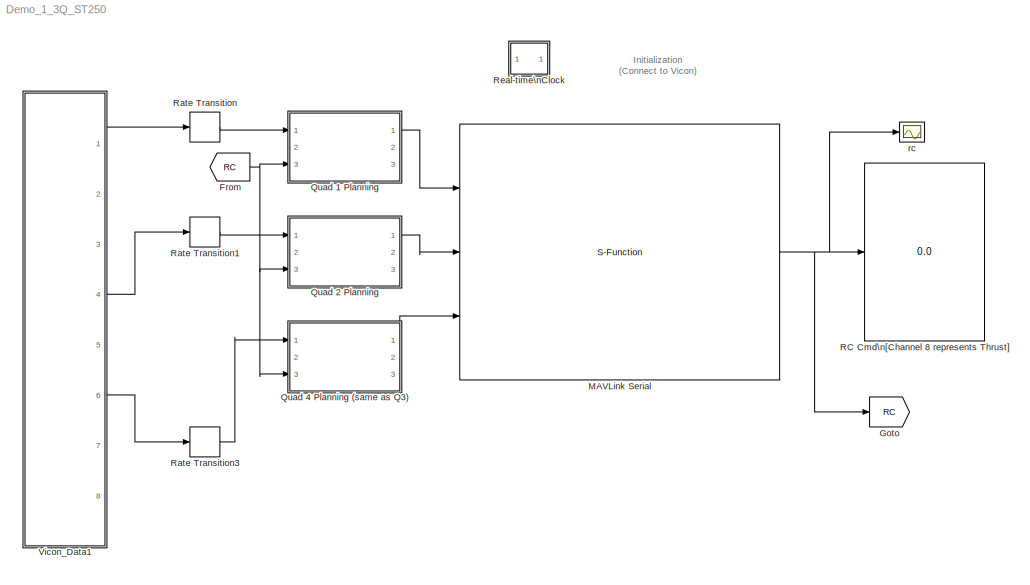
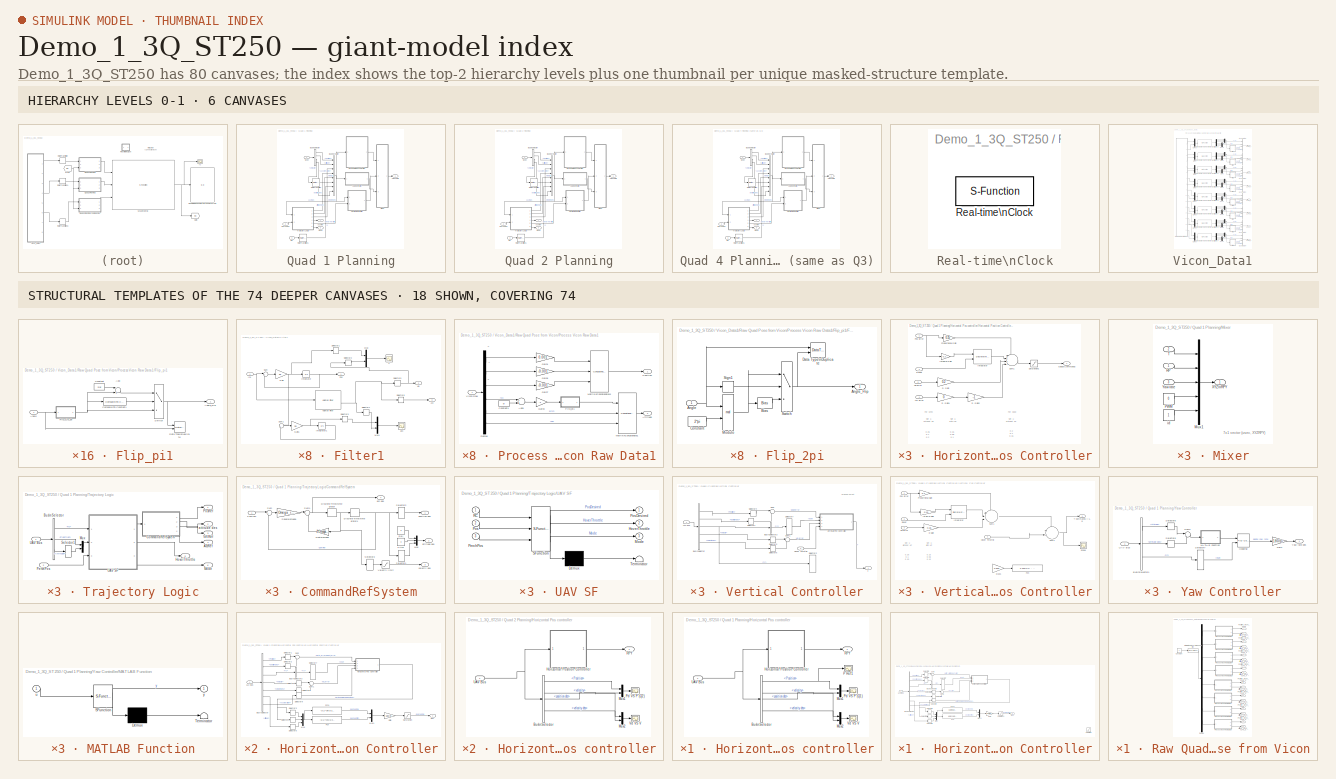
[diagram: thumbnail index - top-2 hierarchy levels (6 canvases) + 18 structural-template representatives of the remaining 74 canvases]
MODEL Demo_1_3Q_ST250
KIND model
CONFIG InitFcn = sample_time_Vicon = 0.004;\nsample_time=0.02;\nDeltaT = sample_time;\nH0 = -0.36;\nKl = 1;\nOmega_r =1.1; %1.3\n\n
BLOCK [From] From
  GotoTag = RC
  SID = 4
  TagVisibility = global
BLOCK [Goto] Goto
  GotoTag = RC
  SID = 5
  TagVisibility = global
BLOCK [S-Function] MAVLink Serial
  EnableBusSupport = off
  FunctionName = MAVLink_Interface_MultUAV
  MaskCallbackString = |||||
  MaskDisplay = % Block image\nimage(imread('10-inch Quad Heat Map.png'));\n\n%Label block\nfprintf('MAVLink Serial\\n%s\\n%dbps', COM_Port,  Baud_Rate)\n\n\n%Label input ports\n\nin = 1;\nif (Quad_1 == 1)\n    port_label('input', in, 'Quad 1');\n    in = in + 1;\nend\nif (Quad_2 == 1)\n    port_label('input', in, 'Quad 2');\n    in = in + 1;\nend\n\nif (Quad_3 == 1)\n    port_label('input', in, 'Quad 3');\n    i...<+141ch>
  MaskEnableString = on,on,on,on,on,on
  MaskIconFrame = on
  MaskIconOpaque = off
  MaskIconRotate = none
  MaskIconUnits = autoscale
  MaskInitialization = MSG_ID_NUM_INPUT = [uint8(196) uint8(197) uint8(198)];\nMSG_ID_NAME_INPUT = [Quad_1 Quad_2 Quad_3];\n\nMSG_ID_NUM_OUTPUT = [uint8(34)];\nMSG_ID_NAME_OUTPUT = [RC_SCALED];\n\nidx_input = find(MSG_ID_NAME_INPUT);\nMSG_INPUT = MSG_ID_NUM_INPUT(idx_input);\n\nidx_output = find(MSG_ID_NAME_OUTPUT);\nMSG_OUTPUT = MSG_ID_NUM_OUTPUT(idx_output);
  MaskPortRotate = default
  MaskPromptString = COM Port|Baud Rate|RC CHANNELS SCALED|Quad No 1|Quad No 2|Quad No 3
  MaskStyleString = edit,edit,checkbox,checkbox,checkbox,checkbox
  MaskTabNameString = Setting,Setting,Output Message,Input Message,Input Message,Input Message
  MaskToolTipString = on,on,on,on,on,on
  MaskTunableValueString = on,on,on,on,on,on
  MaskValueString = 'COM4'|57600|on|on|on|on
  MaskVariables = COM_Port=@1;Baud_Rate=@2;RC_SCALED=@3;Quad_1=@4;Quad_2=@5;Quad_3=@6;
  MaskVisibilityString = on,on,on,on,on,on
  Parameters = COM_Port,Baud_Rate,MSG_INPUT,MSG_OUTPUT
  Ports = [3, 1]
  SID = 54
BLOCK [SubSystem] Quad 1 Planning
  FunctionWithSeparateData = off
  MaskHideContents = off
  MinAlgLoopOccurrences = off
  Opaque = off
  Ports = [3, 3]
  PropExecContextOutsideSubsystem = off
  RTWSystemCode = Auto
  RequestExecContextInheritance = off
  SID = 1084
BLOCK [Outport] Quad 1 Planning/AccRef
  IconDisplay = Port number
  Port = 2
  SID = 1087
BLOCK [BusCreator] Quad 1 Planning/Bus\nCreator
  DisplayOption = bar
  Inputs = 8
  Ports = [8, 1]
  SID = 2
BLOCK [BusSelector] Quad 1 Planning/Bus\nSelector
  OutputSignals = Position,Attitude,Velocity,Acceleration
  Ports = [1, 4]
  SID = 1083
BLOCK [SubSystem] Quad 1 Planning/Horizontal Pos controller
  FunctionWithSeparateData = off
  MaskHideContents = off
  MinAlgLoopOccurrences = off
  Opaque = off
  Ports = [1, 1]
  PropExecContextOutsideSubsystem = off
  RTWSystemCode = Auto
  RequestExecContextInheritance = off
  SID = 6
BLOCK [BusSelector] Quad 1 Planning/Horizontal Pos controller/Bus\nSelector
  OutputSignals = Position,Attitude,velocity,position des,attitude des,velocity des,rc
  Ports = [1, 7]
  SID = 8
BLOCK [SubSystem] Quad 1 Planning/Horizontal Pos controller/Horizontal Position Controller
  FunctionWithSeparateData = off
  MaskHideContents = off
  MinAlgLoopOccurrences = off
  Opaque = off
  Ports = [1, 1]
  PropExecContextOutsideSubsystem = off
  RTWSystemCode = Auto
  RequestExecContextInheritance = off
  SID = 9
BLOCK [BusSelector] Quad 1 Planning/Horizontal Pos controller/Horizontal Position Controller/Bus\nSelector
  OutputSignals = Position,position des,rc,velocity,velocity des,Attitude,Acceleration
  Ports = [1, 7]
  SID = 11
BLOCK [BusSelector] Quad 1 Planning/Horizontal Pos controller/Horizontal Position Controller/Bus\nSelector3
  OutputSignals = rc
  Ports = [1, 1]
  SID = 14
BLOCK [Fcn] Quad 1 Planning/Horizontal Pos controller/Horizontal Position Controller/Fcn
  Expr = -u(1)*cos(u(3)) - u(2)*sin(u(3))
  SID = 15
BLOCK [Fcn] Quad 1 Planning/Horizontal Pos controller/Horizontal Position Controller/Fcn1
  Expr = -u(1)*sin(u(3)) + u(2)*cos(u(3))
  SID = 16
BLOCK [Gain] Quad 1 Planning/Horizontal Pos controller/Horizontal Position Controller/Gain
  Gain = 180/pi
  OutDataTypeStr = Inherit: Inherit via internal rule
  ParamDataTypeStr = Inherit: Inherit via internal rule
  SID = 17
  SaturateOnIntegerOverflow = off
BLOCK [SubSystem] Quad 1 Planning/Horizontal Pos controller/Horizontal Position Controller/Horizontal Pos Controller
  FunctionWithSeparateData = off
  MaskHideContents = off
  MinAlgLoopOccurrences = off
  Opaque = off
  Ports = [4, 1]
  PropExecContextOutsideSubsystem = off
  RTWSystemCode = Auto
  RequestExecContextInheritance = off
  SID = 18
BLOCK [Inport] Quad 1 Planning/Horizontal Pos controller/Horizontal Position Controller/Horizontal Pos Controller/Acc Error
  IconDisplay = Port number
  Port = 4
  SID = 454
BLOCK [Gain] Quad 1 Planning/Horizontal Pos controller/Horizontal Position Controller/Horizontal Pos Controller/D Gain
  Gain = 0.2
  OutDataTypeStr = double
  ParamDataTypeStr = Inherit: Inherit via internal rule
  SID = 22
  SaturateOnIntegerOverflow = off
BLOCK [Gain] Quad 1 Planning/Horizontal Pos controller/Horizontal Position Controller/Horizontal Pos Controller/D Gain1
  Gain = 0
  OutDataTypeStr = double
  ParamDataTypeStr = Inherit: Inherit via internal rule
  SID = 455
  SaturateOnIntegerOverflow = off
BLOCK [Gain] Quad 1 Planning/Horizontal Pos controller/Horizontal Position Controller/Horizontal Pos Controller/D Gain2
  Gain = -1
  OutDataTypeStr = double
  ParamDataTypeStr = Inherit: Inherit via internal rule
  SID = 458
  SaturateOnIntegerOverflow = off
BLOCK [Outport] Quad 1 Planning/Horizontal Pos controller/Horizontal Position Controller/Horizontal Pos Controller/Global Commands
  IconDisplay = Port number
  SID = 28
BLOCK [Gain] Quad 1 Planning/Horizontal Pos controller/Horizontal Position Controller/Horizontal Pos Controller/Integral Gain
  DisableCoverage = on
  Gain = 0.2
  OutDataTypeStr = double
  ParamDataTypeStr = double
  SID = 23
  SaturateOnIntegerOverflow = off
BLOCK [DiscreteIntegrator] Quad 1 Planning/Horizontal Pos controller/Horizontal Position Controller/Horizontal Pos Controller/Integrator
  DisableCoverage = on
  ExternalReset = rising
  ICPrevOutput = DiscIntNeverNeededParam
  ICPrevScaledInput = DiscIntNeverNeededParam
  InitialConditionMode = State only (most efficient)
  InitialConditionSource = internal
  IntegratorMethod = Integration: Trapezoidal
  LimitOutput = on
  LowerSaturationLimit = -10*pi/180
  OutDataTypeStr = double
  Ports = [2, 1]
  SID = 24
  SampleTime = sample_time
  UpperSaturationLimit = 10*pi/180
BLOCK [Inport] Quad 1 Planning/Horizontal Pos controller/Horizontal Position Controller/Horizontal Pos Controller/Pos Error
  IconDisplay = Port number
  SID = 19
BLOCK [Gain] Quad 1 Planning/Horizontal Pos controller/Horizontal Position Controller/Horizontal Pos Controller/Proportional Gain
  DisableCoverage = on
  Gain = 0.25
  OutDataTypeStr = double
  ParamDataTypeStr = double
  SID = 25
  SaturateOnIntegerOverflow = off
BLOCK [Inport] Quad 1 Planning/Horizontal Pos controller/Horizontal Position Controller/Horizontal Pos Controller/Reset
  IconDisplay = Port number
  Port = 2
  SID = 20
BLOCK [Saturate] Quad 1 Planning/Horizontal Pos controller/Horizontal Position Controller/Horizontal Pos Controller/Saturation2
  InputPortMap = u0
  LinearizeAsGain = off
  LowerLimit = -30*pi/180
  OutDataTypeStr = double
  Ports = [1, 1]
  SID = 26
  UpperLimit = 30*pi/180
BLOCK [Sum] Quad 1 Planning/Horizontal Pos controller/Horizontal Position Controller/Horizontal Pos Controller/Sum1
  AccumDataTypeStr = double
  DisableCoverage = on
  IconShape = round
  InputSameDT = off
  Inputs = ++++|
  OutDataTypeStr = double
  Ports = [4, 1]
  SID = 27
  SampleTime = sample_time
  SaturateOnIntegerOverflow = off
BLOCK [Inport] Quad 1 Planning/Horizontal Pos controller/Horizontal Position Controller/Horizontal Pos Controller/Vel Error
  IconDisplay = Port number
  Port = 3
  SID = 21
BLOCK [Mux] Quad 1 Planning/Horizontal Pos controller/Horizontal Position Controller/Mux
  DisplayOption = bar
  Inputs = 3
  Ports = [3, 1]
  SID = 29
BLOCK [Mux] Quad 1 Planning/Horizontal Pos controller/Horizontal Position Controller/Mux1
  DisplayOption = bar
  Inputs = 2
  Ports = [2, 1]
  SID = 30
BLOCK [Outport] Quad 1 Planning/Horizontal Pos controller/Horizontal Position Controller/RPY
  IconDisplay = Port number
  SID = 43
BLOCK [Saturate] Quad 1 Planning/Horizontal Pos controller/Horizontal Position Controller/Saturation
  InputPortMap = u0
  LowerLimit = -30
  Ports = [1, 1]
  SID = 31
  UpperLimit = 30
BLOCK [Selector] Quad 1 Planning/Horizontal Pos controller/Horizontal Position Controller/Selector1
  IndexOptions = Index vector (dialog)
  Indices = [1 2]
  InputPortWidth = 3
  OutputSizes = 1
  Ports = [1, 1]
  SID = 33
BLOCK [Selector] Quad 1 Planning/Horizontal Pos controller/Horizontal Position Controller/Selector2
  IndexOptions = Index vector (dialog)
  Indices = [1 2]
  InputPortWidth = 3
  OutputSizes = 1
  Ports = [1, 1]
  SID = 34
BLOCK [Selector] Quad 1 Planning/Horizontal Pos controller/Horizontal Position Controller/Selector3
  IndexOptions = Index vector (dialog)
  Indices = [1]
  InputPortWidth = 2
  OutputSizes = 1
  Ports = [1, 1]
  SID = 35
BLOCK [Selector] Quad 1 Planning/Horizontal Pos controller/Horizontal Position Controller/Selector4
  IndexOptions = Index vector (dialog)
  Indices = [2]
  InputPortWidth = 2
  OutputSizes = 1
  Ports = [1, 1]
  SID = 36
BLOCK [Selector] Quad 1 Planning/Horizontal Pos controller/Horizontal Position Controller/Selector5
  IndexOptions = Index vector (dialog)
  Indices = [3]
  InputPortWidth = 3
  OutputSizes = 1
  Ports = [1, 1]
  SID = 37
BLOCK [Selector] Quad 1 Planning/Horizontal Pos controller/Horizontal Position Controller/Selector6
  IndexOptions = Index vector (dialog)
  Indices = [1 2]
  InputPortWidth = 3
  OutputSizes = 1
  Ports = [1, 1]
  SID = 38
BLOCK [Selector] Quad 1 Planning/Horizontal Pos controller/Horizontal Position Controller/Selector7
  IndexOptions = Index vector (dialog)
  Indices = [7]
  InputPortWidth = 8
  OutputSizes = 1
  Ports = [1, 1]
  SID = 39
BLOCK [Selector] Quad 1 Planning/Horizontal Pos controller/Horizontal Position Controller/Selector8
  IndexOptions = Index vector (dialog)
  Indices = [1 2]
  InputPortWidth = 3
  OutputSizes = 1
  Ports = [1, 1]
  SID = 40
BLOCK [Selector] Quad 1 Planning/Horizontal Pos controller/Horizontal Position Controller/Selector9
  IndexOptions = Index vector (dialog)
  Indices = [1 2]
  InputPortWidth = 3
  OutputSizes = 1
  Ports = [1, 1]
  SID = 457
BLOCK [Sum] Quad 1 Planning/Horizontal Pos controller/Horizontal Position Controller/Sum
  IconShape = round
  InputSameDT = off
  Inputs = |-+
  OutDataTypeStr = Inherit: Inherit via internal rule
  Ports = [2, 1]
  SID = 41
  SaturateOnIntegerOverflow = off
BLOCK [Sum] Quad 1 Planning/Horizontal Pos controller/Horizontal Position Controller/Sum1
  IconShape = round
  InputSameDT = off
  Inputs = |-+
  OutDataTypeStr = Inherit: Inherit via internal rule
  Ports = [2, 1]
  SID = 42
  SaturateOnIntegerOverflow = off
BLOCK [Inport] Quad 1 Planning/Horizontal Pos controller/Horizontal Position Controller/UAV Bus
  IconDisplay = Port number
  SID = 10
BLOCK [Mux] Quad 1 Planning/Horizontal Pos controller/Mux1
  DisplayOption = bar
  Inputs = 2
  Ports = [2, 1]
  SID = 531
BLOCK [Mux] Quad 1 Planning/Horizontal Pos controller/Mux2
  DisplayOption = bar
  Inputs = 2
  Ports = [2, 1]
  SID = 605
BLOCK [Scope] Quad 1 Planning/Horizontal Pos controller/P Ref1 
  DataFormat = StructureWithTime
  Floating = off
  LimitDataPoints = off
  NumInputPorts = 1
  Ports = [1]
  SID = 1639
  SampleTime = 0
  SaveName = ScopeData2
  TimeRange = 10
  YMax = 1.5
  YMin = -1.5
BLOCK [Scope] Quad 1 Planning/Horizontal Pos controller/Pd VS P (Q1)
  DataFormat = StructureWithTime
  Floating = off
  LimitDataPoints = off
  NumInputPorts = 1
  Ports = [1]
  SID = 532
  SampleTime = 0
  SaveName = ScopeData16
  TimeRange = 10
  YMax = 1.5
  YMin = -0.5
BLOCK [Outport] Quad 1 Planning/Horizontal Pos controller/RPY
  IconDisplay = Port number
  SID = 53
BLOCK [Inport] Quad 1 Planning/Horizontal Pos controller/UAV Bus
  IconDisplay = Port number
  SID = 7
BLOCK [Scope] Quad 1 Planning/Horizontal Pos controller/Vd VS V
  DataFormat = StructureWithTime
  Floating = off
  LimitDataPoints = off
  NumInputPorts = 1
  Ports = [1]
  SID = 606
  SampleTime = 0
  TimeRange = 10
  YMax = 4
  YMin = -4
BLOCK [SubSystem] Quad 1 Planning/Mixer
  FunctionWithSeparateData = off
  MaskHideContents = off
  MinAlgLoopOccurrences = off
  Opaque = off
  Ports = [3, 1]
  PropExecContextOutsideSubsystem = off
  RTWSystemCode = Auto
  RequestExecContextInheritance = off
  SID = 60
BLOCK [Mux] Quad 1 Planning/Mixer/Mux1
  DisplayOption = bar
  Inputs = 5
  Ports = [5, 1]
  SID = 64
BLOCK [Constant] Quad 1 Planning/Mixer/PWM
  SID = 621
  Value = 0
BLOCK [Inport] Quad 1 Planning/Mixer/RP
  IconDisplay = Port number
  SID = 61
BLOCK [Inport] Quad 1 Planning/Mixer/T
  IconDisplay = Port number
  Port = 2
  SID = 62
BLOCK [Outport] Quad 1 Planning/Mixer/XYZ\nRPY
  IconDisplay = Port number
  SID = 68
BLOCK [Inport] Quad 1 Planning/Mixer/Yaw rate
  IconDisplay = Port number
  Port = 3
  SID = 63
BLOCK [Constant] Quad 1 Planning/Mixer/id
  SID = 67
BLOCK [Outport] Quad 1 Planning/Mode
  IconDisplay = Port number
  Port = 3
  SID = 1089
BLOCK [Inport] Quad 1 Planning/Perch Pos
  IconDisplay = Port number
  Port = 2
  SID = 1088
BLOCK [Inport] Quad 1 Planning/RC
  IconDisplay = Port number
  Port = 3
  SID = 1090
BLOCK [RateTransition] Quad 1 Planning/Rate Transition
  OutPortSampleTime = sample_time
  SID = 56
BLOCK [RateTransition] Quad 1 Planning/Rate Transition1
  OutPortSampleTime = sample_time
  SID = 57
BLOCK [Outport] Quad 1 Planning/TRPY Cmd
  IconDisplay = Port number
  SID = 1086
BLOCK [SubSystem] Quad 1 Planning/Trajectory Logic
  FunctionWithSeparateData = off
  MaskHideContents = off
  MinAlgLoopOccurrences = off
  Opaque = off
  Ports = [2, 6]
  PropExecContextOutsideSubsystem = off
  RTWSystemCode = Auto
  RequestExecContextInheritance = off
  SID = 573
BLOCK [Outport] Quad 1 Planning/Trajectory Logic/AccRef
  IconDisplay = Port number
  Port = 4
  SID = 577
BLOCK [BusSelector] Quad 1 Planning/Trajectory Logic/Bus\nSelector
  OutputSignals = rc,Position,Attitude
  Ports = [1, 3]
  SID = 583
BLOCK [SubSystem] Quad 1 Planning/Trajectory Logic/CommandRefSystem
  FunctionWithSeparateData = off
  MaskHideContents = off
  MinAlgLoopOccurrences = off
  Opaque = off
  Ports = [1, 4]
  PropExecContextOutsideSubsystem = off
  RTWSystemCode = Auto
  RequestExecContextInheritance = off
  SID = 561
BLOCK [Gain] Quad 1 Planning/Trajectory Logic/CommandRefSystem/2*zeta*omega
  Gain = 2*Omega_r
  OutDataTypeStr = Inherit: Inherit via internal rule
  ParamDataTypeStr = Inherit: Inherit via internal rule
  SID = 563
  SaturateOnIntegerOverflow = off
BLOCK [DiscreteIntegrator] Quad 1 Planning/Trajectory Logic/CommandRefSystem/Discrete-Time\nIntegrator
  ExternalReset = none
  ICPrevOutput = DiscIntNeverNeededParam
  ICPrevScaledInput = DiscIntNeverNeededParam
  InitialConditionSource = internal
  IntegratorMethod = Integration: Forward Euler
  Ports = [1, 1]
  SID = 601
  SampleTime = sample_time
BLOCK [DiscreteIntegrator] Quad 1 Planning/Trajectory Logic/CommandRefSystem/Discrete-Time\nIntegrator1
  ExternalReset = none
  ICPrevOutput = DiscIntNeverNeededParam
  ICPrevScaledInput = DiscIntNeverNeededParam
  InitialConditionSource = internal
  IntegratorMethod = Integration: Forward Euler
  Ports = [1, 1]
  SID = 602
  SampleTime = sample_time
BLOCK [Mux] Quad 1 Planning/Trajectory Logic/CommandRefSystem/Mux
  DisplayOption = bar
  Inputs = 3
  Ports = [3, 1]
  SID = 588
BLOCK [Constant] Quad 1 Planning/Trajectory Logic/CommandRefSystem/Pitch
  SID = 586
  SampleTime = sample_time
  Value = 0
BLOCK [Inport] Quad 1 Planning/Trajectory Logic/CommandRefSystem/PosCom
  IconDisplay = Port number
  SID = 562
BLOCK [Constant] Quad 1 Planning/Trajectory Logic/CommandRefSystem/Roll
  SID = 587
  SampleTime = sample_time
  Value = 0
BLOCK [Selector] Quad 1 Planning/Trajectory Logic/CommandRefSystem/Selector1
  IndexOptions = Index vector (dialog)
  Indices = [4]
  InputPortWidth = 4
  OutputSizes = 1
  Ports = [1, 1]
  SID = 585
BLOCK [Selector] Quad 1 Planning/Trajectory Logic/CommandRefSystem/Selector2
  IndexOptions = Index vector (dialog)
  Indices = [1 2 3]
  InputPortWidth = 4
  OutputSizes = 1
  Ports = [1, 1]
  SID = 584
BLOCK [Selector] Quad 1 Planning/Trajectory Logic/CommandRefSystem/Selector3
  IndexOptions = Index vector (dialog)
  Indices = [1 2 3]
  InputPortWidth = 4
  OutputSizes = 1
  Ports = [1, 1]
  SID = 590
BLOCK [Gain] Quad 1 Planning/Trajectory Logic/CommandRefSystem/Square(omega)
  Gain = Omega_r^2
  OutDataTypeStr = Inherit: Inherit via internal rule
  ParamDataTypeStr = Inherit: Inherit via internal rule
  SID = 566
  SaturateOnIntegerOverflow = off
BLOCK [Sum] Quad 1 Planning/Trajectory Logic/CommandRefSystem/Sum
  IconShape = round
  InputSameDT = off
  Inputs = |+-
  OutDataTypeStr = Inherit: Inherit via internal rule
  Ports = [2, 1]
  SID = 567
  SaturateOnIntegerOverflow = off
BLOCK [Sum] Quad 1 Planning/Trajectory Logic/CommandRefSystem/Sum1
  IconShape = round
  InputSameDT = off
  Inputs = |+-
  OutDataTypeStr = Inherit: Inherit via internal rule
  Ports = [2, 1]
  SID = 568
  SaturateOnIntegerOverflow = off
BLOCK [Saturate] Quad 1 Planning/Trajectory Logic/CommandRefSystem/Velocity limit
  InputPortMap = u0
  LowerLimit = -3
  Ports = [1, 1]
  SID = 603
  UpperLimit = 3
BLOCK [Outport] Quad 1 Planning/Trajectory Logic/CommandRefSystem/acc des
  IconDisplay = Port number
  Port = 4
  SID = 571
BLOCK [Outport] Quad 1 Planning/Trajectory Logic/CommandRefSystem/attitude des
  IconDisplay = Port number
  Port = 2
  SID = 589
BLOCK [Outport] Quad 1 Planning/Trajectory Logic/CommandRefSystem/position des
  IconDisplay = Port number
  SID = 569
BLOCK [Outport] Quad 1 Planning/Trajectory Logic/CommandRefSystem/velocity des
  IconDisplay = Port number
  Port = 3
  SID = 570
BLOCK [Outport] Quad 1 Planning/Trajectory Logic/HoverThrottle
  IconDisplay = Port number
  Port = 5
  SID = 579
BLOCK [Outport] Quad 1 Planning/Trajectory Logic/Mode
  IconDisplay = Port number
  Port = 6
  SID = 581
BLOCK [Mux] Quad 1 Planning/Trajectory Logic/Mux
  DisplayOption = bar
  Inputs = 2
  Ports = [2, 1]
  SID = 593
BLOCK [Inport] Quad 1 Planning/Trajectory Logic/PerchPos
  IconDisplay = Port number
  Port = 2
  SID = 580
BLOCK [Outport] Quad 1 Planning/Trajectory Logic/PosRef
  IconDisplay = Port number
  SID = 574
BLOCK [Selector] Quad 1 Planning/Trajectory Logic/Selector1
  IndexOptions = Index vector (dialog)
  Indices = [3]
  InputPortWidth = 3
  OutputSizes = 1
  Ports = [1, 1]
  SID = 592
BLOCK [Inport] Quad 1 Planning/Trajectory Logic/UAV Bus
  IconDisplay = Port number
  SID = 582
BLOCK [SubSystem] Quad 1 Planning/Trajectory Logic/UAV SF
  ErrorFcn = Stateflow.Translate.translate
  FunctionWithSeparateData = off
  MaskDescription = Stateflow diagram
  MaskDisplay = plot(sf('Private','sfblk','xIcon'),sf('Private','sfblk','yIcon'));text(0.5,0,sf('Private', 'sfblk', 'tIcon'),'HorizontalAl','Center','VerticalAl','Bottom');
  MaskHideContents = off
  MaskIconFrame = off
  MaskIconOpaque = off
  MaskIconRotate = none
  MaskIconUnits = autoscale
  MaskPortRotate = default
  MaskSelfModifiable = on
  MaskType = Stateflow
  MinAlgLoopOccurrences = off
  Opaque = off
  PermitHierarchicalResolution = ExplicitOnly
  Ports = [3, 3]
  PropExecContextOutsideSubsystem = off
  RTWSystemCode = Auto
  RequestExecContextInheritance = off
  SID = 572
  TreatAsAtomicUnit = on
BLOCK [Demux] Quad 1 Planning/Trajectory Logic/UAV SF/ Demux 
  Outputs = 1
  Ports = [1, 1]
  SID = 572::8
BLOCK [S-Function] Quad 1 Planning/Trajectory Logic/UAV SF/ SFunction 
  EnableBusSupport = on
  FunctionName = sf_sfun
  Parameters = DeltaT,H0,Kl
  PortCounts = [3 4]
  Ports = [3, 4]
  SID = 572::7
  Tag = Stateflow S-Function Demo_1_3Q_ST250 3
BLOCK [Terminator] Quad 1 Planning/Trajectory Logic/UAV SF/ Terminator 
  SID = 572::35
BLOCK [Outport] Quad 1 Planning/Trajectory Logic/UAV SF/HoverThrottle
  IconDisplay = Port number
  Port = 2
  SID = 572::17
BLOCK [Outport] Quad 1 Planning/Trajectory Logic/UAV SF/Mode
  IconDisplay = Port number
  Port = 3
  SID = 572::18
BLOCK [Inport] Quad 1 Planning/Trajectory Logic/UAV SF/PerchPos
  IconDisplay = Port number
  Port = 3
  SID = 572::23
BLOCK [Inport] Quad 1 Planning/Trajectory Logic/UAV SF/Pos
  IconDisplay = Port number
  Port = 2
  SID = 572::20
BLOCK [Outport] Quad 1 Planning/Trajectory Logic/UAV SF/PosDesired
  IconDisplay = Port number
  SID = 572::16
BLOCK [Inport] Quad 1 Planning/Trajectory Logic/UAV SF/RC
  IconDisplay = Port number
  SID = 572::19
BLOCK [Outport] Quad 1 Planning/Trajectory Logic/VelRef
  IconDisplay = Port number
  Port = 3
  SID = 575
BLOCK [Outport] Quad 1 Planning/Trajectory Logic/attitude des
  IconDisplay = Port number
  Port = 2
  SID = 591
BLOCK [SubSystem] Quad 1 Planning/Vertical Controller
  FunctionWithSeparateData = off
  MaskHideContents = off
  MinAlgLoopOccurrences = off
  Opaque = off
  Ports = [2, 1]
  PropExecContextOutsideSubsystem = off
  RTWSystemCode = Auto
  RequestExecContextInheritance = off
  SID = 124
BLOCK [BusSelector] Quad 1 Planning/Vertical Controller/Bus\nSelector
  OutputSignals = Position,position des,rc,velocity,velocity des
  Ports = [1, 5]
  SID = 126
BLOCK [BusSelector] Quad 1 Planning/Vertical Controller/Bus\nSelector3
  OutputSignals = rc
  Ports = [1, 1]
  SID = 411
BLOCK [Inport] Quad 1 Planning/Vertical Controller/Hover Throttle
  IconDisplay = Port number
  Port = 2
  SID = 598
BLOCK [Selector] Quad 1 Planning/Vertical Controller/Selector1
  IndexOptions = Index vector (dialog)
  Indices = [3]
  InputPortWidth = 3
  OutputSizes = 1
  Ports = [1, 1]
  SID = 430
BLOCK [Selector] Quad 1 Planning/Vertical Controller/Selector2
  IndexOptions = Index vector (dialog)
  Indices = [1]
  InputPortWidth = 8
  OutputSizes = 1
  Ports = [1, 1]
  SID = 127
BLOCK [Selector] Quad 1 Planning/Vertical Controller/Selector3
  IndexOptions = Index vector (dialog)
  Indices = [3]
  InputPortWidth = 3
  OutputSizes = 1
  Ports = [1, 1]
  SID = 431
BLOCK [Selector] Quad 1 Planning/Vertical Controller/Selector4
  IndexOptions = Index vector (dialog)
  Indices = [3]
  InputPortWidth = 3
  OutputSizes = 1
  Ports = [1, 1]
  SID = 423
BLOCK [Selector] Quad 1 Planning/Vertical Controller/Selector5
  IndexOptions = Index vector (dialog)
  Indices = [3]
  InputPortWidth = 3
  OutputSizes = 1
  Ports = [1, 1]
  SID = 432
BLOCK [Selector] Quad 1 Planning/Vertical Controller/Selector7
  IndexOptions = Index vector (dialog)
  Indices = [7]
  InputPortWidth = 8
  OutputSizes = 1
  Ports = [1, 1]
  SID = 426
BLOCK [Sum] Quad 1 Planning/Vertical Controller/Sum
  IconShape = round
  InputSameDT = off
  Inputs = |-+
  OutDataTypeStr = Inherit: Inherit via internal rule
  Ports = [2, 1]
  SID = 428
  SaturateOnIntegerOverflow = off
BLOCK [Sum] Quad 1 Planning/Vertical Controller/Sum1
  IconShape = round
  InputSameDT = off
  Inputs = |-+
  OutDataTypeStr = Inherit: Inherit via internal rule
  Ports = [2, 1]
  SID = 429
  SaturateOnIntegerOverflow = off
BLOCK [Outport] Quad 1 Planning/Vertical Controller/T
  IconDisplay = Port number
  SID = 128
BLOCK [Inport] Quad 1 Planning/Vertical Controller/UAV bus
  IconDisplay = Port number
  SID = 125
BLOCK [SubSystem] Quad 1 Planning/Vertical Controller/Verticall Pos Controller
  FunctionWithSeparateData = off
  MaskHideContents = off
  MinAlgLoopOccurrences = off
  Opaque = off
  Ports = [4, 1]
  PropExecContextOutsideSubsystem = off
  RTWSystemCode = Auto
  RequestExecContextInheritance = off
  SID = 412
BLOCK [Gain] Quad 1 Planning/Vertical Controller/Verticall Pos Controller/D Gain
  Gain = 0.25
  OutDataTypeStr = double
  ParamDataTypeStr = Inherit: Inherit via internal rule
  SID = 416
  SaturateOnIntegerOverflow = off
BLOCK [Fcn] Quad 1 Planning/Vertical Controller/Verticall Pos Controller/Fcn
  Expr = 0.059*u(1) - 0.703
  SID = 433
BLOCK [Inport] Quad 1 Planning/Vertical Controller/Verticall Pos Controller/Hover Throttle
  IconDisplay = Port number
  Port = 4
  SID = 597
BLOCK [Gain] Quad 1 Planning/Vertical Controller/Verticall Pos Controller/Integral Gain
  DisableCoverage = on
  Gain = 0.15
  OutDataTypeStr = double
  ParamDataTypeStr = double
  SID = 417
  SaturateOnIntegerOverflow = off
BLOCK [DiscreteIntegrator] Quad 1 Planning/Vertical Controller/Verticall Pos Controller/Integrator
  DisableCoverage = on
  ExternalReset = rising
  ICPrevOutput = DiscIntNeverNeededParam
  ICPrevScaledInput = DiscIntNeverNeededParam
  InitialConditionMode = State only (most efficient)
  InitialConditionSource = internal
  IntegratorMethod = Integration: Trapezoidal
  LimitOutput = on
  LowerSaturationLimit = -0.3
  OutDataTypeStr = double
  Ports = [2, 1]
  SID = 418
  SampleTime = -1
  UpperSaturationLimit = 0.3
BLOCK [Gain] Quad 1 Planning/Vertical Controller/Verticall Pos Controller/Mass
  Gain = 0.819
  OutDataTypeStr = Inherit: Inherit via internal rule
  ParamDataTypeStr = Inherit: Inherit via internal rule
  SID = 443
  SaturateOnIntegerOverflow = off
BLOCK [Inport] Quad 1 Planning/Vertical Controller/Verticall Pos Controller/Pos Error
  IconDisplay = Port number
  SID = 413
BLOCK [Gain] Quad 1 Planning/Vertical Controller/Verticall Pos Controller/Proportional Gain
  DisableCoverage = on
  Gain = 0.4
  OutDataTypeStr = double
  ParamDataTypeStr = double
  SID = 419
  SaturateOnIntegerOverflow = off
BLOCK [Inport] Quad 1 Planning/Vertical Controller/Verticall Pos Controller/Reset
  IconDisplay = Port number
  Port = 2
  SID = 414
BLOCK [Scope] Quad 1 Planning/Vertical Controller/Verticall Pos Controller/Scope
  DataFormat = StructureWithTime
  Floating = off
  NumInputPorts = 1
  Ports = [1]
  SID = 518
  SampleTime = 0
  SaveName = ScopeData14
  YMax = 1
  YMin = -1
BLOCK [Sum] Quad 1 Planning/Vertical Controller/Verticall Pos Controller/Sum1
  AccumDataTypeStr = double
  DisableCoverage = on
  IconShape = round
  InputSameDT = off
  Inputs = ---|
  OutDataTypeStr = double
  Ports = [3, 1]
  SID = 421
  SampleTime = sample_time
  SaturateOnIntegerOverflow = off
BLOCK [Sum] Quad 1 Planning/Vertical Controller/Verticall Pos Controller/Sum2
  AccumDataTypeStr = double
  DisableCoverage = on
  IconShape = round
  InputSameDT = off
  Inputs = ++|
  OutDataTypeStr = double
  Ports = [2, 1]
  SID = 524
  SampleTime = sample_time
  SaturateOnIntegerOverflow = off
BLOCK [Outport] Quad 1 Planning/Vertical Controller/Verticall Pos Controller/T  Commands [-1, 1]
  IconDisplay = Port number
  SID = 422
BLOCK [Inport] Quad 1 Planning/Vertical Controller/Verticall Pos Controller/Vel Error
  IconDisplay = Port number
  Port = 3
  SID = 415
BLOCK [Inport] Quad 1 Planning/Vicon
  IconDisplay = Port number
  SID = 1085
BLOCK [SubSystem] Quad 1 Planning/Yaw Controller
  FunctionWithSeparateData = off
  MaskHideContents = off
  MinAlgLoopOccurrences = off
  Opaque = off
  Ports = [1, 1]
  PropExecContextOutsideSubsystem = off
  RTWSystemCode = Auto
  RequestExecContextInheritance = off
  SID = 328
BLOCK [BusSelector] Quad 1 Planning/Yaw Controller/Bus\nSelector1
  OutputSignals = Attitude,attitude des,rc
  Ports = [1, 3]
  SID = 330
BLOCK [Gain] Quad 1 Planning/Yaw Controller/Gain
  Gain = 180/pi
  OutDataTypeStr = Inherit: Inherit via internal rule
  ParamDataTypeStr = Inherit: Inherit via internal rule
  SID = 333
  SaturateOnIntegerOverflow = off
BLOCK [Reference] Quad 1 Planning/Yaw Controller/Heading  REF=simulink/Continuous/PID Controller
  AntiWindupMode = none
  Controller = PI
  D = 0
  DOutDataTypeStr = Inherit: Inherit via internal rule
  DOutMax = []
  DOutMin = []
  DParamDataTypeStr = Inherit: Inherit via internal rule
  DParamMax = []
  DParamMin = []
  ExternalReset = rising
  FilterContinuousStateAttributes = ''
  FilterMethod = Trapezoidal
  FilterOutDataTypeStr = Inherit: Inherit via internal rule
  FilterOutMax = []
  FilterOutMin = []
  FilterRTWStateStorageClass = Auto
  FilterStateMustResolveToSignalObject = off
  Form = Parallel
  FunctionWithSeparateData = off
  GeneratePreprocessorConditionals = off
  I = 1
  IOutDataTypeStr = Inherit: Inherit via internal rule
  IOutMax = []
  IOutMin = []
  IParamDataTypeStr = Inherit: Inherit via internal rule
  IParamMax = []
  IParamMin = []
  IgnoreLimit = off
  InitialConditionForFilter = 0
  InitialConditionForIntegrator = 0
  InitialConditionSource = internal
  IntegratorContinuousStateAttributes = ''
  IntegratorMethod = Trapezoidal
  IntegratorOutDataTypeStr = Inherit: Inherit via internal rule
  IntegratorOutMax = []
  IntegratorOutMin = []
  IntegratorRTWStateStorageClass = Auto
  IntegratorStateMustResolveToSignalObject = off
  Kb = 1
  KbOutDataTypeStr = Inherit: Inherit via internal rule
  KbOutMax = []
  KbOutMin = []
  KbParamDataTypeStr = Inherit: Inherit via internal rule
  KbParamMax = []
  KbParamMin = []
  Kt = 1
  KtOutDataTypeStr = Inherit: Inherit via internal rule
  KtOutMax = []
  KtOutMin = []
  KtParamDataTypeStr = Inherit: Inherit via internal rule
  KtParamMax = []
  KtParamMin = []
  LimitOutput = on
  LinearizeAsGain = off
  LockScale = off
  LowerSaturationLimit = -300*pi/180
  N = 100
  NOutDataTypeStr = Inherit: Inherit via internal rule
  NOutMax = []
  NOutMin = []
  NParamDataTypeStr = Inherit: Inherit via internal rule
  NParamMax = []
  NParamMin = []
  P = 2
  POutDataTypeStr = Inherit: Inherit via internal rule
  POutMax = []
  POutMin = []
  PParamDataTypeStr = Inherit: Inherit via internal rule
  PParamMax = []
  PParamMin = []
  Ports = [2, 1]
  RTWMemSecDataConstants = Inherit from model
  RTWMemSecDataInternal = Inherit from model
  RTWMemSecDataParameters = Inherit from model
  RTWMemSecFuncExecute = Inherit from model
  RTWMemSecFuncInitTerm = Inherit from model
  RndMeth = Floor
  SID = 334
  SampleTime = sample_time
  SaturateOnIntegerOverflow = off
  SaturationOutDataTypeStr = Inherit: Same as input
  SaturationOutMax = []
  SaturationOutMin = []
  ShowPortLabels = FromPortIcon
  SourceBlock = simulink/Continuous/PID Controller
  SourceType = PID 1dof
  SumAccumDataTypeStr = Inherit: Inherit via internal rule
  SumDAccumDataTypeStr = Inherit: Inherit via internal rule
  SumDOutDataTypeStr = Inherit: Inherit via internal rule
  SumDOutMax = []
  SumDOutMin = []
  SumI1AccumDataTypeStr = Inherit: Inherit via internal rule
  SumI1OutDataTypeStr = Inherit: Inherit via internal rule
  SumI1OutMax = []
  SumI1OutMin = []
  SumI2AccumDataTypeStr = Inherit: Inherit via internal rule
  SumI2OutDataTypeStr = Inherit: Inherit via internal rule
  SumI2OutMax = []
  SumI2OutMin = []
  SumI3AccumDataTypeStr = Inherit: Inherit via internal rule
  SumI3OutDataTypeStr = Inherit: Inherit via internal rule
  SumI3OutMax = []
  SumI3OutMin = []
  SumOutDataTypeStr = Inherit: Inherit via internal rule
  SumOutMax = []
  SumOutMin = []
  SystemSampleTime = -1
  TimeDomain = Discrete-time
  TrackingMode = off
  UpperSaturationLimit = 300*pi/180
  ZeroCross = on
BLOCK [SubSystem] Quad 1 Planning/Yaw Controller/MATLAB Function
  ErrorFcn = Stateflow.Translate.translate
  FunctionWithSeparateData = off
  MaskDescription = Embedded MATLAB block
  MaskDisplay = bgColor = Simulink.Root.ColorString2Rgb(get_param(gcbh, 'BackgroundColor')); image(imread('private/eml_membrane_16.png','png','BackgroundColor',bgColor(1:3)),'center'); disp([10 10 'fcn']);  <repeated x3 — deduplicated; at blocks: MATLAB Function>
  MaskHideContents = off
  MaskIconFrame = on
  MaskIconOpaque = off
  MaskIconRotate = none
  MaskIconUnits = normalized
  MaskPortRotate = default
  MaskSelfModifiable = on
  MaskType = Stateflow
  MinAlgLoopOccurrences = off
  Opaque = off
  PermitHierarchicalResolution = ExplicitOnly
  Ports = [1, 1]
  PropExecContextOutsideSubsystem = off
  RTWSystemCode = Auto
  RequestExecContextInheritance = off
  SID = 335
  TreatAsAtomicUnit = on
BLOCK [Demux] Quad 1 Planning/Yaw Controller/MATLAB Function/ Demux 
  Outputs = 1
  Ports = [1, 1]
  SID = 335::15
BLOCK [S-Function] Quad 1 Planning/Yaw Controller/MATLAB Function/ SFunction 
  EnableBusSupport = on
  FunctionName = sf_sfun
  PortCounts = [1 2]
  Ports = [1, 2]
  SID = 335::14
  Tag = Stateflow S-Function Demo_1_3Q_ST250 1
BLOCK [Terminator] Quad 1 Planning/Yaw Controller/MATLAB Function/ Terminator 
  SID = 335::17
BLOCK [Inport] Quad 1 Planning/Yaw Controller/MATLAB Function/u
  IconDisplay = Port number
  SID = 335::1
BLOCK [Outport] Quad 1 Planning/Yaw Controller/MATLAB Function/y
  IconDisplay = Port number
  SID = 335::5
BLOCK [Selector] Quad 1 Planning/Yaw Controller/Selector5
  IndexOptions = Index vector (dialog)
  Indices = [3]
  InputPortWidth = 3
  OutputSizes = 1
  Ports = [1, 1]
  SID = 336
BLOCK [Selector] Quad 1 Planning/Yaw Controller/Selector6
  IndexOptions = Index vector (dialog)
  Indices = [3]
  InputPortWidth = 3
  OutputSizes = 1
  Ports = [1, 1]
  SID = 337
BLOCK [Selector] Quad 1 Planning/Yaw Controller/Selector7
  IndexOptions = Index vector (dialog)
  Indices = [5]
  InputPortWidth = 8
  OutputSizes = 1
  Ports = [1, 1]
  SID = 338
BLOCK [Sum] Quad 1 Planning/Yaw Controller/Sum1
  IconShape = round
  InputSameDT = off
  Inputs = |-+
  OutDataTypeStr = Inherit: Inherit via internal rule
  Ports = [2, 1]
  SID = 339
  SaturateOnIntegerOverflow = off
BLOCK [Inport] Quad 1 Planning/Yaw Controller/UAV Bus
  IconDisplay = Port number
  SID = 329
BLOCK [Outport] Quad 1 Planning/Yaw Controller/Yaw rate des
  IconDisplay = Port number
  SID = 340
BLOCK [SubSystem] Quad 2 Planning
  FunctionWithSeparateData = off
  MaskHideContents = off
  MinAlgLoopOccurrences = off
  Opaque = off
  Ports = [3, 3]
  PropExecContextOutsideSubsystem = off
  RTWSystemCode = Auto
  RequestExecContextInheritance = off
  SID = 1091
BLOCK [Outport] Quad 2 Planning/AccRef
  IconDisplay = Port number
  Port = 2
  SID = 1225
BLOCK [BusCreator] Quad 2 Planning/Bus\nCreator
  DisplayOption = bar
  Inputs = 8
  Ports = [8, 1]
  SID = 1095
BLOCK [BusSelector] Quad 2 Planning/Bus\nSelector
  OutputSignals = Position,Attitude,Velocity,Acceleration
  Ports = [1, 4]
  SID = 1096
BLOCK [SubSystem] Quad 2 Planning/Horizontal Pos controller
  FunctionWithSeparateData = off
  MaskHideContents = off
  MinAlgLoopOccurrences = off
  Opaque = off
  Ports = [1, 1]
  PropExecContextOutsideSubsystem = off
  RTWSystemCode = Auto
  RequestExecContextInheritance = off
  SID = 1097
BLOCK [BusSelector] Quad 2 Planning/Horizontal Pos controller/Bus\nSelector
  OutputSignals = Position,Attitude,velocity,position des,attitude des,velocity des,rc
  Ports = [1, 7]
  SID = 1099
BLOCK [SubSystem] Quad 2 Planning/Horizontal Pos controller/Horizontal Position Controller
  FunctionWithSeparateData = off
  MaskHideContents = off
  MinAlgLoopOccurrences = off
  Opaque = off
  Ports = [1, 1]
  PropExecContextOutsideSubsystem = off
  RTWSystemCode = Auto
  RequestExecContextInheritance = off
  SID = 1100
BLOCK [BusSelector] Quad 2 Planning/Horizontal Pos controller/Horizontal Position Controller/Bus\nSelector
  OutputSignals = Position,position des,rc,velocity,velocity des,Attitude,Acceleration
  Ports = [1, 7]
  SID = 1102
BLOCK [BusSelector] Quad 2 Planning/Horizontal Pos controller/Horizontal Position Controller/Bus\nSelector3
  OutputSignals = rc
  Ports = [1, 1]
  SID = 1103
BLOCK [Fcn] Quad 2 Planning/Horizontal Pos controller/Horizontal Position Controller/Fcn
  Expr = -u(1)*cos(u(3)) - u(2)*sin(u(3))
  SID = 1104
BLOCK [Fcn] Quad 2 Planning/Horizontal Pos controller/Horizontal Position Controller/Fcn1
  Expr = -u(1)*sin(u(3)) + u(2)*cos(u(3))
  SID = 1105
BLOCK [Gain] Quad 2 Planning/Horizontal Pos controller/Horizontal Position Controller/Gain
  Gain = 180/pi
  OutDataTypeStr = Inherit: Inherit via internal rule
  ParamDataTypeStr = Inherit: Inherit via internal rule
  SID = 1106
  SaturateOnIntegerOverflow = off
BLOCK [SubSystem] Quad 2 Planning/Horizontal Pos controller/Horizontal Position Controller/Horizontal Pos Controller
  FunctionWithSeparateData = off
  MaskHideContents = off
  MinAlgLoopOccurrences = off
  Opaque = off
  Ports = [4, 1]
  PropExecContextOutsideSubsystem = off
  RTWSystemCode = Auto
  RequestExecContextInheritance = off
  SID = 1107
BLOCK [Inport] Quad 2 Planning/Horizontal Pos controller/Horizontal Position Controller/Horizontal Pos Controller/Acc Error
  IconDisplay = Port number
  Port = 4
  SID = 1111
BLOCK [Gain] Quad 2 Planning/Horizontal Pos controller/Horizontal Position Controller/Horizontal Pos Controller/D Gain
  Gain = 0.2
  OutDataTypeStr = double
  ParamDataTypeStr = Inherit: Inherit via internal rule
  SID = 1112
  SaturateOnIntegerOverflow = off
BLOCK [Gain] Quad 2 Planning/Horizontal Pos controller/Horizontal Position Controller/Horizontal Pos Controller/D Gain1
  Gain = 0
  OutDataTypeStr = double
  ParamDataTypeStr = Inherit: Inherit via internal rule
  SID = 1113
  SaturateOnIntegerOverflow = off
BLOCK [Gain] Quad 2 Planning/Horizontal Pos controller/Horizontal Position Controller/Horizontal Pos Controller/D Gain2
  Gain = -1
  OutDataTypeStr = double
  ParamDataTypeStr = Inherit: Inherit via internal rule
  SID = 1114
  SaturateOnIntegerOverflow = off
BLOCK [Outport] Quad 2 Planning/Horizontal Pos controller/Horizontal Position Controller/Horizontal Pos Controller/Global Commands
  IconDisplay = Port number
  SID = 1120
BLOCK [Gain] Quad 2 Planning/Horizontal Pos controller/Horizontal Position Controller/Horizontal Pos Controller/Integral Gain
  DisableCoverage = on
  Gain = 0.2
  OutDataTypeStr = double
  ParamDataTypeStr = double
  SID = 1115
  SaturateOnIntegerOverflow = off
BLOCK [DiscreteIntegrator] Quad 2 Planning/Horizontal Pos controller/Horizontal Position Controller/Horizontal Pos Controller/Integrator
  DisableCoverage = on
  ExternalReset = rising
  ICPrevOutput = DiscIntNeverNeededParam
  ICPrevScaledInput = DiscIntNeverNeededParam
  InitialConditionMode = State only (most efficient)
  InitialConditionSource = internal
  IntegratorMethod = Integration: Trapezoidal
  LimitOutput = on
  LowerSaturationLimit = -10*pi/180
  OutDataTypeStr = double
  Ports = [2, 1]
  SID = 1116
  SampleTime = sample_time
  UpperSaturationLimit = 10*pi/180
BLOCK [Inport] Quad 2 Planning/Horizontal Pos controller/Horizontal Position Controller/Horizontal Pos Controller/Pos Error
  IconDisplay = Port number
  SID = 1108
BLOCK [Gain] Quad 2 Planning/Horizontal Pos controller/Horizontal Position Controller/Horizontal Pos Controller/Proportional Gain
  DisableCoverage = on
  Gain = 0.25
  OutDataTypeStr = double
  ParamDataTypeStr = double
  SID = 1117
  SaturateOnIntegerOverflow = off
BLOCK [Inport] Quad 2 Planning/Horizontal Pos controller/Horizontal Position Controller/Horizontal Pos Controller/Reset
  IconDisplay = Port number
  Port = 2
  SID = 1109
BLOCK [Saturate] Quad 2 Planning/Horizontal Pos controller/Horizontal Position Controller/Horizontal Pos Controller/Saturation2
  InputPortMap = u0
  LinearizeAsGain = off
  LowerLimit = -30*pi/180
  OutDataTypeStr = double
  Ports = [1, 1]
  SID = 1118
  UpperLimit = 30*pi/180
BLOCK [Sum] Quad 2 Planning/Horizontal Pos controller/Horizontal Position Controller/Horizontal Pos Controller/Sum1
  AccumDataTypeStr = double
  DisableCoverage = on
  IconShape = round
  InputSameDT = off
  Inputs = ++++|
  OutDataTypeStr = double
  Ports = [4, 1]
  SID = 1119
  SampleTime = sample_time
  SaturateOnIntegerOverflow = off
BLOCK [Inport] Quad 2 Planning/Horizontal Pos controller/Horizontal Position Controller/Horizontal Pos Controller/Vel Error
  IconDisplay = Port number
  Port = 3
  SID = 1110
BLOCK [Mux] Quad 2 Planning/Horizontal Pos controller/Horizontal Position Controller/Mux
  DisplayOption = bar
  Inputs = 3
  Ports = [3, 1]
  SID = 1121
BLOCK [Mux] Quad 2 Planning/Horizontal Pos controller/Horizontal Position Controller/Mux1
  DisplayOption = bar
  Inputs = 2
  Ports = [2, 1]
  SID = 1122
BLOCK [Outport] Quad 2 Planning/Horizontal Pos controller/Horizontal Position Controller/RPY
  IconDisplay = Port number
  SID = 1136
BLOCK [Saturate] Quad 2 Planning/Horizontal Pos controller/Horizontal Position Controller/Saturation
  InputPortMap = u0
  LowerLimit = -30
  Ports = [1, 1]
  SID = 1123
  UpperLimit = 30
BLOCK [Selector] Quad 2 Planning/Horizontal Pos controller/Horizontal Position Controller/Selector1
  IndexOptions = Index vector (dialog)
  Indices = [1 2]
  InputPortWidth = 3
  OutputSizes = 1
  Ports = [1, 1]
  SID = 1125
BLOCK [Selector] Quad 2 Planning/Horizontal Pos controller/Horizontal Position Controller/Selector2
  IndexOptions = Index vector (dialog)
  Indices = [1 2]
  InputPortWidth = 3
  OutputSizes = 1
  Ports = [1, 1]
  SID = 1126
BLOCK [Selector] Quad 2 Planning/Horizontal Pos controller/Horizontal Position Controller/Selector3
  IndexOptions = Index vector (dialog)
  Indices = [1]
  InputPortWidth = 2
  OutputSizes = 1
  Ports = [1, 1]
  SID = 1127
BLOCK [Selector] Quad 2 Planning/Horizontal Pos controller/Horizontal Position Controller/Selector4
  IndexOptions = Index vector (dialog)
  Indices = [2]
  InputPortWidth = 2
  OutputSizes = 1
  Ports = [1, 1]
  SID = 1128
BLOCK [Selector] Quad 2 Planning/Horizontal Pos controller/Horizontal Position Controller/Selector5
  IndexOptions = Index vector (dialog)
  Indices = [3]
  InputPortWidth = 3
  OutputSizes = 1
  Ports = [1, 1]
  SID = 1129
BLOCK [Selector] Quad 2 Planning/Horizontal Pos controller/Horizontal Position Controller/Selector6
  IndexOptions = Index vector (dialog)
  Indices = [1 2]
  InputPortWidth = 3
  OutputSizes = 1
  Ports = [1, 1]
  SID = 1130
BLOCK [Selector] Quad 2 Planning/Horizontal Pos controller/Horizontal Position Controller/Selector7
  IndexOptions = Index vector (dialog)
  Indices = [7]
  InputPortWidth = 8
  OutputSizes = 1
  Ports = [1, 1]
  SID = 1131
BLOCK [Selector] Quad 2 Planning/Horizontal Pos controller/Horizontal Position Controller/Selector8
  IndexOptions = Index vector (dialog)
  Indices = [1 2]
  InputPortWidth = 3
  OutputSizes = 1
  Ports = [1, 1]
  SID = 1132
BLOCK [Selector] Quad 2 Planning/Horizontal Pos controller/Horizontal Position Controller/Selector9
  IndexOptions = Index vector (dialog)
  Indices = [1 2]
  InputPortWidth = 3
  OutputSizes = 1
  Ports = [1, 1]
  SID = 1133
BLOCK [Sum] Quad 2 Planning/Horizontal Pos controller/Horizontal Position Controller/Sum
  IconShape = round
  InputSameDT = off
  Inputs = |-+
  OutDataTypeStr = Inherit: Inherit via internal rule
  Ports = [2, 1]
  SID = 1134
  SaturateOnIntegerOverflow = off
BLOCK [Sum] Quad 2 Planning/Horizontal Pos controller/Horizontal Position Controller/Sum1
  IconShape = round
  InputSameDT = off
  Inputs = |-+
  OutDataTypeStr = Inherit: Inherit via internal rule
  Ports = [2, 1]
  SID = 1135
  SaturateOnIntegerOverflow = off
BLOCK [Inport] Quad 2 Planning/Horizontal Pos controller/Horizontal Position Controller/UAV Bus
  IconDisplay = Port number
  SID = 1101
BLOCK [Mux] Quad 2 Planning/Horizontal Pos controller/Mux1
  DisplayOption = bar
  Inputs = 2
  Ports = [2, 1]
  SID = 1137
BLOCK [Mux] Quad 2 Planning/Horizontal Pos controller/Mux2
  DisplayOption = bar
  Inputs = 2
  Ports = [2, 1]
  SID = 1138
BLOCK [Scope] Quad 2 Planning/Horizontal Pos controller/Pd VS P (Q2)
  DataFormat = StructureWithTime
  Floating = off
  LimitDataPoints = off
  NumInputPorts = 1
  Ports = [1]
  SID = 1139
  SampleTime = 0
  SaveName = ScopeData16
  TimeRange = 10
  YMax = 0
  YMin = -1.9
BLOCK [Outport] Quad 2 Planning/Horizontal Pos controller/RPY
  IconDisplay = Port number
  SID = 1141
BLOCK [Inport] Quad 2 Planning/Horizontal Pos controller/UAV Bus
  IconDisplay = Port number
  SID = 1098
BLOCK [Scope] Quad 2 Planning/Horizontal Pos controller/Vd VS V
  DataFormat = StructureWithTime
  Floating = off
  LimitDataPoints = off
  NumInputPorts = 1
  Ports = [1]
  SID = 1140
  SampleTime = 0
  TimeRange = 10
  YMax = 4
  YMin = -4
BLOCK [SubSystem] Quad 2 Planning/Mixer
  FunctionWithSeparateData = off
  MaskHideContents = off
  MinAlgLoopOccurrences = off
  Opaque = off
  Ports = [3, 1]
  PropExecContextOutsideSubsystem = off
  RTWSystemCode = Auto
  RequestExecContextInheritance = off
  SID = 1142
BLOCK [Mux] Quad 2 Planning/Mixer/Mux1
  DisplayOption = bar
  Inputs = 5
  Ports = [5, 1]
  SID = 1146
BLOCK [Constant] Quad 2 Planning/Mixer/PWM
  SID = 1147
  Value = 0
BLOCK [Inport] Quad 2 Planning/Mixer/RP
  IconDisplay = Port number
  SID = 1143
BLOCK [Inport] Quad 2 Planning/Mixer/T
  IconDisplay = Port number
  Port = 2
  SID = 1144
BLOCK [Outport] Quad 2 Planning/Mixer/XYZ\nRPY
  IconDisplay = Port number
  SID = 1149
BLOCK [Inport] Quad 2 Planning/Mixer/Yaw rate
  IconDisplay = Port number
  Port = 3
  SID = 1145
BLOCK [Constant] Quad 2 Planning/Mixer/id
  SID = 1148
  Value = 4
BLOCK [Outport] Quad 2 Planning/Mode
  IconDisplay = Port number
  Port = 3
  SID = 1226
BLOCK [Inport] Quad 2 Planning/Perch Pos
  IconDisplay = Port number
  Port = 2
  SID = 1093
BLOCK [Inport] Quad 2 Planning/RC
  IconDisplay = Port number
  Port = 3
  SID = 1094
BLOCK [RateTransition] Quad 2 Planning/Rate Transition
  OutPortSampleTime = sample_time
  SID = 1150
BLOCK [RateTransition] Quad 2 Planning/Rate Transition1
  OutPortSampleTime = sample_time
  SID = 1151
BLOCK [Outport] Quad 2 Planning/TRPY Cmd
  IconDisplay = Port number
  SID = 1224
BLOCK [SubSystem] Quad 2 Planning/Trajectory Logic
  FunctionWithSeparateData = off
  MaskHideContents = off
  MinAlgLoopOccurrences = off
  Opaque = off
  Ports = [2, 6]
  PropExecContextOutsideSubsystem = off
  RTWSystemCode = Auto
  RequestExecContextInheritance = off
  SID = 1152
BLOCK [Outport] Quad 2 Planning/Trajectory Logic/AccRef
  IconDisplay = Port number
  Port = 4
  SID = 1181
BLOCK [BusSelector] Quad 2 Planning/Trajectory Logic/Bus\nSelector
  OutputSignals = rc,Position,Attitude
  Ports = [1, 3]
  SID = 1155
BLOCK [SubSystem] Quad 2 Planning/Trajectory Logic/CommandRefSystem
  FunctionWithSeparateData = off
  MaskHideContents = off
  MinAlgLoopOccurrences = off
  Opaque = off
  Ports = [1, 4]
  PropExecContextOutsideSubsystem = off
  RTWSystemCode = Auto
  RequestExecContextInheritance = off
  SID = 1156
BLOCK [Gain] Quad 2 Planning/Trajectory Logic/CommandRefSystem/2*zeta*omega
  Gain = 2*Omega_r
  OutDataTypeStr = Inherit: Inherit via internal rule
  ParamDataTypeStr = Inherit: Inherit via internal rule
  SID = 1158
  SaturateOnIntegerOverflow = off
BLOCK [DiscreteIntegrator] Quad 2 Planning/Trajectory Logic/CommandRefSystem/Discrete-Time\nIntegrator
  ExternalReset = none
  ICPrevOutput = DiscIntNeverNeededParam
  ICPrevScaledInput = DiscIntNeverNeededParam
  InitialConditionSource = internal
  IntegratorMethod = Integration: Forward Euler
  Ports = [1, 1]
  SID = 1159
  SampleTime = sample_time
BLOCK [DiscreteIntegrator] Quad 2 Planning/Trajectory Logic/CommandRefSystem/Discrete-Time\nIntegrator1
  ExternalReset = none
  ICPrevOutput = DiscIntNeverNeededParam
  ICPrevScaledInput = DiscIntNeverNeededParam
  InitialConditionSource = internal
  IntegratorMethod = Integration: Forward Euler
  Ports = [1, 1]
  SID = 1160
  SampleTime = sample_time
BLOCK [Mux] Quad 2 Planning/Trajectory Logic/CommandRefSystem/Mux
  DisplayOption = bar
  Inputs = 3
  Ports = [3, 1]
  SID = 1161
BLOCK [Constant] Quad 2 Planning/Trajectory Logic/CommandRefSystem/Pitch
  SID = 1162
  SampleTime = sample_time
  Value = 0
BLOCK [Inport] Quad 2 Planning/Trajectory Logic/CommandRefSystem/PosCom
  IconDisplay = Port number
  SID = 1157
BLOCK [Constant] Quad 2 Planning/Trajectory Logic/CommandRefSystem/Roll
  SID = 1163
  SampleTime = sample_time
  Value = 0
BLOCK [Selector] Quad 2 Planning/Trajectory Logic/CommandRefSystem/Selector1
  IndexOptions = Index vector (dialog)
  Indices = [4]
  InputPortWidth = 4
  OutputSizes = 1
  Ports = [1, 1]
  SID = 1164
BLOCK [Selector] Quad 2 Planning/Trajectory Logic/CommandRefSystem/Selector2
  IndexOptions = Index vector (dialog)
  Indices = [1 2 3]
  InputPortWidth = 4
  OutputSizes = 1
  Ports = [1, 1]
  SID = 1165
BLOCK [Selector] Quad 2 Planning/Trajectory Logic/CommandRefSystem/Selector3
  IndexOptions = Index vector (dialog)
  Indices = [1 2 3]
  InputPortWidth = 4
  OutputSizes = 1
  Ports = [1, 1]
  SID = 1166
BLOCK [Gain] Quad 2 Planning/Trajectory Logic/CommandRefSystem/Square(omega)
  Gain = Omega_r^2
  OutDataTypeStr = Inherit: Inherit via internal rule
  ParamDataTypeStr = Inherit: Inherit via internal rule
  SID = 1167
  SaturateOnIntegerOverflow = off
BLOCK [Sum] Quad 2 Planning/Trajectory Logic/CommandRefSystem/Sum
  IconShape = round
  InputSameDT = off
  Inputs = |+-
  OutDataTypeStr = Inherit: Inherit via internal rule
  Ports = [2, 1]
  SID = 1168
  SaturateOnIntegerOverflow = off
BLOCK [Sum] Quad 2 Planning/Trajectory Logic/CommandRefSystem/Sum1
  IconShape = round
  InputSameDT = off
  Inputs = |+-
  OutDataTypeStr = Inherit: Inherit via internal rule
  Ports = [2, 1]
  SID = 1169
  SaturateOnIntegerOverflow = off
BLOCK [Saturate] Quad 2 Planning/Trajectory Logic/CommandRefSystem/Velocity limit
  InputPortMap = u0
  LowerLimit = -3
  Ports = [1, 1]
  SID = 1170
  UpperLimit = 3
BLOCK [Outport] Quad 2 Planning/Trajectory Logic/CommandRefSystem/acc des
  IconDisplay = Port number
  Port = 4
  SID = 1174
BLOCK [Outport] Quad 2 Planning/Trajectory Logic/CommandRefSystem/attitude des
  IconDisplay = Port number
  Port = 2
  SID = 1172
BLOCK [Outport] Quad 2 Planning/Trajectory Logic/CommandRefSystem/position des
  IconDisplay = Port number
  SID = 1171
BLOCK [Outport] Quad 2 Planning/Trajectory Logic/CommandRefSystem/velocity des
  IconDisplay = Port number
  Port = 3
  SID = 1173
BLOCK [Outport] Quad 2 Planning/Trajectory Logic/HoverThrottle
  IconDisplay = Port number
  Port = 5
  SID = 1182
BLOCK [Outport] Quad 2 Planning/Trajectory Logic/Mode
  IconDisplay = Port number
  Port = 6
  SID = 1183
BLOCK [Mux] Quad 2 Planning/Trajectory Logic/Mux
  DisplayOption = bar
  Inputs = 2
  Ports = [2, 1]
  SID = 1175
BLOCK [Inport] Quad 2 Planning/Trajectory Logic/PerchPos
  IconDisplay = Port number
  Port = 2
  SID = 1154
BLOCK [Outport] Quad 2 Planning/Trajectory Logic/PosRef
  IconDisplay = Port number
  SID = 1178
BLOCK [Selector] Quad 2 Planning/Trajectory Logic/Selector1
  IndexOptions = Index vector (dialog)
  Indices = [3]
  InputPortWidth = 3
  OutputSizes = 1
  Ports = [1, 1]
  SID = 1176
BLOCK [Inport] Quad 2 Planning/Trajectory Logic/UAV Bus
  IconDisplay = Port number
  SID = 1153
BLOCK [SubSystem] Quad 2 Planning/Trajectory Logic/UAV SF
  ErrorFcn = Stateflow.Translate.translate
  FunctionWithSeparateData = off
  MaskDescription = Stateflow diagram
  MaskDisplay = plot(sf('Private','sfblk','xIcon'),sf('Private','sfblk','yIcon'));text(0.5,0,sf('Private', 'sfblk', 'tIcon'),'HorizontalAl','Center','VerticalAl','Bottom');
  MaskHideContents = off
  MaskIconFrame = off
  MaskIconOpaque = off
  MaskIconRotate = none
  MaskIconUnits = autoscale
  MaskPortRotate = default
  MaskSelfModifiable = on
  MaskType = Stateflow
  MinAlgLoopOccurrences = off
  Opaque = off
  PermitHierarchicalResolution = ExplicitOnly
  Ports = [3, 3]
  PropExecContextOutsideSubsystem = off
  RTWSystemCode = Auto
  RequestExecContextInheritance = off
  SID = 1713
  TreatAsAtomicUnit = on
BLOCK [Demux] Quad 2 Planning/Trajectory Logic/UAV SF/ Demux 
  Outputs = 1
  Ports = [1, 1]
  SID = 1713::8
BLOCK [S-Function] Quad 2 Planning/Trajectory Logic/UAV SF/ SFunction 
  EnableBusSupport = on
  FunctionName = sf_sfun
  Parameters = DeltaT,H0,Kl
  PortCounts = [3 4]
  Ports = [3, 4]
  SID = 1713::7
  Tag = Stateflow S-Function Demo_1_3Q_ST250 2
BLOCK [Terminator] Quad 2 Planning/Trajectory Logic/UAV SF/ Terminator 
  SID = 1713::35
BLOCK [Outport] Quad 2 Planning/Trajectory Logic/UAV SF/HoverThrottle
  IconDisplay = Port number
  Port = 2
  SID = 1713::17
BLOCK [Outport] Quad 2 Planning/Trajectory Logic/UAV SF/Mode
  IconDisplay = Port number
  Port = 3
  SID = 1713::18
BLOCK [Inport] Quad 2 Planning/Trajectory Logic/UAV SF/PerchPos
  IconDisplay = Port number
  Port = 3
  SID = 1713::23
BLOCK [Inport] Quad 2 Planning/Trajectory Logic/UAV SF/Pos
  IconDisplay = Port number
  Port = 2
  SID = 1713::20
BLOCK [Outport] Quad 2 Planning/Trajectory Logic/UAV SF/PosDesired
  IconDisplay = Port number
  SID = 1713::16
BLOCK [Inport] Quad 2 Planning/Trajectory Logic/UAV SF/RC
  IconDisplay = Port number
  SID = 1713::19
BLOCK [Outport] Quad 2 Planning/Trajectory Logic/VelRef
  IconDisplay = Port number
  Port = 3
  SID = 1180
BLOCK [Outport] Quad 2 Planning/Trajectory Logic/attitude des
  IconDisplay = Port number
  Port = 2
  SID = 1179
BLOCK [SubSystem] Quad 2 Planning/Vertical Controller
  FunctionWithSeparateData = off
  MaskHideContents = off
  MinAlgLoopOccurrences = off
  Opaque = off
  Ports = [2, 1]
  PropExecContextOutsideSubsystem = off
  RTWSystemCode = Auto
  RequestExecContextInheritance = off
  SID = 1184
BLOCK [BusSelector] Quad 2 Planning/Vertical Controller/Bus\nSelector
  OutputSignals = Position,position des,rc,velocity,velocity des
  Ports = [1, 5]
  SID = 1187
BLOCK [BusSelector] Quad 2 Planning/Vertical Controller/Bus\nSelector3
  OutputSignals = rc
  Ports = [1, 1]
  SID = 1188
BLOCK [Inport] Quad 2 Planning/Vertical Controller/Hover Throttle
  IconDisplay = Port number
  Port = 2
  SID = 1186
BLOCK [Selector] Quad 2 Planning/Vertical Controller/Selector1
  IndexOptions = Index vector (dialog)
  Indices = [3]
  InputPortWidth = 3
  OutputSizes = 1
  Ports = [1, 1]
  SID = 1189
BLOCK [Selector] Quad 2 Planning/Vertical Controller/Selector2
  IndexOptions = Index vector (dialog)
  Indices = [1]
  InputPortWidth = 8
  OutputSizes = 1
  Ports = [1, 1]
  SID = 1190
BLOCK [Selector] Quad 2 Planning/Vertical Controller/Selector3
  IndexOptions = Index vector (dialog)
  Indices = [3]
  InputPortWidth = 3
  OutputSizes = 1
  Ports = [1, 1]
  SID = 1191
BLOCK [Selector] Quad 2 Planning/Vertical Controller/Selector4
  IndexOptions = Index vector (dialog)
  Indices = [3]
  InputPortWidth = 3
  OutputSizes = 1
  Ports = [1, 1]
  SID = 1192
BLOCK [Selector] Quad 2 Planning/Vertical Controller/Selector5
  IndexOptions = Index vector (dialog)
  Indices = [3]
  InputPortWidth = 3
  OutputSizes = 1
  Ports = [1, 1]
  SID = 1193
BLOCK [Selector] Quad 2 Planning/Vertical Controller/Selector7
  IndexOptions = Index vector (dialog)
  Indices = [7]
  InputPortWidth = 8
  OutputSizes = 1
  Ports = [1, 1]
  SID = 1194
BLOCK [Sum] Quad 2 Planning/Vertical Controller/Sum
  IconShape = round
  InputSameDT = off
  Inputs = |-+
  OutDataTypeStr = Inherit: Inherit via internal rule
  Ports = [2, 1]
  SID = 1195
  SaturateOnIntegerOverflow = off
BLOCK [Sum] Quad 2 Planning/Vertical Controller/Sum1
  IconShape = round
  InputSameDT = off
  Inputs = |-+
  OutDataTypeStr = Inherit: Inherit via internal rule
  Ports = [2, 1]
  SID = 1196
  SaturateOnIntegerOverflow = off
BLOCK [Outport] Quad 2 Planning/Vertical Controller/T
  IconDisplay = Port number
  SID = 1212
BLOCK [Inport] Quad 2 Planning/Vertical Controller/UAV bus
  IconDisplay = Port number
  SID = 1185
BLOCK [SubSystem] Quad 2 Planning/Vertical Controller/Verticall Pos Controller
  FunctionWithSeparateData = off
  MaskHideContents = off
  MinAlgLoopOccurrences = off
  Opaque = off
  Ports = [4, 1]
  PropExecContextOutsideSubsystem = off
  RTWSystemCode = Auto
  RequestExecContextInheritance = off
  SID = 1197
BLOCK [Gain] Quad 2 Planning/Vertical Controller/Verticall Pos Controller/D Gain
  Gain = 0.25
  OutDataTypeStr = double
  ParamDataTypeStr = Inherit: Inherit via internal rule
  SID = 1202
  SaturateOnIntegerOverflow = off
BLOCK [Fcn] Quad 2 Planning/Vertical Controller/Verticall Pos Controller/Fcn
  Expr = 0.059*u(1) - 0.703
  SID = 1203
BLOCK [Inport] Quad 2 Planning/Vertical Controller/Verticall Pos Controller/Hover Throttle
  IconDisplay = Port number
  Port = 4
  SID = 1201
BLOCK [Gain] Quad 2 Planning/Vertical Controller/Verticall Pos Controller/Integral Gain
  DisableCoverage = on
  Gain = 0.15
  OutDataTypeStr = double
  ParamDataTypeStr = double
  SID = 1204
  SaturateOnIntegerOverflow = off
BLOCK [DiscreteIntegrator] Quad 2 Planning/Vertical Controller/Verticall Pos Controller/Integrator
  DisableCoverage = on
  ExternalReset = rising
  ICPrevOutput = DiscIntNeverNeededParam
  ICPrevScaledInput = DiscIntNeverNeededParam
  InitialConditionMode = State only (most efficient)
  InitialConditionSource = internal
  IntegratorMethod = Integration: Trapezoidal
  LimitOutput = on
  LowerSaturationLimit = -0.3
  OutDataTypeStr = double
  Ports = [2, 1]
  SID = 1205
  SampleTime = -1
  UpperSaturationLimit = 0.3
BLOCK [Gain] Quad 2 Planning/Vertical Controller/Verticall Pos Controller/Mass
  Gain = 0.819
  OutDataTypeStr = Inherit: Inherit via internal rule
  ParamDataTypeStr = Inherit: Inherit via internal rule
  SID = 1206
  SaturateOnIntegerOverflow = off
BLOCK [Inport] Quad 2 Planning/Vertical Controller/Verticall Pos Controller/Pos Error
  IconDisplay = Port number
  SID = 1198
BLOCK [Gain] Quad 2 Planning/Vertical Controller/Verticall Pos Controller/Proportional Gain
  DisableCoverage = on
  Gain = 0.4
  OutDataTypeStr = double
  ParamDataTypeStr = double
  SID = 1207
  SaturateOnIntegerOverflow = off
BLOCK [Inport] Quad 2 Planning/Vertical Controller/Verticall Pos Controller/Reset
  IconDisplay = Port number
  Port = 2
  SID = 1199
BLOCK [Scope] Quad 2 Planning/Vertical Controller/Verticall Pos Controller/Scope
  DataFormat = StructureWithTime
  Floating = off
  NumInputPorts = 1
  Ports = [1]
  SID = 1208
  SampleTime = 0
  SaveName = ScopeData14
  YMax = 1
  YMin = -1
BLOCK [Sum] Quad 2 Planning/Vertical Controller/Verticall Pos Controller/Sum1
  AccumDataTypeStr = double
  DisableCoverage = on
  IconShape = round
  InputSameDT = off
  Inputs = ---|
  OutDataTypeStr = double
  Ports = [3, 1]
  SID = 1209
  SampleTime = sample_time
  SaturateOnIntegerOverflow = off
BLOCK [Sum] Quad 2 Planning/Vertical Controller/Verticall Pos Controller/Sum2
  AccumDataTypeStr = double
  DisableCoverage = on
  IconShape = round
  InputSameDT = off
  Inputs = ++|
  OutDataTypeStr = double
  Ports = [2, 1]
  SID = 1210
  SampleTime = sample_time
  SaturateOnIntegerOverflow = off
BLOCK [Outport] Quad 2 Planning/Vertical Controller/Verticall Pos Controller/T  Commands [-1, 1]
  IconDisplay = Port number
  SID = 1211
BLOCK [Inport] Quad 2 Planning/Vertical Controller/Verticall Pos Controller/Vel Error
  IconDisplay = Port number
  Port = 3
  SID = 1200
BLOCK [Inport] Quad 2 Planning/Vicon
  IconDisplay = Port number
  SID = 1092
BLOCK [SubSystem] Quad 2 Planning/Yaw Controller
  FunctionWithSeparateData = off
  MaskHideContents = off
  MinAlgLoopOccurrences = off
  Opaque = off
  Ports = [1, 1]
  PropExecContextOutsideSubsystem = off
  RTWSystemCode = Auto
  RequestExecContextInheritance = off
  SID = 1213
BLOCK [BusSelector] Quad 2 Planning/Yaw Controller/Bus\nSelector1
  OutputSignals = Attitude,attitude des,rc
  Ports = [1, 3]
  SID = 1215
BLOCK [Gain] Quad 2 Planning/Yaw Controller/Gain
  Gain = 180/pi
  OutDataTypeStr = Inherit: Inherit via internal rule
  ParamDataTypeStr = Inherit: Inherit via internal rule
  SID = 1216
  SaturateOnIntegerOverflow = off
BLOCK [Reference] Quad 2 Planning/Yaw Controller/Heading  REF=simulink/Continuous/PID Controller
  AntiWindupMode = none
  Controller = PI
  D = 0
  DOutDataTypeStr = Inherit: Inherit via internal rule
  DOutMax = []
  DOutMin = []
  DParamDataTypeStr = Inherit: Inherit via internal rule
  DParamMax = []
  DParamMin = []
  ExternalReset = rising
  FilterContinuousStateAttributes = ''
  FilterMethod = Trapezoidal
  FilterOutDataTypeStr = Inherit: Inherit via internal rule
  FilterOutMax = []
  FilterOutMin = []
  FilterRTWStateStorageClass = Auto
  FilterStateMustResolveToSignalObject = off
  Form = Parallel
  FunctionWithSeparateData = off
  GeneratePreprocessorConditionals = off
  I = 1
  IOutDataTypeStr = Inherit: Inherit via internal rule
  IOutMax = []
  IOutMin = []
  IParamDataTypeStr = Inherit: Inherit via internal rule
  IParamMax = []
  IParamMin = []
  IgnoreLimit = off
  InitialConditionForFilter = 0
  InitialConditionForIntegrator = 0
  InitialConditionSource = internal
  IntegratorContinuousStateAttributes = ''
  IntegratorMethod = Trapezoidal
  IntegratorOutDataTypeStr = Inherit: Inherit via internal rule
  IntegratorOutMax = []
  IntegratorOutMin = []
  IntegratorRTWStateStorageClass = Auto
  IntegratorStateMustResolveToSignalObject = off
  Kb = 1
  KbOutDataTypeStr = Inherit: Inherit via internal rule
  KbOutMax = []
  KbOutMin = []
  KbParamDataTypeStr = Inherit: Inherit via internal rule
  KbParamMax = []
  KbParamMin = []
  Kt = 1
  KtOutDataTypeStr = Inherit: Inherit via internal rule
  KtOutMax = []
  KtOutMin = []
  KtParamDataTypeStr = Inherit: Inherit via internal rule
  KtParamMax = []
  KtParamMin = []
  LimitOutput = on
  LinearizeAsGain = off
  LockScale = off
  LowerSaturationLimit = -300*pi/180
  N = 100
  NOutDataTypeStr = Inherit: Inherit via internal rule
  NOutMax = []
  NOutMin = []
  NParamDataTypeStr = Inherit: Inherit via internal rule
  NParamMax = []
  NParamMin = []
  P = 2
  POutDataTypeStr = Inherit: Inherit via internal rule
  POutMax = []
  POutMin = []
  PParamDataTypeStr = Inherit: Inherit via internal rule
  PParamMax = []
  PParamMin = []
  Ports = [2, 1]
  RTWMemSecDataConstants = Inherit from model
  RTWMemSecDataInternal = Inherit from model
  RTWMemSecDataParameters = Inherit from model
  RTWMemSecFuncExecute = Inherit from model
  RTWMemSecFuncInitTerm = Inherit from model
  RndMeth = Floor
  SID = 1217
  SampleTime = sample_time
  SaturateOnIntegerOverflow = off
  SaturationOutDataTypeStr = Inherit: Same as input
  SaturationOutMax = []
  SaturationOutMin = []
  ShowPortLabels = FromPortIcon
  SourceBlock = simulink/Continuous/PID Controller
  SourceType = PID 1dof
  SumAccumDataTypeStr = Inherit: Inherit via internal rule
  SumDAccumDataTypeStr = Inherit: Inherit via internal rule
  SumDOutDataTypeStr = Inherit: Inherit via internal rule
  SumDOutMax = []
  SumDOutMin = []
  SumI1AccumDataTypeStr = Inherit: Inherit via internal rule
  SumI1OutDataTypeStr = Inherit: Inherit via internal rule
  SumI1OutMax = []
  SumI1OutMin = []
  SumI2AccumDataTypeStr = Inherit: Inherit via internal rule
  SumI2OutDataTypeStr = Inherit: Inherit via internal rule
  SumI2OutMax = []
  SumI2OutMin = []
  SumI3AccumDataTypeStr = Inherit: Inherit via internal rule
  SumI3OutDataTypeStr = Inherit: Inherit via internal rule
  SumI3OutMax = []
  SumI3OutMin = []
  SumOutDataTypeStr = Inherit: Inherit via internal rule
  SumOutMax = []
  SumOutMin = []
  SystemSampleTime = -1
  TimeDomain = Discrete-time
  TrackingMode = off
  UpperSaturationLimit = 300*pi/180
  ZeroCross = on
BLOCK [SubSystem] Quad 2 Planning/Yaw Controller/MATLAB Function
  ErrorFcn = Stateflow.Translate.translate
  FunctionWithSeparateData = off
  MaskDescription = Embedded MATLAB block
  MaskHideContents = off
  MaskIconFrame = on
  MaskIconOpaque = off
  MaskIconRotate = none
  MaskIconUnits = normalized
  MaskPortRotate = default
  MaskSelfModifiable = on
  MaskType = Stateflow
  MinAlgLoopOccurrences = off
  Opaque = off
  PermitHierarchicalResolution = ExplicitOnly
  Ports = [1, 1]
  PropExecContextOutsideSubsystem = off
  RTWSystemCode = Auto
  RequestExecContextInheritance = off
  SID = 1218
  TreatAsAtomicUnit = on
BLOCK [Demux] Quad 2 Planning/Yaw Controller/MATLAB Function/ Demux 
  Outputs = 1
  Ports = [1, 1]
  SID = 1218::15
BLOCK [S-Function] Quad 2 Planning/Yaw Controller/MATLAB Function/ SFunction 
  EnableBusSupport = on
  FunctionName = sf_sfun
  PortCounts = [1 2]
  Ports = [1, 2]
  SID = 1218::14
  Tag = Stateflow S-Function Demo_1_3Q_ST250 4
BLOCK [Terminator] Quad 2 Planning/Yaw Controller/MATLAB Function/ Terminator 
  SID = 1218::17
BLOCK [Inport] Quad 2 Planning/Yaw Controller/MATLAB Function/u
  IconDisplay = Port number
  SID = 1218::1
BLOCK [Outport] Quad 2 Planning/Yaw Controller/MATLAB Function/y
  IconDisplay = Port number
  SID = 1218::5
BLOCK [Selector] Quad 2 Planning/Yaw Controller/Selector5
  IndexOptions = Index vector (dialog)
  Indices = [3]
  InputPortWidth = 3
  OutputSizes = 1
  Ports = [1, 1]
  SID = 1219
BLOCK [Selector] Quad 2 Planning/Yaw Controller/Selector6
  IndexOptions = Index vector (dialog)
  Indices = [3]
  InputPortWidth = 3
  OutputSizes = 1
  Ports = [1, 1]
  SID = 1220
BLOCK [Selector] Quad 2 Planning/Yaw Controller/Selector7
  IndexOptions = Index vector (dialog)
  Indices = [5]
  InputPortWidth = 8
  OutputSizes = 1
  Ports = [1, 1]
  SID = 1221
BLOCK [Sum] Quad 2 Planning/Yaw Controller/Sum1
  IconShape = round
  InputSameDT = off
  Inputs = |-+
  OutDataTypeStr = Inherit: Inherit via internal rule
  Ports = [2, 1]
  SID = 1222
  SaturateOnIntegerOverflow = off
BLOCK [Inport] Quad 2 Planning/Yaw Controller/UAV Bus
  IconDisplay = Port number
  SID = 1214
BLOCK [Outport] Quad 2 Planning/Yaw Controller/Yaw rate des
  IconDisplay = Port number
  SID = 1223
BLOCK [SubSystem] Quad 4 Planning (same as Q3)
  FunctionWithSeparateData = off
  MaskHideContents = off
  MinAlgLoopOccurrences = off
  Opaque = off
  Ports = [3, 3]
  PropExecContextOutsideSubsystem = off
  RTWSystemCode = Auto
  RequestExecContextInheritance = off
  SID = 1785
BLOCK [Outport] Quad 4 Planning (same as Q3)/AccRef
  IconDisplay = Port number
  Port = 2
  SID = 1919
BLOCK [BusCreator] Quad 4 Planning (same as Q3)/Bus\nCreator
  DisplayOption = bar
  Inputs = 8
  Ports = [8, 1]
  SID = 1789
BLOCK [BusSelector] Quad 4 Planning (same as Q3)/Bus\nSelector
  OutputSignals = Position,Attitude,Velocity,Acceleration
  Ports = [1, 4]
  SID = 1790
BLOCK [SubSystem] Quad 4 Planning (same as Q3)/Horizontal Pos controller
  FunctionWithSeparateData = off
  MaskHideContents = off
  MinAlgLoopOccurrences = off
  Opaque = off
  Ports = [1, 1]
  PropExecContextOutsideSubsystem = off
  RTWSystemCode = Auto
  RequestExecContextInheritance = off
  SID = 1791
BLOCK [BusSelector] Quad 4 Planning (same as Q3)/Horizontal Pos controller/Bus\nSelector
  OutputSignals = Position,Attitude,velocity,position des,attitude des,velocity des,rc
  Ports = [1, 7]
  SID = 1793
BLOCK [SubSystem] Quad 4 Planning (same as Q3)/Horizontal Pos controller/Horizontal Position Controller
  FunctionWithSeparateData = off
  MaskHideContents = off
  MinAlgLoopOccurrences = off
  Opaque = off
  Ports = [1, 1]
  PropExecContextOutsideSubsystem = off
  RTWSystemCode = Auto
  RequestExecContextInheritance = off
  SID = 1794
BLOCK [BusSelector] Quad 4 Planning (same as Q3)/Horizontal Pos controller/Horizontal Position Controller/Bus\nSelector
  OutputSignals = Position,position des,rc,velocity,velocity des,Attitude,Acceleration
  Ports = [1, 7]
  SID = 1796
BLOCK [BusSelector] Quad 4 Planning (same as Q3)/Horizontal Pos controller/Horizontal Position Controller/Bus\nSelector3
  OutputSignals = rc
  Ports = [1, 1]
  SID = 1797
BLOCK [Fcn] Quad 4 Planning (same as Q3)/Horizontal Pos controller/Horizontal Position Controller/Fcn
  Expr = -u(1)*cos(u(3)) - u(2)*sin(u(3))
  SID = 1798
BLOCK [Fcn] Quad 4 Planning (same as Q3)/Horizontal Pos controller/Horizontal Position Controller/Fcn1
  Expr = -u(1)*sin(u(3)) + u(2)*cos(u(3))
  SID = 1799
BLOCK [Gain] Quad 4 Planning (same as Q3)/Horizontal Pos controller/Horizontal Position Controller/Gain
  Gain = 180/pi
  OutDataTypeStr = Inherit: Inherit via internal rule
  ParamDataTypeStr = Inherit: Inherit via internal rule
  SID = 1800
  SaturateOnIntegerOverflow = off
BLOCK [SubSystem] Quad 4 Planning (same as Q3)/Horizontal Pos controller/Horizontal Position Controller/Horizontal Pos Controller
  FunctionWithSeparateData = off
  MaskHideContents = off
  MinAlgLoopOccurrences = off
  Opaque = off
  Ports = [4, 1]
  PropExecContextOutsideSubsystem = off
  RTWSystemCode = Auto
  RequestExecContextInheritance = off
  SID = 1801
BLOCK [Inport] Quad 4 Planning (same as Q3)/Horizontal Pos controller/Horizontal Position Controller/Horizontal Pos Controller/Acc Error
  IconDisplay = Port number
  Port = 4
  SID = 1805
BLOCK [Gain] Quad 4 Planning (same as Q3)/Horizontal Pos controller/Horizontal Position Controller/Horizontal Pos Controller/D Gain
  Gain = 0.2
  OutDataTypeStr = double
  ParamDataTypeStr = Inherit: Inherit via internal rule
  SID = 1806
  SaturateOnIntegerOverflow = off
BLOCK [Gain] Quad 4 Planning (same as Q3)/Horizontal Pos controller/Horizontal Position Controller/Horizontal Pos Controller/D Gain1
  Gain = 0
  OutDataTypeStr = double
  ParamDataTypeStr = Inherit: Inherit via internal rule
  SID = 1807
  SaturateOnIntegerOverflow = off
BLOCK [Gain] Quad 4 Planning (same as Q3)/Horizontal Pos controller/Horizontal Position Controller/Horizontal Pos Controller/D Gain2
  Gain = -1
  OutDataTypeStr = double
  ParamDataTypeStr = Inherit: Inherit via internal rule
  SID = 1808
  SaturateOnIntegerOverflow = off
BLOCK [Outport] Quad 4 Planning (same as Q3)/Horizontal Pos controller/Horizontal Position Controller/Horizontal Pos Controller/Global Commands
  IconDisplay = Port number
  SID = 1814
BLOCK [Gain] Quad 4 Planning (same as Q3)/Horizontal Pos controller/Horizontal Position Controller/Horizontal Pos Controller/Integral Gain
  DisableCoverage = on
  Gain = 0.2
  OutDataTypeStr = double
  ParamDataTypeStr = double
  SID = 1809
  SaturateOnIntegerOverflow = off
BLOCK [DiscreteIntegrator] Quad 4 Planning (same as Q3)/Horizontal Pos controller/Horizontal Position Controller/Horizontal Pos Controller/Integrator
  DisableCoverage = on
  ExternalReset = rising
  ICPrevOutput = DiscIntNeverNeededParam
  ICPrevScaledInput = DiscIntNeverNeededParam
  InitialConditionMode = State only (most efficient)
  InitialConditionSource = internal
  IntegratorMethod = Integration: Trapezoidal
  LimitOutput = on
  LowerSaturationLimit = -30*pi/180
  OutDataTypeStr = double
  Ports = [2, 1]
  SID = 1810
  SampleTime = sample_time
  UpperSaturationLimit = 30*pi/180
BLOCK [Inport] Quad 4 Planning (same as Q3)/Horizontal Pos controller/Horizontal Position Controller/Horizontal Pos Controller/Pos Error
  IconDisplay = Port number
  SID = 1802
BLOCK [Gain] Quad 4 Planning (same as Q3)/Horizontal Pos controller/Horizontal Position Controller/Horizontal Pos Controller/Proportional Gain
  DisableCoverage = on
  Gain = 0.4
  OutDataTypeStr = double
  ParamDataTypeStr = double
  SID = 1811
  SaturateOnIntegerOverflow = off
BLOCK [Inport] Quad 4 Planning (same as Q3)/Horizontal Pos controller/Horizontal Position Controller/Horizontal Pos Controller/Reset
  IconDisplay = Port number
  Port = 2
  SID = 1803
BLOCK [Saturate] Quad 4 Planning (same as Q3)/Horizontal Pos controller/Horizontal Position Controller/Horizontal Pos Controller/Saturation2
  InputPortMap = u0
  LinearizeAsGain = off
  LowerLimit = -30*pi/180
  OutDataTypeStr = double
  Ports = [1, 1]
  SID = 1812
  UpperLimit = 30*pi/180
BLOCK [Sum] Quad 4 Planning (same as Q3)/Horizontal Pos controller/Horizontal Position Controller/Horizontal Pos Controller/Sum1
  AccumDataTypeStr = double
  DisableCoverage = on
  IconShape = round
  InputSameDT = off
  Inputs = ++++|
  OutDataTypeStr = double
  Ports = [4, 1]
  SID = 1813
  SampleTime = sample_time
  SaturateOnIntegerOverflow = off
BLOCK [Inport] Quad 4 Planning (same as Q3)/Horizontal Pos controller/Horizontal Position Controller/Horizontal Pos Controller/Vel Error
  IconDisplay = Port number
  Port = 3
  SID = 1804
BLOCK [Mux] Quad 4 Planning (same as Q3)/Horizontal Pos controller/Horizontal Position Controller/Mux
  DisplayOption = bar
  Inputs = 3
  Ports = [3, 1]
  SID = 1815
BLOCK [Mux] Quad 4 Planning (same as Q3)/Horizontal Pos controller/Horizontal Position Controller/Mux1
  DisplayOption = bar
  Inputs = 2
  Ports = [2, 1]
  SID = 1816
BLOCK [Outport] Quad 4 Planning (same as Q3)/Horizontal Pos controller/Horizontal Position Controller/RPY
  IconDisplay = Port number
  SID = 1830
BLOCK [Saturate] Quad 4 Planning (same as Q3)/Horizontal Pos controller/Horizontal Position Controller/Saturation
  InputPortMap = u0
  LowerLimit = -30*pi/180
  Ports = [1, 1]
  SID = 1817
  UpperLimit = 30*pi/180
BLOCK [Saturate] Quad 4 Planning (same as Q3)/Horizontal Pos controller/Horizontal Position Controller/Saturation1
  InputPortMap = u0
  LowerLimit = -30
  Ports = [1, 1]
  SID = 1818
  UpperLimit = 30
BLOCK [Selector] Quad 4 Planning (same as Q3)/Horizontal Pos controller/Horizontal Position Controller/Selector1
  IndexOptions = Index vector (dialog)
  Indices = [1 2]
  InputPortWidth = 3
  OutputSizes = 1
  Ports = [1, 1]
  SID = 1819
BLOCK [Selector] Quad 4 Planning (same as Q3)/Horizontal Pos controller/Horizontal Position Controller/Selector2
  IndexOptions = Index vector (dialog)
  Indices = [1 2]
  InputPortWidth = 3
  OutputSizes = 1
  Ports = [1, 1]
  SID = 1820
BLOCK [Selector] Quad 4 Planning (same as Q3)/Horizontal Pos controller/Horizontal Position Controller/Selector3
  IndexOptions = Index vector (dialog)
  Indices = [1]
  InputPortWidth = 2
  OutputSizes = 1
  Ports = [1, 1]
  SID = 1821
BLOCK [Selector] Quad 4 Planning (same as Q3)/Horizontal Pos controller/Horizontal Position Controller/Selector4
  IndexOptions = Index vector (dialog)
  Indices = [2]
  InputPortWidth = 2
  OutputSizes = 1
  Ports = [1, 1]
  SID = 1822
BLOCK [Selector] Quad 4 Planning (same as Q3)/Horizontal Pos controller/Horizontal Position Controller/Selector5
  IndexOptions = Index vector (dialog)
  Indices = [3]
  InputPortWidth = 3
  OutputSizes = 1
  Ports = [1, 1]
  SID = 1823
BLOCK [Selector] Quad 4 Planning (same as Q3)/Horizontal Pos controller/Horizontal Position Controller/Selector6
  IndexOptions = Index vector (dialog)
  Indices = [1 2]
  InputPortWidth = 3
  OutputSizes = 1
  Ports = [1, 1]
  SID = 1824
BLOCK [Selector] Quad 4 Planning (same as Q3)/Horizontal Pos controller/Horizontal Position Controller/Selector7
  IndexOptions = Index vector (dialog)
  Indices = [7]
  InputPortWidth = 8
  OutputSizes = 1
  Ports = [1, 1]
  SID = 1825
BLOCK [Selector] Quad 4 Planning (same as Q3)/Horizontal Pos controller/Horizontal Position Controller/Selector8
  IndexOptions = Index vector (dialog)
  Indices = [1 2]
  InputPortWidth = 3
  OutputSizes = 1
  Ports = [1, 1]
  SID = 1826
BLOCK [Selector] Quad 4 Planning (same as Q3)/Horizontal Pos controller/Horizontal Position Controller/Selector9
  IndexOptions = Index vector (dialog)
  Indices = [1 2]
  InputPortWidth = 3
  OutputSizes = 1
  Ports = [1, 1]
  SID = 1827
BLOCK [Sum] Quad 4 Planning (same as Q3)/Horizontal Pos controller/Horizontal Position Controller/Sum
  IconShape = round
  InputSameDT = off
  Inputs = |-+
  OutDataTypeStr = Inherit: Inherit via internal rule
  Ports = [2, 1]
  SID = 1828
  SaturateOnIntegerOverflow = off
BLOCK [Sum] Quad 4 Planning (same as Q3)/Horizontal Pos controller/Horizontal Position Controller/Sum1
  IconShape = round
  InputSameDT = off
  Inputs = |-+
  OutDataTypeStr = Inherit: Inherit via internal rule
  Ports = [2, 1]
  SID = 1829
  SaturateOnIntegerOverflow = off
BLOCK [Inport] Quad 4 Planning (same as Q3)/Horizontal Pos controller/Horizontal Position Controller/UAV Bus
  IconDisplay = Port number
  SID = 1795
BLOCK [Mux] Quad 4 Planning (same as Q3)/Horizontal Pos controller/Mux1
  DisplayOption = bar
  Inputs = 2
  Ports = [2, 1]
  SID = 1831
BLOCK [Mux] Quad 4 Planning (same as Q3)/Horizontal Pos controller/Mux2
  DisplayOption = bar
  Inputs = 2
  Ports = [2, 1]
  SID = 1832
BLOCK [Scope] Quad 4 Planning (same as Q3)/Horizontal Pos controller/Pd VS P (Q3)
  DataFormat = StructureWithTime
  Floating = off
  LimitDataPoints = off
  NumInputPorts = 1
  Ports = [1]
  SID = 1833
  SampleTime = 0
  SaveName = ScopeData16
  TimeRange = 10
  YMax = 1.25
  YMin = -2.25
BLOCK [Outport] Quad 4 Planning (same as Q3)/Horizontal Pos controller/RPY
  IconDisplay = Port number
  SID = 1835
BLOCK [Inport] Quad 4 Planning (same as Q3)/Horizontal Pos controller/UAV Bus
  IconDisplay = Port number
  SID = 1792
BLOCK [Scope] Quad 4 Planning (same as Q3)/Horizontal Pos controller/Vd VS V
  DataFormat = StructureWithTime
  Floating = off
  LimitDataPoints = off
  NumInputPorts = 1
  Ports = [1]
  SID = 1834
  SampleTime = 0
  TimeRange = 10
  YMax = 4
  YMin = -4
BLOCK [SubSystem] Quad 4 Planning (same as Q3)/Mixer
  FunctionWithSeparateData = off
  MaskHideContents = off
  MinAlgLoopOccurrences = off
  Opaque = off
  Ports = [3, 1]
  PropExecContextOutsideSubsystem = off
  RTWSystemCode = Auto
  RequestExecContextInheritance = off
  SID = 1836
BLOCK [Mux] Quad 4 Planning (same as Q3)/Mixer/Mux1
  DisplayOption = bar
  Inputs = 5
  Ports = [5, 1]
  SID = 1840
BLOCK [Constant] Quad 4 Planning (same as Q3)/Mixer/PWM
  SID = 1841
  Value = 0
BLOCK [Inport] Quad 4 Planning (same as Q3)/Mixer/RP
  IconDisplay = Port number
  SID = 1837
BLOCK [Inport] Quad 4 Planning (same as Q3)/Mixer/T
  IconDisplay = Port number
  Port = 2
  SID = 1838
BLOCK [Outport] Quad 4 Planning (same as Q3)/Mixer/XYZ\nRPY
  IconDisplay = Port number
  SID = 1843
BLOCK [Inport] Quad 4 Planning (same as Q3)/Mixer/Yaw rate
  IconDisplay = Port number
  Port = 3
  SID = 1839
BLOCK [Constant] Quad 4 Planning (same as Q3)/Mixer/id
  SID = 1842
  Value = 6
BLOCK [Outport] Quad 4 Planning (same as Q3)/Mode
  IconDisplay = Port number
  Port = 3
  SID = 1920
BLOCK [Inport] Quad 4 Planning (same as Q3)/Perch Pos
  IconDisplay = Port number
  Port = 2
  SID = 1787
BLOCK [Inport] Quad 4 Planning (same as Q3)/RC
  IconDisplay = Port number
  Port = 3
  SID = 1788
BLOCK [RateTransition] Quad 4 Planning (same as Q3)/Rate Transition
  OutPortSampleTime = sample_time
  SID = 1844
BLOCK [RateTransition] Quad 4 Planning (same as Q3)/Rate Transition1
  OutPortSampleTime = sample_time
  SID = 1845
BLOCK [Outport] Quad 4 Planning (same as Q3)/TRPY Cmd
  IconDisplay = Port number
  SID = 1918
BLOCK [SubSystem] Quad 4 Planning (same as Q3)/Trajectory Logic
  FunctionWithSeparateData = off
  MaskHideContents = off
  MinAlgLoopOccurrences = off
  Opaque = off
  Ports = [2, 6]
  PropExecContextOutsideSubsystem = off
  RTWSystemCode = Auto
  RequestExecContextInheritance = off
  SID = 1846
BLOCK [Outport] Quad 4 Planning (same as Q3)/Trajectory Logic/AccRef
  IconDisplay = Port number
  Port = 4
  SID = 1875
BLOCK [BusSelector] Quad 4 Planning (same as Q3)/Trajectory Logic/Bus\nSelector
  OutputSignals = rc,Position,Attitude
  Ports = [1, 3]
  SID = 1849
BLOCK [SubSystem] Quad 4 Planning (same as Q3)/Trajectory Logic/CommandRefSystem
  FunctionWithSeparateData = off
  MaskHideContents = off
  MinAlgLoopOccurrences = off
  Opaque = off
  Ports = [1, 4]
  PropExecContextOutsideSubsystem = off
  RTWSystemCode = Auto
  RequestExecContextInheritance = off
  SID = 1850
BLOCK [Gain] Quad 4 Planning (same as Q3)/Trajectory Logic/CommandRefSystem/2*zeta*omega
  Gain = 2*Omega_r
  OutDataTypeStr = Inherit: Inherit via internal rule
  ParamDataTypeStr = Inherit: Inherit via internal rule
  SID = 1852
  SaturateOnIntegerOverflow = off
BLOCK [DiscreteIntegrator] Quad 4 Planning (same as Q3)/Trajectory Logic/CommandRefSystem/Discrete-Time\nIntegrator
  ExternalReset = none
  ICPrevOutput = DiscIntNeverNeededParam
  ICPrevScaledInput = DiscIntNeverNeededParam
  InitialConditionSource = internal
  IntegratorMethod = Integration: Forward Euler
  Ports = [1, 1]
  SID = 1853
  SampleTime = sample_time
BLOCK [DiscreteIntegrator] Quad 4 Planning (same as Q3)/Trajectory Logic/CommandRefSystem/Discrete-Time\nIntegrator1
  ExternalReset = none
  ICPrevOutput = DiscIntNeverNeededParam
  ICPrevScaledInput = DiscIntNeverNeededParam
  InitialConditionSource = internal
  IntegratorMethod = Integration: Forward Euler
  Ports = [1, 1]
  SID = 1854
  SampleTime = sample_time
BLOCK [Mux] Quad 4 Planning (same as Q3)/Trajectory Logic/CommandRefSystem/Mux
  DisplayOption = bar
  Inputs = 3
  Ports = [3, 1]
  SID = 1855
BLOCK [Constant] Quad 4 Planning (same as Q3)/Trajectory Logic/CommandRefSystem/Pitch
  SID = 1856
  SampleTime = sample_time
  Value = 0
BLOCK [Inport] Quad 4 Planning (same as Q3)/Trajectory Logic/CommandRefSystem/PosCom
  IconDisplay = Port number
  SID = 1851
BLOCK [Constant] Quad 4 Planning (same as Q3)/Trajectory Logic/CommandRefSystem/Roll
  SID = 1857
  SampleTime = sample_time
  Value = 0
BLOCK [Selector] Quad 4 Planning (same as Q3)/Trajectory Logic/CommandRefSystem/Selector1
  IndexOptions = Index vector (dialog)
  Indices = [4]
  InputPortWidth = 4
  OutputSizes = 1
  Ports = [1, 1]
  SID = 1858
BLOCK [Selector] Quad 4 Planning (same as Q3)/Trajectory Logic/CommandRefSystem/Selector2
  IndexOptions = Index vector (dialog)
  Indices = [1 2 3]
  InputPortWidth = 4
  OutputSizes = 1
  Ports = [1, 1]
  SID = 1859
BLOCK [Selector] Quad 4 Planning (same as Q3)/Trajectory Logic/CommandRefSystem/Selector3
  IndexOptions = Index vector (dialog)
  Indices = [1 2 3]
  InputPortWidth = 4
  OutputSizes = 1
  Ports = [1, 1]
  SID = 1860
BLOCK [Gain] Quad 4 Planning (same as Q3)/Trajectory Logic/CommandRefSystem/Square(omega)
  Gain = Omega_r^2
  OutDataTypeStr = Inherit: Inherit via internal rule
  ParamDataTypeStr = Inherit: Inherit via internal rule
  SID = 1861
  SaturateOnIntegerOverflow = off
BLOCK [Sum] Quad 4 Planning (same as Q3)/Trajectory Logic/CommandRefSystem/Sum
  IconShape = round
  InputSameDT = off
  Inputs = |+-
  OutDataTypeStr = Inherit: Inherit via internal rule
  Ports = [2, 1]
  SID = 1862
  SaturateOnIntegerOverflow = off
BLOCK [Sum] Quad 4 Planning (same as Q3)/Trajectory Logic/CommandRefSystem/Sum1
  IconShape = round
  InputSameDT = off
  Inputs = |+-
  OutDataTypeStr = Inherit: Inherit via internal rule
  Ports = [2, 1]
  SID = 1863
  SaturateOnIntegerOverflow = off
BLOCK [Saturate] Quad 4 Planning (same as Q3)/Trajectory Logic/CommandRefSystem/Velocity limit
  InputPortMap = u0
  LowerLimit = -3
  Ports = [1, 1]
  SID = 1864
  UpperLimit = 3
BLOCK [Outport] Quad 4 Planning (same as Q3)/Trajectory Logic/CommandRefSystem/acc des
  IconDisplay = Port number
  Port = 4
  SID = 1868
BLOCK [Outport] Quad 4 Planning (same as Q3)/Trajectory Logic/CommandRefSystem/attitude des
  IconDisplay = Port number
  Port = 2
  SID = 1866
BLOCK [Outport] Quad 4 Planning (same as Q3)/Trajectory Logic/CommandRefSystem/position des
  IconDisplay = Port number
  SID = 1865
BLOCK [Outport] Quad 4 Planning (same as Q3)/Trajectory Logic/CommandRefSystem/velocity des
  IconDisplay = Port number
  Port = 3
  SID = 1867
BLOCK [Outport] Quad 4 Planning (same as Q3)/Trajectory Logic/HoverThrottle
  IconDisplay = Port number
  Port = 5
  SID = 1876
BLOCK [Outport] Quad 4 Planning (same as Q3)/Trajectory Logic/Mode
  IconDisplay = Port number
  Port = 6
  SID = 1877
BLOCK [Mux] Quad 4 Planning (same as Q3)/Trajectory Logic/Mux
  DisplayOption = bar
  Inputs = 2
  Ports = [2, 1]
  SID = 1869
BLOCK [Inport] Quad 4 Planning (same as Q3)/Trajectory Logic/PerchPos
  IconDisplay = Port number
  Port = 2
  SID = 1848
BLOCK [Outport] Quad 4 Planning (same as Q3)/Trajectory Logic/PosRef
  IconDisplay = Port number
  SID = 1872
BLOCK [Selector] Quad 4 Planning (same as Q3)/Trajectory Logic/Selector1
  IndexOptions = Index vector (dialog)
  Indices = [3]
  InputPortWidth = 3
  OutputSizes = 1
  Ports = [1, 1]
  SID = 1870
BLOCK [Inport] Quad 4 Planning (same as Q3)/Trajectory Logic/UAV Bus
  IconDisplay = Port number
  SID = 1847
BLOCK [SubSystem] Quad 4 Planning (same as Q3)/Trajectory Logic/UAV SF
  ErrorFcn = Stateflow.Translate.translate
  FunctionWithSeparateData = off
  MaskDescription = Stateflow diagram
  MaskDisplay = plot(sf('Private','sfblk','xIcon'),sf('Private','sfblk','yIcon'));text(0.5,0,sf('Private', 'sfblk', 'tIcon'),'HorizontalAl','Center','VerticalAl','Bottom');
  MaskHideContents = off
  MaskIconFrame = off
  MaskIconOpaque = off
  MaskIconRotate = none
  MaskIconUnits = autoscale
  MaskPortRotate = default
  MaskSelfModifiable = on
  MaskType = Stateflow
  MinAlgLoopOccurrences = off
  Opaque = off
  PermitHierarchicalResolution = ExplicitOnly
  Ports = [3, 3]
  PropExecContextOutsideSubsystem = off
  RTWSystemCode = Auto
  RequestExecContextInheritance = off
  SID = 1871
  TreatAsAtomicUnit = on
BLOCK [Demux] Quad 4 Planning (same as Q3)/Trajectory Logic/UAV SF/ Demux 
  Outputs = 1
  Ports = [1, 1]
  SID = 1871::8
BLOCK [S-Function] Quad 4 Planning (same as Q3)/Trajectory Logic/UAV SF/ SFunction 
  EnableBusSupport = on
  FunctionName = sf_sfun
  Parameters = DeltaT,H0,Kl
  PortCounts = [3 4]
  Ports = [3, 4]
  SID = 1871::7
  Tag = Stateflow S-Function Demo_1_3Q_ST250 7
BLOCK [Terminator] Quad 4 Planning (same as Q3)/Trajectory Logic/UAV SF/ Terminator 
  SID = 1871::35
BLOCK [Outport] Quad 4 Planning (same as Q3)/Trajectory Logic/UAV SF/HoverThrottle
  IconDisplay = Port number
  Port = 2
  SID = 1871::17
BLOCK [Outport] Quad 4 Planning (same as Q3)/Trajectory Logic/UAV SF/Mode
  IconDisplay = Port number
  Port = 3
  SID = 1871::18
BLOCK [Inport] Quad 4 Planning (same as Q3)/Trajectory Logic/UAV SF/PerchPos
  IconDisplay = Port number
  Port = 3
  SID = 1871::23
BLOCK [Inport] Quad 4 Planning (same as Q3)/Trajectory Logic/UAV SF/Pos
  IconDisplay = Port number
  Port = 2
  SID = 1871::20
BLOCK [Outport] Quad 4 Planning (same as Q3)/Trajectory Logic/UAV SF/PosDesired
  IconDisplay = Port number
  SID = 1871::16
BLOCK [Inport] Quad 4 Planning (same as Q3)/Trajectory Logic/UAV SF/RC
  IconDisplay = Port number
  SID = 1871::19
BLOCK [Outport] Quad 4 Planning (same as Q3)/Trajectory Logic/VelRef
  IconDisplay = Port number
  Port = 3
  SID = 1874
BLOCK [Outport] Quad 4 Planning (same as Q3)/Trajectory Logic/attitude des
  IconDisplay = Port number
  Port = 2
  SID = 1873
BLOCK [SubSystem] Quad 4 Planning (same as Q3)/Vertical Controller
  FunctionWithSeparateData = off
  MaskHideContents = off
  MinAlgLoopOccurrences = off
  Opaque = off
  Ports = [2, 1]
  PropExecContextOutsideSubsystem = off
  RTWSystemCode = Auto
  RequestExecContextInheritance = off
  SID = 1878
BLOCK [BusSelector] Quad 4 Planning (same as Q3)/Vertical Controller/Bus\nSelector
  OutputSignals = Position,position des,rc,velocity,velocity des
  Ports = [1, 5]
  SID = 1881
BLOCK [BusSelector] Quad 4 Planning (same as Q3)/Vertical Controller/Bus\nSelector3
  OutputSignals = rc
  Ports = [1, 1]
  SID = 1882
BLOCK [Inport] Quad 4 Planning (same as Q3)/Vertical Controller/Hover Throttle
  IconDisplay = Port number
  Port = 2
  SID = 1880
BLOCK [Selector] Quad 4 Planning (same as Q3)/Vertical Controller/Selector1
  IndexOptions = Index vector (dialog)
  Indices = [3]
  InputPortWidth = 3
  OutputSizes = 1
  Ports = [1, 1]
  SID = 1883
BLOCK [Selector] Quad 4 Planning (same as Q3)/Vertical Controller/Selector2
  IndexOptions = Index vector (dialog)
  Indices = [1]
  InputPortWidth = 8
  OutputSizes = 1
  Ports = [1, 1]
  SID = 1884
BLOCK [Selector] Quad 4 Planning (same as Q3)/Vertical Controller/Selector3
  IndexOptions = Index vector (dialog)
  Indices = [3]
  InputPortWidth = 3
  OutputSizes = 1
  Ports = [1, 1]
  SID = 1885
BLOCK [Selector] Quad 4 Planning (same as Q3)/Vertical Controller/Selector4
  IndexOptions = Index vector (dialog)
  Indices = [3]
  InputPortWidth = 3
  OutputSizes = 1
  Ports = [1, 1]
  SID = 1886
BLOCK [Selector] Quad 4 Planning (same as Q3)/Vertical Controller/Selector5
  IndexOptions = Index vector (dialog)
  Indices = [3]
  InputPortWidth = 3
  OutputSizes = 1
  Ports = [1, 1]
  SID = 1887
BLOCK [Selector] Quad 4 Planning (same as Q3)/Vertical Controller/Selector7
  IndexOptions = Index vector (dialog)
  Indices = [7]
  InputPortWidth = 8
  OutputSizes = 1
  Ports = [1, 1]
  SID = 1888
BLOCK [Sum] Quad 4 Planning (same as Q3)/Vertical Controller/Sum
  IconShape = round
  InputSameDT = off
  Inputs = |-+
  OutDataTypeStr = Inherit: Inherit via internal rule
  Ports = [2, 1]
  SID = 1889
  SaturateOnIntegerOverflow = off
BLOCK [Sum] Quad 4 Planning (same as Q3)/Vertical Controller/Sum1
  IconShape = round
  InputSameDT = off
  Inputs = |-+
  OutDataTypeStr = Inherit: Inherit via internal rule
  Ports = [2, 1]
  SID = 1890
  SaturateOnIntegerOverflow = off
BLOCK [Outport] Quad 4 Planning (same as Q3)/Vertical Controller/T
  IconDisplay = Port number
  SID = 1906
BLOCK [Inport] Quad 4 Planning (same as Q3)/Vertical Controller/UAV bus
  IconDisplay = Port number
  SID = 1879
BLOCK [SubSystem] Quad 4 Planning (same as Q3)/Vertical Controller/Verticall Pos Controller
  FunctionWithSeparateData = off
  MaskHideContents = off
  MinAlgLoopOccurrences = off
  Opaque = off
  Ports = [4, 1]
  PropExecContextOutsideSubsystem = off
  RTWSystemCode = Auto
  RequestExecContextInheritance = off
  SID = 1891
BLOCK [Gain] Quad 4 Planning (same as Q3)/Vertical Controller/Verticall Pos Controller/D Gain
  Gain = 0.25
  OutDataTypeStr = double
  ParamDataTypeStr = Inherit: Inherit via internal rule
  SID = 1896
  SaturateOnIntegerOverflow = off
BLOCK [Fcn] Quad 4 Planning (same as Q3)/Vertical Controller/Verticall Pos Controller/Fcn
  Expr = 0.059*u(1) - 0.703
  SID = 1897
BLOCK [Inport] Quad 4 Planning (same as Q3)/Vertical Controller/Verticall Pos Controller/Hover Throttle
  IconDisplay = Port number
  Port = 4
  SID = 1895
BLOCK [Gain] Quad 4 Planning (same as Q3)/Vertical Controller/Verticall Pos Controller/Integral Gain
  DisableCoverage = on
  Gain = 0.15
  OutDataTypeStr = double
  ParamDataTypeStr = double
  SID = 1898
  SaturateOnIntegerOverflow = off
BLOCK [DiscreteIntegrator] Quad 4 Planning (same as Q3)/Vertical Controller/Verticall Pos Controller/Integrator
  DisableCoverage = on
  ExternalReset = rising
  ICPrevOutput = DiscIntNeverNeededParam
  ICPrevScaledInput = DiscIntNeverNeededParam
  InitialConditionMode = State only (most efficient)
  InitialConditionSource = internal
  IntegratorMethod = Integration: Trapezoidal
  LimitOutput = on
  LowerSaturationLimit = -0.3
  OutDataTypeStr = double
  Ports = [2, 1]
  SID = 1899
  SampleTime = -1
  UpperSaturationLimit = 0.3
BLOCK [Gain] Quad 4 Planning (same as Q3)/Vertical Controller/Verticall Pos Controller/Mass
  Gain = 0.819
  OutDataTypeStr = Inherit: Inherit via internal rule
  ParamDataTypeStr = Inherit: Inherit via internal rule
  SID = 1900
  SaturateOnIntegerOverflow = off
BLOCK [Inport] Quad 4 Planning (same as Q3)/Vertical Controller/Verticall Pos Controller/Pos Error
  IconDisplay = Port number
  SID = 1892
BLOCK [Gain] Quad 4 Planning (same as Q3)/Vertical Controller/Verticall Pos Controller/Proportional Gain
  DisableCoverage = on
  Gain = 0.4
  OutDataTypeStr = double
  ParamDataTypeStr = double
  SID = 1901
  SaturateOnIntegerOverflow = off
BLOCK [Inport] Quad 4 Planning (same as Q3)/Vertical Controller/Verticall Pos Controller/Reset
  IconDisplay = Port number
  Port = 2
  SID = 1893
BLOCK [Scope] Quad 4 Planning (same as Q3)/Vertical Controller/Verticall Pos Controller/Scope
  DataFormat = StructureWithTime
  Floating = off
  NumInputPorts = 1
  Ports = [1]
  SID = 1902
  SampleTime = 0
  SaveName = ScopeData14
  YMax = 1
  YMin = -1
BLOCK [Sum] Quad 4 Planning (same as Q3)/Vertical Controller/Verticall Pos Controller/Sum1
  AccumDataTypeStr = double
  DisableCoverage = on
  IconShape = round
  InputSameDT = off
  Inputs = ---|
  OutDataTypeStr = double
  Ports = [3, 1]
  SID = 1903
  SampleTime = sample_time
  SaturateOnIntegerOverflow = off
BLOCK [Sum] Quad 4 Planning (same as Q3)/Vertical Controller/Verticall Pos Controller/Sum2
  AccumDataTypeStr = double
  DisableCoverage = on
  IconShape = round
  InputSameDT = off
  Inputs = ++|
  OutDataTypeStr = double
  Ports = [2, 1]
  SID = 1904
  SampleTime = sample_time
  SaturateOnIntegerOverflow = off
BLOCK [Outport] Quad 4 Planning (same as Q3)/Vertical Controller/Verticall Pos Controller/T  Commands [-1, 1]
  IconDisplay = Port number
  SID = 1905
BLOCK [Inport] Quad 4 Planning (same as Q3)/Vertical Controller/Verticall Pos Controller/Vel Error
  IconDisplay = Port number
  Port = 3
  SID = 1894
BLOCK [Inport] Quad 4 Planning (same as Q3)/Vicon
  IconDisplay = Port number
  SID = 1786
BLOCK [SubSystem] Quad 4 Planning (same as Q3)/Yaw Controller
  FunctionWithSeparateData = off
  MaskHideContents = off
  MinAlgLoopOccurrences = off
  Opaque = off
  Ports = [1, 1]
  PropExecContextOutsideSubsystem = off
  RTWSystemCode = Auto
  RequestExecContextInheritance = off
  SID = 1907
BLOCK [BusSelector] Quad 4 Planning (same as Q3)/Yaw Controller/Bus\nSelector1
  OutputSignals = Attitude,attitude des,rc
  Ports = [1, 3]
  SID = 1909
BLOCK [Gain] Quad 4 Planning (same as Q3)/Yaw Controller/Gain
  Gain = 180/pi
  OutDataTypeStr = Inherit: Inherit via internal rule
  ParamDataTypeStr = Inherit: Inherit via internal rule
  SID = 1910
  SaturateOnIntegerOverflow = off
BLOCK [Reference] Quad 4 Planning (same as Q3)/Yaw Controller/Heading  REF=simulink/Continuous/PID Controller
  AntiWindupMode = none
  Controller = PI
  D = 0
  DOutDataTypeStr = Inherit: Inherit via internal rule
  DOutMax = []
  DOutMin = []
  DParamDataTypeStr = Inherit: Inherit via internal rule
  DParamMax = []
  DParamMin = []
  ExternalReset = rising
  FilterContinuousStateAttributes = ''
  FilterMethod = Trapezoidal
  FilterOutDataTypeStr = Inherit: Inherit via internal rule
  FilterOutMax = []
  FilterOutMin = []
  FilterRTWStateStorageClass = Auto
  FilterStateMustResolveToSignalObject = off
  Form = Parallel
  FunctionWithSeparateData = off
  GeneratePreprocessorConditionals = off
  I = 1
  IOutDataTypeStr = Inherit: Inherit via internal rule
  IOutMax = []
  IOutMin = []
  IParamDataTypeStr = Inherit: Inherit via internal rule
  IParamMax = []
  IParamMin = []
  IgnoreLimit = off
  InitialConditionForFilter = 0
  InitialConditionForIntegrator = 0
  InitialConditionSource = internal
  IntegratorContinuousStateAttributes = ''
  IntegratorMethod = Trapezoidal
  IntegratorOutDataTypeStr = Inherit: Inherit via internal rule
  IntegratorOutMax = []
  IntegratorOutMin = []
  IntegratorRTWStateStorageClass = Auto
  IntegratorStateMustResolveToSignalObject = off
  Kb = 1
  KbOutDataTypeStr = Inherit: Inherit via internal rule
  KbOutMax = []
  KbOutMin = []
  KbParamDataTypeStr = Inherit: Inherit via internal rule
  KbParamMax = []
  KbParamMin = []
  Kt = 1
  KtOutDataTypeStr = Inherit: Inherit via internal rule
  KtOutMax = []
  KtOutMin = []
  KtParamDataTypeStr = Inherit: Inherit via internal rule
  KtParamMax = []
  KtParamMin = []
  LimitOutput = on
  LinearizeAsGain = off
  LockScale = off
  LowerSaturationLimit = -300*pi/180
  N = 100
  NOutDataTypeStr = Inherit: Inherit via internal rule
  NOutMax = []
  NOutMin = []
  NParamDataTypeStr = Inherit: Inherit via internal rule
  NParamMax = []
  NParamMin = []
  P = 2
  POutDataTypeStr = Inherit: Inherit via internal rule
  POutMax = []
  POutMin = []
  PParamDataTypeStr = Inherit: Inherit via internal rule
  PParamMax = []
  PParamMin = []
  Ports = [2, 1]
  RTWMemSecDataConstants = Inherit from model
  RTWMemSecDataInternal = Inherit from model
  RTWMemSecDataParameters = Inherit from model
  RTWMemSecFuncExecute = Inherit from model
  RTWMemSecFuncInitTerm = Inherit from model
  RndMeth = Floor
  SID = 1911
  SampleTime = sample_time
  SaturateOnIntegerOverflow = off
  SaturationOutDataTypeStr = Inherit: Same as input
  SaturationOutMax = []
  SaturationOutMin = []
  ShowPortLabels = FromPortIcon
  SourceBlock = simulink/Continuous/PID Controller
  SourceType = PID 1dof
  SumAccumDataTypeStr = Inherit: Inherit via internal rule
  SumDAccumDataTypeStr = Inherit: Inherit via internal rule
  SumDOutDataTypeStr = Inherit: Inherit via internal rule
  SumDOutMax = []
  SumDOutMin = []
  SumI1AccumDataTypeStr = Inherit: Inherit via internal rule
  SumI1OutDataTypeStr = Inherit: Inherit via internal rule
  SumI1OutMax = []
  SumI1OutMin = []
  SumI2AccumDataTypeStr = Inherit: Inherit via internal rule
  SumI2OutDataTypeStr = Inherit: Inherit via internal rule
  SumI2OutMax = []
  SumI2OutMin = []
  SumI3AccumDataTypeStr = Inherit: Inherit via internal rule
  SumI3OutDataTypeStr = Inherit: Inherit via internal rule
  SumI3OutMax = []
  SumI3OutMin = []
  SumOutDataTypeStr = Inherit: Inherit via internal rule
  SumOutMax = []
  SumOutMin = []
  SystemSampleTime = -1
  TimeDomain = Discrete-time
  TrackingMode = off
  UpperSaturationLimit = 300*pi/180
  ZeroCross = on
BLOCK [SubSystem] Quad 4 Planning (same as Q3)/Yaw Controller/MATLAB Function
  ErrorFcn = Stateflow.Translate.translate
  FunctionWithSeparateData = off
  MaskDescription = Embedded MATLAB block
  MaskHideContents = off
  MaskIconFrame = on
  MaskIconOpaque = off
  MaskIconRotate = none
  MaskIconUnits = normalized
  MaskPortRotate = default
  MaskSelfModifiable = on
  MaskType = Stateflow
  MinAlgLoopOccurrences = off
  Opaque = off
  PermitHierarchicalResolution = ExplicitOnly
  Ports = [1, 1]
  PropExecContextOutsideSubsystem = off
  RTWSystemCode = Auto
  RequestExecContextInheritance = off
  SID = 1912
  TreatAsAtomicUnit = on
BLOCK [Demux] Quad 4 Planning (same as Q3)/Yaw Controller/MATLAB Function/ Demux 
  Outputs = 1
  Ports = [1, 1]
  SID = 1912::15
BLOCK [S-Function] Quad 4 Planning (same as Q3)/Yaw Controller/MATLAB Function/ SFunction 
  EnableBusSupport = on
  FunctionName = sf_sfun
  PortCounts = [1 2]
  Ports = [1, 2]
  SID = 1912::14
  Tag = Stateflow S-Function Demo_1_3Q_ST250 8
BLOCK [Terminator] Quad 4 Planning (same as Q3)/Yaw Controller/MATLAB Function/ Terminator 
  SID = 1912::17
BLOCK [Inport] Quad 4 Planning (same as Q3)/Yaw Controller/MATLAB Function/u
  IconDisplay = Port number
  SID = 1912::1
BLOCK [Outport] Quad 4 Planning (same as Q3)/Yaw Controller/MATLAB Function/y
  IconDisplay = Port number
  SID = 1912::5
BLOCK [Selector] Quad 4 Planning (same as Q3)/Yaw Controller/Selector5
  IndexOptions = Index vector (dialog)
  Indices = [3]
  InputPortWidth = 3
  OutputSizes = 1
  Ports = [1, 1]
  SID = 1913
BLOCK [Selector] Quad 4 Planning (same as Q3)/Yaw Controller/Selector6
  IndexOptions = Index vector (dialog)
  Indices = [3]
  InputPortWidth = 3
  OutputSizes = 1
  Ports = [1, 1]
  SID = 1914
BLOCK [Selector] Quad 4 Planning (same as Q3)/Yaw Controller/Selector7
  IndexOptions = Index vector (dialog)
  Indices = [5]
  InputPortWidth = 8
  OutputSizes = 1
  Ports = [1, 1]
  SID = 1915
BLOCK [Sum] Quad 4 Planning (same as Q3)/Yaw Controller/Sum1
  IconShape = round
  InputSameDT = off
  Inputs = |-+
  OutDataTypeStr = Inherit: Inherit via internal rule
  Ports = [2, 1]
  SID = 1916
  SaturateOnIntegerOverflow = off
BLOCK [Inport] Quad 4 Planning (same as Q3)/Yaw Controller/UAV Bus
  IconDisplay = Port number
  SID = 1908
BLOCK [Outport] Quad 4 Planning (same as Q3)/Yaw Controller/Yaw rate des
  IconDisplay = Port number
  SID = 1917
BLOCK [Display] RC Cmd\n[Channel 8 represents Thrust]
  Decimation = 1
  Lockdown = off
  Ports = [1]
  SID = 55
BLOCK [RateTransition] Rate Transition
  OutPortSampleTime = 0.02
  SID = 1710
BLOCK [RateTransition] Rate Transition1
  OutPortSampleTime = 0.02
  SID = 1711
BLOCK [RateTransition] Rate Transition3
  OutPortSampleTime = 0.02
  SID = 1921
BLOCK [SubSystem] Real-time\nClock
  FunctionWithSeparateData = off
  MaskCallbackString = |
  MaskDescription = Real-time Synchronization Block
  MaskDisplay = plot(0,0,100,100,[40,60,60,54,54,64,69,76,82,77,81,83,83,81,78,74,70,64,57,49,41,35,32,30,30,31,34,40,47,47,40,40],[90,90,85,85,80,79,76,87,80,70,64,57,49,41,33,28,24,22,21,23,25,31,37,46,56,65,73,78,80,85,85,90],[69,53,53],[64,50,73])
  MaskEnableString = on,on
  MaskHelp = This block synchronizes simulation time with the PC real-time clock or UNIX system clock. The first dialog entry is the period at which the clock is checked to insure real-time synchronization. The second dialog entry is the number of seconds that the simulation time must be within real-time before a warning is printed.
  MaskHideContents = off
  MaskIconFrame = on
  MaskIconOpaque = on
  MaskIconRotate = none
  MaskIconUnits = autoscale
  MaskPortRotate = default
  MaskPromptString = Synchronize with real-time every n seconds:|Real-time warning tolerance (seconds):
  MaskStyleString = edit,edit
  MaskToolTipString = on,on
  MaskTunableValueString = on,on
  MaskType = Real-time Clock
  MaskValueString = sample_time|1
  MaskVariables = sample_time=@1;tolerance=@2;
  MaskVisibilityString = on,on
  MinAlgLoopOccurrences = off
  Opaque = off
  Ports = []
  PropExecContextOutsideSubsystem = off
  RTWSystemCode = Auto
  RequestExecContextInheritance = off
  SID = 607
  ShowPortLabels = none
BLOCK [S-Function] Real-time\nClock/Real-time\nClock
  EnableBusSupport = off
  FunctionName = rtclock
  Parameters = sample_time, tolerance
  Ports = []
  SID = 608
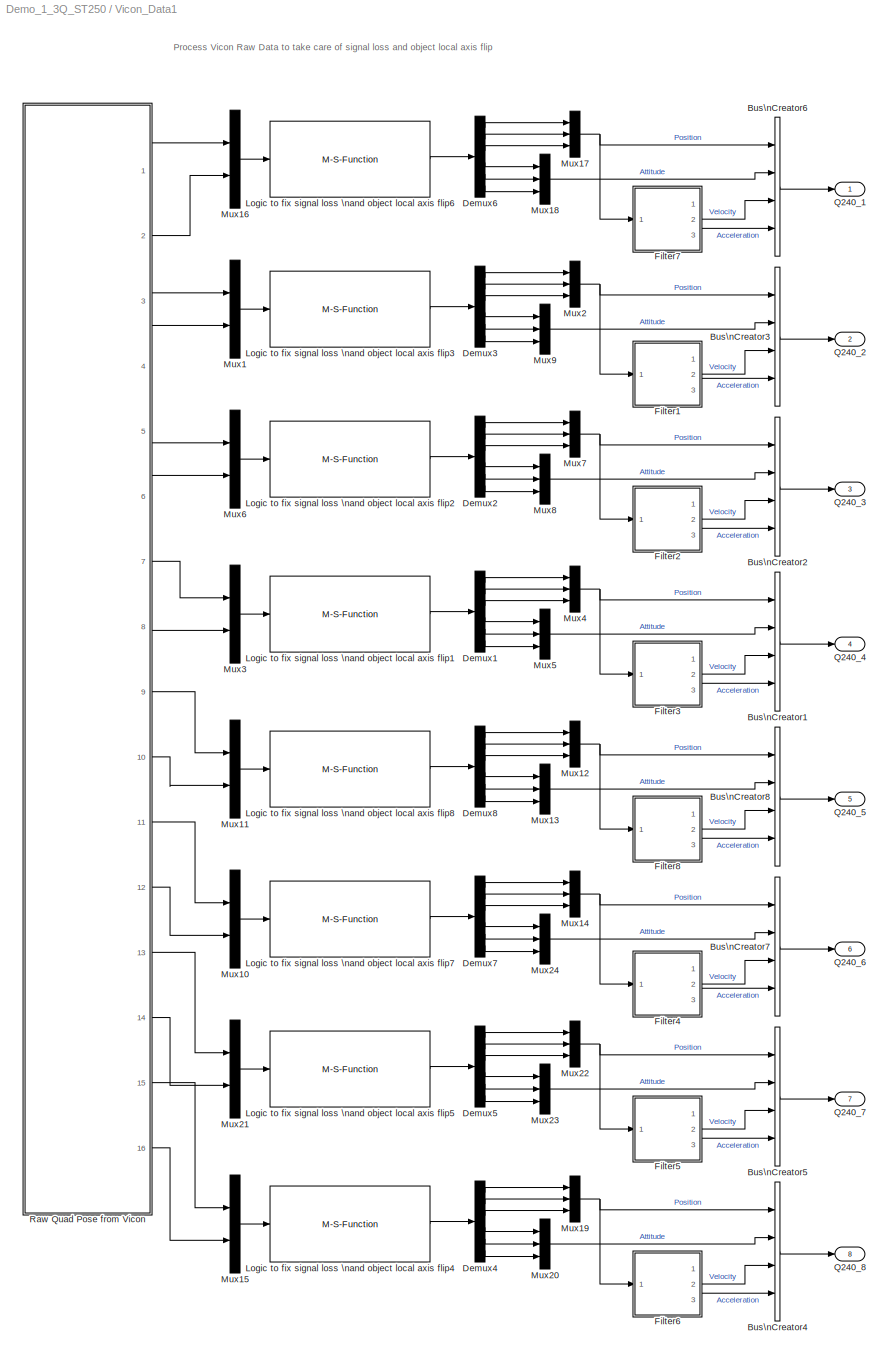
BLOCK [SubSystem] Vicon_Data1
  FunctionWithSeparateData = off
  MaskHideContents = off
  MinAlgLoopOccurrences = off
  Opaque = off
  Ports = [0, 8]
  PropExecContextOutsideSubsystem = off
  RTWSystemCode = Auto
  RequestExecContextInheritance = off
  SID = 1922
BLOCK [BusCreator] Vicon_Data1/Bus\nCreator1
  DisplayOption = bar
  Ports = [4, 1]
  SID = 1923
BLOCK [BusCreator] Vicon_Data1/Bus\nCreator2
  DisplayOption = bar
  Ports = [4, 1]
  SID = 1924
BLOCK [BusCreator] Vicon_Data1/Bus\nCreator3
  DisplayOption = bar
  Ports = [4, 1]
  SID = 1925
BLOCK [BusCreator] Vicon_Data1/Bus\nCreator4
  DisplayOption = bar
  Ports = [4, 1]
  SID = 1926
BLOCK [BusCreator] Vicon_Data1/Bus\nCreator5
  DisplayOption = bar
  Ports = [4, 1]
  SID = 1927
BLOCK [BusCreator] Vicon_Data1/Bus\nCreator6
  DisplayOption = bar
  Ports = [4, 1]
  SID = 1928
BLOCK [BusCreator] Vicon_Data1/Bus\nCreator7
  DisplayOption = bar
  Ports = [4, 1]
  SID = 1929
BLOCK [BusCreator] Vicon_Data1/Bus\nCreator8
  DisplayOption = bar
  Ports = [4, 1]
  SID = 1930
BLOCK [Demux] Vicon_Data1/Demux1
  DisplayOption = bar
  Outputs = 6
  Ports = [1, 6]
  SID = 1931
BLOCK [Demux] Vicon_Data1/Demux2
  DisplayOption = bar
  Outputs = 6
  Ports = [1, 6]
  SID = 1932
BLOCK [Demux] Vicon_Data1/Demux3
  DisplayOption = bar
  Outputs = 6
  Ports = [1, 6]
  SID = 1933
BLOCK [Demux] Vicon_Data1/Demux4
  DisplayOption = bar
  Outputs = 6
  Ports = [1, 6]
  SID = 1934
BLOCK [Demux] Vicon_Data1/Demux5
  DisplayOption = bar
  Outputs = 6
  Ports = [1, 6]
  SID = 1935
BLOCK [Demux] Vicon_Data1/Demux6
  DisplayOption = bar
  Outputs = 6
  Ports = [1, 6]
  SID = 1936
BLOCK [Demux] Vicon_Data1/Demux7
  DisplayOption = bar
  Outputs = 6
  Ports = [1, 6]
  SID = 1937
BLOCK [Demux] Vicon_Data1/Demux8
  DisplayOption = bar
  Outputs = 6
  Ports = [1, 6]
  SID = 1938
BLOCK [SubSystem] Vicon_Data1/Filter1
  FunctionWithSeparateData = off
  MaskHideContents = off
  MinAlgLoopOccurrences = off
  Opaque = off
  Ports = [1, 3]
  PropExecContextOutsideSubsystem = off
  RTWSystemCode = Auto
  RequestExecContextInheritance = off
  SID = 1939
BLOCK [Outport] Vicon_Data1/Filter1/Acc
  IconDisplay = Port number
  Port = 3
  SID = 1960
BLOCK [Gain] Vicon_Data1/Filter1/Gain
  Gain = 15
  OutDataTypeStr = Inherit: Inherit via internal rule
  ParamDataTypeStr = Inherit: Inherit via internal rule
  SID = 1941
  SaturateOnIntegerOverflow = off
BLOCK [Gain] Vicon_Data1/Filter1/Gain1
  Gain = 20
  OutDataTypeStr = Inherit: Inherit via internal rule
  ParamDataTypeStr = Inherit: Inherit via internal rule
  SID = 1942
  SaturateOnIntegerOverflow = off
BLOCK [Inport] Vicon_Data1/Filter1/In1
  IconDisplay = Port number
  SID = 1940
BLOCK [Integrator] Vicon_Data1/Filter1/Integrator
  Ports = [1, 1]
  SID = 1943
BLOCK [Integrator] Vicon_Data1/Filter1/Integrator1
  Ports = [1, 1]
  SID = 1944
BLOCK [Reference] Vicon_Data1/Filter1/Kalman Filter  REF=dspadpt3/Kalman Filter
  A = [1 sample_time_Vicon sample_time_Vicon*sample_time_Vicon/2 zeros(1,6);0 1 sample_time_Vicon zeros(1,6);0 0 1 zeros(1,6);0 0 0 1 sample_time_Vicon sample_time_Vicon*sample_time_Vicon/2 0 0 0;zeros(1,4) 1 sample_time_Vicon zeros(1,3);zeros(1,5) 1 zeros(1,3);zeros(1,6) 1 sample_time_Vicon sample_time_Vicon*sample_time_Vicon/2;zeros(1,7) 1 sample_time_Vicon;zeros(1,8) 1]  <repeated x8 — deduplicated; at blocks: Kalman Filter>
  FunctionWithSeparateData = off
  GeneratePreprocessorConditionals = off
  H = [1 zeros(1,8); zeros(1,3) 1 zeros(1,5);zeros(1,6) 1 0 0]
  P = zeros(9)
  Ports = [1, 2]
  Q = diag([0 0.001 0.001 0 0.001 0.001 0 0.001 0.001])
  R = 0.001*eye(3)
  RTWMemSecDataConstants = Inherit from model
  RTWMemSecDataInternal = Inherit from model
  RTWMemSecDataParameters = Inherit from model
  RTWMemSecFuncExecute = Inherit from model
  RTWMemSecFuncInitTerm = Inherit from model
  SID = 1945
  ShowPortLabels = FromPortIcon
  SourceBlock = dspadpt3/Kalman Filter
  SourceType = Kalman Filter
  SystemSampleTime = -1
  X = zeros([9, 1])
  isOutputEstError = off
  isOutputEstMeasure = on
  isOutputEstState = on
  isOutputPrdError = off
  isOutputPrdMeasure = off
  isOutputPrdState = off
  isReset = on
  num_targets = 1
  sourceEnable = Always
  sourceMeasure = Specify via Dialog
BLOCK [Mux] Vicon_Data1/Filter1/Mux
  DisplayOption = bar
  Inputs = 2
  Ports = [2, 1]
  SID = 1946
BLOCK [Mux] Vicon_Data1/Filter1/Mux1
  DisplayOption = bar
  Inputs = 2
  Ports = [2, 1]
  SID = 1947
BLOCK [Outport] Vicon_Data1/Filter1/Pos
  IconDisplay = Port number
  SID = 1958
BLOCK [Selector] Vicon_Data1/Filter1/Selector1
  IndexOptions = Index vector (dialog)
  Indices = [2]
  InputPortWidth = 3
  OutputSizes = 1
  Ports = [1, 1]
  SID = 1948
BLOCK [Selector] Vicon_Data1/Filter1/Selector2
  IndexOptions = Index vector (dialog)
  Indices = [2]
  InputPortWidth = 3
  OutputSizes = 1
  Ports = [1, 1]
  SID = 1949
BLOCK [Selector] Vicon_Data1/Filter1/Selector3
  IndexOptions = Index vector (dialog)
  Indices = [2]
  InputPortWidth = 3
  OutputSizes = 1
  Ports = [1, 1]
  SID = 1950
BLOCK [Selector] Vicon_Data1/Filter1/Selector4
  IndexOptions = Index vector (dialog)
  Indices = [6]
  InputPortWidth = 9
  OutputSizes = 1
  Ports = [1, 1]
  SID = 1951
BLOCK [Selector] Vicon_Data1/Filter1/Selector5
  IndexOptions = Index vector (dialog)
  Indices = [2 5 8]
  InputPortWidth = 9
  OutputSizes = 1
  Ports = [1, 1]
  SID = 1952
BLOCK [Selector] Vicon_Data1/Filter1/Selector6
  IndexOptions = Index vector (dialog)
  Indices = [3 6 9]
  InputPortWidth = 9
  OutputSizes = 1
  Ports = [1, 1]
  SID = 1953
BLOCK [Sum] Vicon_Data1/Filter1/Sum
  IconShape = round
  InputSameDT = off
  Inputs = |+-
  OutDataTypeStr = Inherit: Inherit via internal rule
  Ports = [2, 1]
  SID = 1954
  SaturateOnIntegerOverflow = off
BLOCK [Sum] Vicon_Data1/Filter1/Sum1
  IconShape = round
  InputSameDT = off
  Inputs = |+-
  OutDataTypeStr = Inherit: Inherit via internal rule
  Ports = [2, 1]
  SID = 1955
  SaturateOnIntegerOverflow = off
BLOCK [Scope] Vicon_Data1/Filter1/V
  DataFormat = StructureWithTime
  Floating = off
  LimitDataPoints = off
  NumInputPorts = 1
  Ports = [1]
  SID = 1956
  SampleTime = 0
  SaveName = ScopeData3
  YMax = 7.5
  YMin = -3.5
  ZoomMode = yonly
BLOCK [Outport] Vicon_Data1/Filter1/Vel
  IconDisplay = Port number
  Port = 2
  SID = 1959
BLOCK [Scope] Vicon_Data1/Filter1/acc
  DataFormat = StructureWithTime
  Floating = off
  LimitDataPoints = off
  NumInputPorts = 1
  Ports = [1]
  SID = 1957
  SampleTime = 0
  SaveName = ScopeData6
  YMax = 7.5
  YMin = -3.5
BLOCK [SubSystem] Vicon_Data1/Filter2
  FunctionWithSeparateData = off
  MaskHideContents = off
  MinAlgLoopOccurrences = off
  Opaque = off
  Ports = [1, 3]
  PropExecContextOutsideSubsystem = off
  RTWSystemCode = Auto
  RequestExecContextInheritance = off
  SID = 1961
BLOCK [Outport] Vicon_Data1/Filter2/Acc
  IconDisplay = Port number
  Port = 3
  SID = 1982
BLOCK [Gain] Vicon_Data1/Filter2/Gain
  Gain = 15
  OutDataTypeStr = Inherit: Inherit via internal rule
  ParamDataTypeStr = Inherit: Inherit via internal rule
  SID = 1963
  SaturateOnIntegerOverflow = off
BLOCK [Gain] Vicon_Data1/Filter2/Gain1
  Gain = 20
  OutDataTypeStr = Inherit: Inherit via internal rule
  ParamDataTypeStr = Inherit: Inherit via internal rule
  SID = 1964
  SaturateOnIntegerOverflow = off
BLOCK [Inport] Vicon_Data1/Filter2/In1
  IconDisplay = Port number
  SID = 1962
BLOCK [Integrator] Vicon_Data1/Filter2/Integrator
  Ports = [1, 1]
  SID = 1965
BLOCK [Integrator] Vicon_Data1/Filter2/Integrator1
  Ports = [1, 1]
  SID = 1966
BLOCK [Reference] Vicon_Data1/Filter2/Kalman Filter  REF=dspadpt3/Kalman Filter
  FunctionWithSeparateData = off
  GeneratePreprocessorConditionals = off
  H = [1 zeros(1,8); zeros(1,3) 1 zeros(1,5);zeros(1,6) 1 0 0]
  P = zeros(9)
  Ports = [1, 2]
  Q = diag([0 0.001 0.001 0 0.001 0.001 0 0.001 0.001])
  R = 0.001*eye(3)
  RTWMemSecDataConstants = Inherit from model
  RTWMemSecDataInternal = Inherit from model
  RTWMemSecDataParameters = Inherit from model
  RTWMemSecFuncExecute = Inherit from model
  RTWMemSecFuncInitTerm = Inherit from model
  SID = 1967
  ShowPortLabels = FromPortIcon
  SourceBlock = dspadpt3/Kalman Filter
  SourceType = Kalman Filter
  SystemSampleTime = -1
  X = zeros([9, 1])
  isOutputEstError = off
  isOutputEstMeasure = on
  isOutputEstState = on
  isOutputPrdError = off
  isOutputPrdMeasure = off
  isOutputPrdState = off
  isReset = on
  num_targets = 1
  sourceEnable = Always
  sourceMeasure = Specify via Dialog
BLOCK [Mux] Vicon_Data1/Filter2/Mux
  DisplayOption = bar
  Inputs = 2
  Ports = [2, 1]
  SID = 1968
BLOCK [Mux] Vicon_Data1/Filter2/Mux1
  DisplayOption = bar
  Inputs = 2
  Ports = [2, 1]
  SID = 1969
BLOCK [Outport] Vicon_Data1/Filter2/Pos
  IconDisplay = Port number
  SID = 1980
BLOCK [Selector] Vicon_Data1/Filter2/Selector1
  IndexOptions = Index vector (dialog)
  Indices = [2]
  InputPortWidth = 3
  OutputSizes = 1
  Ports = [1, 1]
  SID = 1970
BLOCK [Selector] Vicon_Data1/Filter2/Selector2
  IndexOptions = Index vector (dialog)
  Indices = [2]
  InputPortWidth = 3
  OutputSizes = 1
  Ports = [1, 1]
  SID = 1971
BLOCK [Selector] Vicon_Data1/Filter2/Selector3
  IndexOptions = Index vector (dialog)
  Indices = [2]
  InputPortWidth = 3
  OutputSizes = 1
  Ports = [1, 1]
  SID = 1972
BLOCK [Selector] Vicon_Data1/Filter2/Selector4
  IndexOptions = Index vector (dialog)
  Indices = [6]
  InputPortWidth = 9
  OutputSizes = 1
  Ports = [1, 1]
  SID = 1973
BLOCK [Selector] Vicon_Data1/Filter2/Selector5
  IndexOptions = Index vector (dialog)
  Indices = [2 5 8]
  InputPortWidth = 9
  OutputSizes = 1
  Ports = [1, 1]
  SID = 1974
BLOCK [Selector] Vicon_Data1/Filter2/Selector6
  IndexOptions = Index vector (dialog)
  Indices = [3 6 9]
  InputPortWidth = 9
  OutputSizes = 1
  Ports = [1, 1]
  SID = 1975
BLOCK [Sum] Vicon_Data1/Filter2/Sum
  IconShape = round
  InputSameDT = off
  Inputs = |+-
  OutDataTypeStr = Inherit: Inherit via internal rule
  Ports = [2, 1]
  SID = 1976
  SaturateOnIntegerOverflow = off
BLOCK [Sum] Vicon_Data1/Filter2/Sum1
  IconShape = round
  InputSameDT = off
  Inputs = |+-
  OutDataTypeStr = Inherit: Inherit via internal rule
  Ports = [2, 1]
  SID = 1977
  SaturateOnIntegerOverflow = off
BLOCK [Scope] Vicon_Data1/Filter2/V
  DataFormat = StructureWithTime
  Floating = off
  LimitDataPoints = off
  NumInputPorts = 1
  Ports = [1]
  SID = 1978
  SampleTime = 0
  SaveName = ScopeData3
  YMax = 7.5
  YMin = -3.5
BLOCK [Outport] Vicon_Data1/Filter2/Vel
  IconDisplay = Port number
  Port = 2
  SID = 1981
BLOCK [Scope] Vicon_Data1/Filter2/acc
  DataFormat = StructureWithTime
  Floating = off
  LimitDataPoints = off
  NumInputPorts = 1
  Ports = [1]
  SID = 1979
  SampleTime = 0
  SaveName = ScopeData6
  YMax = 7.5
  YMin = -3.5
BLOCK [SubSystem] Vicon_Data1/Filter3
  FunctionWithSeparateData = off
  MaskHideContents = off
  MinAlgLoopOccurrences = off
  Opaque = off
  Ports = [1, 3]
  PropExecContextOutsideSubsystem = off
  RTWSystemCode = Auto
  RequestExecContextInheritance = off
  SID = 1983
BLOCK [Outport] Vicon_Data1/Filter3/Acc
  IconDisplay = Port number
  Port = 3
  SID = 2004
BLOCK [Gain] Vicon_Data1/Filter3/Gain
  Gain = 15
  OutDataTypeStr = Inherit: Inherit via internal rule
  ParamDataTypeStr = Inherit: Inherit via internal rule
  SID = 1985
  SaturateOnIntegerOverflow = off
BLOCK [Gain] Vicon_Data1/Filter3/Gain1
  Gain = 20
  OutDataTypeStr = Inherit: Inherit via internal rule
  ParamDataTypeStr = Inherit: Inherit via internal rule
  SID = 1986
  SaturateOnIntegerOverflow = off
BLOCK [Inport] Vicon_Data1/Filter3/In1
  IconDisplay = Port number
  SID = 1984
BLOCK [Integrator] Vicon_Data1/Filter3/Integrator
  Ports = [1, 1]
  SID = 1987
BLOCK [Integrator] Vicon_Data1/Filter3/Integrator1
  Ports = [1, 1]
  SID = 1988
BLOCK [Reference] Vicon_Data1/Filter3/Kalman Filter  REF=dspadpt3/Kalman Filter
  FunctionWithSeparateData = off
  GeneratePreprocessorConditionals = off
  H = [1 zeros(1,8); zeros(1,3) 1 zeros(1,5);zeros(1,6) 1 0 0]
  P = zeros(9)
  Ports = [1, 2]
  Q = diag([0 0.001 0.001 0 0.001 0.001 0 0.001 0.001])
  R = 0.001*eye(3)
  RTWMemSecDataConstants = Inherit from model
  RTWMemSecDataInternal = Inherit from model
  RTWMemSecDataParameters = Inherit from model
  RTWMemSecFuncExecute = Inherit from model
  RTWMemSecFuncInitTerm = Inherit from model
  SID = 1989
  ShowPortLabels = FromPortIcon
  SourceBlock = dspadpt3/Kalman Filter
  SourceType = Kalman Filter
  SystemSampleTime = -1
  X = zeros([9, 1])
  isOutputEstError = off
  isOutputEstMeasure = on
  isOutputEstState = on
  isOutputPrdError = off
  isOutputPrdMeasure = off
  isOutputPrdState = off
  isReset = on
  num_targets = 1
  sourceEnable = Always
  sourceMeasure = Specify via Dialog
BLOCK [Mux] Vicon_Data1/Filter3/Mux
  DisplayOption = bar
  Inputs = 2
  Ports = [2, 1]
  SID = 1990
BLOCK [Mux] Vicon_Data1/Filter3/Mux1
  DisplayOption = bar
  Inputs = 2
  Ports = [2, 1]
  SID = 1991
BLOCK [Outport] Vicon_Data1/Filter3/Pos
  IconDisplay = Port number
  SID = 2002
BLOCK [Selector] Vicon_Data1/Filter3/Selector1
  IndexOptions = Index vector (dialog)
  Indices = [2]
  InputPortWidth = 3
  OutputSizes = 1
  Ports = [1, 1]
  SID = 1992
BLOCK [Selector] Vicon_Data1/Filter3/Selector2
  IndexOptions = Index vector (dialog)
  Indices = [2]
  InputPortWidth = 3
  OutputSizes = 1
  Ports = [1, 1]
  SID = 1993
BLOCK [Selector] Vicon_Data1/Filter3/Selector3
  IndexOptions = Index vector (dialog)
  Indices = [2]
  InputPortWidth = 3
  OutputSizes = 1
  Ports = [1, 1]
  SID = 1994
BLOCK [Selector] Vicon_Data1/Filter3/Selector4
  IndexOptions = Index vector (dialog)
  Indices = [6]
  InputPortWidth = 9
  OutputSizes = 1
  Ports = [1, 1]
  SID = 1995
BLOCK [Selector] Vicon_Data1/Filter3/Selector5
  IndexOptions = Index vector (dialog)
  Indices = [2 5 8]
  InputPortWidth = 9
  OutputSizes = 1
  Ports = [1, 1]
  SID = 1996
BLOCK [Selector] Vicon_Data1/Filter3/Selector6
  IndexOptions = Index vector (dialog)
  Indices = [3 6 9]
  InputPortWidth = 9
  OutputSizes = 1
  Ports = [1, 1]
  SID = 1997
BLOCK [Sum] Vicon_Data1/Filter3/Sum
  IconShape = round
  InputSameDT = off
  Inputs = |+-
  OutDataTypeStr = Inherit: Inherit via internal rule
  Ports = [2, 1]
  SID = 1998
  SaturateOnIntegerOverflow = off
BLOCK [Sum] Vicon_Data1/Filter3/Sum1
  IconShape = round
  InputSameDT = off
  Inputs = |+-
  OutDataTypeStr = Inherit: Inherit via internal rule
  Ports = [2, 1]
  SID = 1999
  SaturateOnIntegerOverflow = off
BLOCK [Scope] Vicon_Data1/Filter3/V
  DataFormat = StructureWithTime
  Floating = off
  LimitDataPoints = off
  NumInputPorts = 1
  Ports = [1]
  SID = 2000
  SampleTime = 0
  SaveName = ScopeData3
  YMax = 7.5
  YMin = -3.5
BLOCK [Outport] Vicon_Data1/Filter3/Vel
  IconDisplay = Port number
  Port = 2
  SID = 2003
BLOCK [Scope] Vicon_Data1/Filter3/acc
  DataFormat = StructureWithTime
  Floating = off
  LimitDataPoints = off
  NumInputPorts = 1
  Ports = [1]
  SID = 2001
  SampleTime = 0
  SaveName = ScopeData6
  YMax = 7.5
  YMin = -3.5
BLOCK [SubSystem] Vicon_Data1/Filter4
  FunctionWithSeparateData = off
  MaskHideContents = off
  MinAlgLoopOccurrences = off
  Opaque = off
  Ports = [1, 3]
  PropExecContextOutsideSubsystem = off
  RTWSystemCode = Auto
  RequestExecContextInheritance = off
  SID = 2005
BLOCK [Outport] Vicon_Data1/Filter4/Acc
  IconDisplay = Port number
  Port = 3
  SID = 2026
BLOCK [Gain] Vicon_Data1/Filter4/Gain
  Gain = 15
  OutDataTypeStr = Inherit: Inherit via internal rule
  ParamDataTypeStr = Inherit: Inherit via internal rule
  SID = 2007
  SaturateOnIntegerOverflow = off
BLOCK [Gain] Vicon_Data1/Filter4/Gain1
  Gain = 20
  OutDataTypeStr = Inherit: Inherit via internal rule
  ParamDataTypeStr = Inherit: Inherit via internal rule
  SID = 2008
  SaturateOnIntegerOverflow = off
BLOCK [Inport] Vicon_Data1/Filter4/In1
  IconDisplay = Port number
  SID = 2006
BLOCK [Integrator] Vicon_Data1/Filter4/Integrator
  Ports = [1, 1]
  SID = 2009
BLOCK [Integrator] Vicon_Data1/Filter4/Integrator1
  Ports = [1, 1]
  SID = 2010
BLOCK [Reference] Vicon_Data1/Filter4/Kalman Filter  REF=dspadpt3/Kalman Filter
  FunctionWithSeparateData = off
  GeneratePreprocessorConditionals = off
  H = [1 zeros(1,8); zeros(1,3) 1 zeros(1,5);zeros(1,6) 1 0 0]
  P = zeros(9)
  Ports = [1, 2]
  Q = diag([0 0.001 0.001 0 0.001 0.001 0 0.001 0.001])
  R = 0.001*eye(3)
  RTWMemSecDataConstants = Inherit from model
  RTWMemSecDataInternal = Inherit from model
  RTWMemSecDataParameters = Inherit from model
  RTWMemSecFuncExecute = Inherit from model
  RTWMemSecFuncInitTerm = Inherit from model
  SID = 2011
  ShowPortLabels = FromPortIcon
  SourceBlock = dspadpt3/Kalman Filter
  SourceType = Kalman Filter
  SystemSampleTime = -1
  X = zeros([9, 1])
  isOutputEstError = off
  isOutputEstMeasure = on
  isOutputEstState = on
  isOutputPrdError = off
  isOutputPrdMeasure = off
  isOutputPrdState = off
  isReset = on
  num_targets = 1
  sourceEnable = Always
  sourceMeasure = Specify via Dialog
BLOCK [Mux] Vicon_Data1/Filter4/Mux
  DisplayOption = bar
  Inputs = 2
  Ports = [2, 1]
  SID = 2012
BLOCK [Mux] Vicon_Data1/Filter4/Mux1
  DisplayOption = bar
  Inputs = 2
  Ports = [2, 1]
  SID = 2013
BLOCK [Outport] Vicon_Data1/Filter4/Pos
  IconDisplay = Port number
  SID = 2024
BLOCK [Selector] Vicon_Data1/Filter4/Selector1
  IndexOptions = Index vector (dialog)
  Indices = [2]
  InputPortWidth = 3
  OutputSizes = 1
  Ports = [1, 1]
  SID = 2014
BLOCK [Selector] Vicon_Data1/Filter4/Selector2
  IndexOptions = Index vector (dialog)
  Indices = [2]
  InputPortWidth = 3
  OutputSizes = 1
  Ports = [1, 1]
  SID = 2015
BLOCK [Selector] Vicon_Data1/Filter4/Selector3
  IndexOptions = Index vector (dialog)
  Indices = [2]
  InputPortWidth = 3
  OutputSizes = 1
  Ports = [1, 1]
  SID = 2016
BLOCK [Selector] Vicon_Data1/Filter4/Selector4
  IndexOptions = Index vector (dialog)
  Indices = [6]
  InputPortWidth = 9
  OutputSizes = 1
  Ports = [1, 1]
  SID = 2017
BLOCK [Selector] Vicon_Data1/Filter4/Selector5
  IndexOptions = Index vector (dialog)
  Indices = [2 5 8]
  InputPortWidth = 9
  OutputSizes = 1
  Ports = [1, 1]
  SID = 2018
BLOCK [Selector] Vicon_Data1/Filter4/Selector6
  IndexOptions = Index vector (dialog)
  Indices = [3 6 9]
  InputPortWidth = 9
  OutputSizes = 1
  Ports = [1, 1]
  SID = 2019
BLOCK [Sum] Vicon_Data1/Filter4/Sum
  IconShape = round
  InputSameDT = off
  Inputs = |+-
  OutDataTypeStr = Inherit: Inherit via internal rule
  Ports = [2, 1]
  SID = 2020
  SaturateOnIntegerOverflow = off
BLOCK [Sum] Vicon_Data1/Filter4/Sum1
  IconShape = round
  InputSameDT = off
  Inputs = |+-
  OutDataTypeStr = Inherit: Inherit via internal rule
  Ports = [2, 1]
  SID = 2021
  SaturateOnIntegerOverflow = off
BLOCK [Scope] Vicon_Data1/Filter4/V
  DataFormat = StructureWithTime
  Floating = off
  LimitDataPoints = off
  NumInputPorts = 1
  Ports = [1]
  SID = 2022
  SampleTime = 0
  SaveName = ScopeData3
  YMax = 7.5
  YMin = -3.5
  ZoomMode = yonly
BLOCK [Outport] Vicon_Data1/Filter4/Vel
  IconDisplay = Port number
  Port = 2
  SID = 2025
BLOCK [Scope] Vicon_Data1/Filter4/acc
  DataFormat = StructureWithTime
  Floating = off
  LimitDataPoints = off
  NumInputPorts = 1
  Ports = [1]
  SID = 2023
  SampleTime = 0
  SaveName = ScopeData6
  YMax = 7.5
  YMin = -3.5
BLOCK [SubSystem] Vicon_Data1/Filter5
  FunctionWithSeparateData = off
  MaskHideContents = off
  MinAlgLoopOccurrences = off
  Opaque = off
  Ports = [1, 3]
  PropExecContextOutsideSubsystem = off
  RTWSystemCode = Auto
  RequestExecContextInheritance = off
  SID = 2027
BLOCK [Outport] Vicon_Data1/Filter5/Acc
  IconDisplay = Port number
  Port = 3
  SID = 2048
BLOCK [Gain] Vicon_Data1/Filter5/Gain
  Gain = 15
  OutDataTypeStr = Inherit: Inherit via internal rule
  ParamDataTypeStr = Inherit: Inherit via internal rule
  SID = 2029
  SaturateOnIntegerOverflow = off
BLOCK [Gain] Vicon_Data1/Filter5/Gain1
  Gain = 20
  OutDataTypeStr = Inherit: Inherit via internal rule
  ParamDataTypeStr = Inherit: Inherit via internal rule
  SID = 2030
  SaturateOnIntegerOverflow = off
BLOCK [Inport] Vicon_Data1/Filter5/In1
  IconDisplay = Port number
  SID = 2028
BLOCK [Integrator] Vicon_Data1/Filter5/Integrator
  Ports = [1, 1]
  SID = 2031
BLOCK [Integrator] Vicon_Data1/Filter5/Integrator1
  Ports = [1, 1]
  SID = 2032
BLOCK [Reference] Vicon_Data1/Filter5/Kalman Filter  REF=dspadpt3/Kalman Filter
  FunctionWithSeparateData = off
  GeneratePreprocessorConditionals = off
  H = [1 zeros(1,8); zeros(1,3) 1 zeros(1,5);zeros(1,6) 1 0 0]
  P = zeros(9)
  Ports = [1, 2]
  Q = diag([0 0.001 0.001 0 0.001 0.001 0 0.001 0.001])
  R = 0.001*eye(3)
  RTWMemSecDataConstants = Inherit from model
  RTWMemSecDataInternal = Inherit from model
  RTWMemSecDataParameters = Inherit from model
  RTWMemSecFuncExecute = Inherit from model
  RTWMemSecFuncInitTerm = Inherit from model
  SID = 2033
  ShowPortLabels = FromPortIcon
  SourceBlock = dspadpt3/Kalman Filter
  SourceType = Kalman Filter
  SystemSampleTime = -1
  X = zeros([9, 1])
  isOutputEstError = off
  isOutputEstMeasure = on
  isOutputEstState = on
  isOutputPrdError = off
  isOutputPrdMeasure = off
  isOutputPrdState = off
  isReset = on
  num_targets = 1
  sourceEnable = Always
  sourceMeasure = Specify via Dialog
BLOCK [Mux] Vicon_Data1/Filter5/Mux
  DisplayOption = bar
  Inputs = 2
  Ports = [2, 1]
  SID = 2034
BLOCK [Mux] Vicon_Data1/Filter5/Mux1
  DisplayOption = bar
  Inputs = 2
  Ports = [2, 1]
  SID = 2035
BLOCK [Outport] Vicon_Data1/Filter5/Pos
  IconDisplay = Port number
  SID = 2046
BLOCK [Selector] Vicon_Data1/Filter5/Selector1
  IndexOptions = Index vector (dialog)
  Indices = [2]
  InputPortWidth = 3
  OutputSizes = 1
  Ports = [1, 1]
  SID = 2036
BLOCK [Selector] Vicon_Data1/Filter5/Selector2
  IndexOptions = Index vector (dialog)
  Indices = [2]
  InputPortWidth = 3
  OutputSizes = 1
  Ports = [1, 1]
  SID = 2037
BLOCK [Selector] Vicon_Data1/Filter5/Selector3
  IndexOptions = Index vector (dialog)
  Indices = [2]
  InputPortWidth = 3
  OutputSizes = 1
  Ports = [1, 1]
  SID = 2038
BLOCK [Selector] Vicon_Data1/Filter5/Selector4
  IndexOptions = Index vector (dialog)
  Indices = [6]
  InputPortWidth = 9
  OutputSizes = 1
  Ports = [1, 1]
  SID = 2039
BLOCK [Selector] Vicon_Data1/Filter5/Selector5
  IndexOptions = Index vector (dialog)
  Indices = [2 5 8]
  InputPortWidth = 9
  OutputSizes = 1
  Ports = [1, 1]
  SID = 2040
BLOCK [Selector] Vicon_Data1/Filter5/Selector6
  IndexOptions = Index vector (dialog)
  Indices = [3 6 9]
  InputPortWidth = 9
  OutputSizes = 1
  Ports = [1, 1]
  SID = 2041
BLOCK [Sum] Vicon_Data1/Filter5/Sum
  IconShape = round
  InputSameDT = off
  Inputs = |+-
  OutDataTypeStr = Inherit: Inherit via internal rule
  Ports = [2, 1]
  SID = 2042
  SaturateOnIntegerOverflow = off
BLOCK [Sum] Vicon_Data1/Filter5/Sum1
  IconShape = round
  InputSameDT = off
  Inputs = |+-
  OutDataTypeStr = Inherit: Inherit via internal rule
  Ports = [2, 1]
  SID = 2043
  SaturateOnIntegerOverflow = off
BLOCK [Scope] Vicon_Data1/Filter5/V
  DataFormat = StructureWithTime
  Floating = off
  LimitDataPoints = off
  NumInputPorts = 1
  Ports = [1]
  SID = 2044
  SampleTime = 0
  SaveName = ScopeData3
  YMax = 7.5
  YMin = -3.5
BLOCK [Outport] Vicon_Data1/Filter5/Vel
  IconDisplay = Port number
  Port = 2
  SID = 2047
BLOCK [Scope] Vicon_Data1/Filter5/acc
  DataFormat = StructureWithTime
  Floating = off
  LimitDataPoints = off
  NumInputPorts = 1
  Ports = [1]
  SID = 2045
  SampleTime = 0
  SaveName = ScopeData6
  YMax = 7.5
  YMin = -3.5
BLOCK [SubSystem] Vicon_Data1/Filter6
  FunctionWithSeparateData = off
  MaskHideContents = off
  MinAlgLoopOccurrences = off
  Opaque = off
  Ports = [1, 3]
  PropExecContextOutsideSubsystem = off
  RTWSystemCode = Auto
  RequestExecContextInheritance = off
  SID = 2049
BLOCK [Outport] Vicon_Data1/Filter6/Acc
  IconDisplay = Port number
  Port = 3
  SID = 2070
BLOCK [Gain] Vicon_Data1/Filter6/Gain
  Gain = 15
  OutDataTypeStr = Inherit: Inherit via internal rule
  ParamDataTypeStr = Inherit: Inherit via internal rule
  SID = 2051
  SaturateOnIntegerOverflow = off
BLOCK [Gain] Vicon_Data1/Filter6/Gain1
  Gain = 20
  OutDataTypeStr = Inherit: Inherit via internal rule
  ParamDataTypeStr = Inherit: Inherit via internal rule
  SID = 2052
  SaturateOnIntegerOverflow = off
BLOCK [Inport] Vicon_Data1/Filter6/In1
  IconDisplay = Port number
  SID = 2050
BLOCK [Integrator] Vicon_Data1/Filter6/Integrator
  Ports = [1, 1]
  SID = 2053
BLOCK [Integrator] Vicon_Data1/Filter6/Integrator1
  Ports = [1, 1]
  SID = 2054
BLOCK [Reference] Vicon_Data1/Filter6/Kalman Filter  REF=dspadpt3/Kalman Filter
  FunctionWithSeparateData = off
  GeneratePreprocessorConditionals = off
  H = [1 zeros(1,8); zeros(1,3) 1 zeros(1,5);zeros(1,6) 1 0 0]
  P = zeros(9)
  Ports = [1, 2]
  Q = diag([0 0.001 0.001 0 0.001 0.001 0 0.001 0.001])
  R = 0.001*eye(3)
  RTWMemSecDataConstants = Inherit from model
  RTWMemSecDataInternal = Inherit from model
  RTWMemSecDataParameters = Inherit from model
  RTWMemSecFuncExecute = Inherit from model
  RTWMemSecFuncInitTerm = Inherit from model
  SID = 2055
  ShowPortLabels = FromPortIcon
  SourceBlock = dspadpt3/Kalman Filter
  SourceType = Kalman Filter
  SystemSampleTime = -1
  X = zeros([9, 1])
  isOutputEstError = off
  isOutputEstMeasure = on
  isOutputEstState = on
  isOutputPrdError = off
  isOutputPrdMeasure = off
  isOutputPrdState = off
  isReset = on
  num_targets = 1
  sourceEnable = Always
  sourceMeasure = Specify via Dialog
BLOCK [Mux] Vicon_Data1/Filter6/Mux
  DisplayOption = bar
  Inputs = 2
  Ports = [2, 1]
  SID = 2056
BLOCK [Mux] Vicon_Data1/Filter6/Mux1
  DisplayOption = bar
  Inputs = 2
  Ports = [2, 1]
  SID = 2057
BLOCK [Outport] Vicon_Data1/Filter6/Pos
  IconDisplay = Port number
  SID = 2068
BLOCK [Selector] Vicon_Data1/Filter6/Selector1
  IndexOptions = Index vector (dialog)
  Indices = [2]
  InputPortWidth = 3
  OutputSizes = 1
  Ports = [1, 1]
  SID = 2058
BLOCK [Selector] Vicon_Data1/Filter6/Selector2
  IndexOptions = Index vector (dialog)
  Indices = [2]
  InputPortWidth = 3
  OutputSizes = 1
  Ports = [1, 1]
  SID = 2059
BLOCK [Selector] Vicon_Data1/Filter6/Selector3
  IndexOptions = Index vector (dialog)
  Indices = [2]
  InputPortWidth = 3
  OutputSizes = 1
  Ports = [1, 1]
  SID = 2060
BLOCK [Selector] Vicon_Data1/Filter6/Selector4
  IndexOptions = Index vector (dialog)
  Indices = [6]
  InputPortWidth = 9
  OutputSizes = 1
  Ports = [1, 1]
  SID = 2061
BLOCK [Selector] Vicon_Data1/Filter6/Selector5
  IndexOptions = Index vector (dialog)
  Indices = [2 5 8]
  InputPortWidth = 9
  OutputSizes = 1
  Ports = [1, 1]
  SID = 2062
BLOCK [Selector] Vicon_Data1/Filter6/Selector6
  IndexOptions = Index vector (dialog)
  Indices = [3 6 9]
  InputPortWidth = 9
  OutputSizes = 1
  Ports = [1, 1]
  SID = 2063
BLOCK [Sum] Vicon_Data1/Filter6/Sum
  IconShape = round
  InputSameDT = off
  Inputs = |+-
  OutDataTypeStr = Inherit: Inherit via internal rule
  Ports = [2, 1]
  SID = 2064
  SaturateOnIntegerOverflow = off
BLOCK [Sum] Vicon_Data1/Filter6/Sum1
  IconShape = round
  InputSameDT = off
  Inputs = |+-
  OutDataTypeStr = Inherit: Inherit via internal rule
  Ports = [2, 1]
  SID = 2065
  SaturateOnIntegerOverflow = off
BLOCK [Scope] Vicon_Data1/Filter6/V
  DataFormat = StructureWithTime
  Floating = off
  LimitDataPoints = off
  NumInputPorts = 1
  Ports = [1]
  SID = 2066
  SampleTime = 0
  SaveName = ScopeData3
  YMax = 7.5
  YMin = -3.5
BLOCK [Outport] Vicon_Data1/Filter6/Vel
  IconDisplay = Port number
  Port = 2
  SID = 2069
BLOCK [Scope] Vicon_Data1/Filter6/acc
  DataFormat = StructureWithTime
  Floating = off
  LimitDataPoints = off
  NumInputPorts = 1
  Ports = [1]
  SID = 2067
  SampleTime = 0
  SaveName = ScopeData6
  YMax = 7.5
  YMin = -3.5
BLOCK [SubSystem] Vicon_Data1/Filter7
  FunctionWithSeparateData = off
  MaskHideContents = off
  MinAlgLoopOccurrences = off
  Opaque = off
  Ports = [1, 3]
  PropExecContextOutsideSubsystem = off
  RTWSystemCode = Auto
  RequestExecContextInheritance = off
  SID = 2071
BLOCK [Outport] Vicon_Data1/Filter7/Acc
  IconDisplay = Port number
  Port = 3
  SID = 2092
BLOCK [Gain] Vicon_Data1/Filter7/Gain
  Gain = 15
  OutDataTypeStr = Inherit: Inherit via internal rule
  ParamDataTypeStr = Inherit: Inherit via internal rule
  SID = 2073
  SaturateOnIntegerOverflow = off
BLOCK [Gain] Vicon_Data1/Filter7/Gain1
  Gain = 20
  OutDataTypeStr = Inherit: Inherit via internal rule
  ParamDataTypeStr = Inherit: Inherit via internal rule
  SID = 2074
  SaturateOnIntegerOverflow = off
BLOCK [Inport] Vicon_Data1/Filter7/In1
  IconDisplay = Port number
  SID = 2072
BLOCK [Integrator] Vicon_Data1/Filter7/Integrator
  Ports = [1, 1]
  SID = 2075
BLOCK [Integrator] Vicon_Data1/Filter7/Integrator1
  Ports = [1, 1]
  SID = 2076
BLOCK [Reference] Vicon_Data1/Filter7/Kalman Filter  REF=dspadpt3/Kalman Filter
  FunctionWithSeparateData = off
  GeneratePreprocessorConditionals = off
  H = [1 zeros(1,8); zeros(1,3) 1 zeros(1,5);zeros(1,6) 1 0 0]
  P = zeros(9)
  Ports = [1, 2]
  Q = diag([0 0.001 0.001 0 0.001 0.001 0 0.001 0.001])
  R = 0.001*eye(3)
  RTWMemSecDataConstants = Inherit from model
  RTWMemSecDataInternal = Inherit from model
  RTWMemSecDataParameters = Inherit from model
  RTWMemSecFuncExecute = Inherit from model
  RTWMemSecFuncInitTerm = Inherit from model
  SID = 2077
  ShowPortLabels = FromPortIcon
  SourceBlock = dspadpt3/Kalman Filter
  SourceType = Kalman Filter
  SystemSampleTime = -1
  X = zeros([9, 1])
  isOutputEstError = off
  isOutputEstMeasure = on
  isOutputEstState = on
  isOutputPrdError = off
  isOutputPrdMeasure = off
  isOutputPrdState = off
  isReset = on
  num_targets = 1
  sourceEnable = Always
  sourceMeasure = Specify via Dialog
BLOCK [Mux] Vicon_Data1/Filter7/Mux
  DisplayOption = bar
  Inputs = 2
  Ports = [2, 1]
  SID = 2078
BLOCK [Mux] Vicon_Data1/Filter7/Mux1
  DisplayOption = bar
  Inputs = 2
  Ports = [2, 1]
  SID = 2079
BLOCK [Outport] Vicon_Data1/Filter7/Pos
  IconDisplay = Port number
  SID = 2090
BLOCK [Selector] Vicon_Data1/Filter7/Selector1
  IndexOptions = Index vector (dialog)
  Indices = [2]
  InputPortWidth = 3
  OutputSizes = 1
  Ports = [1, 1]
  SID = 2080
BLOCK [Selector] Vicon_Data1/Filter7/Selector2
  IndexOptions = Index vector (dialog)
  Indices = [2]
  InputPortWidth = 3
  OutputSizes = 1
  Ports = [1, 1]
  SID = 2081
BLOCK [Selector] Vicon_Data1/Filter7/Selector3
  IndexOptions = Index vector (dialog)
  Indices = [2]
  InputPortWidth = 3
  OutputSizes = 1
  Ports = [1, 1]
  SID = 2082
BLOCK [Selector] Vicon_Data1/Filter7/Selector4
  IndexOptions = Index vector (dialog)
  Indices = [6]
  InputPortWidth = 9
  OutputSizes = 1
  Ports = [1, 1]
  SID = 2083
BLOCK [Selector] Vicon_Data1/Filter7/Selector5
  IndexOptions = Index vector (dialog)
  Indices = [2 5 8]
  InputPortWidth = 9
  OutputSizes = 1
  Ports = [1, 1]
  SID = 2084
BLOCK [Selector] Vicon_Data1/Filter7/Selector6
  IndexOptions = Index vector (dialog)
  Indices = [3 6 9]
  InputPortWidth = 9
  OutputSizes = 1
  Ports = [1, 1]
  SID = 2085
BLOCK [Sum] Vicon_Data1/Filter7/Sum
  IconShape = round
  InputSameDT = off
  Inputs = |+-
  OutDataTypeStr = Inherit: Inherit via internal rule
  Ports = [2, 1]
  SID = 2086
  SaturateOnIntegerOverflow = off
BLOCK [Sum] Vicon_Data1/Filter7/Sum1
  IconShape = round
  InputSameDT = off
  Inputs = |+-
  OutDataTypeStr = Inherit: Inherit via internal rule
  Ports = [2, 1]
  SID = 2087
  SaturateOnIntegerOverflow = off
BLOCK [Scope] Vicon_Data1/Filter7/V
  DataFormat = StructureWithTime
  Floating = off
  LimitDataPoints = off
  NumInputPorts = 1
  Ports = [1]
  SID = 2088
  SampleTime = 0
  SaveName = ScopeData3
  YMax = 1.25
  YMin = -1.75
  ZoomMode = yonly
BLOCK [Outport] Vicon_Data1/Filter7/Vel
  IconDisplay = Port number
  Port = 2
  SID = 2091
BLOCK [Scope] Vicon_Data1/Filter7/acc
  DataFormat = StructureWithTime
  Floating = off
  LimitDataPoints = off
  NumInputPorts = 1
  Ports = [1]
  SID = 2089
  SampleTime = 0
  SaveName = ScopeData6
  YMax = 7.5
  YMin = -3.5
BLOCK [SubSystem] Vicon_Data1/Filter8
  FunctionWithSeparateData = off
  MaskHideContents = off
  MinAlgLoopOccurrences = off
  Opaque = off
  Ports = [1, 3]
  PropExecContextOutsideSubsystem = off
  RTWSystemCode = Auto
  RequestExecContextInheritance = off
  SID = 2093
BLOCK [Outport] Vicon_Data1/Filter8/Acc
  IconDisplay = Port number
  Port = 3
  SID = 2114
BLOCK [Gain] Vicon_Data1/Filter8/Gain
  Gain = 15
  OutDataTypeStr = Inherit: Inherit via internal rule
  ParamDataTypeStr = Inherit: Inherit via internal rule
  SID = 2095
  SaturateOnIntegerOverflow = off
BLOCK [Gain] Vicon_Data1/Filter8/Gain1
  Gain = 20
  OutDataTypeStr = Inherit: Inherit via internal rule
  ParamDataTypeStr = Inherit: Inherit via internal rule
  SID = 2096
  SaturateOnIntegerOverflow = off
BLOCK [Inport] Vicon_Data1/Filter8/In1
  IconDisplay = Port number
  SID = 2094
BLOCK [Integrator] Vicon_Data1/Filter8/Integrator
  Ports = [1, 1]
  SID = 2097
BLOCK [Integrator] Vicon_Data1/Filter8/Integrator1
  Ports = [1, 1]
  SID = 2098
BLOCK [Reference] Vicon_Data1/Filter8/Kalman Filter  REF=dspadpt3/Kalman Filter
  FunctionWithSeparateData = off
  GeneratePreprocessorConditionals = off
  H = [1 zeros(1,8); zeros(1,3) 1 zeros(1,5);zeros(1,6) 1 0 0]
  P = zeros(9)
  Ports = [1, 2]
  Q = diag([0 0.001 0.001 0 0.001 0.001 0 0.001 0.001])
  R = 0.001*eye(3)
  RTWMemSecDataConstants = Inherit from model
  RTWMemSecDataInternal = Inherit from model
  RTWMemSecDataParameters = Inherit from model
  RTWMemSecFuncExecute = Inherit from model
  RTWMemSecFuncInitTerm = Inherit from model
  SID = 2099
  ShowPortLabels = FromPortIcon
  SourceBlock = dspadpt3/Kalman Filter
  SourceType = Kalman Filter
  SystemSampleTime = -1
  X = zeros([9, 1])
  isOutputEstError = off
  isOutputEstMeasure = on
  isOutputEstState = on
  isOutputPrdError = off
  isOutputPrdMeasure = off
  isOutputPrdState = off
  isReset = on
  num_targets = 1
  sourceEnable = Always
  sourceMeasure = Specify via Dialog
BLOCK [Mux] Vicon_Data1/Filter8/Mux
  DisplayOption = bar
  Inputs = 2
  Ports = [2, 1]
  SID = 2100
BLOCK [Mux] Vicon_Data1/Filter8/Mux1
  DisplayOption = bar
  Inputs = 2
  Ports = [2, 1]
  SID = 2101
BLOCK [Outport] Vicon_Data1/Filter8/Pos
  IconDisplay = Port number
  SID = 2112
BLOCK [Selector] Vicon_Data1/Filter8/Selector1
  IndexOptions = Index vector (dialog)
  Indices = [2]
  InputPortWidth = 3
  OutputSizes = 1
  Ports = [1, 1]
  SID = 2102
BLOCK [Selector] Vicon_Data1/Filter8/Selector2
  IndexOptions = Index vector (dialog)
  Indices = [2]
  InputPortWidth = 3
  OutputSizes = 1
  Ports = [1, 1]
  SID = 2103
BLOCK [Selector] Vicon_Data1/Filter8/Selector3
  IndexOptions = Index vector (dialog)
  Indices = [2]
  InputPortWidth = 3
  OutputSizes = 1
  Ports = [1, 1]
  SID = 2104
BLOCK [Selector] Vicon_Data1/Filter8/Selector4
  IndexOptions = Index vector (dialog)
  Indices = [6]
  InputPortWidth = 9
  OutputSizes = 1
  Ports = [1, 1]
  SID = 2105
BLOCK [Selector] Vicon_Data1/Filter8/Selector5
  IndexOptions = Index vector (dialog)
  Indices = [2 5 8]
  InputPortWidth = 9
  OutputSizes = 1
  Ports = [1, 1]
  SID = 2106
BLOCK [Selector] Vicon_Data1/Filter8/Selector6
  IndexOptions = Index vector (dialog)
  Indices = [3 6 9]
  InputPortWidth = 9
  OutputSizes = 1
  Ports = [1, 1]
  SID = 2107
BLOCK [Sum] Vicon_Data1/Filter8/Sum
  IconShape = round
  InputSameDT = off
  Inputs = |+-
  OutDataTypeStr = Inherit: Inherit via internal rule
  Ports = [2, 1]
  SID = 2108
  SaturateOnIntegerOverflow = off
BLOCK [Sum] Vicon_Data1/Filter8/Sum1
  IconShape = round
  InputSameDT = off
  Inputs = |+-
  OutDataTypeStr = Inherit: Inherit via internal rule
  Ports = [2, 1]
  SID = 2109
  SaturateOnIntegerOverflow = off
BLOCK [Scope] Vicon_Data1/Filter8/V
  DataFormat = StructureWithTime
  Floating = off
  LimitDataPoints = off
  NumInputPorts = 1
  Ports = [1]
  SID = 2110
  SampleTime = 0
  SaveName = ScopeData3
  YMax = 1.25
  YMin = -1.75
  ZoomMode = yonly
BLOCK [Outport] Vicon_Data1/Filter8/Vel
  IconDisplay = Port number
  Port = 2
  SID = 2113
BLOCK [Scope] Vicon_Data1/Filter8/acc
  DataFormat = StructureWithTime
  Floating = off
  LimitDataPoints = off
  NumInputPorts = 1
  Ports = [1]
  SID = 2111
  SampleTime = 0
  SaveName = ScopeData6
  YMax = 7.5
  YMin = -3.5
BLOCK [M-S-Function] Vicon_Data1/Logic to fix signal loss \nand object local axis flip1
  FunctionName = Vicon_Filter
  Ports = [1, 1]
  SID = 2115
BLOCK [M-S-Function] Vicon_Data1/Logic to fix signal loss \nand object local axis flip2
  FunctionName = Vicon_Filter
  Ports = [1, 1]
  SID = 2116
BLOCK [M-S-Function] Vicon_Data1/Logic to fix signal loss \nand object local axis flip3
  FunctionName = Vicon_Filter
  Ports = [1, 1]
  SID = 2117
BLOCK [M-S-Function] Vicon_Data1/Logic to fix signal loss \nand object local axis flip4
  FunctionName = Vicon_Filter
  Ports = [1, 1]
  SID = 2118
BLOCK [M-S-Function] Vicon_Data1/Logic to fix signal loss \nand object local axis flip5
  FunctionName = Vicon_Filter
  Ports = [1, 1]
  SID = 2119
BLOCK [M-S-Function] Vicon_Data1/Logic to fix signal loss \nand object local axis flip6
  FunctionName = Vicon_Filter
  Ports = [1, 1]
  SID = 2120
BLOCK [M-S-Function] Vicon_Data1/Logic to fix signal loss \nand object local axis flip7
  FunctionName = Vicon_Filter
  Ports = [1, 1]
  SID = 2121
BLOCK [M-S-Function] Vicon_Data1/Logic to fix signal loss \nand object local axis flip8
  FunctionName = Vicon_Filter
  Ports = [1, 1]
  SID = 2122
BLOCK [Mux] Vicon_Data1/Mux1
  DisplayOption = bar
  Inputs = 2
  Ports = [2, 1]
  SID = 2123
BLOCK [Mux] Vicon_Data1/Mux10
  DisplayOption = bar
  Inputs = 2
  Ports = [2, 1]
  SID = 2124
BLOCK [Mux] Vicon_Data1/Mux11
  DisplayOption = bar
  Inputs = 2
  Ports = [2, 1]
  SID = 2125
BLOCK [Mux] Vicon_Data1/Mux12
  DisplayOption = bar
  Inputs = 3
  Ports = [3, 1]
  SID = 2126
BLOCK [Mux] Vicon_Data1/Mux13
  DisplayOption = bar
  Inputs = 3
  Ports = [3, 1]
  SID = 2127
BLOCK [Mux] Vicon_Data1/Mux14
  DisplayOption = bar
  Inputs = 3
  Ports = [3, 1]
  SID = 2128
BLOCK [Mux] Vicon_Data1/Mux15
  DisplayOption = bar
  Inputs = 2
  Ports = [2, 1]
  SID = 2129
BLOCK [Mux] Vicon_Data1/Mux16
  DisplayOption = bar
  Inputs = 2
  Ports = [2, 1]
  SID = 2130
BLOCK [Mux] Vicon_Data1/Mux17
  DisplayOption = bar
  Inputs = 3
  Ports = [3, 1]
  SID = 2131
BLOCK [Mux] Vicon_Data1/Mux18
  DisplayOption = bar
  Inputs = 3
  Ports = [3, 1]
  SID = 2132
BLOCK [Mux] Vicon_Data1/Mux19
  DisplayOption = bar
  Inputs = 3
  Ports = [3, 1]
  SID = 2133
BLOCK [Mux] Vicon_Data1/Mux2
  DisplayOption = bar
  Inputs = 3
  Ports = [3, 1]
  SID = 2134
BLOCK [Mux] Vicon_Data1/Mux20
  DisplayOption = bar
  Inputs = 3
  Ports = [3, 1]
  SID = 2135
BLOCK [Mux] Vicon_Data1/Mux21
  DisplayOption = bar
  Inputs = 2
  Ports = [2, 1]
  SID = 2136
BLOCK [Mux] Vicon_Data1/Mux22
  DisplayOption = bar
  Inputs = 3
  Ports = [3, 1]
  SID = 2137
BLOCK [Mux] Vicon_Data1/Mux23
  DisplayOption = bar
  Inputs = 3
  Ports = [3, 1]
  SID = 2138
BLOCK [Mux] Vicon_Data1/Mux24
  DisplayOption = bar
  Inputs = 3
  Ports = [3, 1]
  SID = 2139
BLOCK [Mux] Vicon_Data1/Mux3
  DisplayOption = bar
  Inputs = 2
  Ports = [2, 1]
  SID = 2140
BLOCK [Mux] Vicon_Data1/Mux4
  DisplayOption = bar
  Inputs = 3
  Ports = [3, 1]
  SID = 2141
BLOCK [Mux] Vicon_Data1/Mux5
  DisplayOption = bar
  Inputs = 3
  Ports = [3, 1]
  SID = 2142
BLOCK [Mux] Vicon_Data1/Mux6
  DisplayOption = bar
  Inputs = 2
  Ports = [2, 1]
  SID = 2143
BLOCK [Mux] Vicon_Data1/Mux7
  DisplayOption = bar
  Inputs = 3
  Ports = [3, 1]
  SID = 2144
BLOCK [Mux] Vicon_Data1/Mux8
  DisplayOption = bar
  Inputs = 3
  Ports = [3, 1]
  SID = 2145
BLOCK [Mux] Vicon_Data1/Mux9
  DisplayOption = bar
  Inputs = 3
  Ports = [3, 1]
  SID = 2146
BLOCK [Outport] Vicon_Data1/Q240_1
  IconDisplay = Port number
  SID = 2471
BLOCK [Outport] Vicon_Data1/Q240_2
  IconDisplay = Port number
  Port = 2
  SID = 2472
BLOCK [Outport] Vicon_Data1/Q240_3
  IconDisplay = Port number
  Port = 3
  SID = 2473
BLOCK [Outport] Vicon_Data1/Q240_4
  IconDisplay = Port number
  Port = 4
  SID = 2474
BLOCK [Outport] Vicon_Data1/Q240_5
  IconDisplay = Port number
  Port = 5
  SID = 2475
BLOCK [Outport] Vicon_Data1/Q240_6
  IconDisplay = Port number
  Port = 6
  SID = 2476
BLOCK [Outport] Vicon_Data1/Q240_7
  IconDisplay = Port number
  Port = 7
  SID = 2477
BLOCK [Outport] Vicon_Data1/Q240_8
  IconDisplay = Port number
  Port = 8
  SID = 2478
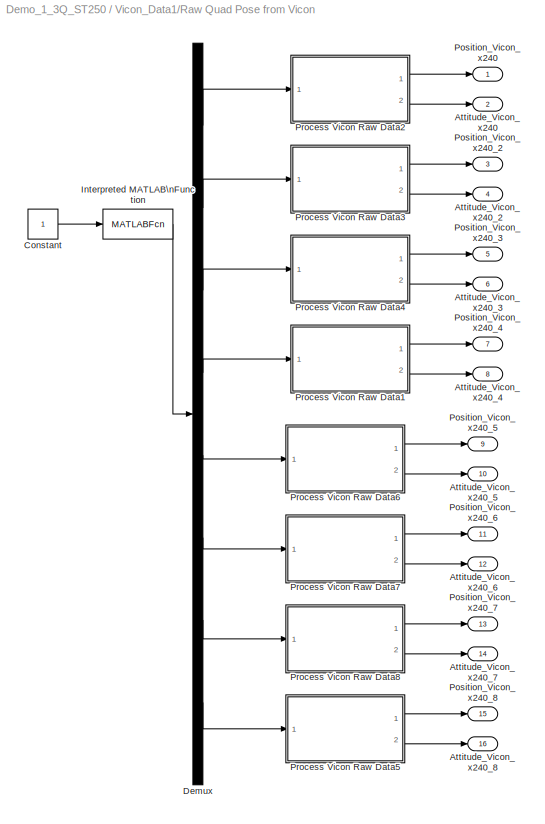
BLOCK [SubSystem] Vicon_Data1/Raw Quad Pose from Vicon
  FunctionWithSeparateData = off
  MaskHideContents = off
  MinAlgLoopOccurrences = off
  Opaque = off
  Ports = [0, 16]
  PropExecContextOutsideSubsystem = off
  RTWSystemCode = Auto
  RequestExecContextInheritance = off
  SID = 2147
BLOCK [Outport] Vicon_Data1/Raw Quad Pose from Vicon/Attitude_Vicon_x240
  IconDisplay = Port number
  Port = 2
  SID = 2456
BLOCK [Outport] Vicon_Data1/Raw Quad Pose from Vicon/Attitude_Vicon_x240_2
  IconDisplay = Port number
  Port = 4
  SID = 2458
BLOCK [Outport] Vicon_Data1/Raw Quad Pose from Vicon/Attitude_Vicon_x240_3
  IconDisplay = Port number
  Port = 6
  SID = 2460
BLOCK [Outport] Vicon_Data1/Raw Quad Pose from Vicon/Attitude_Vicon_x240_4
  IconDisplay = Port number
  Port = 8
  SID = 2462
BLOCK [Outport] Vicon_Data1/Raw Quad Pose from Vicon/Attitude_Vicon_x240_5
  IconDisplay = Port number
  Port = 10
  SID = 2464
BLOCK [Outport] Vicon_Data1/Raw Quad Pose from Vicon/Attitude_Vicon_x240_6
  IconDisplay = Port number
  Port = 12
  SID = 2466
BLOCK [Outport] Vicon_Data1/Raw Quad Pose from Vicon/Attitude_Vicon_x240_7
  IconDisplay = Port number
  Port = 14
  SID = 2468
BLOCK [Outport] Vicon_Data1/Raw Quad Pose from Vicon/Attitude_Vicon_x240_8
  IconDisplay = Port number
  Port = 16
  SID = 2470
BLOCK [Constant] Vicon_Data1/Raw Quad Pose from Vicon/Constant
  SID = 2148
BLOCK [Demux] Vicon_Data1/Raw Quad Pose from Vicon/Demux
  DisplayOption = bar
  Outputs = 8
  Ports = [1, 8]
  SID = 2149
BLOCK [MATLABFcn] Vicon_Data1/Raw Quad Pose from Vicon/Interpreted MATLAB\nFunction
  MATLABFcn = GetViconPose_Formation_8Quad
  Ports = [1, 1]
  SID = 2150
BLOCK [Outport] Vicon_Data1/Raw Quad Pose from Vicon/Position_Vicon_x240
  IconDisplay = Port number
  SID = 2455
BLOCK [Outport] Vicon_Data1/Raw Quad Pose from Vicon/Position_Vicon_x240_2
  IconDisplay = Port number
  Port = 3
  SID = 2457
BLOCK [Outport] Vicon_Data1/Raw Quad Pose from Vicon/Position_Vicon_x240_3
  IconDisplay = Port number
  Port = 5
  SID = 2459
BLOCK [Outport] Vicon_Data1/Raw Quad Pose from Vicon/Position_Vicon_x240_4
  IconDisplay = Port number
  Port = 7
  SID = 2461
BLOCK [Outport] Vicon_Data1/Raw Quad Pose from Vicon/Position_Vicon_x240_5
  IconDisplay = Port number
  Port = 9
  SID = 2463
BLOCK [Outport] Vicon_Data1/Raw Quad Pose from Vicon/Position_Vicon_x240_6
  IconDisplay = Port number
  Port = 11
  SID = 2465
BLOCK [Outport] Vicon_Data1/Raw Quad Pose from Vicon/Position_Vicon_x240_7
  IconDisplay = Port number
  Port = 13
  SID = 2467
BLOCK [Outport] Vicon_Data1/Raw Quad Pose from Vicon/Position_Vicon_x240_8
  IconDisplay = Port number
  Port = 15
  SID = 2469
BLOCK [SubSystem] Vicon_Data1/Raw Quad Pose from Vicon/Process Vicon Raw Data1
  FunctionWithSeparateData = off
  MaskHideContents = off
  MinAlgLoopOccurrences = off
  Opaque = off
  Ports = [1, 2]
  PropExecContextOutsideSubsystem = off
  RTWSystemCode = Auto
  RequestExecContextInheritance = off
  SID = 2151
BLOCK [Sum] Vicon_Data1/Raw Quad Pose from Vicon/Process Vicon Raw Data1/Add1
  InputSameDT = off
  Inputs = -+
  OutDataTypeStr = Inherit: Inherit via internal rule
  Ports = [2, 1]
  SID = 2153
  SaturateOnIntegerOverflow = off
BLOCK [Outport] Vicon_Data1/Raw Quad Pose from Vicon/Process Vicon Raw Data1/Attitude
  IconDisplay = Port number
  Port = 2
  SID = 2188
BLOCK [Constant] Vicon_Data1/Raw Quad Pose from Vicon/Process Vicon Raw Data1/Constant1
  OutDataTypeStr = double
  SID = 2154
  Value = pi
BLOCK [Demux] Vicon_Data1/Raw Quad Pose from Vicon/Process Vicon Raw Data1/Demux
  DisplayOption = bar
  Outputs = 6
  Ports = [1, 6]
  SID = 2155
BLOCK [SubSystem] Vicon_Data1/Raw Quad Pose from Vicon/Process Vicon Raw Data1/Flip_pi1
  FunctionWithSeparateData = off
  MaskDescription = Flips the inputs into the range -pi to pi
  MaskDisplay = disp('Flip_pi')
  MaskHelp = Flips the inputs into the range -pi to pi
  MaskHideContents = off
  MaskIconFrame = on
  MaskIconOpaque = on
  MaskIconRotate = none
  MaskIconUnits = autoscale
  MaskPortRotate = default
  MaskType = Flip -pi to pi
  MinAlgLoopOccurrences = off
  Opaque = off
  Ports = [1, 1]
  PropExecContextOutsideSubsystem = off
  RTWSystemCode = Auto
  RequestExecContextInheritance = off
  SID = 2156
BLOCK [Sum] Vicon_Data1/Raw Quad Pose from Vicon/Process Vicon Raw Data1/Flip_pi1/Add
  InputSameDT = off
  Inputs = -+
  OutDataTypeStr = Inherit: Inherit via internal rule
  Ports = [2, 1]
  SID = 2158
  SaturateOnIntegerOverflow = off
BLOCK [Inport] Vicon_Data1/Raw Quad Pose from Vicon/Process Vicon Raw Data1/Flip_pi1/Angle
  IconDisplay = Port number
  SID = 2157
BLOCK [Outport] Vicon_Data1/Raw Quad Pose from Vicon/Process Vicon Raw Data1/Flip_pi1/Angle_Flip
  IconDisplay = Port number
  SID = 2180
BLOCK [Reference] Vicon_Data1/Raw Quad Pose from Vicon/Process Vicon Raw Data1/Flip_pi1/Compare\nTo Constant1  REF=simulink/Logic and Bit\nOperations/Compare\nTo Constant
  FunctionWithSeparateData = off
  GeneratePreprocessorConditionals = off
  LogicOutDataTypeMode = uint8
  Ports = [1, 1]
  RTWMemSecDataConstants = Inherit from model
  RTWMemSecDataInternal = Inherit from model
  RTWMemSecDataParameters = Inherit from model
  RTWMemSecFuncExecute = Inherit from model
  RTWMemSecFuncInitTerm = Inherit from model
  SID = 2159
  ShowPortLabels = FromPortIcon
  SourceBlock = simulink/Logic and Bit\nOperations/Compare\nTo Constant
  SourceType = Compare To Constant
  SystemSampleTime = -1
  ZeroCross = off
  const = pi
  relop = >
BLOCK [Constant] Vicon_Data1/Raw Quad Pose from Vicon/Process Vicon Raw Data1/Flip_pi1/Constant
  SID = 2160
  Value = 2*pi
BLOCK [DataTypeDuplicate] Vicon_Data1/Raw Quad Pose from Vicon/Process Vicon Raw Data1/Flip_pi1/Data Type\nDuplicate
  Ports = [2]
  SID = 2161
BLOCK [SubSystem] Vicon_Data1/Raw Quad Pose from Vicon/Process Vicon Raw Data1/Flip_pi1/Flip_0_to_2pi
  FunctionWithSeparateData = off
  MaskDescription = Flips the inputs into the range zero to +2pi
  MaskDisplay = disp('Flip_0_2pi')
  MaskHelp = Flips the inputs into the range zero to +2pi
  MaskHideContents = off
  MaskIconFrame = on
  MaskIconOpaque = on
  MaskIconRotate = none
  MaskIconUnits = autoscale
  MaskPortRotate = default
  MaskType = Flip zero to 2pi
  MinAlgLoopOccurrences = off
  Opaque = off
  Ports = [1, 1]
  PropExecContextOutsideSubsystem = off
  RTWSystemCode = Auto
  RequestExecContextInheritance = off
  SID = 2162
BLOCK [Sum] Vicon_Data1/Raw Quad Pose from Vicon/Process Vicon Raw Data1/Flip_pi1/Flip_0_to_2pi/Add
  InputSameDT = off
  OutDataTypeStr = Inherit: Inherit via internal rule
  Ports = [2, 1]
  SID = 2164
  SaturateOnIntegerOverflow = off
BLOCK [Inport] Vicon_Data1/Raw Quad Pose from Vicon/Process Vicon Raw Data1/Flip_pi1/Flip_0_to_2pi/Angle
  IconDisplay = Port number
  SID = 2163
BLOCK [Outport] Vicon_Data1/Raw Quad Pose from Vicon/Process Vicon Raw Data1/Flip_pi1/Flip_0_to_2pi/Angle_Flip
  IconDisplay = Port number
  SID = 2178
BLOCK [Reference] Vicon_Data1/Raw Quad Pose from Vicon/Process Vicon Raw Data1/Flip_pi1/Flip_0_to_2pi/Compare\nTo Constant1  REF=simulink/Logic and Bit\nOperations/Compare\nTo Constant
  FunctionWithSeparateData = off
  GeneratePreprocessorConditionals = off
  LogicOutDataTypeMode = uint8
  Ports = [1, 1]
  RTWMemSecDataConstants = Inherit from model
  RTWMemSecDataInternal = Inherit from model
  RTWMemSecDataParameters = Inherit from model
  RTWMemSecFuncExecute = Inherit from model
  RTWMemSecFuncInitTerm = Inherit from model
  SID = 2165
  ShowPortLabels = FromPortIcon
  SourceBlock = simulink/Logic and Bit\nOperations/Compare\nTo Constant
  SourceType = Compare To Constant
  SystemSampleTime = -1
  ZeroCross = off
  const = 0
  relop = <
BLOCK [Constant] Vicon_Data1/Raw Quad Pose from Vicon/Process Vicon Raw Data1/Flip_pi1/Flip_0_to_2pi/Constant
  SID = 2166
  Value = 2*pi
BLOCK [DataTypeDuplicate] Vicon_Data1/Raw Quad Pose from Vicon/Process Vicon Raw Data1/Flip_pi1/Flip_0_to_2pi/Data Type\nDuplicate
  Ports = [2]
  SID = 2167
BLOCK [SubSystem] Vicon_Data1/Raw Quad Pose from Vicon/Process Vicon Raw Data1/Flip_pi1/Flip_0_to_2pi/Flip_2pi
  FunctionWithSeparateData = off
  MaskDescription = Flips the inputs into the range -2pi to +2pi
  MaskDisplay = disp('Flip_2pi')
  MaskHelp = Flips the inputs into the range -2pi to +2pi
  MaskHideContents = off
  MaskIconFrame = on
  MaskIconOpaque = on
  MaskIconRotate = none
  MaskIconUnits = autoscale
  MaskPortRotate = default
  MaskType = Flip -2pi to 2pi
  MinAlgLoopOccurrences = off
  Opaque = off
  Ports = [1, 1]
  PropExecContextOutsideSubsystem = off
  RTWSystemCode = Auto
  RequestExecContextInheritance = off
  SID = 2168
BLOCK [Inport] Vicon_Data1/Raw Quad Pose from Vicon/Process Vicon Raw Data1/Flip_pi1/Flip_0_to_2pi/Flip_2pi/Angle
  IconDisplay = Port number
  SID = 2169
BLOCK [Outport] Vicon_Data1/Raw Quad Pose from Vicon/Process Vicon Raw Data1/Flip_pi1/Flip_0_to_2pi/Flip_2pi/Angle_Flip
  IconDisplay = Port number
  SID = 2176
BLOCK [Bias] Vicon_Data1/Raw Quad Pose from Vicon/Process Vicon Raw Data1/Flip_pi1/Flip_0_to_2pi/Flip_2pi/Bias
  Bias = -2*pi
  SID = 2170
  SaturateOnIntegerOverflow = off
BLOCK [Constant] Vicon_Data1/Raw Quad Pose from Vicon/Process Vicon Raw Data1/Flip_pi1/Flip_0_to_2pi/Flip_2pi/Constant
  SID = 2171
  Value = 2*pi
BLOCK [DataTypeDuplicate] Vicon_Data1/Raw Quad Pose from Vicon/Process Vicon Raw Data1/Flip_pi1/Flip_0_to_2pi/Flip_2pi/Data Type\nDuplicate
  Ports = [2]
  SID = 2172
BLOCK [Math] Vicon_Data1/Raw Quad Pose from Vicon/Process Vicon Raw Data1/Flip_pi1/Flip_0_to_2pi/Flip_2pi/Modulo
  Operator = mod
  Ports = [2, 1]
  SID = 2173
BLOCK [Signum] Vicon_Data1/Raw Quad Pose from Vicon/Process Vicon Raw Data1/Flip_pi1/Flip_0_to_2pi/Flip_2pi/Sign1
  SID = 2174
BLOCK [Switch] Vicon_Data1/Raw Quad Pose from Vicon/Process Vicon Raw Data1/Flip_pi1/Flip_0_to_2pi/Flip_2pi/Switch
  InputSameDT = off
  SID = 2175
  SaturateOnIntegerOverflow = off
BLOCK [Switch] Vicon_Data1/Raw Quad Pose from Vicon/Process Vicon Raw Data1/Flip_pi1/Flip_0_to_2pi/Switch
  Criteria = u2 ~= 0
  InputSameDT = off
  SID = 2177
  SaturateOnIntegerOverflow = off
BLOCK [Switch] Vicon_Data1/Raw Quad Pose from Vicon/Process Vicon Raw Data1/Flip_pi1/Switch
  Criteria = u2 ~= 0
  InputSameDT = off
  SID = 2179
  SaturateOnIntegerOverflow = off
BLOCK [Gain] Vicon_Data1/Raw Quad Pose from Vicon/Process Vicon Raw Data1/Gain1
  Gain = 0.001
  OutDataTypeStr = Inherit: Inherit via internal rule
  ParamDataTypeStr = Inherit: Inherit via internal rule
  SID = 2181
  SaturateOnIntegerOverflow = off
BLOCK [Gain] Vicon_Data1/Raw Quad Pose from Vicon/Process Vicon Raw Data1/Gain3
  Gain = -1
  OutDataTypeStr = Inherit: Inherit via internal rule
  ParamDataTypeStr = Inherit: Inherit via internal rule
  SID = 2182
  SaturateOnIntegerOverflow = off
BLOCK [Gain] Vicon_Data1/Raw Quad Pose from Vicon/Process Vicon Raw Data1/Gain6
  Gain = -0.001
  OutDataTypeStr = Inherit: Inherit via internal rule
  ParamDataTypeStr = Inherit: Inherit via internal rule
  SID = 2183
  SaturateOnIntegerOverflow = off
BLOCK [Gain] Vicon_Data1/Raw Quad Pose from Vicon/Process Vicon Raw Data1/Gain7
  Gain = -0.001
  OutDataTypeStr = Inherit: Inherit via internal rule
  ParamDataTypeStr = Inherit: Inherit via internal rule
  SID = 2184
  SaturateOnIntegerOverflow = off
BLOCK [Concatenate] Vicon_Data1/Raw Quad Pose from Vicon/Process Vicon Raw Data1/Matrix\nConcatenate1
  Mode = Multidimensional array
  NumInputs = 3
  Ports = [3, 1]
  SID = 2185
BLOCK [Concatenate] Vicon_Data1/Raw Quad Pose from Vicon/Process Vicon Raw Data1/Matrix\nConcatenate13
  Mode = Multidimensional array
  NumInputs = 3
  Ports = [3, 1]
  SID = 2186
BLOCK [Outport] Vicon_Data1/Raw Quad Pose from Vicon/Process Vicon Raw Data1/Position
  IconDisplay = Port number
  SID = 2187
BLOCK [Inport] Vicon_Data1/Raw Quad Pose from Vicon/Process Vicon Raw Data1/Vicon Raw
  IconDisplay = Port number
  SID = 2152
BLOCK [SubSystem] Vicon_Data1/Raw Quad Pose from Vicon/Process Vicon Raw Data2
  FunctionWithSeparateData = off
  MaskHideContents = off
  MinAlgLoopOccurrences = off
  Opaque = off
  Ports = [1, 2]
  PropExecContextOutsideSubsystem = off
  RTWSystemCode = Auto
  RequestExecContextInheritance = off
  SID = 2189
BLOCK [Sum] Vicon_Data1/Raw Quad Pose from Vicon/Process Vicon Raw Data2/Add1
  InputSameDT = off
  Inputs = -+
  OutDataTypeStr = Inherit: Inherit via internal rule
  Ports = [2, 1]
  SID = 2191
  SaturateOnIntegerOverflow = off
BLOCK [Outport] Vicon_Data1/Raw Quad Pose from Vicon/Process Vicon Raw Data2/Attitude
  IconDisplay = Port number
  Port = 2
  SID = 2226
BLOCK [Constant] Vicon_Data1/Raw Quad Pose from Vicon/Process Vicon Raw Data2/Constant1
  OutDataTypeStr = double
  SID = 2192
  Value = pi
BLOCK [Demux] Vicon_Data1/Raw Quad Pose from Vicon/Process Vicon Raw Data2/Demux
  DisplayOption = bar
  Outputs = 6
  Ports = [1, 6]
  SID = 2193
BLOCK [SubSystem] Vicon_Data1/Raw Quad Pose from Vicon/Process Vicon Raw Data2/Flip_pi1
  FunctionWithSeparateData = off
  MaskDescription = Flips the inputs into the range -pi to pi
  MaskDisplay = disp('Flip_pi')
  MaskHelp = Flips the inputs into the range -pi to pi
  MaskHideContents = off
  MaskIconFrame = on
  MaskIconOpaque = on
  MaskIconRotate = none
  MaskIconUnits = autoscale
  MaskPortRotate = default
  MaskType = Flip -pi to pi
  MinAlgLoopOccurrences = off
  Opaque = off
  Ports = [1, 1]
  PropExecContextOutsideSubsystem = off
  RTWSystemCode = Auto
  RequestExecContextInheritance = off
  SID = 2194
BLOCK [Sum] Vicon_Data1/Raw Quad Pose from Vicon/Process Vicon Raw Data2/Flip_pi1/Add
  InputSameDT = off
  Inputs = -+
  OutDataTypeStr = Inherit: Inherit via internal rule
  Ports = [2, 1]
  SID = 2196
  SaturateOnIntegerOverflow = off
BLOCK [Inport] Vicon_Data1/Raw Quad Pose from Vicon/Process Vicon Raw Data2/Flip_pi1/Angle
  IconDisplay = Port number
  SID = 2195
BLOCK [Outport] Vicon_Data1/Raw Quad Pose from Vicon/Process Vicon Raw Data2/Flip_pi1/Angle_Flip
  IconDisplay = Port number
  SID = 2218
BLOCK [Reference] Vicon_Data1/Raw Quad Pose from Vicon/Process Vicon Raw Data2/Flip_pi1/Compare\nTo Constant1  REF=simulink/Logic and Bit\nOperations/Compare\nTo Constant
  FunctionWithSeparateData = off
  GeneratePreprocessorConditionals = off
  LogicOutDataTypeMode = uint8
  Ports = [1, 1]
  RTWMemSecDataConstants = Inherit from model
  RTWMemSecDataInternal = Inherit from model
  RTWMemSecDataParameters = Inherit from model
  RTWMemSecFuncExecute = Inherit from model
  RTWMemSecFuncInitTerm = Inherit from model
  SID = 2197
  ShowPortLabels = FromPortIcon
  SourceBlock = simulink/Logic and Bit\nOperations/Compare\nTo Constant
  SourceType = Compare To Constant
  SystemSampleTime = -1
  ZeroCross = off
  const = pi
  relop = >
BLOCK [Constant] Vicon_Data1/Raw Quad Pose from Vicon/Process Vicon Raw Data2/Flip_pi1/Constant
  SID = 2198
  Value = 2*pi
BLOCK [DataTypeDuplicate] Vicon_Data1/Raw Quad Pose from Vicon/Process Vicon Raw Data2/Flip_pi1/Data Type\nDuplicate
  Ports = [2]
  SID = 2199
BLOCK [SubSystem] Vicon_Data1/Raw Quad Pose from Vicon/Process Vicon Raw Data2/Flip_pi1/Flip_0_to_2pi
  FunctionWithSeparateData = off
  MaskDescription = Flips the inputs into the range zero to +2pi
  MaskDisplay = disp('Flip_0_2pi')
  MaskHelp = Flips the inputs into the range zero to +2pi
  MaskHideContents = off
  MaskIconFrame = on
  MaskIconOpaque = on
  MaskIconRotate = none
  MaskIconUnits = autoscale
  MaskPortRotate = default
  MaskType = Flip zero to 2pi
  MinAlgLoopOccurrences = off
  Opaque = off
  Ports = [1, 1]
  PropExecContextOutsideSubsystem = off
  RTWSystemCode = Auto
  RequestExecContextInheritance = off
  SID = 2200
BLOCK [Sum] Vicon_Data1/Raw Quad Pose from Vicon/Process Vicon Raw Data2/Flip_pi1/Flip_0_to_2pi/Add
  InputSameDT = off
  OutDataTypeStr = Inherit: Inherit via internal rule
  Ports = [2, 1]
  SID = 2202
  SaturateOnIntegerOverflow = off
BLOCK [Inport] Vicon_Data1/Raw Quad Pose from Vicon/Process Vicon Raw Data2/Flip_pi1/Flip_0_to_2pi/Angle
  IconDisplay = Port number
  SID = 2201
BLOCK [Outport] Vicon_Data1/Raw Quad Pose from Vicon/Process Vicon Raw Data2/Flip_pi1/Flip_0_to_2pi/Angle_Flip
  IconDisplay = Port number
  SID = 2216
BLOCK [Reference] Vicon_Data1/Raw Quad Pose from Vicon/Process Vicon Raw Data2/Flip_pi1/Flip_0_to_2pi/Compare\nTo Constant1  REF=simulink/Logic and Bit\nOperations/Compare\nTo Constant
  FunctionWithSeparateData = off
  GeneratePreprocessorConditionals = off
  LogicOutDataTypeMode = uint8
  Ports = [1, 1]
  RTWMemSecDataConstants = Inherit from model
  RTWMemSecDataInternal = Inherit from model
  RTWMemSecDataParameters = Inherit from model
  RTWMemSecFuncExecute = Inherit from model
  RTWMemSecFuncInitTerm = Inherit from model
  SID = 2203
  ShowPortLabels = FromPortIcon
  SourceBlock = simulink/Logic and Bit\nOperations/Compare\nTo Constant
  SourceType = Compare To Constant
  SystemSampleTime = -1
  ZeroCross = off
  const = 0
  relop = <
BLOCK [Constant] Vicon_Data1/Raw Quad Pose from Vicon/Process Vicon Raw Data2/Flip_pi1/Flip_0_to_2pi/Constant
  SID = 2204
  Value = 2*pi
BLOCK [DataTypeDuplicate] Vicon_Data1/Raw Quad Pose from Vicon/Process Vicon Raw Data2/Flip_pi1/Flip_0_to_2pi/Data Type\nDuplicate
  Ports = [2]
  SID = 2205
BLOCK [SubSystem] Vicon_Data1/Raw Quad Pose from Vicon/Process Vicon Raw Data2/Flip_pi1/Flip_0_to_2pi/Flip_2pi
  FunctionWithSeparateData = off
  MaskDescription = Flips the inputs into the range -2pi to +2pi
  MaskDisplay = disp('Flip_2pi')
  MaskHelp = Flips the inputs into the range -2pi to +2pi
  MaskHideContents = off
  MaskIconFrame = on
  MaskIconOpaque = on
  MaskIconRotate = none
  MaskIconUnits = autoscale
  MaskPortRotate = default
  MaskType = Flip -2pi to 2pi
  MinAlgLoopOccurrences = off
  Opaque = off
  Ports = [1, 1]
  PropExecContextOutsideSubsystem = off
  RTWSystemCode = Auto
  RequestExecContextInheritance = off
  SID = 2206
BLOCK [Inport] Vicon_Data1/Raw Quad Pose from Vicon/Process Vicon Raw Data2/Flip_pi1/Flip_0_to_2pi/Flip_2pi/Angle
  IconDisplay = Port number
  SID = 2207
BLOCK [Outport] Vicon_Data1/Raw Quad Pose from Vicon/Process Vicon Raw Data2/Flip_pi1/Flip_0_to_2pi/Flip_2pi/Angle_Flip
  IconDisplay = Port number
  SID = 2214
BLOCK [Bias] Vicon_Data1/Raw Quad Pose from Vicon/Process Vicon Raw Data2/Flip_pi1/Flip_0_to_2pi/Flip_2pi/Bias
  Bias = -2*pi
  SID = 2208
  SaturateOnIntegerOverflow = off
BLOCK [Constant] Vicon_Data1/Raw Quad Pose from Vicon/Process Vicon Raw Data2/Flip_pi1/Flip_0_to_2pi/Flip_2pi/Constant
  SID = 2209
  Value = 2*pi
BLOCK [DataTypeDuplicate] Vicon_Data1/Raw Quad Pose from Vicon/Process Vicon Raw Data2/Flip_pi1/Flip_0_to_2pi/Flip_2pi/Data Type\nDuplicate
  Ports = [2]
  SID = 2210
BLOCK [Math] Vicon_Data1/Raw Quad Pose from Vicon/Process Vicon Raw Data2/Flip_pi1/Flip_0_to_2pi/Flip_2pi/Modulo
  Operator = mod
  Ports = [2, 1]
  SID = 2211
BLOCK [Signum] Vicon_Data1/Raw Quad Pose from Vicon/Process Vicon Raw Data2/Flip_pi1/Flip_0_to_2pi/Flip_2pi/Sign1
  SID = 2212
BLOCK [Switch] Vicon_Data1/Raw Quad Pose from Vicon/Process Vicon Raw Data2/Flip_pi1/Flip_0_to_2pi/Flip_2pi/Switch
  InputSameDT = off
  SID = 2213
  SaturateOnIntegerOverflow = off
BLOCK [Switch] Vicon_Data1/Raw Quad Pose from Vicon/Process Vicon Raw Data2/Flip_pi1/Flip_0_to_2pi/Switch
  Criteria = u2 ~= 0
  InputSameDT = off
  SID = 2215
  SaturateOnIntegerOverflow = off
BLOCK [Switch] Vicon_Data1/Raw Quad Pose from Vicon/Process Vicon Raw Data2/Flip_pi1/Switch
  Criteria = u2 ~= 0
  InputSameDT = off
  SID = 2217
  SaturateOnIntegerOverflow = off
BLOCK [Gain] Vicon_Data1/Raw Quad Pose from Vicon/Process Vicon Raw Data2/Gain1
  Gain = 0.001
  OutDataTypeStr = Inherit: Inherit via internal rule
  ParamDataTypeStr = Inherit: Inherit via internal rule
  SID = 2219
  SaturateOnIntegerOverflow = off
BLOCK [Gain] Vicon_Data1/Raw Quad Pose from Vicon/Process Vicon Raw Data2/Gain3
  Gain = -1
  OutDataTypeStr = Inherit: Inherit via internal rule
  ParamDataTypeStr = Inherit: Inherit via internal rule
  SID = 2220
  SaturateOnIntegerOverflow = off
BLOCK [Gain] Vicon_Data1/Raw Quad Pose from Vicon/Process Vicon Raw Data2/Gain6
  Gain = -0.001
  OutDataTypeStr = Inherit: Inherit via internal rule
  ParamDataTypeStr = Inherit: Inherit via internal rule
  SID = 2221
  SaturateOnIntegerOverflow = off
BLOCK [Gain] Vicon_Data1/Raw Quad Pose from Vicon/Process Vicon Raw Data2/Gain7
  Gain = -0.001
  OutDataTypeStr = Inherit: Inherit via internal rule
  ParamDataTypeStr = Inherit: Inherit via internal rule
  SID = 2222
  SaturateOnIntegerOverflow = off
BLOCK [Concatenate] Vicon_Data1/Raw Quad Pose from Vicon/Process Vicon Raw Data2/Matrix\nConcatenate1
  Mode = Multidimensional array
  NumInputs = 3
  Ports = [3, 1]
  SID = 2223
BLOCK [Concatenate] Vicon_Data1/Raw Quad Pose from Vicon/Process Vicon Raw Data2/Matrix\nConcatenate13
  Mode = Multidimensional array
  NumInputs = 3
  Ports = [3, 1]
  SID = 2224
BLOCK [Outport] Vicon_Data1/Raw Quad Pose from Vicon/Process Vicon Raw Data2/Position
  IconDisplay = Port number
  SID = 2225
BLOCK [Inport] Vicon_Data1/Raw Quad Pose from Vicon/Process Vicon Raw Data2/Vicon Raw
  IconDisplay = Port number
  SID = 2190
BLOCK [SubSystem] Vicon_Data1/Raw Quad Pose from Vicon/Process Vicon Raw Data3
  FunctionWithSeparateData = off
  MaskHideContents = off
  MinAlgLoopOccurrences = off
  Opaque = off
  Ports = [1, 2]
  PropExecContextOutsideSubsystem = off
  RTWSystemCode = Auto
  RequestExecContextInheritance = off
  SID = 2227
BLOCK [Sum] Vicon_Data1/Raw Quad Pose from Vicon/Process Vicon Raw Data3/Add1
  InputSameDT = off
  Inputs = -+
  OutDataTypeStr = Inherit: Inherit via internal rule
  Ports = [2, 1]
  SID = 2229
  SaturateOnIntegerOverflow = off
BLOCK [Outport] Vicon_Data1/Raw Quad Pose from Vicon/Process Vicon Raw Data3/Attitude
  IconDisplay = Port number
  Port = 2
  SID = 2264
BLOCK [Constant] Vicon_Data1/Raw Quad Pose from Vicon/Process Vicon Raw Data3/Constant1
  OutDataTypeStr = double
  SID = 2230
  Value = pi
BLOCK [Demux] Vicon_Data1/Raw Quad Pose from Vicon/Process Vicon Raw Data3/Demux
  DisplayOption = bar
  Outputs = 6
  Ports = [1, 6]
  SID = 2231
BLOCK [SubSystem] Vicon_Data1/Raw Quad Pose from Vicon/Process Vicon Raw Data3/Flip_pi1
  FunctionWithSeparateData = off
  MaskDescription = Flips the inputs into the range -pi to pi
  MaskDisplay = disp('Flip_pi')
  MaskHelp = Flips the inputs into the range -pi to pi
  MaskHideContents = off
  MaskIconFrame = on
  MaskIconOpaque = on
  MaskIconRotate = none
  MaskIconUnits = autoscale
  MaskPortRotate = default
  MaskType = Flip -pi to pi
  MinAlgLoopOccurrences = off
  Opaque = off
  Ports = [1, 1]
  PropExecContextOutsideSubsystem = off
  RTWSystemCode = Auto
  RequestExecContextInheritance = off
  SID = 2232
BLOCK [Sum] Vicon_Data1/Raw Quad Pose from Vicon/Process Vicon Raw Data3/Flip_pi1/Add
  InputSameDT = off
  Inputs = -+
  OutDataTypeStr = Inherit: Inherit via internal rule
  Ports = [2, 1]
  SID = 2234
  SaturateOnIntegerOverflow = off
BLOCK [Inport] Vicon_Data1/Raw Quad Pose from Vicon/Process Vicon Raw Data3/Flip_pi1/Angle
  IconDisplay = Port number
  SID = 2233
BLOCK [Outport] Vicon_Data1/Raw Quad Pose from Vicon/Process Vicon Raw Data3/Flip_pi1/Angle_Flip
  IconDisplay = Port number
  SID = 2256
BLOCK [Reference] Vicon_Data1/Raw Quad Pose from Vicon/Process Vicon Raw Data3/Flip_pi1/Compare\nTo Constant1  REF=simulink/Logic and Bit\nOperations/Compare\nTo Constant
  FunctionWithSeparateData = off
  GeneratePreprocessorConditionals = off
  LogicOutDataTypeMode = uint8
  Ports = [1, 1]
  RTWMemSecDataConstants = Inherit from model
  RTWMemSecDataInternal = Inherit from model
  RTWMemSecDataParameters = Inherit from model
  RTWMemSecFuncExecute = Inherit from model
  RTWMemSecFuncInitTerm = Inherit from model
  SID = 2235
  ShowPortLabels = FromPortIcon
  SourceBlock = simulink/Logic and Bit\nOperations/Compare\nTo Constant
  SourceType = Compare To Constant
  SystemSampleTime = -1
  ZeroCross = off
  const = pi
  relop = >
BLOCK [Constant] Vicon_Data1/Raw Quad Pose from Vicon/Process Vicon Raw Data3/Flip_pi1/Constant
  SID = 2236
  Value = 2*pi
BLOCK [DataTypeDuplicate] Vicon_Data1/Raw Quad Pose from Vicon/Process Vicon Raw Data3/Flip_pi1/Data Type\nDuplicate
  Ports = [2]
  SID = 2237
BLOCK [SubSystem] Vicon_Data1/Raw Quad Pose from Vicon/Process Vicon Raw Data3/Flip_pi1/Flip_0_to_2pi
  FunctionWithSeparateData = off
  MaskDescription = Flips the inputs into the range zero to +2pi
  MaskDisplay = disp('Flip_0_2pi')
  MaskHelp = Flips the inputs into the range zero to +2pi
  MaskHideContents = off
  MaskIconFrame = on
  MaskIconOpaque = on
  MaskIconRotate = none
  MaskIconUnits = autoscale
  MaskPortRotate = default
  MaskType = Flip zero to 2pi
  MinAlgLoopOccurrences = off
  Opaque = off
  Ports = [1, 1]
  PropExecContextOutsideSubsystem = off
  RTWSystemCode = Auto
  RequestExecContextInheritance = off
  SID = 2238
BLOCK [Sum] Vicon_Data1/Raw Quad Pose from Vicon/Process Vicon Raw Data3/Flip_pi1/Flip_0_to_2pi/Add
  InputSameDT = off
  OutDataTypeStr = Inherit: Inherit via internal rule
  Ports = [2, 1]
  SID = 2240
  SaturateOnIntegerOverflow = off
BLOCK [Inport] Vicon_Data1/Raw Quad Pose from Vicon/Process Vicon Raw Data3/Flip_pi1/Flip_0_to_2pi/Angle
  IconDisplay = Port number
  SID = 2239
BLOCK [Outport] Vicon_Data1/Raw Quad Pose from Vicon/Process Vicon Raw Data3/Flip_pi1/Flip_0_to_2pi/Angle_Flip
  IconDisplay = Port number
  SID = 2254
BLOCK [Reference] Vicon_Data1/Raw Quad Pose from Vicon/Process Vicon Raw Data3/Flip_pi1/Flip_0_to_2pi/Compare\nTo Constant1  REF=simulink/Logic and Bit\nOperations/Compare\nTo Constant
  FunctionWithSeparateData = off
  GeneratePreprocessorConditionals = off
  LogicOutDataTypeMode = uint8
  Ports = [1, 1]
  RTWMemSecDataConstants = Inherit from model
  RTWMemSecDataInternal = Inherit from model
  RTWMemSecDataParameters = Inherit from model
  RTWMemSecFuncExecute = Inherit from model
  RTWMemSecFuncInitTerm = Inherit from model
  SID = 2241
  ShowPortLabels = FromPortIcon
  SourceBlock = simulink/Logic and Bit\nOperations/Compare\nTo Constant
  SourceType = Compare To Constant
  SystemSampleTime = -1
  ZeroCross = off
  const = 0
  relop = <
BLOCK [Constant] Vicon_Data1/Raw Quad Pose from Vicon/Process Vicon Raw Data3/Flip_pi1/Flip_0_to_2pi/Constant
  SID = 2242
  Value = 2*pi
BLOCK [DataTypeDuplicate] Vicon_Data1/Raw Quad Pose from Vicon/Process Vicon Raw Data3/Flip_pi1/Flip_0_to_2pi/Data Type\nDuplicate
  Ports = [2]
  SID = 2243
BLOCK [SubSystem] Vicon_Data1/Raw Quad Pose from Vicon/Process Vicon Raw Data3/Flip_pi1/Flip_0_to_2pi/Flip_2pi
  FunctionWithSeparateData = off
  MaskDescription = Flips the inputs into the range -2pi to +2pi
  MaskDisplay = disp('Flip_2pi')
  MaskHelp = Flips the inputs into the range -2pi to +2pi
  MaskHideContents = off
  MaskIconFrame = on
  MaskIconOpaque = on
  MaskIconRotate = none
  MaskIconUnits = autoscale
  MaskPortRotate = default
  MaskType = Flip -2pi to 2pi
  MinAlgLoopOccurrences = off
  Opaque = off
  Ports = [1, 1]
  PropExecContextOutsideSubsystem = off
  RTWSystemCode = Auto
  RequestExecContextInheritance = off
  SID = 2244
BLOCK [Inport] Vicon_Data1/Raw Quad Pose from Vicon/Process Vicon Raw Data3/Flip_pi1/Flip_0_to_2pi/Flip_2pi/Angle
  IconDisplay = Port number
  SID = 2245
BLOCK [Outport] Vicon_Data1/Raw Quad Pose from Vicon/Process Vicon Raw Data3/Flip_pi1/Flip_0_to_2pi/Flip_2pi/Angle_Flip
  IconDisplay = Port number
  SID = 2252
BLOCK [Bias] Vicon_Data1/Raw Quad Pose from Vicon/Process Vicon Raw Data3/Flip_pi1/Flip_0_to_2pi/Flip_2pi/Bias
  Bias = -2*pi
  SID = 2246
  SaturateOnIntegerOverflow = off
BLOCK [Constant] Vicon_Data1/Raw Quad Pose from Vicon/Process Vicon Raw Data3/Flip_pi1/Flip_0_to_2pi/Flip_2pi/Constant
  SID = 2247
  Value = 2*pi
BLOCK [DataTypeDuplicate] Vicon_Data1/Raw Quad Pose from Vicon/Process Vicon Raw Data3/Flip_pi1/Flip_0_to_2pi/Flip_2pi/Data Type\nDuplicate
  Ports = [2]
  SID = 2248
BLOCK [Math] Vicon_Data1/Raw Quad Pose from Vicon/Process Vicon Raw Data3/Flip_pi1/Flip_0_to_2pi/Flip_2pi/Modulo
  Operator = mod
  Ports = [2, 1]
  SID = 2249
BLOCK [Signum] Vicon_Data1/Raw Quad Pose from Vicon/Process Vicon Raw Data3/Flip_pi1/Flip_0_to_2pi/Flip_2pi/Sign1
  SID = 2250
BLOCK [Switch] Vicon_Data1/Raw Quad Pose from Vicon/Process Vicon Raw Data3/Flip_pi1/Flip_0_to_2pi/Flip_2pi/Switch
  InputSameDT = off
  SID = 2251
  SaturateOnIntegerOverflow = off
BLOCK [Switch] Vicon_Data1/Raw Quad Pose from Vicon/Process Vicon Raw Data3/Flip_pi1/Flip_0_to_2pi/Switch
  Criteria = u2 ~= 0
  InputSameDT = off
  SID = 2253
  SaturateOnIntegerOverflow = off
BLOCK [Switch] Vicon_Data1/Raw Quad Pose from Vicon/Process Vicon Raw Data3/Flip_pi1/Switch
  Criteria = u2 ~= 0
  InputSameDT = off
  SID = 2255
  SaturateOnIntegerOverflow = off
BLOCK [Gain] Vicon_Data1/Raw Quad Pose from Vicon/Process Vicon Raw Data3/Gain1
  Gain = 0.001
  OutDataTypeStr = Inherit: Inherit via internal rule
  ParamDataTypeStr = Inherit: Inherit via internal rule
  SID = 2257
  SaturateOnIntegerOverflow = off
BLOCK [Gain] Vicon_Data1/Raw Quad Pose from Vicon/Process Vicon Raw Data3/Gain3
  Gain = -1
  OutDataTypeStr = Inherit: Inherit via internal rule
  ParamDataTypeStr = Inherit: Inherit via internal rule
  SID = 2258
  SaturateOnIntegerOverflow = off
BLOCK [Gain] Vicon_Data1/Raw Quad Pose from Vicon/Process Vicon Raw Data3/Gain6
  Gain = -0.001
  OutDataTypeStr = Inherit: Inherit via internal rule
  ParamDataTypeStr = Inherit: Inherit via internal rule
  SID = 2259
  SaturateOnIntegerOverflow = off
BLOCK [Gain] Vicon_Data1/Raw Quad Pose from Vicon/Process Vicon Raw Data3/Gain7
  Gain = -0.001
  OutDataTypeStr = Inherit: Inherit via internal rule
  ParamDataTypeStr = Inherit: Inherit via internal rule
  SID = 2260
  SaturateOnIntegerOverflow = off
BLOCK [Concatenate] Vicon_Data1/Raw Quad Pose from Vicon/Process Vicon Raw Data3/Matrix\nConcatenate1
  Mode = Multidimensional array
  NumInputs = 3
  Ports = [3, 1]
  SID = 2261
BLOCK [Concatenate] Vicon_Data1/Raw Quad Pose from Vicon/Process Vicon Raw Data3/Matrix\nConcatenate13
  Mode = Multidimensional array
  NumInputs = 3
  Ports = [3, 1]
  SID = 2262
BLOCK [Outport] Vicon_Data1/Raw Quad Pose from Vicon/Process Vicon Raw Data3/Position
  IconDisplay = Port number
  SID = 2263
BLOCK [Inport] Vicon_Data1/Raw Quad Pose from Vicon/Process Vicon Raw Data3/Vicon Raw
  IconDisplay = Port number
  SID = 2228
BLOCK [SubSystem] Vicon_Data1/Raw Quad Pose from Vicon/Process Vicon Raw Data4
  FunctionWithSeparateData = off
  MaskHideContents = off
  MinAlgLoopOccurrences = off
  Opaque = off
  Ports = [1, 2]
  PropExecContextOutsideSubsystem = off
  RTWSystemCode = Auto
  RequestExecContextInheritance = off
  SID = 2265
BLOCK [Sum] Vicon_Data1/Raw Quad Pose from Vicon/Process Vicon Raw Data4/Add1
  InputSameDT = off
  Inputs = -+
  OutDataTypeStr = Inherit: Inherit via internal rule
  Ports = [2, 1]
  SID = 2267
  SaturateOnIntegerOverflow = off
BLOCK [Outport] Vicon_Data1/Raw Quad Pose from Vicon/Process Vicon Raw Data4/Attitude
  IconDisplay = Port number
  Port = 2
  SID = 2302
BLOCK [Constant] Vicon_Data1/Raw Quad Pose from Vicon/Process Vicon Raw Data4/Constant1
  OutDataTypeStr = double
  SID = 2268
  Value = pi
BLOCK [Demux] Vicon_Data1/Raw Quad Pose from Vicon/Process Vicon Raw Data4/Demux
  DisplayOption = bar
  Outputs = 6
  Ports = [1, 6]
  SID = 2269
BLOCK [SubSystem] Vicon_Data1/Raw Quad Pose from Vicon/Process Vicon Raw Data4/Flip_pi1
  FunctionWithSeparateData = off
  MaskDescription = Flips the inputs into the range -pi to pi
  MaskDisplay = disp('Flip_pi')
  MaskHelp = Flips the inputs into the range -pi to pi
  MaskHideContents = off
  MaskIconFrame = on
  MaskIconOpaque = on
  MaskIconRotate = none
  MaskIconUnits = autoscale
  MaskPortRotate = default
  MaskType = Flip -pi to pi
  MinAlgLoopOccurrences = off
  Opaque = off
  Ports = [1, 1]
  PropExecContextOutsideSubsystem = off
  RTWSystemCode = Auto
  RequestExecContextInheritance = off
  SID = 2270
BLOCK [Sum] Vicon_Data1/Raw Quad Pose from Vicon/Process Vicon Raw Data4/Flip_pi1/Add
  InputSameDT = off
  Inputs = -+
  OutDataTypeStr = Inherit: Inherit via internal rule
  Ports = [2, 1]
  SID = 2272
  SaturateOnIntegerOverflow = off
BLOCK [Inport] Vicon_Data1/Raw Quad Pose from Vicon/Process Vicon Raw Data4/Flip_pi1/Angle
  IconDisplay = Port number
  SID = 2271
BLOCK [Outport] Vicon_Data1/Raw Quad Pose from Vicon/Process Vicon Raw Data4/Flip_pi1/Angle_Flip
  IconDisplay = Port number
  SID = 2294
BLOCK [Reference] Vicon_Data1/Raw Quad Pose from Vicon/Process Vicon Raw Data4/Flip_pi1/Compare\nTo Constant1  REF=simulink/Logic and Bit\nOperations/Compare\nTo Constant
  FunctionWithSeparateData = off
  GeneratePreprocessorConditionals = off
  LogicOutDataTypeMode = uint8
  Ports = [1, 1]
  RTWMemSecDataConstants = Inherit from model
  RTWMemSecDataInternal = Inherit from model
  RTWMemSecDataParameters = Inherit from model
  RTWMemSecFuncExecute = Inherit from model
  RTWMemSecFuncInitTerm = Inherit from model
  SID = 2273
  ShowPortLabels = FromPortIcon
  SourceBlock = simulink/Logic and Bit\nOperations/Compare\nTo Constant
  SourceType = Compare To Constant
  SystemSampleTime = -1
  ZeroCross = off
  const = pi
  relop = >
BLOCK [Constant] Vicon_Data1/Raw Quad Pose from Vicon/Process Vicon Raw Data4/Flip_pi1/Constant
  SID = 2274
  Value = 2*pi
BLOCK [DataTypeDuplicate] Vicon_Data1/Raw Quad Pose from Vicon/Process Vicon Raw Data4/Flip_pi1/Data Type\nDuplicate
  Ports = [2]
  SID = 2275
BLOCK [SubSystem] Vicon_Data1/Raw Quad Pose from Vicon/Process Vicon Raw Data4/Flip_pi1/Flip_0_to_2pi
  FunctionWithSeparateData = off
  MaskDescription = Flips the inputs into the range zero to +2pi
  MaskDisplay = disp('Flip_0_2pi')
  MaskHelp = Flips the inputs into the range zero to +2pi
  MaskHideContents = off
  MaskIconFrame = on
  MaskIconOpaque = on
  MaskIconRotate = none
  MaskIconUnits = autoscale
  MaskPortRotate = default
  MaskType = Flip zero to 2pi
  MinAlgLoopOccurrences = off
  Opaque = off
  Ports = [1, 1]
  PropExecContextOutsideSubsystem = off
  RTWSystemCode = Auto
  RequestExecContextInheritance = off
  SID = 2276
BLOCK [Sum] Vicon_Data1/Raw Quad Pose from Vicon/Process Vicon Raw Data4/Flip_pi1/Flip_0_to_2pi/Add
  InputSameDT = off
  OutDataTypeStr = Inherit: Inherit via internal rule
  Ports = [2, 1]
  SID = 2278
  SaturateOnIntegerOverflow = off
BLOCK [Inport] Vicon_Data1/Raw Quad Pose from Vicon/Process Vicon Raw Data4/Flip_pi1/Flip_0_to_2pi/Angle
  IconDisplay = Port number
  SID = 2277
BLOCK [Outport] Vicon_Data1/Raw Quad Pose from Vicon/Process Vicon Raw Data4/Flip_pi1/Flip_0_to_2pi/Angle_Flip
  IconDisplay = Port number
  SID = 2292
BLOCK [Reference] Vicon_Data1/Raw Quad Pose from Vicon/Process Vicon Raw Data4/Flip_pi1/Flip_0_to_2pi/Compare\nTo Constant1  REF=simulink/Logic and Bit\nOperations/Compare\nTo Constant
  FunctionWithSeparateData = off
  GeneratePreprocessorConditionals = off
  LogicOutDataTypeMode = uint8
  Ports = [1, 1]
  RTWMemSecDataConstants = Inherit from model
  RTWMemSecDataInternal = Inherit from model
  RTWMemSecDataParameters = Inherit from model
  RTWMemSecFuncExecute = Inherit from model
  RTWMemSecFuncInitTerm = Inherit from model
  SID = 2279
  ShowPortLabels = FromPortIcon
  SourceBlock = simulink/Logic and Bit\nOperations/Compare\nTo Constant
  SourceType = Compare To Constant
  SystemSampleTime = -1
  ZeroCross = off
  const = 0
  relop = <
BLOCK [Constant] Vicon_Data1/Raw Quad Pose from Vicon/Process Vicon Raw Data4/Flip_pi1/Flip_0_to_2pi/Constant
  SID = 2280
  Value = 2*pi
BLOCK [DataTypeDuplicate] Vicon_Data1/Raw Quad Pose from Vicon/Process Vicon Raw Data4/Flip_pi1/Flip_0_to_2pi/Data Type\nDuplicate
  Ports = [2]
  SID = 2281
BLOCK [SubSystem] Vicon_Data1/Raw Quad Pose from Vicon/Process Vicon Raw Data4/Flip_pi1/Flip_0_to_2pi/Flip_2pi
  FunctionWithSeparateData = off
  MaskDescription = Flips the inputs into the range -2pi to +2pi
  MaskDisplay = disp('Flip_2pi')
  MaskHelp = Flips the inputs into the range -2pi to +2pi
  MaskHideContents = off
  MaskIconFrame = on
  MaskIconOpaque = on
  MaskIconRotate = none
  MaskIconUnits = autoscale
  MaskPortRotate = default
  MaskType = Flip -2pi to 2pi
  MinAlgLoopOccurrences = off
  Opaque = off
  Ports = [1, 1]
  PropExecContextOutsideSubsystem = off
  RTWSystemCode = Auto
  RequestExecContextInheritance = off
  SID = 2282
BLOCK [Inport] Vicon_Data1/Raw Quad Pose from Vicon/Process Vicon Raw Data4/Flip_pi1/Flip_0_to_2pi/Flip_2pi/Angle
  IconDisplay = Port number
  SID = 2283
BLOCK [Outport] Vicon_Data1/Raw Quad Pose from Vicon/Process Vicon Raw Data4/Flip_pi1/Flip_0_to_2pi/Flip_2pi/Angle_Flip
  IconDisplay = Port number
  SID = 2290
BLOCK [Bias] Vicon_Data1/Raw Quad Pose from Vicon/Process Vicon Raw Data4/Flip_pi1/Flip_0_to_2pi/Flip_2pi/Bias
  Bias = -2*pi
  SID = 2284
  SaturateOnIntegerOverflow = off
BLOCK [Constant] Vicon_Data1/Raw Quad Pose from Vicon/Process Vicon Raw Data4/Flip_pi1/Flip_0_to_2pi/Flip_2pi/Constant
  SID = 2285
  Value = 2*pi
BLOCK [DataTypeDuplicate] Vicon_Data1/Raw Quad Pose from Vicon/Process Vicon Raw Data4/Flip_pi1/Flip_0_to_2pi/Flip_2pi/Data Type\nDuplicate
  Ports = [2]
  SID = 2286
BLOCK [Math] Vicon_Data1/Raw Quad Pose from Vicon/Process Vicon Raw Data4/Flip_pi1/Flip_0_to_2pi/Flip_2pi/Modulo
  Operator = mod
  Ports = [2, 1]
  SID = 2287
BLOCK [Signum] Vicon_Data1/Raw Quad Pose from Vicon/Process Vicon Raw Data4/Flip_pi1/Flip_0_to_2pi/Flip_2pi/Sign1
  SID = 2288
BLOCK [Switch] Vicon_Data1/Raw Quad Pose from Vicon/Process Vicon Raw Data4/Flip_pi1/Flip_0_to_2pi/Flip_2pi/Switch
  InputSameDT = off
  SID = 2289
  SaturateOnIntegerOverflow = off
BLOCK [Switch] Vicon_Data1/Raw Quad Pose from Vicon/Process Vicon Raw Data4/Flip_pi1/Flip_0_to_2pi/Switch
  Criteria = u2 ~= 0
  InputSameDT = off
  SID = 2291
  SaturateOnIntegerOverflow = off
BLOCK [Switch] Vicon_Data1/Raw Quad Pose from Vicon/Process Vicon Raw Data4/Flip_pi1/Switch
  Criteria = u2 ~= 0
  InputSameDT = off
  SID = 2293
  SaturateOnIntegerOverflow = off
BLOCK [Gain] Vicon_Data1/Raw Quad Pose from Vicon/Process Vicon Raw Data4/Gain1
  Gain = 0.001
  OutDataTypeStr = Inherit: Inherit via internal rule
  ParamDataTypeStr = Inherit: Inherit via internal rule
  SID = 2295
  SaturateOnIntegerOverflow = off
BLOCK [Gain] Vicon_Data1/Raw Quad Pose from Vicon/Process Vicon Raw Data4/Gain3
  Gain = -1
  OutDataTypeStr = Inherit: Inherit via internal rule
  ParamDataTypeStr = Inherit: Inherit via internal rule
  SID = 2296
  SaturateOnIntegerOverflow = off
BLOCK [Gain] Vicon_Data1/Raw Quad Pose from Vicon/Process Vicon Raw Data4/Gain6
  Gain = -0.001
  OutDataTypeStr = Inherit: Inherit via internal rule
  ParamDataTypeStr = Inherit: Inherit via internal rule
  SID = 2297
  SaturateOnIntegerOverflow = off
BLOCK [Gain] Vicon_Data1/Raw Quad Pose from Vicon/Process Vicon Raw Data4/Gain7
  Gain = -0.001
  OutDataTypeStr = Inherit: Inherit via internal rule
  ParamDataTypeStr = Inherit: Inherit via internal rule
  SID = 2298
  SaturateOnIntegerOverflow = off
BLOCK [Concatenate] Vicon_Data1/Raw Quad Pose from Vicon/Process Vicon Raw Data4/Matrix\nConcatenate1
  Mode = Multidimensional array
  NumInputs = 3
  Ports = [3, 1]
  SID = 2299
BLOCK [Concatenate] Vicon_Data1/Raw Quad Pose from Vicon/Process Vicon Raw Data4/Matrix\nConcatenate13
  Mode = Multidimensional array
  NumInputs = 3
  Ports = [3, 1]
  SID = 2300
BLOCK [Outport] Vicon_Data1/Raw Quad Pose from Vicon/Process Vicon Raw Data4/Position
  IconDisplay = Port number
  SID = 2301
BLOCK [Inport] Vicon_Data1/Raw Quad Pose from Vicon/Process Vicon Raw Data4/Vicon Raw
  IconDisplay = Port number
  SID = 2266
BLOCK [SubSystem] Vicon_Data1/Raw Quad Pose from Vicon/Process Vicon Raw Data5
  FunctionWithSeparateData = off
  MaskHideContents = off
  MinAlgLoopOccurrences = off
  Opaque = off
  Ports = [1, 2]
  PropExecContextOutsideSubsystem = off
  RTWSystemCode = Auto
  RequestExecContextInheritance = off
  SID = 2303
BLOCK [Sum] Vicon_Data1/Raw Quad Pose from Vicon/Process Vicon Raw Data5/Add1
  InputSameDT = off
  Inputs = -+
  OutDataTypeStr = Inherit: Inherit via internal rule
  Ports = [2, 1]
  SID = 2305
  SaturateOnIntegerOverflow = off
BLOCK [Outport] Vicon_Data1/Raw Quad Pose from Vicon/Process Vicon Raw Data5/Attitude
  IconDisplay = Port number
  Port = 2
  SID = 2340
BLOCK [Constant] Vicon_Data1/Raw Quad Pose from Vicon/Process Vicon Raw Data5/Constant1
  OutDataTypeStr = double
  SID = 2306
  Value = pi
BLOCK [Demux] Vicon_Data1/Raw Quad Pose from Vicon/Process Vicon Raw Data5/Demux
  DisplayOption = bar
  Outputs = 6
  Ports = [1, 6]
  SID = 2307
BLOCK [SubSystem] Vicon_Data1/Raw Quad Pose from Vicon/Process Vicon Raw Data5/Flip_pi1
  FunctionWithSeparateData = off
  MaskDescription = Flips the inputs into the range -pi to pi
  MaskDisplay = disp('Flip_pi')
  MaskHelp = Flips the inputs into the range -pi to pi
  MaskHideContents = off
  MaskIconFrame = on
  MaskIconOpaque = on
  MaskIconRotate = none
  MaskIconUnits = autoscale
  MaskPortRotate = default
  MaskType = Flip -pi to pi
  MinAlgLoopOccurrences = off
  Opaque = off
  Ports = [1, 1]
  PropExecContextOutsideSubsystem = off
  RTWSystemCode = Auto
  RequestExecContextInheritance = off
  SID = 2308
BLOCK [Sum] Vicon_Data1/Raw Quad Pose from Vicon/Process Vicon Raw Data5/Flip_pi1/Add
  InputSameDT = off
  Inputs = -+
  OutDataTypeStr = Inherit: Inherit via internal rule
  Ports = [2, 1]
  SID = 2310
  SaturateOnIntegerOverflow = off
BLOCK [Inport] Vicon_Data1/Raw Quad Pose from Vicon/Process Vicon Raw Data5/Flip_pi1/Angle
  IconDisplay = Port number
  SID = 2309
BLOCK [Outport] Vicon_Data1/Raw Quad Pose from Vicon/Process Vicon Raw Data5/Flip_pi1/Angle_Flip
  IconDisplay = Port number
  SID = 2332
BLOCK [Reference] Vicon_Data1/Raw Quad Pose from Vicon/Process Vicon Raw Data5/Flip_pi1/Compare\nTo Constant1  REF=simulink/Logic and Bit\nOperations/Compare\nTo Constant
  FunctionWithSeparateData = off
  GeneratePreprocessorConditionals = off
  LogicOutDataTypeMode = uint8
  Ports = [1, 1]
  RTWMemSecDataConstants = Inherit from model
  RTWMemSecDataInternal = Inherit from model
  RTWMemSecDataParameters = Inherit from model
  RTWMemSecFuncExecute = Inherit from model
  RTWMemSecFuncInitTerm = Inherit from model
  SID = 2311
  ShowPortLabels = FromPortIcon
  SourceBlock = simulink/Logic and Bit\nOperations/Compare\nTo Constant
  SourceType = Compare To Constant
  SystemSampleTime = -1
  ZeroCross = off
  const = pi
  relop = >
BLOCK [Constant] Vicon_Data1/Raw Quad Pose from Vicon/Process Vicon Raw Data5/Flip_pi1/Constant
  SID = 2312
  Value = 2*pi
BLOCK [DataTypeDuplicate] Vicon_Data1/Raw Quad Pose from Vicon/Process Vicon Raw Data5/Flip_pi1/Data Type\nDuplicate
  Ports = [2]
  SID = 2313
BLOCK [SubSystem] Vicon_Data1/Raw Quad Pose from Vicon/Process Vicon Raw Data5/Flip_pi1/Flip_0_to_2pi
  FunctionWithSeparateData = off
  MaskDescription = Flips the inputs into the range zero to +2pi
  MaskDisplay = disp('Flip_0_2pi')
  MaskHelp = Flips the inputs into the range zero to +2pi
  MaskHideContents = off
  MaskIconFrame = on
  MaskIconOpaque = on
  MaskIconRotate = none
  MaskIconUnits = autoscale
  MaskPortRotate = default
  MaskType = Flip zero to 2pi
  MinAlgLoopOccurrences = off
  Opaque = off
  Ports = [1, 1]
  PropExecContextOutsideSubsystem = off
  RTWSystemCode = Auto
  RequestExecContextInheritance = off
  SID = 2314
BLOCK [Sum] Vicon_Data1/Raw Quad Pose from Vicon/Process Vicon Raw Data5/Flip_pi1/Flip_0_to_2pi/Add
  InputSameDT = off
  OutDataTypeStr = Inherit: Inherit via internal rule
  Ports = [2, 1]
  SID = 2316
  SaturateOnIntegerOverflow = off
BLOCK [Inport] Vicon_Data1/Raw Quad Pose from Vicon/Process Vicon Raw Data5/Flip_pi1/Flip_0_to_2pi/Angle
  IconDisplay = Port number
  SID = 2315
BLOCK [Outport] Vicon_Data1/Raw Quad Pose from Vicon/Process Vicon Raw Data5/Flip_pi1/Flip_0_to_2pi/Angle_Flip
  IconDisplay = Port number
  SID = 2330
BLOCK [Reference] Vicon_Data1/Raw Quad Pose from Vicon/Process Vicon Raw Data5/Flip_pi1/Flip_0_to_2pi/Compare\nTo Constant1  REF=simulink/Logic and Bit\nOperations/Compare\nTo Constant
  FunctionWithSeparateData = off
  GeneratePreprocessorConditionals = off
  LogicOutDataTypeMode = uint8
  Ports = [1, 1]
  RTWMemSecDataConstants = Inherit from model
  RTWMemSecDataInternal = Inherit from model
  RTWMemSecDataParameters = Inherit from model
  RTWMemSecFuncExecute = Inherit from model
  RTWMemSecFuncInitTerm = Inherit from model
  SID = 2317
  ShowPortLabels = FromPortIcon
  SourceBlock = simulink/Logic and Bit\nOperations/Compare\nTo Constant
  SourceType = Compare To Constant
  SystemSampleTime = -1
  ZeroCross = off
  const = 0
  relop = <
BLOCK [Constant] Vicon_Data1/Raw Quad Pose from Vicon/Process Vicon Raw Data5/Flip_pi1/Flip_0_to_2pi/Constant
  SID = 2318
  Value = 2*pi
BLOCK [DataTypeDuplicate] Vicon_Data1/Raw Quad Pose from Vicon/Process Vicon Raw Data5/Flip_pi1/Flip_0_to_2pi/Data Type\nDuplicate
  Ports = [2]
  SID = 2319
BLOCK [SubSystem] Vicon_Data1/Raw Quad Pose from Vicon/Process Vicon Raw Data5/Flip_pi1/Flip_0_to_2pi/Flip_2pi
  FunctionWithSeparateData = off
  MaskDescription = Flips the inputs into the range -2pi to +2pi
  MaskDisplay = disp('Flip_2pi')
  MaskHelp = Flips the inputs into the range -2pi to +2pi
  MaskHideContents = off
  MaskIconFrame = on
  MaskIconOpaque = on
  MaskIconRotate = none
  MaskIconUnits = autoscale
  MaskPortRotate = default
  MaskType = Flip -2pi to 2pi
  MinAlgLoopOccurrences = off
  Opaque = off
  Ports = [1, 1]
  PropExecContextOutsideSubsystem = off
  RTWSystemCode = Auto
  RequestExecContextInheritance = off
  SID = 2320
BLOCK [Inport] Vicon_Data1/Raw Quad Pose from Vicon/Process Vicon Raw Data5/Flip_pi1/Flip_0_to_2pi/Flip_2pi/Angle
  IconDisplay = Port number
  SID = 2321
BLOCK [Outport] Vicon_Data1/Raw Quad Pose from Vicon/Process Vicon Raw Data5/Flip_pi1/Flip_0_to_2pi/Flip_2pi/Angle_Flip
  IconDisplay = Port number
  SID = 2328
BLOCK [Bias] Vicon_Data1/Raw Quad Pose from Vicon/Process Vicon Raw Data5/Flip_pi1/Flip_0_to_2pi/Flip_2pi/Bias
  Bias = -2*pi
  SID = 2322
  SaturateOnIntegerOverflow = off
BLOCK [Constant] Vicon_Data1/Raw Quad Pose from Vicon/Process Vicon Raw Data5/Flip_pi1/Flip_0_to_2pi/Flip_2pi/Constant
  SID = 2323
  Value = 2*pi
BLOCK [DataTypeDuplicate] Vicon_Data1/Raw Quad Pose from Vicon/Process Vicon Raw Data5/Flip_pi1/Flip_0_to_2pi/Flip_2pi/Data Type\nDuplicate
  Ports = [2]
  SID = 2324
BLOCK [Math] Vicon_Data1/Raw Quad Pose from Vicon/Process Vicon Raw Data5/Flip_pi1/Flip_0_to_2pi/Flip_2pi/Modulo
  Operator = mod
  Ports = [2, 1]
  SID = 2325
BLOCK [Signum] Vicon_Data1/Raw Quad Pose from Vicon/Process Vicon Raw Data5/Flip_pi1/Flip_0_to_2pi/Flip_2pi/Sign1
  SID = 2326
BLOCK [Switch] Vicon_Data1/Raw Quad Pose from Vicon/Process Vicon Raw Data5/Flip_pi1/Flip_0_to_2pi/Flip_2pi/Switch
  InputSameDT = off
  SID = 2327
  SaturateOnIntegerOverflow = off
BLOCK [Switch] Vicon_Data1/Raw Quad Pose from Vicon/Process Vicon Raw Data5/Flip_pi1/Flip_0_to_2pi/Switch
  Criteria = u2 ~= 0
  InputSameDT = off
  SID = 2329
  SaturateOnIntegerOverflow = off
BLOCK [Switch] Vicon_Data1/Raw Quad Pose from Vicon/Process Vicon Raw Data5/Flip_pi1/Switch
  Criteria = u2 ~= 0
  InputSameDT = off
  SID = 2331
  SaturateOnIntegerOverflow = off
BLOCK [Gain] Vicon_Data1/Raw Quad Pose from Vicon/Process Vicon Raw Data5/Gain1
  Gain = 0.001
  OutDataTypeStr = Inherit: Inherit via internal rule
  ParamDataTypeStr = Inherit: Inherit via internal rule
  SID = 2333
  SaturateOnIntegerOverflow = off
BLOCK [Gain] Vicon_Data1/Raw Quad Pose from Vicon/Process Vicon Raw Data5/Gain3
  Gain = -1
  OutDataTypeStr = Inherit: Inherit via internal rule
  ParamDataTypeStr = Inherit: Inherit via internal rule
  SID = 2334
  SaturateOnIntegerOverflow = off
BLOCK [Gain] Vicon_Data1/Raw Quad Pose from Vicon/Process Vicon Raw Data5/Gain6
  Gain = -0.001
  OutDataTypeStr = Inherit: Inherit via internal rule
  ParamDataTypeStr = Inherit: Inherit via internal rule
  SID = 2335
  SaturateOnIntegerOverflow = off
BLOCK [Gain] Vicon_Data1/Raw Quad Pose from Vicon/Process Vicon Raw Data5/Gain7
  Gain = -0.001
  OutDataTypeStr = Inherit: Inherit via internal rule
  ParamDataTypeStr = Inherit: Inherit via internal rule
  SID = 2336
  SaturateOnIntegerOverflow = off
BLOCK [Concatenate] Vicon_Data1/Raw Quad Pose from Vicon/Process Vicon Raw Data5/Matrix\nConcatenate1
  Mode = Multidimensional array
  NumInputs = 3
  Ports = [3, 1]
  SID = 2337
BLOCK [Concatenate] Vicon_Data1/Raw Quad Pose from Vicon/Process Vicon Raw Data5/Matrix\nConcatenate13
  Mode = Multidimensional array
  NumInputs = 3
  Ports = [3, 1]
  SID = 2338
BLOCK [Outport] Vicon_Data1/Raw Quad Pose from Vicon/Process Vicon Raw Data5/Position
  IconDisplay = Port number
  SID = 2339
BLOCK [Inport] Vicon_Data1/Raw Quad Pose from Vicon/Process Vicon Raw Data5/Vicon Raw
  IconDisplay = Port number
  SID = 2304
BLOCK [SubSystem] Vicon_Data1/Raw Quad Pose from Vicon/Process Vicon Raw Data6
  FunctionWithSeparateData = off
  MaskHideContents = off
  MinAlgLoopOccurrences = off
  Opaque = off
  Ports = [1, 2]
  PropExecContextOutsideSubsystem = off
  RTWSystemCode = Auto
  RequestExecContextInheritance = off
  SID = 2341
BLOCK [Sum] Vicon_Data1/Raw Quad Pose from Vicon/Process Vicon Raw Data6/Add1
  InputSameDT = off
  Inputs = -+
  OutDataTypeStr = Inherit: Inherit via internal rule
  Ports = [2, 1]
  SID = 2343
  SaturateOnIntegerOverflow = off
BLOCK [Outport] Vicon_Data1/Raw Quad Pose from Vicon/Process Vicon Raw Data6/Attitude
  IconDisplay = Port number
  Port = 2
  SID = 2378
BLOCK [Constant] Vicon_Data1/Raw Quad Pose from Vicon/Process Vicon Raw Data6/Constant1
  OutDataTypeStr = double
  SID = 2344
  Value = pi
BLOCK [Demux] Vicon_Data1/Raw Quad Pose from Vicon/Process Vicon Raw Data6/Demux
  DisplayOption = bar
  Outputs = 6
  Ports = [1, 6]
  SID = 2345
BLOCK [SubSystem] Vicon_Data1/Raw Quad Pose from Vicon/Process Vicon Raw Data6/Flip_pi1
  FunctionWithSeparateData = off
  MaskDescription = Flips the inputs into the range -pi to pi
  MaskDisplay = disp('Flip_pi')
  MaskHelp = Flips the inputs into the range -pi to pi
  MaskHideContents = off
  MaskIconFrame = on
  MaskIconOpaque = on
  MaskIconRotate = none
  MaskIconUnits = autoscale
  MaskPortRotate = default
  MaskType = Flip -pi to pi
  MinAlgLoopOccurrences = off
  Opaque = off
  Ports = [1, 1]
  PropExecContextOutsideSubsystem = off
  RTWSystemCode = Auto
  RequestExecContextInheritance = off
  SID = 2346
BLOCK [Sum] Vicon_Data1/Raw Quad Pose from Vicon/Process Vicon Raw Data6/Flip_pi1/Add
  InputSameDT = off
  Inputs = -+
  OutDataTypeStr = Inherit: Inherit via internal rule
  Ports = [2, 1]
  SID = 2348
  SaturateOnIntegerOverflow = off
BLOCK [Inport] Vicon_Data1/Raw Quad Pose from Vicon/Process Vicon Raw Data6/Flip_pi1/Angle
  IconDisplay = Port number
  SID = 2347
BLOCK [Outport] Vicon_Data1/Raw Quad Pose from Vicon/Process Vicon Raw Data6/Flip_pi1/Angle_Flip
  IconDisplay = Port number
  SID = 2370
BLOCK [Reference] Vicon_Data1/Raw Quad Pose from Vicon/Process Vicon Raw Data6/Flip_pi1/Compare\nTo Constant1  REF=simulink/Logic and Bit\nOperations/Compare\nTo Constant
  FunctionWithSeparateData = off
  GeneratePreprocessorConditionals = off
  LogicOutDataTypeMode = uint8
  Ports = [1, 1]
  RTWMemSecDataConstants = Inherit from model
  RTWMemSecDataInternal = Inherit from model
  RTWMemSecDataParameters = Inherit from model
  RTWMemSecFuncExecute = Inherit from model
  RTWMemSecFuncInitTerm = Inherit from model
  SID = 2349
  ShowPortLabels = FromPortIcon
  SourceBlock = simulink/Logic and Bit\nOperations/Compare\nTo Constant
  SourceType = Compare To Constant
  SystemSampleTime = -1
  ZeroCross = off
  const = pi
  relop = >
BLOCK [Constant] Vicon_Data1/Raw Quad Pose from Vicon/Process Vicon Raw Data6/Flip_pi1/Constant
  SID = 2350
  Value = 2*pi
BLOCK [DataTypeDuplicate] Vicon_Data1/Raw Quad Pose from Vicon/Process Vicon Raw Data6/Flip_pi1/Data Type\nDuplicate
  Ports = [2]
  SID = 2351
BLOCK [SubSystem] Vicon_Data1/Raw Quad Pose from Vicon/Process Vicon Raw Data6/Flip_pi1/Flip_0_to_2pi
  FunctionWithSeparateData = off
  MaskDescription = Flips the inputs into the range zero to +2pi
  MaskDisplay = disp('Flip_0_2pi')
  MaskHelp = Flips the inputs into the range zero to +2pi
  MaskHideContents = off
  MaskIconFrame = on
  MaskIconOpaque = on
  MaskIconRotate = none
  MaskIconUnits = autoscale
  MaskPortRotate = default
  MaskType = Flip zero to 2pi
  MinAlgLoopOccurrences = off
  Opaque = off
  Ports = [1, 1]
  PropExecContextOutsideSubsystem = off
  RTWSystemCode = Auto
  RequestExecContextInheritance = off
  SID = 2352
BLOCK [Sum] Vicon_Data1/Raw Quad Pose from Vicon/Process Vicon Raw Data6/Flip_pi1/Flip_0_to_2pi/Add
  InputSameDT = off
  OutDataTypeStr = Inherit: Inherit via internal rule
  Ports = [2, 1]
  SID = 2354
  SaturateOnIntegerOverflow = off
BLOCK [Inport] Vicon_Data1/Raw Quad Pose from Vicon/Process Vicon Raw Data6/Flip_pi1/Flip_0_to_2pi/Angle
  IconDisplay = Port number
  SID = 2353
BLOCK [Outport] Vicon_Data1/Raw Quad Pose from Vicon/Process Vicon Raw Data6/Flip_pi1/Flip_0_to_2pi/Angle_Flip
  IconDisplay = Port number
  SID = 2368
BLOCK [Reference] Vicon_Data1/Raw Quad Pose from Vicon/Process Vicon Raw Data6/Flip_pi1/Flip_0_to_2pi/Compare\nTo Constant1  REF=simulink/Logic and Bit\nOperations/Compare\nTo Constant
  FunctionWithSeparateData = off
  GeneratePreprocessorConditionals = off
  LogicOutDataTypeMode = uint8
  Ports = [1, 1]
  RTWMemSecDataConstants = Inherit from model
  RTWMemSecDataInternal = Inherit from model
  RTWMemSecDataParameters = Inherit from model
  RTWMemSecFuncExecute = Inherit from model
  RTWMemSecFuncInitTerm = Inherit from model
  SID = 2355
  ShowPortLabels = FromPortIcon
  SourceBlock = simulink/Logic and Bit\nOperations/Compare\nTo Constant
  SourceType = Compare To Constant
  SystemSampleTime = -1
  ZeroCross = off
  const = 0
  relop = <
BLOCK [Constant] Vicon_Data1/Raw Quad Pose from Vicon/Process Vicon Raw Data6/Flip_pi1/Flip_0_to_2pi/Constant
  SID = 2356
  Value = 2*pi
BLOCK [DataTypeDuplicate] Vicon_Data1/Raw Quad Pose from Vicon/Process Vicon Raw Data6/Flip_pi1/Flip_0_to_2pi/Data Type\nDuplicate
  Ports = [2]
  SID = 2357
BLOCK [SubSystem] Vicon_Data1/Raw Quad Pose from Vicon/Process Vicon Raw Data6/Flip_pi1/Flip_0_to_2pi/Flip_2pi
  FunctionWithSeparateData = off
  MaskDescription = Flips the inputs into the range -2pi to +2pi
  MaskDisplay = disp('Flip_2pi')
  MaskHelp = Flips the inputs into the range -2pi to +2pi
  MaskHideContents = off
  MaskIconFrame = on
  MaskIconOpaque = on
  MaskIconRotate = none
  MaskIconUnits = autoscale
  MaskPortRotate = default
  MaskType = Flip -2pi to 2pi
  MinAlgLoopOccurrences = off
  Opaque = off
  Ports = [1, 1]
  PropExecContextOutsideSubsystem = off
  RTWSystemCode = Auto
  RequestExecContextInheritance = off
  SID = 2358
BLOCK [Inport] Vicon_Data1/Raw Quad Pose from Vicon/Process Vicon Raw Data6/Flip_pi1/Flip_0_to_2pi/Flip_2pi/Angle
  IconDisplay = Port number
  SID = 2359
BLOCK [Outport] Vicon_Data1/Raw Quad Pose from Vicon/Process Vicon Raw Data6/Flip_pi1/Flip_0_to_2pi/Flip_2pi/Angle_Flip
  IconDisplay = Port number
  SID = 2366
BLOCK [Bias] Vicon_Data1/Raw Quad Pose from Vicon/Process Vicon Raw Data6/Flip_pi1/Flip_0_to_2pi/Flip_2pi/Bias
  Bias = -2*pi
  SID = 2360
  SaturateOnIntegerOverflow = off
BLOCK [Constant] Vicon_Data1/Raw Quad Pose from Vicon/Process Vicon Raw Data6/Flip_pi1/Flip_0_to_2pi/Flip_2pi/Constant
  SID = 2361
  Value = 2*pi
BLOCK [DataTypeDuplicate] Vicon_Data1/Raw Quad Pose from Vicon/Process Vicon Raw Data6/Flip_pi1/Flip_0_to_2pi/Flip_2pi/Data Type\nDuplicate
  Ports = [2]
  SID = 2362
BLOCK [Math] Vicon_Data1/Raw Quad Pose from Vicon/Process Vicon Raw Data6/Flip_pi1/Flip_0_to_2pi/Flip_2pi/Modulo
  Operator = mod
  Ports = [2, 1]
  SID = 2363
BLOCK [Signum] Vicon_Data1/Raw Quad Pose from Vicon/Process Vicon Raw Data6/Flip_pi1/Flip_0_to_2pi/Flip_2pi/Sign1
  SID = 2364
BLOCK [Switch] Vicon_Data1/Raw Quad Pose from Vicon/Process Vicon Raw Data6/Flip_pi1/Flip_0_to_2pi/Flip_2pi/Switch
  InputSameDT = off
  SID = 2365
  SaturateOnIntegerOverflow = off
BLOCK [Switch] Vicon_Data1/Raw Quad Pose from Vicon/Process Vicon Raw Data6/Flip_pi1/Flip_0_to_2pi/Switch
  Criteria = u2 ~= 0
  InputSameDT = off
  SID = 2367
  SaturateOnIntegerOverflow = off
BLOCK [Switch] Vicon_Data1/Raw Quad Pose from Vicon/Process Vicon Raw Data6/Flip_pi1/Switch
  Criteria = u2 ~= 0
  InputSameDT = off
  SID = 2369
  SaturateOnIntegerOverflow = off
BLOCK [Gain] Vicon_Data1/Raw Quad Pose from Vicon/Process Vicon Raw Data6/Gain1
  Gain = 0.001
  OutDataTypeStr = Inherit: Inherit via internal rule
  ParamDataTypeStr = Inherit: Inherit via internal rule
  SID = 2371
  SaturateOnIntegerOverflow = off
BLOCK [Gain] Vicon_Data1/Raw Quad Pose from Vicon/Process Vicon Raw Data6/Gain3
  Gain = -1
  OutDataTypeStr = Inherit: Inherit via internal rule
  ParamDataTypeStr = Inherit: Inherit via internal rule
  SID = 2372
  SaturateOnIntegerOverflow = off
BLOCK [Gain] Vicon_Data1/Raw Quad Pose from Vicon/Process Vicon Raw Data6/Gain6
  Gain = -0.001
  OutDataTypeStr = Inherit: Inherit via internal rule
  ParamDataTypeStr = Inherit: Inherit via internal rule
  SID = 2373
  SaturateOnIntegerOverflow = off
BLOCK [Gain] Vicon_Data1/Raw Quad Pose from Vicon/Process Vicon Raw Data6/Gain7
  Gain = -0.001
  OutDataTypeStr = Inherit: Inherit via internal rule
  ParamDataTypeStr = Inherit: Inherit via internal rule
  SID = 2374
  SaturateOnIntegerOverflow = off
BLOCK [Concatenate] Vicon_Data1/Raw Quad Pose from Vicon/Process Vicon Raw Data6/Matrix\nConcatenate1
  Mode = Multidimensional array
  NumInputs = 3
  Ports = [3, 1]
  SID = 2375
BLOCK [Concatenate] Vicon_Data1/Raw Quad Pose from Vicon/Process Vicon Raw Data6/Matrix\nConcatenate13
  Mode = Multidimensional array
  NumInputs = 3
  Ports = [3, 1]
  SID = 2376
BLOCK [Outport] Vicon_Data1/Raw Quad Pose from Vicon/Process Vicon Raw Data6/Position
  IconDisplay = Port number
  SID = 2377
BLOCK [Inport] Vicon_Data1/Raw Quad Pose from Vicon/Process Vicon Raw Data6/Vicon Raw
  IconDisplay = Port number
  SID = 2342
BLOCK [SubSystem] Vicon_Data1/Raw Quad Pose from Vicon/Process Vicon Raw Data7
  FunctionWithSeparateData = off
  MaskHideContents = off
  MinAlgLoopOccurrences = off
  Opaque = off
  Ports = [1, 2]
  PropExecContextOutsideSubsystem = off
  RTWSystemCode = Auto
  RequestExecContextInheritance = off
  SID = 2379
BLOCK [Sum] Vicon_Data1/Raw Quad Pose from Vicon/Process Vicon Raw Data7/Add1
  InputSameDT = off
  Inputs = -+
  OutDataTypeStr = Inherit: Inherit via internal rule
  Ports = [2, 1]
  SID = 2381
  SaturateOnIntegerOverflow = off
BLOCK [Outport] Vicon_Data1/Raw Quad Pose from Vicon/Process Vicon Raw Data7/Attitude
  IconDisplay = Port number
  Port = 2
  SID = 2416
BLOCK [Constant] Vicon_Data1/Raw Quad Pose from Vicon/Process Vicon Raw Data7/Constant1
  OutDataTypeStr = double
  SID = 2382
  Value = pi
BLOCK [Demux] Vicon_Data1/Raw Quad Pose from Vicon/Process Vicon Raw Data7/Demux
  DisplayOption = bar
  Outputs = 6
  Ports = [1, 6]
  SID = 2383
BLOCK [SubSystem] Vicon_Data1/Raw Quad Pose from Vicon/Process Vicon Raw Data7/Flip_pi1
  FunctionWithSeparateData = off
  MaskDescription = Flips the inputs into the range -pi to pi
  MaskDisplay = disp('Flip_pi')
  MaskHelp = Flips the inputs into the range -pi to pi
  MaskHideContents = off
  MaskIconFrame = on
  MaskIconOpaque = on
  MaskIconRotate = none
  MaskIconUnits = autoscale
  MaskPortRotate = default
  MaskType = Flip -pi to pi
  MinAlgLoopOccurrences = off
  Opaque = off
  Ports = [1, 1]
  PropExecContextOutsideSubsystem = off
  RTWSystemCode = Auto
  RequestExecContextInheritance = off
  SID = 2384
BLOCK [Sum] Vicon_Data1/Raw Quad Pose from Vicon/Process Vicon Raw Data7/Flip_pi1/Add
  InputSameDT = off
  Inputs = -+
  OutDataTypeStr = Inherit: Inherit via internal rule
  Ports = [2, 1]
  SID = 2386
  SaturateOnIntegerOverflow = off
BLOCK [Inport] Vicon_Data1/Raw Quad Pose from Vicon/Process Vicon Raw Data7/Flip_pi1/Angle
  IconDisplay = Port number
  SID = 2385
BLOCK [Outport] Vicon_Data1/Raw Quad Pose from Vicon/Process Vicon Raw Data7/Flip_pi1/Angle_Flip
  IconDisplay = Port number
  SID = 2408
BLOCK [Reference] Vicon_Data1/Raw Quad Pose from Vicon/Process Vicon Raw Data7/Flip_pi1/Compare\nTo Constant1  REF=simulink/Logic and Bit\nOperations/Compare\nTo Constant
  FunctionWithSeparateData = off
  GeneratePreprocessorConditionals = off
  LogicOutDataTypeMode = uint8
  Ports = [1, 1]
  RTWMemSecDataConstants = Inherit from model
  RTWMemSecDataInternal = Inherit from model
  RTWMemSecDataParameters = Inherit from model
  RTWMemSecFuncExecute = Inherit from model
  RTWMemSecFuncInitTerm = Inherit from model
  SID = 2387
  ShowPortLabels = FromPortIcon
  SourceBlock = simulink/Logic and Bit\nOperations/Compare\nTo Constant
  SourceType = Compare To Constant
  SystemSampleTime = -1
  ZeroCross = off
  const = pi
  relop = >
BLOCK [Constant] Vicon_Data1/Raw Quad Pose from Vicon/Process Vicon Raw Data7/Flip_pi1/Constant
  SID = 2388
  Value = 2*pi
BLOCK [DataTypeDuplicate] Vicon_Data1/Raw Quad Pose from Vicon/Process Vicon Raw Data7/Flip_pi1/Data Type\nDuplicate
  Ports = [2]
  SID = 2389
BLOCK [SubSystem] Vicon_Data1/Raw Quad Pose from Vicon/Process Vicon Raw Data7/Flip_pi1/Flip_0_to_2pi
  FunctionWithSeparateData = off
  MaskDescription = Flips the inputs into the range zero to +2pi
  MaskDisplay = disp('Flip_0_2pi')
  MaskHelp = Flips the inputs into the range zero to +2pi
  MaskHideContents = off
  MaskIconFrame = on
  MaskIconOpaque = on
  MaskIconRotate = none
  MaskIconUnits = autoscale
  MaskPortRotate = default
  MaskType = Flip zero to 2pi
  MinAlgLoopOccurrences = off
  Opaque = off
  Ports = [1, 1]
  PropExecContextOutsideSubsystem = off
  RTWSystemCode = Auto
  RequestExecContextInheritance = off
  SID = 2390
BLOCK [Sum] Vicon_Data1/Raw Quad Pose from Vicon/Process Vicon Raw Data7/Flip_pi1/Flip_0_to_2pi/Add
  InputSameDT = off
  OutDataTypeStr = Inherit: Inherit via internal rule
  Ports = [2, 1]
  SID = 2392
  SaturateOnIntegerOverflow = off
BLOCK [Inport] Vicon_Data1/Raw Quad Pose from Vicon/Process Vicon Raw Data7/Flip_pi1/Flip_0_to_2pi/Angle
  IconDisplay = Port number
  SID = 2391
BLOCK [Outport] Vicon_Data1/Raw Quad Pose from Vicon/Process Vicon Raw Data7/Flip_pi1/Flip_0_to_2pi/Angle_Flip
  IconDisplay = Port number
  SID = 2406
BLOCK [Reference] Vicon_Data1/Raw Quad Pose from Vicon/Process Vicon Raw Data7/Flip_pi1/Flip_0_to_2pi/Compare\nTo Constant1  REF=simulink/Logic and Bit\nOperations/Compare\nTo Constant
  FunctionWithSeparateData = off
  GeneratePreprocessorConditionals = off
  LogicOutDataTypeMode = uint8
  Ports = [1, 1]
  RTWMemSecDataConstants = Inherit from model
  RTWMemSecDataInternal = Inherit from model
  RTWMemSecDataParameters = Inherit from model
  RTWMemSecFuncExecute = Inherit from model
  RTWMemSecFuncInitTerm = Inherit from model
  SID = 2393
  ShowPortLabels = FromPortIcon
  SourceBlock = simulink/Logic and Bit\nOperations/Compare\nTo Constant
  SourceType = Compare To Constant
  SystemSampleTime = -1
  ZeroCross = off
  const = 0
  relop = <
BLOCK [Constant] Vicon_Data1/Raw Quad Pose from Vicon/Process Vicon Raw Data7/Flip_pi1/Flip_0_to_2pi/Constant
  SID = 2394
  Value = 2*pi
BLOCK [DataTypeDuplicate] Vicon_Data1/Raw Quad Pose from Vicon/Process Vicon Raw Data7/Flip_pi1/Flip_0_to_2pi/Data Type\nDuplicate
  Ports = [2]
  SID = 2395
BLOCK [SubSystem] Vicon_Data1/Raw Quad Pose from Vicon/Process Vicon Raw Data7/Flip_pi1/Flip_0_to_2pi/Flip_2pi
  FunctionWithSeparateData = off
  MaskDescription = Flips the inputs into the range -2pi to +2pi
  MaskDisplay = disp('Flip_2pi')
  MaskHelp = Flips the inputs into the range -2pi to +2pi
  MaskHideContents = off
  MaskIconFrame = on
  MaskIconOpaque = on
  MaskIconRotate = none
  MaskIconUnits = autoscale
  MaskPortRotate = default
  MaskType = Flip -2pi to 2pi
  MinAlgLoopOccurrences = off
  Opaque = off
  Ports = [1, 1]
  PropExecContextOutsideSubsystem = off
  RTWSystemCode = Auto
  RequestExecContextInheritance = off
  SID = 2396
BLOCK [Inport] Vicon_Data1/Raw Quad Pose from Vicon/Process Vicon Raw Data7/Flip_pi1/Flip_0_to_2pi/Flip_2pi/Angle
  IconDisplay = Port number
  SID = 2397
BLOCK [Outport] Vicon_Data1/Raw Quad Pose from Vicon/Process Vicon Raw Data7/Flip_pi1/Flip_0_to_2pi/Flip_2pi/Angle_Flip
  IconDisplay = Port number
  SID = 2404
BLOCK [Bias] Vicon_Data1/Raw Quad Pose from Vicon/Process Vicon Raw Data7/Flip_pi1/Flip_0_to_2pi/Flip_2pi/Bias
  Bias = -2*pi
  SID = 2398
  SaturateOnIntegerOverflow = off
BLOCK [Constant] Vicon_Data1/Raw Quad Pose from Vicon/Process Vicon Raw Data7/Flip_pi1/Flip_0_to_2pi/Flip_2pi/Constant
  SID = 2399
  Value = 2*pi
BLOCK [DataTypeDuplicate] Vicon_Data1/Raw Quad Pose from Vicon/Process Vicon Raw Data7/Flip_pi1/Flip_0_to_2pi/Flip_2pi/Data Type\nDuplicate
  Ports = [2]
  SID = 2400
BLOCK [Math] Vicon_Data1/Raw Quad Pose from Vicon/Process Vicon Raw Data7/Flip_pi1/Flip_0_to_2pi/Flip_2pi/Modulo
  Operator = mod
  Ports = [2, 1]
  SID = 2401
BLOCK [Signum] Vicon_Data1/Raw Quad Pose from Vicon/Process Vicon Raw Data7/Flip_pi1/Flip_0_to_2pi/Flip_2pi/Sign1
  SID = 2402
BLOCK [Switch] Vicon_Data1/Raw Quad Pose from Vicon/Process Vicon Raw Data7/Flip_pi1/Flip_0_to_2pi/Flip_2pi/Switch
  InputSameDT = off
  SID = 2403
  SaturateOnIntegerOverflow = off
BLOCK [Switch] Vicon_Data1/Raw Quad Pose from Vicon/Process Vicon Raw Data7/Flip_pi1/Flip_0_to_2pi/Switch
  Criteria = u2 ~= 0
  InputSameDT = off
  SID = 2405
  SaturateOnIntegerOverflow = off
BLOCK [Switch] Vicon_Data1/Raw Quad Pose from Vicon/Process Vicon Raw Data7/Flip_pi1/Switch
  Criteria = u2 ~= 0
  InputSameDT = off
  SID = 2407
  SaturateOnIntegerOverflow = off
BLOCK [Gain] Vicon_Data1/Raw Quad Pose from Vicon/Process Vicon Raw Data7/Gain1
  Gain = 0.001
  OutDataTypeStr = Inherit: Inherit via internal rule
  ParamDataTypeStr = Inherit: Inherit via internal rule
  SID = 2409
  SaturateOnIntegerOverflow = off
BLOCK [Gain] Vicon_Data1/Raw Quad Pose from Vicon/Process Vicon Raw Data7/Gain3
  Gain = -1
  OutDataTypeStr = Inherit: Inherit via internal rule
  ParamDataTypeStr = Inherit: Inherit via internal rule
  SID = 2410
  SaturateOnIntegerOverflow = off
BLOCK [Gain] Vicon_Data1/Raw Quad Pose from Vicon/Process Vicon Raw Data7/Gain6
  Gain = -0.001
  OutDataTypeStr = Inherit: Inherit via internal rule
  ParamDataTypeStr = Inherit: Inherit via internal rule
  SID = 2411
  SaturateOnIntegerOverflow = off
BLOCK [Gain] Vicon_Data1/Raw Quad Pose from Vicon/Process Vicon Raw Data7/Gain7
  Gain = -0.001
  OutDataTypeStr = Inherit: Inherit via internal rule
  ParamDataTypeStr = Inherit: Inherit via internal rule
  SID = 2412
  SaturateOnIntegerOverflow = off
BLOCK [Concatenate] Vicon_Data1/Raw Quad Pose from Vicon/Process Vicon Raw Data7/Matrix\nConcatenate1
  Mode = Multidimensional array
  NumInputs = 3
  Ports = [3, 1]
  SID = 2413
BLOCK [Concatenate] Vicon_Data1/Raw Quad Pose from Vicon/Process Vicon Raw Data7/Matrix\nConcatenate13
  Mode = Multidimensional array
  NumInputs = 3
  Ports = [3, 1]
  SID = 2414
BLOCK [Outport] Vicon_Data1/Raw Quad Pose from Vicon/Process Vicon Raw Data7/Position
  IconDisplay = Port number
  SID = 2415
BLOCK [Inport] Vicon_Data1/Raw Quad Pose from Vicon/Process Vicon Raw Data7/Vicon Raw
  IconDisplay = Port number
  SID = 2380
BLOCK [SubSystem] Vicon_Data1/Raw Quad Pose from Vicon/Process Vicon Raw Data8
  FunctionWithSeparateData = off
  MaskHideContents = off
  MinAlgLoopOccurrences = off
  Opaque = off
  Ports = [1, 2]
  PropExecContextOutsideSubsystem = off
  RTWSystemCode = Auto
  RequestExecContextInheritance = off
  SID = 2417
BLOCK [Sum] Vicon_Data1/Raw Quad Pose from Vicon/Process Vicon Raw Data8/Add1
  InputSameDT = off
  Inputs = -+
  OutDataTypeStr = Inherit: Inherit via internal rule
  Ports = [2, 1]
  SID = 2419
  SaturateOnIntegerOverflow = off
BLOCK [Outport] Vicon_Data1/Raw Quad Pose from Vicon/Process Vicon Raw Data8/Attitude
  IconDisplay = Port number
  Port = 2
  SID = 2454
BLOCK [Constant] Vicon_Data1/Raw Quad Pose from Vicon/Process Vicon Raw Data8/Constant1
  OutDataTypeStr = double
  SID = 2420
  Value = pi
BLOCK [Demux] Vicon_Data1/Raw Quad Pose from Vicon/Process Vicon Raw Data8/Demux
  DisplayOption = bar
  Outputs = 6
  Ports = [1, 6]
  SID = 2421
BLOCK [SubSystem] Vicon_Data1/Raw Quad Pose from Vicon/Process Vicon Raw Data8/Flip_pi1
  FunctionWithSeparateData = off
  MaskDescription = Flips the inputs into the range -pi to pi
  MaskDisplay = disp('Flip_pi')
  MaskHelp = Flips the inputs into the range -pi to pi
  MaskHideContents = off
  MaskIconFrame = on
  MaskIconOpaque = on
  MaskIconRotate = none
  MaskIconUnits = autoscale
  MaskPortRotate = default
  MaskType = Flip -pi to pi
  MinAlgLoopOccurrences = off
  Opaque = off
  Ports = [1, 1]
  PropExecContextOutsideSubsystem = off
  RTWSystemCode = Auto
  RequestExecContextInheritance = off
  SID = 2422
BLOCK [Sum] Vicon_Data1/Raw Quad Pose from Vicon/Process Vicon Raw Data8/Flip_pi1/Add
  InputSameDT = off
  Inputs = -+
  OutDataTypeStr = Inherit: Inherit via internal rule
  Ports = [2, 1]
  SID = 2424
  SaturateOnIntegerOverflow = off
BLOCK [Inport] Vicon_Data1/Raw Quad Pose from Vicon/Process Vicon Raw Data8/Flip_pi1/Angle
  IconDisplay = Port number
  SID = 2423
BLOCK [Outport] Vicon_Data1/Raw Quad Pose from Vicon/Process Vicon Raw Data8/Flip_pi1/Angle_Flip
  IconDisplay = Port number
  SID = 2446
BLOCK [Reference] Vicon_Data1/Raw Quad Pose from Vicon/Process Vicon Raw Data8/Flip_pi1/Compare\nTo Constant1  REF=simulink/Logic and Bit\nOperations/Compare\nTo Constant
  FunctionWithSeparateData = off
  GeneratePreprocessorConditionals = off
  LogicOutDataTypeMode = uint8
  Ports = [1, 1]
  RTWMemSecDataConstants = Inherit from model
  RTWMemSecDataInternal = Inherit from model
  RTWMemSecDataParameters = Inherit from model
  RTWMemSecFuncExecute = Inherit from model
  RTWMemSecFuncInitTerm = Inherit from model
  SID = 2425
  ShowPortLabels = FromPortIcon
  SourceBlock = simulink/Logic and Bit\nOperations/Compare\nTo Constant
  SourceType = Compare To Constant
  SystemSampleTime = -1
  ZeroCross = off
  const = pi
  relop = >
BLOCK [Constant] Vicon_Data1/Raw Quad Pose from Vicon/Process Vicon Raw Data8/Flip_pi1/Constant
  SID = 2426
  Value = 2*pi
BLOCK [DataTypeDuplicate] Vicon_Data1/Raw Quad Pose from Vicon/Process Vicon Raw Data8/Flip_pi1/Data Type\nDuplicate
  Ports = [2]
  SID = 2427
BLOCK [SubSystem] Vicon_Data1/Raw Quad Pose from Vicon/Process Vicon Raw Data8/Flip_pi1/Flip_0_to_2pi
  FunctionWithSeparateData = off
  MaskDescription = Flips the inputs into the range zero to +2pi
  MaskDisplay = disp('Flip_0_2pi')
  MaskHelp = Flips the inputs into the range zero to +2pi
  MaskHideContents = off
  MaskIconFrame = on
  MaskIconOpaque = on
  MaskIconRotate = none
  MaskIconUnits = autoscale
  MaskPortRotate = default
  MaskType = Flip zero to 2pi
  MinAlgLoopOccurrences = off
  Opaque = off
  Ports = [1, 1]
  PropExecContextOutsideSubsystem = off
  RTWSystemCode = Auto
  RequestExecContextInheritance = off
  SID = 2428
BLOCK [Sum] Vicon_Data1/Raw Quad Pose from Vicon/Process Vicon Raw Data8/Flip_pi1/Flip_0_to_2pi/Add
  InputSameDT = off
  OutDataTypeStr = Inherit: Inherit via internal rule
  Ports = [2, 1]
  SID = 2430
  SaturateOnIntegerOverflow = off
BLOCK [Inport] Vicon_Data1/Raw Quad Pose from Vicon/Process Vicon Raw Data8/Flip_pi1/Flip_0_to_2pi/Angle
  IconDisplay = Port number
  SID = 2429
BLOCK [Outport] Vicon_Data1/Raw Quad Pose from Vicon/Process Vicon Raw Data8/Flip_pi1/Flip_0_to_2pi/Angle_Flip
  IconDisplay = Port number
  SID = 2444
BLOCK [Reference] Vicon_Data1/Raw Quad Pose from Vicon/Process Vicon Raw Data8/Flip_pi1/Flip_0_to_2pi/Compare\nTo Constant1  REF=simulink/Logic and Bit\nOperations/Compare\nTo Constant
  FunctionWithSeparateData = off
  GeneratePreprocessorConditionals = off
  LogicOutDataTypeMode = uint8
  Ports = [1, 1]
  RTWMemSecDataConstants = Inherit from model
  RTWMemSecDataInternal = Inherit from model
  RTWMemSecDataParameters = Inherit from model
  RTWMemSecFuncExecute = Inherit from model
  RTWMemSecFuncInitTerm = Inherit from model
  SID = 2431
  ShowPortLabels = FromPortIcon
  SourceBlock = simulink/Logic and Bit\nOperations/Compare\nTo Constant
  SourceType = Compare To Constant
  SystemSampleTime = -1
  ZeroCross = off
  const = 0
  relop = <
BLOCK [Constant] Vicon_Data1/Raw Quad Pose from Vicon/Process Vicon Raw Data8/Flip_pi1/Flip_0_to_2pi/Constant
  SID = 2432
  Value = 2*pi
BLOCK [DataTypeDuplicate] Vicon_Data1/Raw Quad Pose from Vicon/Process Vicon Raw Data8/Flip_pi1/Flip_0_to_2pi/Data Type\nDuplicate
  Ports = [2]
  SID = 2433
BLOCK [SubSystem] Vicon_Data1/Raw Quad Pose from Vicon/Process Vicon Raw Data8/Flip_pi1/Flip_0_to_2pi/Flip_2pi
  FunctionWithSeparateData = off
  MaskDescription = Flips the inputs into the range -2pi to +2pi
  MaskDisplay = disp('Flip_2pi')
  MaskHelp = Flips the inputs into the range -2pi to +2pi
  MaskHideContents = off
  MaskIconFrame = on
  MaskIconOpaque = on
  MaskIconRotate = none
  MaskIconUnits = autoscale
  MaskPortRotate = default
  MaskType = Flip -2pi to 2pi
  MinAlgLoopOccurrences = off
  Opaque = off
  Ports = [1, 1]
  PropExecContextOutsideSubsystem = off
  RTWSystemCode = Auto
  RequestExecContextInheritance = off
  SID = 2434
BLOCK [Inport] Vicon_Data1/Raw Quad Pose from Vicon/Process Vicon Raw Data8/Flip_pi1/Flip_0_to_2pi/Flip_2pi/Angle
  IconDisplay = Port number
  SID = 2435
BLOCK [Outport] Vicon_Data1/Raw Quad Pose from Vicon/Process Vicon Raw Data8/Flip_pi1/Flip_0_to_2pi/Flip_2pi/Angle_Flip
  IconDisplay = Port number
  SID = 2442
BLOCK [Bias] Vicon_Data1/Raw Quad Pose from Vicon/Process Vicon Raw Data8/Flip_pi1/Flip_0_to_2pi/Flip_2pi/Bias
  Bias = -2*pi
  SID = 2436
  SaturateOnIntegerOverflow = off
BLOCK [Constant] Vicon_Data1/Raw Quad Pose from Vicon/Process Vicon Raw Data8/Flip_pi1/Flip_0_to_2pi/Flip_2pi/Constant
  SID = 2437
  Value = 2*pi
BLOCK [DataTypeDuplicate] Vicon_Data1/Raw Quad Pose from Vicon/Process Vicon Raw Data8/Flip_pi1/Flip_0_to_2pi/Flip_2pi/Data Type\nDuplicate
  Ports = [2]
  SID = 2438
BLOCK [Math] Vicon_Data1/Raw Quad Pose from Vicon/Process Vicon Raw Data8/Flip_pi1/Flip_0_to_2pi/Flip_2pi/Modulo
  Operator = mod
  Ports = [2, 1]
  SID = 2439
BLOCK [Signum] Vicon_Data1/Raw Quad Pose from Vicon/Process Vicon Raw Data8/Flip_pi1/Flip_0_to_2pi/Flip_2pi/Sign1
  SID = 2440
BLOCK [Switch] Vicon_Data1/Raw Quad Pose from Vicon/Process Vicon Raw Data8/Flip_pi1/Flip_0_to_2pi/Flip_2pi/Switch
  InputSameDT = off
  SID = 2441
  SaturateOnIntegerOverflow = off
BLOCK [Switch] Vicon_Data1/Raw Quad Pose from Vicon/Process Vicon Raw Data8/Flip_pi1/Flip_0_to_2pi/Switch
  Criteria = u2 ~= 0
  InputSameDT = off
  SID = 2443
  SaturateOnIntegerOverflow = off
BLOCK [Switch] Vicon_Data1/Raw Quad Pose from Vicon/Process Vicon Raw Data8/Flip_pi1/Switch
  Criteria = u2 ~= 0
  InputSameDT = off
  SID = 2445
  SaturateOnIntegerOverflow = off
BLOCK [Gain] Vicon_Data1/Raw Quad Pose from Vicon/Process Vicon Raw Data8/Gain1
  Gain = 0.001
  OutDataTypeStr = Inherit: Inherit via internal rule
  ParamDataTypeStr = Inherit: Inherit via internal rule
  SID = 2447
  SaturateOnIntegerOverflow = off
BLOCK [Gain] Vicon_Data1/Raw Quad Pose from Vicon/Process Vicon Raw Data8/Gain3
  Gain = -1
  OutDataTypeStr = Inherit: Inherit via internal rule
  ParamDataTypeStr = Inherit: Inherit via internal rule
  SID = 2448
  SaturateOnIntegerOverflow = off
BLOCK [Gain] Vicon_Data1/Raw Quad Pose from Vicon/Process Vicon Raw Data8/Gain6
  Gain = -0.001
  OutDataTypeStr = Inherit: Inherit via internal rule
  ParamDataTypeStr = Inherit: Inherit via internal rule
  SID = 2449
  SaturateOnIntegerOverflow = off
BLOCK [Gain] Vicon_Data1/Raw Quad Pose from Vicon/Process Vicon Raw Data8/Gain7
  Gain = -0.001
  OutDataTypeStr = Inherit: Inherit via internal rule
  ParamDataTypeStr = Inherit: Inherit via internal rule
  SID = 2450
  SaturateOnIntegerOverflow = off
BLOCK [Concatenate] Vicon_Data1/Raw Quad Pose from Vicon/Process Vicon Raw Data8/Matrix\nConcatenate1
  Mode = Multidimensional array
  NumInputs = 3
  Ports = [3, 1]
  SID = 2451
BLOCK [Concatenate] Vicon_Data1/Raw Quad Pose from Vicon/Process Vicon Raw Data8/Matrix\nConcatenate13
  Mode = Multidimensional array
  NumInputs = 3
  Ports = [3, 1]
  SID = 2452
BLOCK [Outport] Vicon_Data1/Raw Quad Pose from Vicon/Process Vicon Raw Data8/Position
  IconDisplay = Port number
  SID = 2453
BLOCK [Inport] Vicon_Data1/Raw Quad Pose from Vicon/Process Vicon Raw Data8/Vicon Raw
  IconDisplay = Port number
  SID = 2418
BLOCK [Scope] rc
  DataFormat = StructureWithTime
  Floating = off
  LimitDataPoints = off
  NumInputPorts = 1
  Ports = [1]
  SID = 1363
  SampleTime = 0
  SaveName = ScopeData1
  TimeRange = 10
  YMax = 0.1
  YMin = -1
ANNOTATION (root): Initialization\n(Connect to Vicon)
ANNOTATION Quad 1 Planning/Horizontal Pos controller/Horizontal Position Controller/Horizontal Pos Controller: 0.15\n0.08\n0.1
ANNOTATION Quad 1 Planning/Horizontal Pos controller/Horizontal Position Controller/Horizontal Pos Controller: 0.25\n0.1\n0.2
ANNOTATION Quad 1 Planning/Horizontal Pos controller/Horizontal Position Controller/Horizontal Pos Controller: 0.2\n0.1\n0.15
ANNOTATION Quad 1 Planning/Horizontal Pos controller/Horizontal Position Controller/Horizontal Pos Controller: For X240
ANNOTATION Quad 1 Planning/Horizontal Pos controller/Horizontal Position Controller/Horizontal Pos Controller: For X330
ANNOTATION Quad 1 Planning/Horizontal Pos controller/Horizontal Position Controller/Horizontal Pos Controller: Set 1:\nwith KF
ANNOTATION Quad 1 Planning/Horizontal Pos controller/Horizontal Position Controller/Horizontal Pos Controller: Set 1:\nwithout KF
ANNOTATION Quad 1 Planning/Mixer: 7x1 vector (usec, XYZRPY)
ANNOTATION Quad 1 Planning/Vertical Controller: Manual Thrust
ANNOTATION Quad 1 Planning/Vertical Controller/Verticall Pos Controller: 0.15\n0.08\n0.15
ANNOTATION Quad 1 Planning/Vertical Controller/Verticall Pos Controller: 0.25\n0.1\n0.15
ANNOTATION Quad 1 Planning/Vertical Controller/Verticall Pos Controller: Set 1:\nwith KF
ANNOTATION Quad 1 Planning/Vertical Controller/Verticall Pos Controller: Set 1:\nwithout KF
ANNOTATION Quad 2 Planning/Horizontal Pos controller/Horizontal Position Controller/Horizontal Pos Controller: 0.15\n0.08\n0.1
ANNOTATION Quad 2 Planning/Horizontal Pos controller/Horizontal Position Controller/Horizontal Pos Controller: 0.25\n0.1\n0.2
ANNOTATION Quad 2 Planning/Horizontal Pos controller/Horizontal Position Controller/Horizontal Pos Controller: 0.2\n0.1\n0.15
ANNOTATION Quad 2 Planning/Horizontal Pos controller/Horizontal Position Controller/Horizontal Pos Controller: For X240
ANNOTATION Quad 2 Planning/Horizontal Pos controller/Horizontal Position Controller/Horizontal Pos Controller: For X330
ANNOTATION Quad 2 Planning/Horizontal Pos controller/Horizontal Position Controller/Horizontal Pos Controller: Set 1:\nwith KF
ANNOTATION Quad 2 Planning/Horizontal Pos controller/Horizontal Position Controller/Horizontal Pos Controller: Set 1:\nwithout KF
ANNOTATION Quad 2 Planning/Mixer: 7x1 vector (usec, XYZRPY)
ANNOTATION Quad 2 Planning/Vertical Controller: Manual Thrust
ANNOTATION Quad 2 Planning/Vertical Controller/Verticall Pos Controller: 0.15\n0.08\n0.15
ANNOTATION Quad 2 Planning/Vertical Controller/Verticall Pos Controller: 0.25\n0.1\n0.15
ANNOTATION Quad 2 Planning/Vertical Controller/Verticall Pos Controller: Set 1:\nwith KF
ANNOTATION Quad 2 Planning/Vertical Controller/Verticall Pos Controller: Set 1:\nwithout KF
ANNOTATION Quad 4 Planning (same as Q3)/Horizontal Pos controller/Horizontal Position Controller/Horizontal Pos Controller: 0.15\n0.08\n0.1
ANNOTATION Quad 4 Planning (same as Q3)/Horizontal Pos controller/Horizontal Position Controller/Horizontal Pos Controller: 0.25\n0.1\n0.2
ANNOTATION Quad 4 Planning (same as Q3)/Horizontal Pos controller/Horizontal Position Controller/Horizontal Pos Controller: 0.2\n0.1\n0.15
ANNOTATION Quad 4 Planning (same as Q3)/Horizontal Pos controller/Horizontal Position Controller/Horizontal Pos Controller: For X240
ANNOTATION Quad 4 Planning (same as Q3)/Horizontal Pos controller/Horizontal Position Controller/Horizontal Pos Controller: For X330
ANNOTATION Quad 4 Planning (same as Q3)/Horizontal Pos controller/Horizontal Position Controller/Horizontal Pos Controller: Set 1:\nwith KF
ANNOTATION Quad 4 Planning (same as Q3)/Horizontal Pos controller/Horizontal Position Controller/Horizontal Pos Controller: Set 1:\nwithout KF
ANNOTATION Quad 4 Planning (same as Q3)/Mixer: 7x1 vector (usec, XYZRPY)
ANNOTATION Quad 4 Planning (same as Q3)/Vertical Controller: Manual Thrust
ANNOTATION Quad 4 Planning (same as Q3)/Vertical Controller/Verticall Pos Controller: 0.15\n0.08\n0.15
ANNOTATION Quad 4 Planning (same as Q3)/Vertical Controller/Verticall Pos Controller: 0.25\n0.1\n0.15
ANNOTATION Quad 4 Planning (same as Q3)/Vertical Controller/Verticall Pos Controller: Set 1:\nwith KF
ANNOTATION Quad 4 Planning (same as Q3)/Vertical Controller/Verticall Pos Controller: Set 1:\nwithout KF
ANNOTATION Vicon_Data1: Process Vicon Raw Data to take care of signal loss and object local axis flip
ANNOTATION Vicon_Data1/Raw Quad Pose from Vicon/Process Vicon Raw Data1: X
ANNOTATION Vicon_Data1/Raw Quad Pose from Vicon/Process Vicon Raw Data1: Y
ANNOTATION Vicon_Data1/Raw Quad Pose from Vicon/Process Vicon Raw Data1: Z
ANNOTATION Vicon_Data1/Raw Quad Pose from Vicon/Process Vicon Raw Data2: X
ANNOTATION Vicon_Data1/Raw Quad Pose from Vicon/Process Vicon Raw Data2: Y
ANNOTATION Vicon_Data1/Raw Quad Pose from Vicon/Process Vicon Raw Data2: Z
ANNOTATION Vicon_Data1/Raw Quad Pose from Vicon/Process Vicon Raw Data3: X
ANNOTATION Vicon_Data1/Raw Quad Pose from Vicon/Process Vicon Raw Data3: Y
ANNOTATION Vicon_Data1/Raw Quad Pose from Vicon/Process Vicon Raw Data3: Z
ANNOTATION Vicon_Data1/Raw Quad Pose from Vicon/Process Vicon Raw Data4: X
ANNOTATION Vicon_Data1/Raw Quad Pose from Vicon/Process Vicon Raw Data4: Y
ANNOTATION Vicon_Data1/Raw Quad Pose from Vicon/Process Vicon Raw Data4: Z
ANNOTATION Vicon_Data1/Raw Quad Pose from Vicon/Process Vicon Raw Data5: X
ANNOTATION Vicon_Data1/Raw Quad Pose from Vicon/Process Vicon Raw Data5: Y
ANNOTATION Vicon_Data1/Raw Quad Pose from Vicon/Process Vicon Raw Data5: Z
ANNOTATION Vicon_Data1/Raw Quad Pose from Vicon/Process Vicon Raw Data6: X
ANNOTATION Vicon_Data1/Raw Quad Pose from Vicon/Process Vicon Raw Data6: Y
ANNOTATION Vicon_Data1/Raw Quad Pose from Vicon/Process Vicon Raw Data6: Z
ANNOTATION Vicon_Data1/Raw Quad Pose from Vicon/Process Vicon Raw Data7: X
ANNOTATION Vicon_Data1/Raw Quad Pose from Vicon/Process Vicon Raw Data7: Y
ANNOTATION Vicon_Data1/Raw Quad Pose from Vicon/Process Vicon Raw Data7: Z
ANNOTATION Vicon_Data1/Raw Quad Pose from Vicon/Process Vicon Raw Data8: X
ANNOTATION Vicon_Data1/Raw Quad Pose from Vicon/Process Vicon Raw Data8: Y
ANNOTATION Vicon_Data1/Raw Quad Pose from Vicon/Process Vicon Raw Data8: Z
NET From:1 -> Quad 1 Planning:3, Quad 2 Planning:3, Quad 4 Planning (same as Q3):3
NET MAVLink Serial:1 -> Goto:1, RC Cmd\n[Channel 8 represents Thrust]:1, rc:1
NET Quad 1 Planning/Bus\nCreator:1 -> Quad 1 Planning/Horizontal Pos controller:1, Quad 1 Planning/Trajectory Logic:1, Quad 1 Planning/Vertical Controller:1, Quad 1 Planning/Yaw Controller:1
LINE Quad 1 Planning/Bus\nSelector:1 -> Quad 1 Planning/Bus\nCreator:1
LINE Quad 1 Planning/Bus\nSelector:2 -> Quad 1 Planning/Bus\nCreator:2
LINE Quad 1 Planning/Bus\nSelector:3 -> Quad 1 Planning/Rate Transition:1
LINE Quad 1 Planning/Bus\nSelector:4 -> Quad 1 Planning/Bus\nCreator:8
NET Quad 1 Planning/Horizontal Pos controller/Bus\nSelector:1 -> Quad 1 Planning/Horizontal Pos controller/Mux1:1, Quad 1 Planning/Horizontal Pos controller/P Ref1 :1
LINE Quad 1 Planning/Horizontal Pos controller/Bus\nSelector:3 -> Quad 1 Planning/Horizontal Pos controller/Mux2:1
LINE Quad 1 Planning/Horizontal Pos controller/Bus\nSelector:4 -> Quad 1 Planning/Horizontal Pos controller/Mux1:2
LINE Quad 1 Planning/Horizontal Pos controller/Bus\nSelector:6 -> Quad 1 Planning/Horizontal Pos controller/Mux2:2
LINE Quad 1 Planning/Horizontal Pos controller/Horizontal Position Controller/Bus\nSelector3:1 -> Quad 1 Planning/Horizontal Pos controller/Horizontal Position Controller/Selector7:1
LINE Quad 1 Planning/Horizontal Pos controller/Horizontal Position Controller/Bus\nSelector:1 -> Quad 1 Planning/Horizontal Pos controller/Horizontal Position Controller/Selector1:1
LINE Quad 1 Planning/Horizontal Pos controller/Horizontal Position Controller/Bus\nSelector:2 -> Quad 1 Planning/Horizontal Pos controller/Horizontal Position Controller/Selector2:1
LINE Quad 1 Planning/Horizontal Pos controller/Horizontal Position Controller/Bus\nSelector:3 -> Quad 1 Planning/Horizontal Pos controller/Horizontal Position Controller/Bus\nSelector3:1
LINE Quad 1 Planning/Horizontal Pos controller/Horizontal Position Controller/Bus\nSelector:4 -> Quad 1 Planning/Horizontal Pos controller/Horizontal Position Controller/Selector6:1
LINE Quad 1 Planning/Horizontal Pos controller/Horizontal Position Controller/Bus\nSelector:5 -> Quad 1 Planning/Horizontal Pos controller/Horizontal Position Controller/Selector8:1
LINE Quad 1 Planning/Horizontal Pos controller/Horizontal Position Controller/Bus\nSelector:6 -> Quad 1 Planning/Horizontal Pos controller/Horizontal Position Controller/Selector5:1
LINE Quad 1 Planning/Horizontal Pos controller/Horizontal Position Controller/Bus\nSelector:7 -> Quad 1 Planning/Horizontal Pos controller/Horizontal Position Controller/Selector9:1
LINE Quad 1 Planning/Horizontal Pos controller/Horizontal Position Controller/Fcn1:1 -> Quad 1 Planning/Horizontal Pos controller/Horizontal Position Controller/Mux1:1
LINE Quad 1 Planning/Horizontal Pos controller/Horizontal Position Controller/Fcn:1 -> Quad 1 Planning/Horizontal Pos controller/Horizontal Position Controller/Mux1:2
LINE Quad 1 Planning/Horizontal Pos controller/Horizontal Position Controller/Gain:1 -> Quad 1 Planning/Horizontal Pos controller/Horizontal Position Controller/Saturation:1
LINE Quad 1 Planning/Horizontal Pos controller/Horizontal Position Controller/Horizontal Pos Controller/Acc Error:1 -> Quad 1 Planning/Horizontal Pos controller/Horizontal Position Controller/Horizontal Pos Controller/D Gain1:1
LINE Quad 1 Planning/Horizontal Pos controller/Horizontal Position Controller/Horizontal Pos Controller/D Gain1:1 -> Quad 1 Planning/Horizontal Pos controller/Horizontal Position Controller/Horizontal Pos Controller/D Gain2:1
LINE Quad 1 Planning/Horizontal Pos controller/Horizontal Position Controller/Horizontal Pos Controller/D Gain2:1 -> Quad 1 Planning/Horizontal Pos controller/Horizontal Position Controller/Horizontal Pos Controller/Sum1:4
LINE Quad 1 Planning/Horizontal Pos controller/Horizontal Position Controller/Horizontal Pos Controller/D Gain:1 -> Quad 1 Planning/Horizontal Pos controller/Horizontal Position Controller/Horizontal Pos Controller/Sum1:3
LINE Quad 1 Planning/Horizontal Pos controller/Horizontal Position Controller/Horizontal Pos Controller/Integral Gain:1 -> Quad 1 Planning/Horizontal Pos controller/Horizontal Position Controller/Horizontal Pos Controller/Integrator:1
LINE Quad 1 Planning/Horizontal Pos controller/Horizontal Position Controller/Horizontal Pos Controller/Integrator:1 -> Quad 1 Planning/Horizontal Pos controller/Horizontal Position Controller/Horizontal Pos Controller/Sum1:2
NET Quad 1 Planning/Horizontal Pos controller/Horizontal Position Controller/Horizontal Pos Controller/Pos Error:1 -> Quad 1 Planning/Horizontal Pos controller/Horizontal Position Controller/Horizontal Pos Controller/Integral Gain:1, Quad 1 Planning/Horizontal Pos controller/Horizontal Position Controller/Horizontal Pos Controller/Proportional Gain:1
LINE Quad 1 Planning/Horizontal Pos controller/Horizontal Position Controller/Horizontal Pos Controller/Proportional Gain:1 -> Quad 1 Planning/Horizontal Pos controller/Horizontal Position Controller/Horizontal Pos Controller/Sum1:1
LINE Quad 1 Planning/Horizontal Pos controller/Horizontal Position Controller/Horizontal Pos Controller/Reset:1 -> Quad 1 Planning/Horizontal Pos controller/Horizontal Position Controller/Horizontal Pos Controller/Integrator:2
LINE Quad 1 Planning/Horizontal Pos controller/Horizontal Position Controller/Horizontal Pos Controller/Saturation2:1 -> Quad 1 Planning/Horizontal Pos controller/Horizontal Position Controller/Horizontal Pos Controller/Global Commands:1
LINE Quad 1 Planning/Horizontal Pos controller/Horizontal Position Controller/Horizontal Pos Controller/Sum1:1 -> Quad 1 Planning/Horizontal Pos controller/Horizontal Position Controller/Horizontal Pos Controller/Saturation2:1
LINE Quad 1 Planning/Horizontal Pos controller/Horizontal Position Controller/Horizontal Pos Controller/Vel Error:1 -> Quad 1 Planning/Horizontal Pos controller/Horizontal Position Controller/Horizontal Pos Controller/D Gain:1
NET Quad 1 Planning/Horizontal Pos controller/Horizontal Position Controller/Horizontal Pos Controller:1 -> Quad 1 Planning/Horizontal Pos controller/Horizontal Position Controller/Selector3:1, Quad 1 Planning/Horizontal Pos controller/Horizontal Position Controller/Selector4:1
LINE Quad 1 Planning/Horizontal Pos controller/Horizontal Position Controller/Mux1:1 -> Quad 1 Planning/Horizontal Pos controller/Horizontal Position Controller/Gain:1
NET Quad 1 Planning/Horizontal Pos controller/Horizontal Position Controller/Mux:1 -> Quad 1 Planning/Horizontal Pos controller/Horizontal Position Controller/Fcn1:1, Quad 1 Planning/Horizontal Pos controller/Horizontal Position Controller/Fcn:1
LINE Quad 1 Planning/Horizontal Pos controller/Horizontal Position Controller/Saturation:1 -> Quad 1 Planning/Horizontal Pos controller/Horizontal Position Controller/RPY:1
LINE Quad 1 Planning/Horizontal Pos controller/Horizontal Position Controller/Selector1:1 -> Quad 1 Planning/Horizontal Pos controller/Horizontal Position Controller/Sum:1
LINE Quad 1 Planning/Horizontal Pos controller/Horizontal Position Controller/Selector2:1 -> Quad 1 Planning/Horizontal Pos controller/Horizontal Position Controller/Sum:2
LINE Quad 1 Planning/Horizontal Pos controller/Horizontal Position Controller/Selector3:1 -> Quad 1 Planning/Horizontal Pos controller/Horizontal Position Controller/Mux:1
LINE Quad 1 Planning/Horizontal Pos controller/Horizontal Position Controller/Selector4:1 -> Quad 1 Planning/Horizontal Pos controller/Horizontal Position Controller/Mux:2
LINE Quad 1 Planning/Horizontal Pos controller/Horizontal Position Controller/Selector5:1 -> Quad 1 Planning/Horizontal Pos controller/Horizontal Position Controller/Mux:3
LINE Quad 1 Planning/Horizontal Pos controller/Horizontal Position Controller/Selector6:1 -> Quad 1 Planning/Horizontal Pos controller/Horizontal Position Controller/Sum1:1
LINE Quad 1 Planning/Horizontal Pos controller/Horizontal Position Controller/Selector7:1 -> Quad 1 Planning/Horizontal Pos controller/Horizontal Position Controller/Horizontal Pos Controller:2
LINE Quad 1 Planning/Horizontal Pos controller/Horizontal Position Controller/Selector8:1 -> Quad 1 Planning/Horizontal Pos controller/Horizontal Position Controller/Sum1:2
LINE Quad 1 Planning/Horizontal Pos controller/Horizontal Position Controller/Selector9:1 -> Quad 1 Planning/Horizontal Pos controller/Horizontal Position Controller/Horizontal Pos Controller:4
LINE Quad 1 Planning/Horizontal Pos controller/Horizontal Position Controller/Sum1:1 -> Quad 1 Planning/Horizontal Pos controller/Horizontal Position Controller/Horizontal Pos Controller:3
LINE Quad 1 Planning/Horizontal Pos controller/Horizontal Position Controller/Sum:1 -> Quad 1 Planning/Horizontal Pos controller/Horizontal Position Controller/Horizontal Pos Controller:1
LINE Quad 1 Planning/Horizontal Pos controller/Horizontal Position Controller/UAV Bus:1 -> Quad 1 Planning/Horizontal Pos controller/Horizontal Position Controller/Bus\nSelector:1
LINE Quad 1 Planning/Horizontal Pos controller/Horizontal Position Controller:1 -> Quad 1 Planning/Horizontal Pos controller/RPY:1
LINE Quad 1 Planning/Horizontal Pos controller/Mux1:1 -> Quad 1 Planning/Horizontal Pos controller/Pd VS P (Q1):1
LINE Quad 1 Planning/Horizontal Pos controller/Mux2:1 -> Quad 1 Planning/Horizontal Pos controller/Vd VS V:1
NET Quad 1 Planning/Horizontal Pos controller/UAV Bus:1 -> Quad 1 Planning/Horizontal Pos controller/Bus\nSelector:1, Quad 1 Planning/Horizontal Pos controller/Horizontal Position Controller:1
LINE Quad 1 Planning/Horizontal Pos controller:1 -> Quad 1 Planning/Mixer:1
LINE Quad 1 Planning/Mixer/Mux1:1 -> Quad 1 Planning/Mixer/XYZ\nRPY:1
LINE Quad 1 Planning/Mixer/PWM:1 -> Quad 1 Planning/Mixer/Mux1:4
LINE Quad 1 Planning/Mixer/RP:1 -> Quad 1 Planning/Mixer/Mux1:2
LINE Quad 1 Planning/Mixer/T:1 -> Quad 1 Planning/Mixer/Mux1:1
LINE Quad 1 Planning/Mixer/Yaw rate:1 -> Quad 1 Planning/Mixer/Mux1:3
LINE Quad 1 Planning/Mixer/id:1 -> Quad 1 Planning/Mixer/Mux1:5
LINE Quad 1 Planning/Mixer:1 -> Quad 1 Planning/TRPY Cmd:1
LINE Quad 1 Planning/Perch Pos:1 -> Quad 1 Planning/Trajectory Logic:2
LINE Quad 1 Planning/RC:1 -> Quad 1 Planning/Rate Transition1:1
LINE Quad 1 Planning/Rate Transition1:1 -> Quad 1 Planning/Bus\nCreator:7
LINE Quad 1 Planning/Rate Transition:1 -> Quad 1 Planning/Bus\nCreator:3
LINE Quad 1 Planning/Trajectory Logic/Bus\nSelector:1 -> Quad 1 Planning/Trajectory Logic/UAV SF:1
LINE Quad 1 Planning/Trajectory Logic/Bus\nSelector:2 -> Quad 1 Planning/Trajectory Logic/Mux:1
LINE Quad 1 Planning/Trajectory Logic/Bus\nSelector:3 -> Quad 1 Planning/Trajectory Logic/Selector1:1
LINE Quad 1 Planning/Trajectory Logic/CommandRefSystem/2*zeta*omega:1 -> Quad 1 Planning/Trajectory Logic/CommandRefSystem/Sum1:2
NET Quad 1 Planning/Trajectory Logic/CommandRefSystem/Discrete-Time\nIntegrator1:1 -> Quad 1 Planning/Trajectory Logic/CommandRefSystem/Selector1:1, Quad 1 Planning/Trajectory Logic/CommandRefSystem/Selector2:1, Quad 1 Planning/Trajectory Logic/CommandRefSystem/Sum:2
NET Quad 1 Planning/Trajectory Logic/CommandRefSystem/Discrete-Time\nIntegrator:1 -> Quad 1 Planning/Trajectory Logic/CommandRefSystem/2*zeta*omega:1, Quad 1 Planning/Trajectory Logic/CommandRefSystem/Discrete-Time\nIntegrator1:1, Quad 1 Planning/Trajectory Logic/CommandRefSystem/Selector3:1
LINE Quad 1 Planning/Trajectory Logic/CommandRefSystem/Mux:1 -> Quad 1 Planning/Trajectory Logic/CommandRefSystem/attitude des:1
LINE Quad 1 Planning/Trajectory Logic/CommandRefSystem/Pitch:1 -> Quad 1 Planning/Trajectory Logic/CommandRefSystem/Mux:2
LINE Quad 1 Planning/Trajectory Logic/CommandRefSystem/PosCom:1 -> Quad 1 Planning/Trajectory Logic/CommandRefSystem/Sum:1
LINE Quad 1 Planning/Trajectory Logic/CommandRefSystem/Roll:1 -> Quad 1 Planning/Trajectory Logic/CommandRefSystem/Mux:1
LINE Quad 1 Planning/Trajectory Logic/CommandRefSystem/Selector1:1 -> Quad 1 Planning/Trajectory Logic/CommandRefSystem/Mux:3
LINE Quad 1 Planning/Trajectory Logic/CommandRefSystem/Selector2:1 -> Quad 1 Planning/Trajectory Logic/CommandRefSystem/position des:1
LINE Quad 1 Planning/Trajectory Logic/CommandRefSystem/Selector3:1 -> Quad 1 Planning/Trajectory Logic/CommandRefSystem/Velocity limit:1
LINE Quad 1 Planning/Trajectory Logic/CommandRefSystem/Square(omega):1 -> Quad 1 Planning/Trajectory Logic/CommandRefSystem/Sum1:1
NET Quad 1 Planning/Trajectory Logic/CommandRefSystem/Sum1:1 -> Quad 1 Planning/Trajectory Logic/CommandRefSystem/Discrete-Time\nIntegrator:1, Quad 1 Planning/Trajectory Logic/CommandRefSystem/acc des:1
LINE Quad 1 Planning/Trajectory Logic/CommandRefSystem/Sum:1 -> Quad 1 Planning/Trajectory Logic/CommandRefSystem/Square(omega):1
LINE Quad 1 Planning/Trajectory Logic/CommandRefSystem/Velocity limit:1 -> Quad 1 Planning/Trajectory Logic/CommandRefSystem/velocity des:1
LINE Quad 1 Planning/Trajectory Logic/CommandRefSystem:1 -> Quad 1 Planning/Trajectory Logic/PosRef:1
LINE Quad 1 Planning/Trajectory Logic/CommandRefSystem:2 -> Quad 1 Planning/Trajectory Logic/attitude des:1
LINE Quad 1 Planning/Trajectory Logic/CommandRefSystem:3 -> Quad 1 Planning/Trajectory Logic/VelRef:1
LINE Quad 1 Planning/Trajectory Logic/CommandRefSystem:4 -> Quad 1 Planning/Trajectory Logic/AccRef:1
LINE Quad 1 Planning/Trajectory Logic/Mux:1 -> Quad 1 Planning/Trajectory Logic/UAV SF:2
LINE Quad 1 Planning/Trajectory Logic/PerchPos:1 -> Quad 1 Planning/Trajectory Logic/UAV SF:3
LINE Quad 1 Planning/Trajectory Logic/Selector1:1 -> Quad 1 Planning/Trajectory Logic/Mux:2
LINE Quad 1 Planning/Trajectory Logic/UAV Bus:1 -> Quad 1 Planning/Trajectory Logic/Bus\nSelector:1
LINE Quad 1 Planning/Trajectory Logic/UAV SF/ Demux :1 -> Quad 1 Planning/Trajectory Logic/UAV SF/ Terminator :1
LINE Quad 1 Planning/Trajectory Logic/UAV SF/ SFunction :1 -> Quad 1 Planning/Trajectory Logic/UAV SF/ Demux :1
LINE Quad 1 Planning/Trajectory Logic/UAV SF/ SFunction :2 -> Quad 1 Planning/Trajectory Logic/UAV SF/PosDesired:1
LINE Quad 1 Planning/Trajectory Logic/UAV SF/ SFunction :3 -> Quad 1 Planning/Trajectory Logic/UAV SF/HoverThrottle:1
LINE Quad 1 Planning/Trajectory Logic/UAV SF/ SFunction :4 -> Quad 1 Planning/Trajectory Logic/UAV SF/Mode:1
LINE Quad 1 Planning/Trajectory Logic/UAV SF/PerchPos:1 -> Quad 1 Planning/Trajectory Logic/UAV SF/ SFunction :3
LINE Quad 1 Planning/Trajectory Logic/UAV SF/Pos:1 -> Quad 1 Planning/Trajectory Logic/UAV SF/ SFunction :2
LINE Quad 1 Planning/Trajectory Logic/UAV SF/RC:1 -> Quad 1 Planning/Trajectory Logic/UAV SF/ SFunction :1
LINE Quad 1 Planning/Trajectory Logic/UAV SF:1 -> Quad 1 Planning/Trajectory Logic/CommandRefSystem:1
LINE Quad 1 Planning/Trajectory Logic/UAV SF:2 -> Quad 1 Planning/Trajectory Logic/HoverThrottle:1
LINE Quad 1 Planning/Trajectory Logic/UAV SF:3 -> Quad 1 Planning/Trajectory Logic/Mode:1
LINE Quad 1 Planning/Trajectory Logic:1 -> Quad 1 Planning/Bus\nCreator:4
LINE Quad 1 Planning/Trajectory Logic:2 -> Quad 1 Planning/Bus\nCreator:5
LINE Quad 1 Planning/Trajectory Logic:3 -> Quad 1 Planning/Bus\nCreator:6
LINE Quad 1 Planning/Trajectory Logic:4 -> Quad 1 Planning/AccRef:1
LINE Quad 1 Planning/Trajectory Logic:5 -> Quad 1 Planning/Vertical Controller:2
LINE Quad 1 Planning/Trajectory Logic:6 -> Quad 1 Planning/Mode:1
LINE Quad 1 Planning/Vertical Controller/Bus\nSelector3:1 -> Quad 1 Planning/Vertical Controller/Selector7:1
LINE Quad 1 Planning/Vertical Controller/Bus\nSelector:1 -> Quad 1 Planning/Vertical Controller/Selector4:1
LINE Quad 1 Planning/Vertical Controller/Bus\nSelector:2 -> Quad 1 Planning/Vertical Controller/Selector1:1
NET Quad 1 Planning/Vertical Controller/Bus\nSelector:3 -> Quad 1 Planning/Vertical Controller/Bus\nSelector3:1, Quad 1 Planning/Vertical Controller/Selector2:1
LINE Quad 1 Planning/Vertical Controller/Bus\nSelector:4 -> Quad 1 Planning/Vertical Controller/Selector3:1
LINE Quad 1 Planning/Vertical Controller/Bus\nSelector:5 -> Quad 1 Planning/Vertical Controller/Selector5:1
LINE Quad 1 Planning/Vertical Controller/Hover Throttle:1 -> Quad 1 Planning/Vertical Controller/Verticall Pos Controller:4
LINE Quad 1 Planning/Vertical Controller/Selector1:1 -> Quad 1 Planning/Vertical Controller/Sum:2
LINE Quad 1 Planning/Vertical Controller/Selector3:1 -> Quad 1 Planning/Vertical Controller/Sum1:1
LINE Quad 1 Planning/Vertical Controller/Selector4:1 -> Quad 1 Planning/Vertical Controller/Sum:1
LINE Quad 1 Planning/Vertical Controller/Selector5:1 -> Quad 1 Planning/Vertical Controller/Sum1:2
LINE Quad 1 Planning/Vertical Controller/Selector7:1 -> Quad 1 Planning/Vertical Controller/Verticall Pos Controller:2
LINE Quad 1 Planning/Vertical Controller/Sum1:1 -> Quad 1 Planning/Vertical Controller/Verticall Pos Controller:3
LINE Quad 1 Planning/Vertical Controller/Sum:1 -> Quad 1 Planning/Vertical Controller/Verticall Pos Controller:1
LINE Quad 1 Planning/Vertical Controller/UAV bus:1 -> Quad 1 Planning/Vertical Controller/Bus\nSelector:1
LINE Quad 1 Planning/Vertical Controller/Verticall Pos Controller/D Gain:1 -> Quad 1 Planning/Vertical Controller/Verticall Pos Controller/Sum1:3
LINE Quad 1 Planning/Vertical Controller/Verticall Pos Controller/Hover Throttle:1 -> Quad 1 Planning/Vertical Controller/Verticall Pos Controller/Sum2:2
LINE Quad 1 Planning/Vertical Controller/Verticall Pos Controller/Integral Gain:1 -> Quad 1 Planning/Vertical Controller/Verticall Pos Controller/Integrator:1
LINE Quad 1 Planning/Vertical Controller/Verticall Pos Controller/Integrator:1 -> Quad 1 Planning/Vertical Controller/Verticall Pos Controller/Sum1:2
LINE Quad 1 Planning/Vertical Controller/Verticall Pos Controller/Mass:1 -> Quad 1 Planning/Vertical Controller/Verticall Pos Controller/Fcn:1
NET Quad 1 Planning/Vertical Controller/Verticall Pos Controller/Pos Error:1 -> Quad 1 Planning/Vertical Controller/Verticall Pos Controller/Integral Gain:1, Quad 1 Planning/Vertical Controller/Verticall Pos Controller/Proportional Gain:1
LINE Quad 1 Planning/Vertical Controller/Verticall Pos Controller/Proportional Gain:1 -> Quad 1 Planning/Vertical Controller/Verticall Pos Controller/Sum1:1
LINE Quad 1 Planning/Vertical Controller/Verticall Pos Controller/Reset:1 -> Quad 1 Planning/Vertical Controller/Verticall Pos Controller/Integrator:2
LINE Quad 1 Planning/Vertical Controller/Verticall Pos Controller/Sum1:1 -> Quad 1 Planning/Vertical Controller/Verticall Pos Controller/Sum2:1
NET Quad 1 Planning/Vertical Controller/Verticall Pos Controller/Sum2:1 -> Quad 1 Planning/Vertical Controller/Verticall Pos Controller/Scope:1, Quad 1 Planning/Vertical Controller/Verticall Pos Controller/T  Commands [-1, 1]:1
LINE Quad 1 Planning/Vertical Controller/Verticall Pos Controller/Vel Error:1 -> Quad 1 Planning/Vertical Controller/Verticall Pos Controller/D Gain:1
LINE Quad 1 Planning/Vertical Controller/Verticall Pos Controller:1 -> Quad 1 Planning/Vertical Controller/T:1
LINE Quad 1 Planning/Vertical Controller:1 -> Quad 1 Planning/Mixer:2
LINE Quad 1 Planning/Vicon:1 -> Quad 1 Planning/Bus\nSelector:1
LINE Quad 1 Planning/Yaw Controller/Bus\nSelector1:1 -> Quad 1 Planning/Yaw Controller/Selector5:1
LINE Quad 1 Planning/Yaw Controller/Bus\nSelector1:2 -> Quad 1 Planning/Yaw Controller/Selector6:1
LINE Quad 1 Planning/Yaw Controller/Bus\nSelector1:3 -> Quad 1 Planning/Yaw Controller/Selector7:1
LINE Quad 1 Planning/Yaw Controller/Gain:1 -> Quad 1 Planning/Yaw Controller/Yaw rate des:1
LINE Quad 1 Planning/Yaw Controller/Heading:1 -> Quad 1 Planning/Yaw Controller/Gain:1
LINE Quad 1 Planning/Yaw Controller/MATLAB Function/ Demux :1 -> Quad 1 Planning/Yaw Controller/MATLAB Function/ Terminator :1
LINE Quad 1 Planning/Yaw Controller/MATLAB Function/ SFunction :1 -> Quad 1 Planning/Yaw Controller/MATLAB Function/ Demux :1
LINE Quad 1 Planning/Yaw Controller/MATLAB Function/ SFunction :2 -> Quad 1 Planning/Yaw Controller/MATLAB Function/y:1
LINE Quad 1 Planning/Yaw Controller/MATLAB Function/u:1 -> Quad 1 Planning/Yaw Controller/MATLAB Function/ SFunction :1
LINE Quad 1 Planning/Yaw Controller/MATLAB Function:1 -> Quad 1 Planning/Yaw Controller/Heading:1
LINE Quad 1 Planning/Yaw Controller/Selector5:1 -> Quad 1 Planning/Yaw Controller/Sum1:1
LINE Quad 1 Planning/Yaw Controller/Selector6:1 -> Quad 1 Planning/Yaw Controller/Sum1:2
LINE Quad 1 Planning/Yaw Controller/Selector7:1 -> Quad 1 Planning/Yaw Controller/Heading:2
LINE Quad 1 Planning/Yaw Controller/Sum1:1 -> Quad 1 Planning/Yaw Controller/MATLAB Function:1
LINE Quad 1 Planning/Yaw Controller/UAV Bus:1 -> Quad 1 Planning/Yaw Controller/Bus\nSelector1:1
LINE Quad 1 Planning/Yaw Controller:1 -> Quad 1 Planning/Mixer:3
LINE Quad 1 Planning:1 -> MAVLink Serial:1
NET Quad 2 Planning/Bus\nCreator:1 -> Quad 2 Planning/Horizontal Pos controller:1, Quad 2 Planning/Trajectory Logic:1, Quad 2 Planning/Vertical Controller:1, Quad 2 Planning/Yaw Controller:1
LINE Quad 2 Planning/Bus\nSelector:1 -> Quad 2 Planning/Bus\nCreator:1
LINE Quad 2 Planning/Bus\nSelector:2 -> Quad 2 Planning/Bus\nCreator:2
LINE Quad 2 Planning/Bus\nSelector:3 -> Quad 2 Planning/Rate Transition:1
LINE Quad 2 Planning/Bus\nSelector:4 -> Quad 2 Planning/Bus\nCreator:8
LINE Quad 2 Planning/Horizontal Pos controller/Bus\nSelector:1 -> Quad 2 Planning/Horizontal Pos controller/Mux1:1
LINE Quad 2 Planning/Horizontal Pos controller/Bus\nSelector:3 -> Quad 2 Planning/Horizontal Pos controller/Mux2:1
LINE Quad 2 Planning/Horizontal Pos controller/Bus\nSelector:4 -> Quad 2 Planning/Horizontal Pos controller/Mux1:2
LINE Quad 2 Planning/Horizontal Pos controller/Bus\nSelector:6 -> Quad 2 Planning/Horizontal Pos controller/Mux2:2
LINE Quad 2 Planning/Horizontal Pos controller/Horizontal Position Controller/Bus\nSelector3:1 -> Quad 2 Planning/Horizontal Pos controller/Horizontal Position Controller/Selector7:1
LINE Quad 2 Planning/Horizontal Pos controller/Horizontal Position Controller/Bus\nSelector:1 -> Quad 2 Planning/Horizontal Pos controller/Horizontal Position Controller/Selector1:1
LINE Quad 2 Planning/Horizontal Pos controller/Horizontal Position Controller/Bus\nSelector:2 -> Quad 2 Planning/Horizontal Pos controller/Horizontal Position Controller/Selector2:1
LINE Quad 2 Planning/Horizontal Pos controller/Horizontal Position Controller/Bus\nSelector:3 -> Quad 2 Planning/Horizontal Pos controller/Horizontal Position Controller/Bus\nSelector3:1
LINE Quad 2 Planning/Horizontal Pos controller/Horizontal Position Controller/Bus\nSelector:4 -> Quad 2 Planning/Horizontal Pos controller/Horizontal Position Controller/Selector6:1
LINE Quad 2 Planning/Horizontal Pos controller/Horizontal Position Controller/Bus\nSelector:5 -> Quad 2 Planning/Horizontal Pos controller/Horizontal Position Controller/Selector8:1
LINE Quad 2 Planning/Horizontal Pos controller/Horizontal Position Controller/Bus\nSelector:6 -> Quad 2 Planning/Horizontal Pos controller/Horizontal Position Controller/Selector5:1
LINE Quad 2 Planning/Horizontal Pos controller/Horizontal Position Controller/Bus\nSelector:7 -> Quad 2 Planning/Horizontal Pos controller/Horizontal Position Controller/Selector9:1
LINE Quad 2 Planning/Horizontal Pos controller/Horizontal Position Controller/Fcn1:1 -> Quad 2 Planning/Horizontal Pos controller/Horizontal Position Controller/Mux1:1
LINE Quad 2 Planning/Horizontal Pos controller/Horizontal Position Controller/Fcn:1 -> Quad 2 Planning/Horizontal Pos controller/Horizontal Position Controller/Mux1:2
LINE Quad 2 Planning/Horizontal Pos controller/Horizontal Position Controller/Gain:1 -> Quad 2 Planning/Horizontal Pos controller/Horizontal Position Controller/Saturation:1
LINE Quad 2 Planning/Horizontal Pos controller/Horizontal Position Controller/Horizontal Pos Controller/Acc Error:1 -> Quad 2 Planning/Horizontal Pos controller/Horizontal Position Controller/Horizontal Pos Controller/D Gain1:1
LINE Quad 2 Planning/Horizontal Pos controller/Horizontal Position Controller/Horizontal Pos Controller/D Gain1:1 -> Quad 2 Planning/Horizontal Pos controller/Horizontal Position Controller/Horizontal Pos Controller/D Gain2:1
LINE Quad 2 Planning/Horizontal Pos controller/Horizontal Position Controller/Horizontal Pos Controller/D Gain2:1 -> Quad 2 Planning/Horizontal Pos controller/Horizontal Position Controller/Horizontal Pos Controller/Sum1:4
LINE Quad 2 Planning/Horizontal Pos controller/Horizontal Position Controller/Horizontal Pos Controller/D Gain:1 -> Quad 2 Planning/Horizontal Pos controller/Horizontal Position Controller/Horizontal Pos Controller/Sum1:3
LINE Quad 2 Planning/Horizontal Pos controller/Horizontal Position Controller/Horizontal Pos Controller/Integral Gain:1 -> Quad 2 Planning/Horizontal Pos controller/Horizontal Position Controller/Horizontal Pos Controller/Integrator:1
LINE Quad 2 Planning/Horizontal Pos controller/Horizontal Position Controller/Horizontal Pos Controller/Integrator:1 -> Quad 2 Planning/Horizontal Pos controller/Horizontal Position Controller/Horizontal Pos Controller/Sum1:2
NET Quad 2 Planning/Horizontal Pos controller/Horizontal Position Controller/Horizontal Pos Controller/Pos Error:1 -> Quad 2 Planning/Horizontal Pos controller/Horizontal Position Controller/Horizontal Pos Controller/Integral Gain:1, Quad 2 Planning/Horizontal Pos controller/Horizontal Position Controller/Horizontal Pos Controller/Proportional Gain:1
LINE Quad 2 Planning/Horizontal Pos controller/Horizontal Position Controller/Horizontal Pos Controller/Proportional Gain:1 -> Quad 2 Planning/Horizontal Pos controller/Horizontal Position Controller/Horizontal Pos Controller/Sum1:1
LINE Quad 2 Planning/Horizontal Pos controller/Horizontal Position Controller/Horizontal Pos Controller/Reset:1 -> Quad 2 Planning/Horizontal Pos controller/Horizontal Position Controller/Horizontal Pos Controller/Integrator:2
LINE Quad 2 Planning/Horizontal Pos controller/Horizontal Position Controller/Horizontal Pos Controller/Saturation2:1 -> Quad 2 Planning/Horizontal Pos controller/Horizontal Position Controller/Horizontal Pos Controller/Global Commands:1
LINE Quad 2 Planning/Horizontal Pos controller/Horizontal Position Controller/Horizontal Pos Controller/Sum1:1 -> Quad 2 Planning/Horizontal Pos controller/Horizontal Position Controller/Horizontal Pos Controller/Saturation2:1
LINE Quad 2 Planning/Horizontal Pos controller/Horizontal Position Controller/Horizontal Pos Controller/Vel Error:1 -> Quad 2 Planning/Horizontal Pos controller/Horizontal Position Controller/Horizontal Pos Controller/D Gain:1
NET Quad 2 Planning/Horizontal Pos controller/Horizontal Position Controller/Horizontal Pos Controller:1 -> Quad 2 Planning/Horizontal Pos controller/Horizontal Position Controller/Selector3:1, Quad 2 Planning/Horizontal Pos controller/Horizontal Position Controller/Selector4:1
LINE Quad 2 Planning/Horizontal Pos controller/Horizontal Position Controller/Mux1:1 -> Quad 2 Planning/Horizontal Pos controller/Horizontal Position Controller/Gain:1
NET Quad 2 Planning/Horizontal Pos controller/Horizontal Position Controller/Mux:1 -> Quad 2 Planning/Horizontal Pos controller/Horizontal Position Controller/Fcn1:1, Quad 2 Planning/Horizontal Pos controller/Horizontal Position Controller/Fcn:1
LINE Quad 2 Planning/Horizontal Pos controller/Horizontal Position Controller/Saturation:1 -> Quad 2 Planning/Horizontal Pos controller/Horizontal Position Controller/RPY:1
LINE Quad 2 Planning/Horizontal Pos controller/Horizontal Position Controller/Selector1:1 -> Quad 2 Planning/Horizontal Pos controller/Horizontal Position Controller/Sum:1
LINE Quad 2 Planning/Horizontal Pos controller/Horizontal Position Controller/Selector2:1 -> Quad 2 Planning/Horizontal Pos controller/Horizontal Position Controller/Sum:2
LINE Quad 2 Planning/Horizontal Pos controller/Horizontal Position Controller/Selector3:1 -> Quad 2 Planning/Horizontal Pos controller/Horizontal Position Controller/Mux:1
LINE Quad 2 Planning/Horizontal Pos controller/Horizontal Position Controller/Selector4:1 -> Quad 2 Planning/Horizontal Pos controller/Horizontal Position Controller/Mux:2
LINE Quad 2 Planning/Horizontal Pos controller/Horizontal Position Controller/Selector5:1 -> Quad 2 Planning/Horizontal Pos controller/Horizontal Position Controller/Mux:3
LINE Quad 2 Planning/Horizontal Pos controller/Horizontal Position Controller/Selector6:1 -> Quad 2 Planning/Horizontal Pos controller/Horizontal Position Controller/Sum1:1
LINE Quad 2 Planning/Horizontal Pos controller/Horizontal Position Controller/Selector7:1 -> Quad 2 Planning/Horizontal Pos controller/Horizontal Position Controller/Horizontal Pos Controller:2
LINE Quad 2 Planning/Horizontal Pos controller/Horizontal Position Controller/Selector8:1 -> Quad 2 Planning/Horizontal Pos controller/Horizontal Position Controller/Sum1:2
LINE Quad 2 Planning/Horizontal Pos controller/Horizontal Position Controller/Selector9:1 -> Quad 2 Planning/Horizontal Pos controller/Horizontal Position Controller/Horizontal Pos Controller:4
LINE Quad 2 Planning/Horizontal Pos controller/Horizontal Position Controller/Sum1:1 -> Quad 2 Planning/Horizontal Pos controller/Horizontal Position Controller/Horizontal Pos Controller:3
LINE Quad 2 Planning/Horizontal Pos controller/Horizontal Position Controller/Sum:1 -> Quad 2 Planning/Horizontal Pos controller/Horizontal Position Controller/Horizontal Pos Controller:1
LINE Quad 2 Planning/Horizontal Pos controller/Horizontal Position Controller/UAV Bus:1 -> Quad 2 Planning/Horizontal Pos controller/Horizontal Position Controller/Bus\nSelector:1
LINE Quad 2 Planning/Horizontal Pos controller/Horizontal Position Controller:1 -> Quad 2 Planning/Horizontal Pos controller/RPY:1
LINE Quad 2 Planning/Horizontal Pos controller/Mux1:1 -> Quad 2 Planning/Horizontal Pos controller/Pd VS P (Q2):1
LINE Quad 2 Planning/Horizontal Pos controller/Mux2:1 -> Quad 2 Planning/Horizontal Pos controller/Vd VS V:1
NET Quad 2 Planning/Horizontal Pos controller/UAV Bus:1 -> Quad 2 Planning/Horizontal Pos controller/Bus\nSelector:1, Quad 2 Planning/Horizontal Pos controller/Horizontal Position Controller:1
LINE Quad 2 Planning/Horizontal Pos controller:1 -> Quad 2 Planning/Mixer:1
LINE Quad 2 Planning/Mixer/Mux1:1 -> Quad 2 Planning/Mixer/XYZ\nRPY:1
LINE Quad 2 Planning/Mixer/PWM:1 -> Quad 2 Planning/Mixer/Mux1:4
LINE Quad 2 Planning/Mixer/RP:1 -> Quad 2 Planning/Mixer/Mux1:2
LINE Quad 2 Planning/Mixer/T:1 -> Quad 2 Planning/Mixer/Mux1:1
LINE Quad 2 Planning/Mixer/Yaw rate:1 -> Quad 2 Planning/Mixer/Mux1:3
LINE Quad 2 Planning/Mixer/id:1 -> Quad 2 Planning/Mixer/Mux1:5
LINE Quad 2 Planning/Mixer:1 -> Quad 2 Planning/TRPY Cmd:1
LINE Quad 2 Planning/Perch Pos:1 -> Quad 2 Planning/Trajectory Logic:2
LINE Quad 2 Planning/RC:1 -> Quad 2 Planning/Rate Transition1:1
LINE Quad 2 Planning/Rate Transition1:1 -> Quad 2 Planning/Bus\nCreator:7
LINE Quad 2 Planning/Rate Transition:1 -> Quad 2 Planning/Bus\nCreator:3
LINE Quad 2 Planning/Trajectory Logic/Bus\nSelector:1 -> Quad 2 Planning/Trajectory Logic/UAV SF:1
LINE Quad 2 Planning/Trajectory Logic/Bus\nSelector:2 -> Quad 2 Planning/Trajectory Logic/Mux:1
LINE Quad 2 Planning/Trajectory Logic/Bus\nSelector:3 -> Quad 2 Planning/Trajectory Logic/Selector1:1
LINE Quad 2 Planning/Trajectory Logic/CommandRefSystem/2*zeta*omega:1 -> Quad 2 Planning/Trajectory Logic/CommandRefSystem/Sum1:2
NET Quad 2 Planning/Trajectory Logic/CommandRefSystem/Discrete-Time\nIntegrator1:1 -> Quad 2 Planning/Trajectory Logic/CommandRefSystem/Selector1:1, Quad 2 Planning/Trajectory Logic/CommandRefSystem/Selector2:1, Quad 2 Planning/Trajectory Logic/CommandRefSystem/Sum:2
NET Quad 2 Planning/Trajectory Logic/CommandRefSystem/Discrete-Time\nIntegrator:1 -> Quad 2 Planning/Trajectory Logic/CommandRefSystem/2*zeta*omega:1, Quad 2 Planning/Trajectory Logic/CommandRefSystem/Discrete-Time\nIntegrator1:1, Quad 2 Planning/Trajectory Logic/CommandRefSystem/Selector3:1
LINE Quad 2 Planning/Trajectory Logic/CommandRefSystem/Mux:1 -> Quad 2 Planning/Trajectory Logic/CommandRefSystem/attitude des:1
LINE Quad 2 Planning/Trajectory Logic/CommandRefSystem/Pitch:1 -> Quad 2 Planning/Trajectory Logic/CommandRefSystem/Mux:2
LINE Quad 2 Planning/Trajectory Logic/CommandRefSystem/PosCom:1 -> Quad 2 Planning/Trajectory Logic/CommandRefSystem/Sum:1
LINE Quad 2 Planning/Trajectory Logic/CommandRefSystem/Roll:1 -> Quad 2 Planning/Trajectory Logic/CommandRefSystem/Mux:1
LINE Quad 2 Planning/Trajectory Logic/CommandRefSystem/Selector1:1 -> Quad 2 Planning/Trajectory Logic/CommandRefSystem/Mux:3
LINE Quad 2 Planning/Trajectory Logic/CommandRefSystem/Selector2:1 -> Quad 2 Planning/Trajectory Logic/CommandRefSystem/position des:1
LINE Quad 2 Planning/Trajectory Logic/CommandRefSystem/Selector3:1 -> Quad 2 Planning/Trajectory Logic/CommandRefSystem/Velocity limit:1
LINE Quad 2 Planning/Trajectory Logic/CommandRefSystem/Square(omega):1 -> Quad 2 Planning/Trajectory Logic/CommandRefSystem/Sum1:1
NET Quad 2 Planning/Trajectory Logic/CommandRefSystem/Sum1:1 -> Quad 2 Planning/Trajectory Logic/CommandRefSystem/Discrete-Time\nIntegrator:1, Quad 2 Planning/Trajectory Logic/CommandRefSystem/acc des:1
LINE Quad 2 Planning/Trajectory Logic/CommandRefSystem/Sum:1 -> Quad 2 Planning/Trajectory Logic/CommandRefSystem/Square(omega):1
LINE Quad 2 Planning/Trajectory Logic/CommandRefSystem/Velocity limit:1 -> Quad 2 Planning/Trajectory Logic/CommandRefSystem/velocity des:1
LINE Quad 2 Planning/Trajectory Logic/CommandRefSystem:1 -> Quad 2 Planning/Trajectory Logic/PosRef:1
LINE Quad 2 Planning/Trajectory Logic/CommandRefSystem:2 -> Quad 2 Planning/Trajectory Logic/attitude des:1
LINE Quad 2 Planning/Trajectory Logic/CommandRefSystem:3 -> Quad 2 Planning/Trajectory Logic/VelRef:1
LINE Quad 2 Planning/Trajectory Logic/CommandRefSystem:4 -> Quad 2 Planning/Trajectory Logic/AccRef:1
LINE Quad 2 Planning/Trajectory Logic/Mux:1 -> Quad 2 Planning/Trajectory Logic/UAV SF:2
LINE Quad 2 Planning/Trajectory Logic/PerchPos:1 -> Quad 2 Planning/Trajectory Logic/UAV SF:3
LINE Quad 2 Planning/Trajectory Logic/Selector1:1 -> Quad 2 Planning/Trajectory Logic/Mux:2
LINE Quad 2 Planning/Trajectory Logic/UAV Bus:1 -> Quad 2 Planning/Trajectory Logic/Bus\nSelector:1
LINE Quad 2 Planning/Trajectory Logic/UAV SF/ Demux :1 -> Quad 2 Planning/Trajectory Logic/UAV SF/ Terminator :1
LINE Quad 2 Planning/Trajectory Logic/UAV SF/ SFunction :1 -> Quad 2 Planning/Trajectory Logic/UAV SF/ Demux :1
LINE Quad 2 Planning/Trajectory Logic/UAV SF/ SFunction :2 -> Quad 2 Planning/Trajectory Logic/UAV SF/PosDesired:1
LINE Quad 2 Planning/Trajectory Logic/UAV SF/ SFunction :3 -> Quad 2 Planning/Trajectory Logic/UAV SF/HoverThrottle:1
LINE Quad 2 Planning/Trajectory Logic/UAV SF/ SFunction :4 -> Quad 2 Planning/Trajectory Logic/UAV SF/Mode:1
LINE Quad 2 Planning/Trajectory Logic/UAV SF/PerchPos:1 -> Quad 2 Planning/Trajectory Logic/UAV SF/ SFunction :3
LINE Quad 2 Planning/Trajectory Logic/UAV SF/Pos:1 -> Quad 2 Planning/Trajectory Logic/UAV SF/ SFunction :2
LINE Quad 2 Planning/Trajectory Logic/UAV SF/RC:1 -> Quad 2 Planning/Trajectory Logic/UAV SF/ SFunction :1
LINE Quad 2 Planning/Trajectory Logic/UAV SF:1 -> Quad 2 Planning/Trajectory Logic/CommandRefSystem:1
LINE Quad 2 Planning/Trajectory Logic/UAV SF:2 -> Quad 2 Planning/Trajectory Logic/HoverThrottle:1
LINE Quad 2 Planning/Trajectory Logic/UAV SF:3 -> Quad 2 Planning/Trajectory Logic/Mode:1
LINE Quad 2 Planning/Trajectory Logic:1 -> Quad 2 Planning/Bus\nCreator:4
LINE Quad 2 Planning/Trajectory Logic:2 -> Quad 2 Planning/Bus\nCreator:5
LINE Quad 2 Planning/Trajectory Logic:3 -> Quad 2 Planning/Bus\nCreator:6
LINE Quad 2 Planning/Trajectory Logic:4 -> Quad 2 Planning/AccRef:1
LINE Quad 2 Planning/Trajectory Logic:5 -> Quad 2 Planning/Vertical Controller:2
LINE Quad 2 Planning/Trajectory Logic:6 -> Quad 2 Planning/Mode:1
LINE Quad 2 Planning/Vertical Controller/Bus\nSelector3:1 -> Quad 2 Planning/Vertical Controller/Selector7:1
LINE Quad 2 Planning/Vertical Controller/Bus\nSelector:1 -> Quad 2 Planning/Vertical Controller/Selector4:1
LINE Quad 2 Planning/Vertical Controller/Bus\nSelector:2 -> Quad 2 Planning/Vertical Controller/Selector1:1
NET Quad 2 Planning/Vertical Controller/Bus\nSelector:3 -> Quad 2 Planning/Vertical Controller/Bus\nSelector3:1, Quad 2 Planning/Vertical Controller/Selector2:1
LINE Quad 2 Planning/Vertical Controller/Bus\nSelector:4 -> Quad 2 Planning/Vertical Controller/Selector3:1
LINE Quad 2 Planning/Vertical Controller/Bus\nSelector:5 -> Quad 2 Planning/Vertical Controller/Selector5:1
LINE Quad 2 Planning/Vertical Controller/Hover Throttle:1 -> Quad 2 Planning/Vertical Controller/Verticall Pos Controller:4
LINE Quad 2 Planning/Vertical Controller/Selector1:1 -> Quad 2 Planning/Vertical Controller/Sum:2
LINE Quad 2 Planning/Vertical Controller/Selector3:1 -> Quad 2 Planning/Vertical Controller/Sum1:1
LINE Quad 2 Planning/Vertical Controller/Selector4:1 -> Quad 2 Planning/Vertical Controller/Sum:1
LINE Quad 2 Planning/Vertical Controller/Selector5:1 -> Quad 2 Planning/Vertical Controller/Sum1:2
LINE Quad 2 Planning/Vertical Controller/Selector7:1 -> Quad 2 Planning/Vertical Controller/Verticall Pos Controller:2
LINE Quad 2 Planning/Vertical Controller/Sum1:1 -> Quad 2 Planning/Vertical Controller/Verticall Pos Controller:3
LINE Quad 2 Planning/Vertical Controller/Sum:1 -> Quad 2 Planning/Vertical Controller/Verticall Pos Controller:1
LINE Quad 2 Planning/Vertical Controller/UAV bus:1 -> Quad 2 Planning/Vertical Controller/Bus\nSelector:1
LINE Quad 2 Planning/Vertical Controller/Verticall Pos Controller/D Gain:1 -> Quad 2 Planning/Vertical Controller/Verticall Pos Controller/Sum1:3
LINE Quad 2 Planning/Vertical Controller/Verticall Pos Controller/Hover Throttle:1 -> Quad 2 Planning/Vertical Controller/Verticall Pos Controller/Sum2:2
LINE Quad 2 Planning/Vertical Controller/Verticall Pos Controller/Integral Gain:1 -> Quad 2 Planning/Vertical Controller/Verticall Pos Controller/Integrator:1
LINE Quad 2 Planning/Vertical Controller/Verticall Pos Controller/Integrator:1 -> Quad 2 Planning/Vertical Controller/Verticall Pos Controller/Sum1:2
LINE Quad 2 Planning/Vertical Controller/Verticall Pos Controller/Mass:1 -> Quad 2 Planning/Vertical Controller/Verticall Pos Controller/Fcn:1
NET Quad 2 Planning/Vertical Controller/Verticall Pos Controller/Pos Error:1 -> Quad 2 Planning/Vertical Controller/Verticall Pos Controller/Integral Gain:1, Quad 2 Planning/Vertical Controller/Verticall Pos Controller/Proportional Gain:1
LINE Quad 2 Planning/Vertical Controller/Verticall Pos Controller/Proportional Gain:1 -> Quad 2 Planning/Vertical Controller/Verticall Pos Controller/Sum1:1
LINE Quad 2 Planning/Vertical Controller/Verticall Pos Controller/Reset:1 -> Quad 2 Planning/Vertical Controller/Verticall Pos Controller/Integrator:2
LINE Quad 2 Planning/Vertical Controller/Verticall Pos Controller/Sum1:1 -> Quad 2 Planning/Vertical Controller/Verticall Pos Controller/Sum2:1
NET Quad 2 Planning/Vertical Controller/Verticall Pos Controller/Sum2:1 -> Quad 2 Planning/Vertical Controller/Verticall Pos Controller/Scope:1, Quad 2 Planning/Vertical Controller/Verticall Pos Controller/T  Commands [-1, 1]:1
LINE Quad 2 Planning/Vertical Controller/Verticall Pos Controller/Vel Error:1 -> Quad 2 Planning/Vertical Controller/Verticall Pos Controller/D Gain:1
LINE Quad 2 Planning/Vertical Controller/Verticall Pos Controller:1 -> Quad 2 Planning/Vertical Controller/T:1
LINE Quad 2 Planning/Vertical Controller:1 -> Quad 2 Planning/Mixer:2
LINE Quad 2 Planning/Vicon:1 -> Quad 2 Planning/Bus\nSelector:1
LINE Quad 2 Planning/Yaw Controller/Bus\nSelector1:1 -> Quad 2 Planning/Yaw Controller/Selector5:1
LINE Quad 2 Planning/Yaw Controller/Bus\nSelector1:2 -> Quad 2 Planning/Yaw Controller/Selector6:1
LINE Quad 2 Planning/Yaw Controller/Bus\nSelector1:3 -> Quad 2 Planning/Yaw Controller/Selector7:1
LINE Quad 2 Planning/Yaw Controller/Gain:1 -> Quad 2 Planning/Yaw Controller/Yaw rate des:1
LINE Quad 2 Planning/Yaw Controller/Heading:1 -> Quad 2 Planning/Yaw Controller/Gain:1
LINE Quad 2 Planning/Yaw Controller/MATLAB Function/ Demux :1 -> Quad 2 Planning/Yaw Controller/MATLAB Function/ Terminator :1
LINE Quad 2 Planning/Yaw Controller/MATLAB Function/ SFunction :1 -> Quad 2 Planning/Yaw Controller/MATLAB Function/ Demux :1
LINE Quad 2 Planning/Yaw Controller/MATLAB Function/ SFunction :2 -> Quad 2 Planning/Yaw Controller/MATLAB Function/y:1
LINE Quad 2 Planning/Yaw Controller/MATLAB Function/u:1 -> Quad 2 Planning/Yaw Controller/MATLAB Function/ SFunction :1
LINE Quad 2 Planning/Yaw Controller/MATLAB Function:1 -> Quad 2 Planning/Yaw Controller/Heading:1
LINE Quad 2 Planning/Yaw Controller/Selector5:1 -> Quad 2 Planning/Yaw Controller/Sum1:1
LINE Quad 2 Planning/Yaw Controller/Selector6:1 -> Quad 2 Planning/Yaw Controller/Sum1:2
LINE Quad 2 Planning/Yaw Controller/Selector7:1 -> Quad 2 Planning/Yaw Controller/Heading:2
LINE Quad 2 Planning/Yaw Controller/Sum1:1 -> Quad 2 Planning/Yaw Controller/MATLAB Function:1
LINE Quad 2 Planning/Yaw Controller/UAV Bus:1 -> Quad 2 Planning/Yaw Controller/Bus\nSelector1:1
LINE Quad 2 Planning/Yaw Controller:1 -> Quad 2 Planning/Mixer:3
LINE Quad 2 Planning:1 -> MAVLink Serial:2
NET Quad 4 Planning (same as Q3)/Bus\nCreator:1 -> Quad 4 Planning (same as Q3)/Horizontal Pos controller:1, Quad 4 Planning (same as Q3)/Trajectory Logic:1, Quad 4 Planning (same as Q3)/Vertical Controller:1, Quad 4 Planning (same as Q3)/Yaw Controller:1
LINE Quad 4 Planning (same as Q3)/Bus\nSelector:1 -> Quad 4 Planning (same as Q3)/Bus\nCreator:1
LINE Quad 4 Planning (same as Q3)/Bus\nSelector:2 -> Quad 4 Planning (same as Q3)/Bus\nCreator:2
LINE Quad 4 Planning (same as Q3)/Bus\nSelector:3 -> Quad 4 Planning (same as Q3)/Rate Transition:1
LINE Quad 4 Planning (same as Q3)/Bus\nSelector:4 -> Quad 4 Planning (same as Q3)/Bus\nCreator:8
LINE Quad 4 Planning (same as Q3)/Horizontal Pos controller/Bus\nSelector:1 -> Quad 4 Planning (same as Q3)/Horizontal Pos controller/Mux1:1
LINE Quad 4 Planning (same as Q3)/Horizontal Pos controller/Bus\nSelector:3 -> Quad 4 Planning (same as Q3)/Horizontal Pos controller/Mux2:1
LINE Quad 4 Planning (same as Q3)/Horizontal Pos controller/Bus\nSelector:4 -> Quad 4 Planning (same as Q3)/Horizontal Pos controller/Mux1:2
LINE Quad 4 Planning (same as Q3)/Horizontal Pos controller/Bus\nSelector:6 -> Quad 4 Planning (same as Q3)/Horizontal Pos controller/Mux2:2
LINE Quad 4 Planning (same as Q3)/Horizontal Pos controller/Horizontal Position Controller/Bus\nSelector3:1 -> Quad 4 Planning (same as Q3)/Horizontal Pos controller/Horizontal Position Controller/Selector7:1
LINE Quad 4 Planning (same as Q3)/Horizontal Pos controller/Horizontal Position Controller/Bus\nSelector:1 -> Quad 4 Planning (same as Q3)/Horizontal Pos controller/Horizontal Position Controller/Selector1:1
LINE Quad 4 Planning (same as Q3)/Horizontal Pos controller/Horizontal Position Controller/Bus\nSelector:2 -> Quad 4 Planning (same as Q3)/Horizontal Pos controller/Horizontal Position Controller/Selector2:1
LINE Quad 4 Planning (same as Q3)/Horizontal Pos controller/Horizontal Position Controller/Bus\nSelector:3 -> Quad 4 Planning (same as Q3)/Horizontal Pos controller/Horizontal Position Controller/Bus\nSelector3:1
LINE Quad 4 Planning (same as Q3)/Horizontal Pos controller/Horizontal Position Controller/Bus\nSelector:4 -> Quad 4 Planning (same as Q3)/Horizontal Pos controller/Horizontal Position Controller/Selector6:1
LINE Quad 4 Planning (same as Q3)/Horizontal Pos controller/Horizontal Position Controller/Bus\nSelector:5 -> Quad 4 Planning (same as Q3)/Horizontal Pos controller/Horizontal Position Controller/Selector8:1
LINE Quad 4 Planning (same as Q3)/Horizontal Pos controller/Horizontal Position Controller/Bus\nSelector:6 -> Quad 4 Planning (same as Q3)/Horizontal Pos controller/Horizontal Position Controller/Selector5:1
LINE Quad 4 Planning (same as Q3)/Horizontal Pos controller/Horizontal Position Controller/Bus\nSelector:7 -> Quad 4 Planning (same as Q3)/Horizontal Pos controller/Horizontal Position Controller/Selector9:1
LINE Quad 4 Planning (same as Q3)/Horizontal Pos controller/Horizontal Position Controller/Fcn1:1 -> Quad 4 Planning (same as Q3)/Horizontal Pos controller/Horizontal Position Controller/Mux1:1
LINE Quad 4 Planning (same as Q3)/Horizontal Pos controller/Horizontal Position Controller/Fcn:1 -> Quad 4 Planning (same as Q3)/Horizontal Pos controller/Horizontal Position Controller/Mux1:2
LINE Quad 4 Planning (same as Q3)/Horizontal Pos controller/Horizontal Position Controller/Gain:1 -> Quad 4 Planning (same as Q3)/Horizontal Pos controller/Horizontal Position Controller/Saturation1:1
LINE Quad 4 Planning (same as Q3)/Horizontal Pos controller/Horizontal Position Controller/Horizontal Pos Controller/Acc Error:1 -> Quad 4 Planning (same as Q3)/Horizontal Pos controller/Horizontal Position Controller/Horizontal Pos Controller/D Gain1:1
LINE Quad 4 Planning (same as Q3)/Horizontal Pos controller/Horizontal Position Controller/Horizontal Pos Controller/D Gain1:1 -> Quad 4 Planning (same as Q3)/Horizontal Pos controller/Horizontal Position Controller/Horizontal Pos Controller/D Gain2:1
LINE Quad 4 Planning (same as Q3)/Horizontal Pos controller/Horizontal Position Controller/Horizontal Pos Controller/D Gain2:1 -> Quad 4 Planning (same as Q3)/Horizontal Pos controller/Horizontal Position Controller/Horizontal Pos Controller/Sum1:4
LINE Quad 4 Planning (same as Q3)/Horizontal Pos controller/Horizontal Position Controller/Horizontal Pos Controller/D Gain:1 -> Quad 4 Planning (same as Q3)/Horizontal Pos controller/Horizontal Position Controller/Horizontal Pos Controller/Sum1:3
LINE Quad 4 Planning (same as Q3)/Horizontal Pos controller/Horizontal Position Controller/Horizontal Pos Controller/Integral Gain:1 -> Quad 4 Planning (same as Q3)/Horizontal Pos controller/Horizontal Position Controller/Horizontal Pos Controller/Integrator:1
LINE Quad 4 Planning (same as Q3)/Horizontal Pos controller/Horizontal Position Controller/Horizontal Pos Controller/Integrator:1 -> Quad 4 Planning (same as Q3)/Horizontal Pos controller/Horizontal Position Controller/Horizontal Pos Controller/Sum1:2
NET Quad 4 Planning (same as Q3)/Horizontal Pos controller/Horizontal Position Controller/Horizontal Pos Controller/Pos Error:1 -> Quad 4 Planning (same as Q3)/Horizontal Pos controller/Horizontal Position Controller/Horizontal Pos Controller/Integral Gain:1, Quad 4 Planning (same as Q3)/Horizontal Pos controller/Horizontal Position Controller/Horizontal Pos Controller/Proportional Gain:1
LINE Quad 4 Planning (same as Q3)/Horizontal Pos controller/Horizontal Position Controller/Horizontal Pos Controller/Proportional Gain:1 -> Quad 4 Planning (same as Q3)/Horizontal Pos controller/Horizontal Position Controller/Horizontal Pos Controller/Sum1:1
LINE Quad 4 Planning (same as Q3)/Horizontal Pos controller/Horizontal Position Controller/Horizontal Pos Controller/Reset:1 -> Quad 4 Planning (same as Q3)/Horizontal Pos controller/Horizontal Position Controller/Horizontal Pos Controller/Integrator:2
LINE Quad 4 Planning (same as Q3)/Horizontal Pos controller/Horizontal Position Controller/Horizontal Pos Controller/Saturation2:1 -> Quad 4 Planning (same as Q3)/Horizontal Pos controller/Horizontal Position Controller/Horizontal Pos Controller/Global Commands:1
LINE Quad 4 Planning (same as Q3)/Horizontal Pos controller/Horizontal Position Controller/Horizontal Pos Controller/Sum1:1 -> Quad 4 Planning (same as Q3)/Horizontal Pos controller/Horizontal Position Controller/Horizontal Pos Controller/Saturation2:1
LINE Quad 4 Planning (same as Q3)/Horizontal Pos controller/Horizontal Position Controller/Horizontal Pos Controller/Vel Error:1 -> Quad 4 Planning (same as Q3)/Horizontal Pos controller/Horizontal Position Controller/Horizontal Pos Controller/D Gain:1
NET Quad 4 Planning (same as Q3)/Horizontal Pos controller/Horizontal Position Controller/Horizontal Pos Controller:1 -> Quad 4 Planning (same as Q3)/Horizontal Pos controller/Horizontal Position Controller/Selector3:1, Quad 4 Planning (same as Q3)/Horizontal Pos controller/Horizontal Position Controller/Selector4:1
LINE Quad 4 Planning (same as Q3)/Horizontal Pos controller/Horizontal Position Controller/Mux1:1 -> Quad 4 Planning (same as Q3)/Horizontal Pos controller/Horizontal Position Controller/Gain:1
NET Quad 4 Planning (same as Q3)/Horizontal Pos controller/Horizontal Position Controller/Mux:1 -> Quad 4 Planning (same as Q3)/Horizontal Pos controller/Horizontal Position Controller/Fcn1:1, Quad 4 Planning (same as Q3)/Horizontal Pos controller/Horizontal Position Controller/Fcn:1
LINE Quad 4 Planning (same as Q3)/Horizontal Pos controller/Horizontal Position Controller/Saturation1:1 -> Quad 4 Planning (same as Q3)/Horizontal Pos controller/Horizontal Position Controller/RPY:1
LINE Quad 4 Planning (same as Q3)/Horizontal Pos controller/Horizontal Position Controller/Selector1:1 -> Quad 4 Planning (same as Q3)/Horizontal Pos controller/Horizontal Position Controller/Sum:1
LINE Quad 4 Planning (same as Q3)/Horizontal Pos controller/Horizontal Position Controller/Selector2:1 -> Quad 4 Planning (same as Q3)/Horizontal Pos controller/Horizontal Position Controller/Sum:2
LINE Quad 4 Planning (same as Q3)/Horizontal Pos controller/Horizontal Position Controller/Selector3:1 -> Quad 4 Planning (same as Q3)/Horizontal Pos controller/Horizontal Position Controller/Mux:1
LINE Quad 4 Planning (same as Q3)/Horizontal Pos controller/Horizontal Position Controller/Selector4:1 -> Quad 4 Planning (same as Q3)/Horizontal Pos controller/Horizontal Position Controller/Mux:2
LINE Quad 4 Planning (same as Q3)/Horizontal Pos controller/Horizontal Position Controller/Selector5:1 -> Quad 4 Planning (same as Q3)/Horizontal Pos controller/Horizontal Position Controller/Mux:3
LINE Quad 4 Planning (same as Q3)/Horizontal Pos controller/Horizontal Position Controller/Selector6:1 -> Quad 4 Planning (same as Q3)/Horizontal Pos controller/Horizontal Position Controller/Sum1:1
LINE Quad 4 Planning (same as Q3)/Horizontal Pos controller/Horizontal Position Controller/Selector7:1 -> Quad 4 Planning (same as Q3)/Horizontal Pos controller/Horizontal Position Controller/Horizontal Pos Controller:2
LINE Quad 4 Planning (same as Q3)/Horizontal Pos controller/Horizontal Position Controller/Selector8:1 -> Quad 4 Planning (same as Q3)/Horizontal Pos controller/Horizontal Position Controller/Sum1:2
LINE Quad 4 Planning (same as Q3)/Horizontal Pos controller/Horizontal Position Controller/Selector9:1 -> Quad 4 Planning (same as Q3)/Horizontal Pos controller/Horizontal Position Controller/Horizontal Pos Controller:4
LINE Quad 4 Planning (same as Q3)/Horizontal Pos controller/Horizontal Position Controller/Sum1:1 -> Quad 4 Planning (same as Q3)/Horizontal Pos controller/Horizontal Position Controller/Horizontal Pos Controller:3
LINE Quad 4 Planning (same as Q3)/Horizontal Pos controller/Horizontal Position Controller/Sum:1 -> Quad 4 Planning (same as Q3)/Horizontal Pos controller/Horizontal Position Controller/Horizontal Pos Controller:1
LINE Quad 4 Planning (same as Q3)/Horizontal Pos controller/Horizontal Position Controller/UAV Bus:1 -> Quad 4 Planning (same as Q3)/Horizontal Pos controller/Horizontal Position Controller/Bus\nSelector:1
LINE Quad 4 Planning (same as Q3)/Horizontal Pos controller/Horizontal Position Controller:1 -> Quad 4 Planning (same as Q3)/Horizontal Pos controller/RPY:1
LINE Quad 4 Planning (same as Q3)/Horizontal Pos controller/Mux1:1 -> Quad 4 Planning (same as Q3)/Horizontal Pos controller/Pd VS P (Q3):1
LINE Quad 4 Planning (same as Q3)/Horizontal Pos controller/Mux2:1 -> Quad 4 Planning (same as Q3)/Horizontal Pos controller/Vd VS V:1
NET Quad 4 Planning (same as Q3)/Horizontal Pos controller/UAV Bus:1 -> Quad 4 Planning (same as Q3)/Horizontal Pos controller/Bus\nSelector:1, Quad 4 Planning (same as Q3)/Horizontal Pos controller/Horizontal Position Controller:1
LINE Quad 4 Planning (same as Q3)/Horizontal Pos controller:1 -> Quad 4 Planning (same as Q3)/Mixer:1
LINE Quad 4 Planning (same as Q3)/Mixer/Mux1:1 -> Quad 4 Planning (same as Q3)/Mixer/XYZ\nRPY:1
LINE Quad 4 Planning (same as Q3)/Mixer/PWM:1 -> Quad 4 Planning (same as Q3)/Mixer/Mux1:4
LINE Quad 4 Planning (same as Q3)/Mixer/RP:1 -> Quad 4 Planning (same as Q3)/Mixer/Mux1:2
LINE Quad 4 Planning (same as Q3)/Mixer/T:1 -> Quad 4 Planning (same as Q3)/Mixer/Mux1:1
LINE Quad 4 Planning (same as Q3)/Mixer/Yaw rate:1 -> Quad 4 Planning (same as Q3)/Mixer/Mux1:3
LINE Quad 4 Planning (same as Q3)/Mixer/id:1 -> Quad 4 Planning (same as Q3)/Mixer/Mux1:5
LINE Quad 4 Planning (same as Q3)/Mixer:1 -> Quad 4 Planning (same as Q3)/TRPY Cmd:1
LINE Quad 4 Planning (same as Q3)/Perch Pos:1 -> Quad 4 Planning (same as Q3)/Trajectory Logic:2
LINE Quad 4 Planning (same as Q3)/RC:1 -> Quad 4 Planning (same as Q3)/Rate Transition1:1
LINE Quad 4 Planning (same as Q3)/Rate Transition1:1 -> Quad 4 Planning (same as Q3)/Bus\nCreator:7
LINE Quad 4 Planning (same as Q3)/Rate Transition:1 -> Quad 4 Planning (same as Q3)/Bus\nCreator:3
LINE Quad 4 Planning (same as Q3)/Trajectory Logic/Bus\nSelector:1 -> Quad 4 Planning (same as Q3)/Trajectory Logic/UAV SF:1
LINE Quad 4 Planning (same as Q3)/Trajectory Logic/Bus\nSelector:2 -> Quad 4 Planning (same as Q3)/Trajectory Logic/Mux:1
LINE Quad 4 Planning (same as Q3)/Trajectory Logic/Bus\nSelector:3 -> Quad 4 Planning (same as Q3)/Trajectory Logic/Selector1:1
LINE Quad 4 Planning (same as Q3)/Trajectory Logic/CommandRefSystem/2*zeta*omega:1 -> Quad 4 Planning (same as Q3)/Trajectory Logic/CommandRefSystem/Sum1:2
NET Quad 4 Planning (same as Q3)/Trajectory Logic/CommandRefSystem/Discrete-Time\nIntegrator1:1 -> Quad 4 Planning (same as Q3)/Trajectory Logic/CommandRefSystem/Selector1:1, Quad 4 Planning (same as Q3)/Trajectory Logic/CommandRefSystem/Selector2:1, Quad 4 Planning (same as Q3)/Trajectory Logic/CommandRefSystem/Sum:2
NET Quad 4 Planning (same as Q3)/Trajectory Logic/CommandRefSystem/Discrete-Time\nIntegrator:1 -> Quad 4 Planning (same as Q3)/Trajectory Logic/CommandRefSystem/2*zeta*omega:1, Quad 4 Planning (same as Q3)/Trajectory Logic/CommandRefSystem/Discrete-Time\nIntegrator1:1, Quad 4 Planning (same as Q3)/Trajectory Logic/CommandRefSystem/Selector3:1
LINE Quad 4 Planning (same as Q3)/Trajectory Logic/CommandRefSystem/Mux:1 -> Quad 4 Planning (same as Q3)/Trajectory Logic/CommandRefSystem/attitude des:1
LINE Quad 4 Planning (same as Q3)/Trajectory Logic/CommandRefSystem/Pitch:1 -> Quad 4 Planning (same as Q3)/Trajectory Logic/CommandRefSystem/Mux:2
LINE Quad 4 Planning (same as Q3)/Trajectory Logic/CommandRefSystem/PosCom:1 -> Quad 4 Planning (same as Q3)/Trajectory Logic/CommandRefSystem/Sum:1
LINE Quad 4 Planning (same as Q3)/Trajectory Logic/CommandRefSystem/Roll:1 -> Quad 4 Planning (same as Q3)/Trajectory Logic/CommandRefSystem/Mux:1
LINE Quad 4 Planning (same as Q3)/Trajectory Logic/CommandRefSystem/Selector1:1 -> Quad 4 Planning (same as Q3)/Trajectory Logic/CommandRefSystem/Mux:3
LINE Quad 4 Planning (same as Q3)/Trajectory Logic/CommandRefSystem/Selector2:1 -> Quad 4 Planning (same as Q3)/Trajectory Logic/CommandRefSystem/position des:1
LINE Quad 4 Planning (same as Q3)/Trajectory Logic/CommandRefSystem/Selector3:1 -> Quad 4 Planning (same as Q3)/Trajectory Logic/CommandRefSystem/Velocity limit:1
LINE Quad 4 Planning (same as Q3)/Trajectory Logic/CommandRefSystem/Square(omega):1 -> Quad 4 Planning (same as Q3)/Trajectory Logic/CommandRefSystem/Sum1:1
NET Quad 4 Planning (same as Q3)/Trajectory Logic/CommandRefSystem/Sum1:1 -> Quad 4 Planning (same as Q3)/Trajectory Logic/CommandRefSystem/Discrete-Time\nIntegrator:1, Quad 4 Planning (same as Q3)/Trajectory Logic/CommandRefSystem/acc des:1
LINE Quad 4 Planning (same as Q3)/Trajectory Logic/CommandRefSystem/Sum:1 -> Quad 4 Planning (same as Q3)/Trajectory Logic/CommandRefSystem/Square(omega):1
LINE Quad 4 Planning (same as Q3)/Trajectory Logic/CommandRefSystem/Velocity limit:1 -> Quad 4 Planning (same as Q3)/Trajectory Logic/CommandRefSystem/velocity des:1
LINE Quad 4 Planning (same as Q3)/Trajectory Logic/CommandRefSystem:1 -> Quad 4 Planning (same as Q3)/Trajectory Logic/PosRef:1
LINE Quad 4 Planning (same as Q3)/Trajectory Logic/CommandRefSystem:2 -> Quad 4 Planning (same as Q3)/Trajectory Logic/attitude des:1
LINE Quad 4 Planning (same as Q3)/Trajectory Logic/CommandRefSystem:3 -> Quad 4 Planning (same as Q3)/Trajectory Logic/VelRef:1
LINE Quad 4 Planning (same as Q3)/Trajectory Logic/CommandRefSystem:4 -> Quad 4 Planning (same as Q3)/Trajectory Logic/AccRef:1
LINE Quad 4 Planning (same as Q3)/Trajectory Logic/Mux:1 -> Quad 4 Planning (same as Q3)/Trajectory Logic/UAV SF:2
LINE Quad 4 Planning (same as Q3)/Trajectory Logic/PerchPos:1 -> Quad 4 Planning (same as Q3)/Trajectory Logic/UAV SF:3
LINE Quad 4 Planning (same as Q3)/Trajectory Logic/Selector1:1 -> Quad 4 Planning (same as Q3)/Trajectory Logic/Mux:2
LINE Quad 4 Planning (same as Q3)/Trajectory Logic/UAV Bus:1 -> Quad 4 Planning (same as Q3)/Trajectory Logic/Bus\nSelector:1
LINE Quad 4 Planning (same as Q3)/Trajectory Logic/UAV SF/ Demux :1 -> Quad 4 Planning (same as Q3)/Trajectory Logic/UAV SF/ Terminator :1
LINE Quad 4 Planning (same as Q3)/Trajectory Logic/UAV SF/ SFunction :1 -> Quad 4 Planning (same as Q3)/Trajectory Logic/UAV SF/ Demux :1
LINE Quad 4 Planning (same as Q3)/Trajectory Logic/UAV SF/ SFunction :2 -> Quad 4 Planning (same as Q3)/Trajectory Logic/UAV SF/PosDesired:1
LINE Quad 4 Planning (same as Q3)/Trajectory Logic/UAV SF/ SFunction :3 -> Quad 4 Planning (same as Q3)/Trajectory Logic/UAV SF/HoverThrottle:1
LINE Quad 4 Planning (same as Q3)/Trajectory Logic/UAV SF/ SFunction :4 -> Quad 4 Planning (same as Q3)/Trajectory Logic/UAV SF/Mode:1
LINE Quad 4 Planning (same as Q3)/Trajectory Logic/UAV SF/PerchPos:1 -> Quad 4 Planning (same as Q3)/Trajectory Logic/UAV SF/ SFunction :3
LINE Quad 4 Planning (same as Q3)/Trajectory Logic/UAV SF/Pos:1 -> Quad 4 Planning (same as Q3)/Trajectory Logic/UAV SF/ SFunction :2
LINE Quad 4 Planning (same as Q3)/Trajectory Logic/UAV SF/RC:1 -> Quad 4 Planning (same as Q3)/Trajectory Logic/UAV SF/ SFunction :1
LINE Quad 4 Planning (same as Q3)/Trajectory Logic/UAV SF:1 -> Quad 4 Planning (same as Q3)/Trajectory Logic/CommandRefSystem:1
LINE Quad 4 Planning (same as Q3)/Trajectory Logic/UAV SF:2 -> Quad 4 Planning (same as Q3)/Trajectory Logic/HoverThrottle:1
LINE Quad 4 Planning (same as Q3)/Trajectory Logic/UAV SF:3 -> Quad 4 Planning (same as Q3)/Trajectory Logic/Mode:1
LINE Quad 4 Planning (same as Q3)/Trajectory Logic:1 -> Quad 4 Planning (same as Q3)/Bus\nCreator:4
LINE Quad 4 Planning (same as Q3)/Trajectory Logic:2 -> Quad 4 Planning (same as Q3)/Bus\nCreator:5
LINE Quad 4 Planning (same as Q3)/Trajectory Logic:3 -> Quad 4 Planning (same as Q3)/Bus\nCreator:6
LINE Quad 4 Planning (same as Q3)/Trajectory Logic:4 -> Quad 4 Planning (same as Q3)/AccRef:1
LINE Quad 4 Planning (same as Q3)/Trajectory Logic:5 -> Quad 4 Planning (same as Q3)/Vertical Controller:2
LINE Quad 4 Planning (same as Q3)/Trajectory Logic:6 -> Quad 4 Planning (same as Q3)/Mode:1
LINE Quad 4 Planning (same as Q3)/Vertical Controller/Bus\nSelector3:1 -> Quad 4 Planning (same as Q3)/Vertical Controller/Selector7:1
LINE Quad 4 Planning (same as Q3)/Vertical Controller/Bus\nSelector:1 -> Quad 4 Planning (same as Q3)/Vertical Controller/Selector4:1
LINE Quad 4 Planning (same as Q3)/Vertical Controller/Bus\nSelector:2 -> Quad 4 Planning (same as Q3)/Vertical Controller/Selector1:1
NET Quad 4 Planning (same as Q3)/Vertical Controller/Bus\nSelector:3 -> Quad 4 Planning (same as Q3)/Vertical Controller/Bus\nSelector3:1, Quad 4 Planning (same as Q3)/Vertical Controller/Selector2:1
LINE Quad 4 Planning (same as Q3)/Vertical Controller/Bus\nSelector:4 -> Quad 4 Planning (same as Q3)/Vertical Controller/Selector3:1
LINE Quad 4 Planning (same as Q3)/Vertical Controller/Bus\nSelector:5 -> Quad 4 Planning (same as Q3)/Vertical Controller/Selector5:1
LINE Quad 4 Planning (same as Q3)/Vertical Controller/Hover Throttle:1 -> Quad 4 Planning (same as Q3)/Vertical Controller/Verticall Pos Controller:4
LINE Quad 4 Planning (same as Q3)/Vertical Controller/Selector1:1 -> Quad 4 Planning (same as Q3)/Vertical Controller/Sum:2
LINE Quad 4 Planning (same as Q3)/Vertical Controller/Selector3:1 -> Quad 4 Planning (same as Q3)/Vertical Controller/Sum1:1
LINE Quad 4 Planning (same as Q3)/Vertical Controller/Selector4:1 -> Quad 4 Planning (same as Q3)/Vertical Controller/Sum:1
LINE Quad 4 Planning (same as Q3)/Vertical Controller/Selector5:1 -> Quad 4 Planning (same as Q3)/Vertical Controller/Sum1:2
LINE Quad 4 Planning (same as Q3)/Vertical Controller/Selector7:1 -> Quad 4 Planning (same as Q3)/Vertical Controller/Verticall Pos Controller:2
LINE Quad 4 Planning (same as Q3)/Vertical Controller/Sum1:1 -> Quad 4 Planning (same as Q3)/Vertical Controller/Verticall Pos Controller:3
LINE Quad 4 Planning (same as Q3)/Vertical Controller/Sum:1 -> Quad 4 Planning (same as Q3)/Vertical Controller/Verticall Pos Controller:1
LINE Quad 4 Planning (same as Q3)/Vertical Controller/UAV bus:1 -> Quad 4 Planning (same as Q3)/Vertical Controller/Bus\nSelector:1
LINE Quad 4 Planning (same as Q3)/Vertical Controller/Verticall Pos Controller/D Gain:1 -> Quad 4 Planning (same as Q3)/Vertical Controller/Verticall Pos Controller/Sum1:3
LINE Quad 4 Planning (same as Q3)/Vertical Controller/Verticall Pos Controller/Hover Throttle:1 -> Quad 4 Planning (same as Q3)/Vertical Controller/Verticall Pos Controller/Sum2:2
LINE Quad 4 Planning (same as Q3)/Vertical Controller/Verticall Pos Controller/Integral Gain:1 -> Quad 4 Planning (same as Q3)/Vertical Controller/Verticall Pos Controller/Integrator:1
LINE Quad 4 Planning (same as Q3)/Vertical Controller/Verticall Pos Controller/Integrator:1 -> Quad 4 Planning (same as Q3)/Vertical Controller/Verticall Pos Controller/Sum1:2
LINE Quad 4 Planning (same as Q3)/Vertical Controller/Verticall Pos Controller/Mass:1 -> Quad 4 Planning (same as Q3)/Vertical Controller/Verticall Pos Controller/Fcn:1
NET Quad 4 Planning (same as Q3)/Vertical Controller/Verticall Pos Controller/Pos Error:1 -> Quad 4 Planning (same as Q3)/Vertical Controller/Verticall Pos Controller/Integral Gain:1, Quad 4 Planning (same as Q3)/Vertical Controller/Verticall Pos Controller/Proportional Gain:1
LINE Quad 4 Planning (same as Q3)/Vertical Controller/Verticall Pos Controller/Proportional Gain:1 -> Quad 4 Planning (same as Q3)/Vertical Controller/Verticall Pos Controller/Sum1:1
LINE Quad 4 Planning (same as Q3)/Vertical Controller/Verticall Pos Controller/Reset:1 -> Quad 4 Planning (same as Q3)/Vertical Controller/Verticall Pos Controller/Integrator:2
LINE Quad 4 Planning (same as Q3)/Vertical Controller/Verticall Pos Controller/Sum1:1 -> Quad 4 Planning (same as Q3)/Vertical Controller/Verticall Pos Controller/Sum2:1
NET Quad 4 Planning (same as Q3)/Vertical Controller/Verticall Pos Controller/Sum2:1 -> Quad 4 Planning (same as Q3)/Vertical Controller/Verticall Pos Controller/Scope:1, Quad 4 Planning (same as Q3)/Vertical Controller/Verticall Pos Controller/T  Commands [-1, 1]:1
LINE Quad 4 Planning (same as Q3)/Vertical Controller/Verticall Pos Controller/Vel Error:1 -> Quad 4 Planning (same as Q3)/Vertical Controller/Verticall Pos Controller/D Gain:1
LINE Quad 4 Planning (same as Q3)/Vertical Controller/Verticall Pos Controller:1 -> Quad 4 Planning (same as Q3)/Vertical Controller/T:1
LINE Quad 4 Planning (same as Q3)/Vertical Controller:1 -> Quad 4 Planning (same as Q3)/Mixer:2
LINE Quad 4 Planning (same as Q3)/Vicon:1 -> Quad 4 Planning (same as Q3)/Bus\nSelector:1
LINE Quad 4 Planning (same as Q3)/Yaw Controller/Bus\nSelector1:1 -> Quad 4 Planning (same as Q3)/Yaw Controller/Selector5:1
LINE Quad 4 Planning (same as Q3)/Yaw Controller/Bus\nSelector1:2 -> Quad 4 Planning (same as Q3)/Yaw Controller/Selector6:1
LINE Quad 4 Planning (same as Q3)/Yaw Controller/Bus\nSelector1:3 -> Quad 4 Planning (same as Q3)/Yaw Controller/Selector7:1
LINE Quad 4 Planning (same as Q3)/Yaw Controller/Gain:1 -> Quad 4 Planning (same as Q3)/Yaw Controller/Yaw rate des:1
LINE Quad 4 Planning (same as Q3)/Yaw Controller/Heading:1 -> Quad 4 Planning (same as Q3)/Yaw Controller/Gain:1
LINE Quad 4 Planning (same as Q3)/Yaw Controller/MATLAB Function/ Demux :1 -> Quad 4 Planning (same as Q3)/Yaw Controller/MATLAB Function/ Terminator :1
LINE Quad 4 Planning (same as Q3)/Yaw Controller/MATLAB Function/ SFunction :1 -> Quad 4 Planning (same as Q3)/Yaw Controller/MATLAB Function/ Demux :1
LINE Quad 4 Planning (same as Q3)/Yaw Controller/MATLAB Function/ SFunction :2 -> Quad 4 Planning (same as Q3)/Yaw Controller/MATLAB Function/y:1
LINE Quad 4 Planning (same as Q3)/Yaw Controller/MATLAB Function/u:1 -> Quad 4 Planning (same as Q3)/Yaw Controller/MATLAB Function/ SFunction :1
LINE Quad 4 Planning (same as Q3)/Yaw Controller/MATLAB Function:1 -> Quad 4 Planning (same as Q3)/Yaw Controller/Heading:1
LINE Quad 4 Planning (same as Q3)/Yaw Controller/Selector5:1 -> Quad 4 Planning (same as Q3)/Yaw Controller/Sum1:1
LINE Quad 4 Planning (same as Q3)/Yaw Controller/Selector6:1 -> Quad 4 Planning (same as Q3)/Yaw Controller/Sum1:2
LINE Quad 4 Planning (same as Q3)/Yaw Controller/Selector7:1 -> Quad 4 Planning (same as Q3)/Yaw Controller/Heading:2
LINE Quad 4 Planning (same as Q3)/Yaw Controller/Sum1:1 -> Quad 4 Planning (same as Q3)/Yaw Controller/MATLAB Function:1
LINE Quad 4 Planning (same as Q3)/Yaw Controller/UAV Bus:1 -> Quad 4 Planning (same as Q3)/Yaw Controller/Bus\nSelector1:1
LINE Quad 4 Planning (same as Q3)/Yaw Controller:1 -> Quad 4 Planning (same as Q3)/Mixer:3
LINE Quad 4 Planning (same as Q3):1 -> MAVLink Serial:3
LINE Rate Transition1:1 -> Quad 2 Planning:1
LINE Rate Transition3:1 -> Quad 4 Planning (same as Q3):1
LINE Rate Transition:1 -> Quad 1 Planning:1
LINE Vicon_Data1/Bus\nCreator1:1 -> Vicon_Data1/Q240_4:1
LINE Vicon_Data1/Bus\nCreator2:1 -> Vicon_Data1/Q240_3:1
LINE Vicon_Data1/Bus\nCreator3:1 -> Vicon_Data1/Q240_2:1
LINE Vicon_Data1/Bus\nCreator4:1 -> Vicon_Data1/Q240_8:1
LINE Vicon_Data1/Bus\nCreator5:1 -> Vicon_Data1/Q240_7:1
LINE Vicon_Data1/Bus\nCreator6:1 -> Vicon_Data1/Q240_1:1
LINE Vicon_Data1/Bus\nCreator7:1 -> Vicon_Data1/Q240_6:1
LINE Vicon_Data1/Bus\nCreator8:1 -> Vicon_Data1/Q240_5:1
LINE Vicon_Data1/Demux1:1 -> Vicon_Data1/Mux4:1
LINE Vicon_Data1/Demux1:2 -> Vicon_Data1/Mux4:2
LINE Vicon_Data1/Demux1:3 -> Vicon_Data1/Mux4:3
LINE Vicon_Data1/Demux1:4 -> Vicon_Data1/Mux5:1
LINE Vicon_Data1/Demux1:5 -> Vicon_Data1/Mux5:2
LINE Vicon_Data1/Demux1:6 -> Vicon_Data1/Mux5:3
LINE Vicon_Data1/Demux2:1 -> Vicon_Data1/Mux7:1
LINE Vicon_Data1/Demux2:2 -> Vicon_Data1/Mux7:2
LINE Vicon_Data1/Demux2:3 -> Vicon_Data1/Mux7:3
LINE Vicon_Data1/Demux2:4 -> Vicon_Data1/Mux8:1
LINE Vicon_Data1/Demux2:5 -> Vicon_Data1/Mux8:2
LINE Vicon_Data1/Demux2:6 -> Vicon_Data1/Mux8:3
LINE Vicon_Data1/Demux3:1 -> Vicon_Data1/Mux2:1
LINE Vicon_Data1/Demux3:2 -> Vicon_Data1/Mux2:2
LINE Vicon_Data1/Demux3:3 -> Vicon_Data1/Mux2:3
LINE Vicon_Data1/Demux3:4 -> Vicon_Data1/Mux9:1
LINE Vicon_Data1/Demux3:5 -> Vicon_Data1/Mux9:2
LINE Vicon_Data1/Demux3:6 -> Vicon_Data1/Mux9:3
LINE Vicon_Data1/Demux4:1 -> Vicon_Data1/Mux19:1
LINE Vicon_Data1/Demux4:2 -> Vicon_Data1/Mux19:2
LINE Vicon_Data1/Demux4:3 -> Vicon_Data1/Mux19:3
LINE Vicon_Data1/Demux4:4 -> Vicon_Data1/Mux20:1
LINE Vicon_Data1/Demux4:5 -> Vicon_Data1/Mux20:2
LINE Vicon_Data1/Demux4:6 -> Vicon_Data1/Mux20:3
LINE Vicon_Data1/Demux5:1 -> Vicon_Data1/Mux22:1
LINE Vicon_Data1/Demux5:2 -> Vicon_Data1/Mux22:2
LINE Vicon_Data1/Demux5:3 -> Vicon_Data1/Mux22:3
LINE Vicon_Data1/Demux5:4 -> Vicon_Data1/Mux23:1
LINE Vicon_Data1/Demux5:5 -> Vicon_Data1/Mux23:2
LINE Vicon_Data1/Demux5:6 -> Vicon_Data1/Mux23:3
LINE Vicon_Data1/Demux6:1 -> Vicon_Data1/Mux17:1
LINE Vicon_Data1/Demux6:2 -> Vicon_Data1/Mux17:2
LINE Vicon_Data1/Demux6:3 -> Vicon_Data1/Mux17:3
LINE Vicon_Data1/Demux6:4 -> Vicon_Data1/Mux18:1
LINE Vicon_Data1/Demux6:5 -> Vicon_Data1/Mux18:2
LINE Vicon_Data1/Demux6:6 -> Vicon_Data1/Mux18:3
LINE Vicon_Data1/Demux7:1 -> Vicon_Data1/Mux14:1
LINE Vicon_Data1/Demux7:2 -> Vicon_Data1/Mux14:2
LINE Vicon_Data1/Demux7:3 -> Vicon_Data1/Mux14:3
LINE Vicon_Data1/Demux7:4 -> Vicon_Data1/Mux24:1
LINE Vicon_Data1/Demux7:5 -> Vicon_Data1/Mux24:2
LINE Vicon_Data1/Demux7:6 -> Vicon_Data1/Mux24:3
LINE Vicon_Data1/Demux8:1 -> Vicon_Data1/Mux12:1
LINE Vicon_Data1/Demux8:2 -> Vicon_Data1/Mux12:2
LINE Vicon_Data1/Demux8:3 -> Vicon_Data1/Mux12:3
LINE Vicon_Data1/Demux8:4 -> Vicon_Data1/Mux13:1
LINE Vicon_Data1/Demux8:5 -> Vicon_Data1/Mux13:2
LINE Vicon_Data1/Demux8:6 -> Vicon_Data1/Mux13:3
NET Vicon_Data1/Filter1/Gain1:1 -> Vicon_Data1/Filter1/Integrator1:1, Vicon_Data1/Filter1/Selector3:1
NET Vicon_Data1/Filter1/Gain:1 -> Vicon_Data1/Filter1/Integrator:1, Vicon_Data1/Filter1/Selector1:1, Vicon_Data1/Filter1/Sum1:1
NET Vicon_Data1/Filter1/In1:1 -> Vicon_Data1/Filter1/Kalman Filter:1, Vicon_Data1/Filter1/Sum:1
LINE Vicon_Data1/Filter1/Integrator1:1 -> Vicon_Data1/Filter1/Sum1:2
NET Vicon_Data1/Filter1/Integrator:1 -> Vicon_Data1/Filter1/Pos:1, Vicon_Data1/Filter1/Sum:2
NET Vicon_Data1/Filter1/Kalman Filter:2 -> Vicon_Data1/Filter1/Selector4:1, Vicon_Data1/Filter1/Selector5:1, Vicon_Data1/Filter1/Selector6:1
LINE Vicon_Data1/Filter1/Mux1:1 -> Vicon_Data1/Filter1/acc:1
LINE Vicon_Data1/Filter1/Mux:1 -> Vicon_Data1/Filter1/V:1
LINE Vicon_Data1/Filter1/Selector1:1 -> Vicon_Data1/Filter1/Mux:1
LINE Vicon_Data1/Filter1/Selector2:1 -> Vicon_Data1/Filter1/Mux:2
LINE Vicon_Data1/Filter1/Selector3:1 -> Vicon_Data1/Filter1/Mux1:1
LINE Vicon_Data1/Filter1/Selector4:1 -> Vicon_Data1/Filter1/Mux1:2
NET Vicon_Data1/Filter1/Selector5:1 -> Vicon_Data1/Filter1/Selector2:1, Vicon_Data1/Filter1/Vel:1
LINE Vicon_Data1/Filter1/Selector6:1 -> Vicon_Data1/Filter1/Acc:1
LINE Vicon_Data1/Filter1/Sum1:1 -> Vicon_Data1/Filter1/Gain1:1
LINE Vicon_Data1/Filter1/Sum:1 -> Vicon_Data1/Filter1/Gain:1
LINE Vicon_Data1/Filter1:2 -> Vicon_Data1/Bus\nCreator3:3
LINE Vicon_Data1/Filter1:3 -> Vicon_Data1/Bus\nCreator3:4
NET Vicon_Data1/Filter2/Gain1:1 -> Vicon_Data1/Filter2/Integrator1:1, Vicon_Data1/Filter2/Selector3:1
NET Vicon_Data1/Filter2/Gain:1 -> Vicon_Data1/Filter2/Integrator:1, Vicon_Data1/Filter2/Selector1:1, Vicon_Data1/Filter2/Sum1:1
NET Vicon_Data1/Filter2/In1:1 -> Vicon_Data1/Filter2/Kalman Filter:1, Vicon_Data1/Filter2/Sum:1
LINE Vicon_Data1/Filter2/Integrator1:1 -> Vicon_Data1/Filter2/Sum1:2
NET Vicon_Data1/Filter2/Integrator:1 -> Vicon_Data1/Filter2/Pos:1, Vicon_Data1/Filter2/Sum:2
NET Vicon_Data1/Filter2/Kalman Filter:2 -> Vicon_Data1/Filter2/Selector4:1, Vicon_Data1/Filter2/Selector5:1, Vicon_Data1/Filter2/Selector6:1
LINE Vicon_Data1/Filter2/Mux1:1 -> Vicon_Data1/Filter2/acc:1
LINE Vicon_Data1/Filter2/Mux:1 -> Vicon_Data1/Filter2/V:1
LINE Vicon_Data1/Filter2/Selector1:1 -> Vicon_Data1/Filter2/Mux:1
LINE Vicon_Data1/Filter2/Selector2:1 -> Vicon_Data1/Filter2/Mux:2
LINE Vicon_Data1/Filter2/Selector3:1 -> Vicon_Data1/Filter2/Mux1:1
LINE Vicon_Data1/Filter2/Selector4:1 -> Vicon_Data1/Filter2/Mux1:2
NET Vicon_Data1/Filter2/Selector5:1 -> Vicon_Data1/Filter2/Selector2:1, Vicon_Data1/Filter2/Vel:1
LINE Vicon_Data1/Filter2/Selector6:1 -> Vicon_Data1/Filter2/Acc:1
LINE Vicon_Data1/Filter2/Sum1:1 -> Vicon_Data1/Filter2/Gain1:1
LINE Vicon_Data1/Filter2/Sum:1 -> Vicon_Data1/Filter2/Gain:1
LINE Vicon_Data1/Filter2:2 -> Vicon_Data1/Bus\nCreator2:3
LINE Vicon_Data1/Filter2:3 -> Vicon_Data1/Bus\nCreator2:4
NET Vicon_Data1/Filter3/Gain1:1 -> Vicon_Data1/Filter3/Integrator1:1, Vicon_Data1/Filter3/Selector3:1
NET Vicon_Data1/Filter3/Gain:1 -> Vicon_Data1/Filter3/Integrator:1, Vicon_Data1/Filter3/Selector1:1, Vicon_Data1/Filter3/Sum1:1
NET Vicon_Data1/Filter3/In1:1 -> Vicon_Data1/Filter3/Kalman Filter:1, Vicon_Data1/Filter3/Sum:1
LINE Vicon_Data1/Filter3/Integrator1:1 -> Vicon_Data1/Filter3/Sum1:2
NET Vicon_Data1/Filter3/Integrator:1 -> Vicon_Data1/Filter3/Pos:1, Vicon_Data1/Filter3/Sum:2
NET Vicon_Data1/Filter3/Kalman Filter:2 -> Vicon_Data1/Filter3/Selector4:1, Vicon_Data1/Filter3/Selector5:1, Vicon_Data1/Filter3/Selector6:1
LINE Vicon_Data1/Filter3/Mux1:1 -> Vicon_Data1/Filter3/acc:1
LINE Vicon_Data1/Filter3/Mux:1 -> Vicon_Data1/Filter3/V:1
LINE Vicon_Data1/Filter3/Selector1:1 -> Vicon_Data1/Filter3/Mux:1
LINE Vicon_Data1/Filter3/Selector2:1 -> Vicon_Data1/Filter3/Mux:2
LINE Vicon_Data1/Filter3/Selector3:1 -> Vicon_Data1/Filter3/Mux1:1
LINE Vicon_Data1/Filter3/Selector4:1 -> Vicon_Data1/Filter3/Mux1:2
NET Vicon_Data1/Filter3/Selector5:1 -> Vicon_Data1/Filter3/Selector2:1, Vicon_Data1/Filter3/Vel:1
LINE Vicon_Data1/Filter3/Selector6:1 -> Vicon_Data1/Filter3/Acc:1
LINE Vicon_Data1/Filter3/Sum1:1 -> Vicon_Data1/Filter3/Gain1:1
LINE Vicon_Data1/Filter3/Sum:1 -> Vicon_Data1/Filter3/Gain:1
LINE Vicon_Data1/Filter3:2 -> Vicon_Data1/Bus\nCreator1:3
LINE Vicon_Data1/Filter3:3 -> Vicon_Data1/Bus\nCreator1:4
NET Vicon_Data1/Filter4/Gain1:1 -> Vicon_Data1/Filter4/Integrator1:1, Vicon_Data1/Filter4/Selector3:1
NET Vicon_Data1/Filter4/Gain:1 -> Vicon_Data1/Filter4/Integrator:1, Vicon_Data1/Filter4/Selector1:1, Vicon_Data1/Filter4/Sum1:1
NET Vicon_Data1/Filter4/In1:1 -> Vicon_Data1/Filter4/Kalman Filter:1, Vicon_Data1/Filter4/Sum:1
LINE Vicon_Data1/Filter4/Integrator1:1 -> Vicon_Data1/Filter4/Sum1:2
NET Vicon_Data1/Filter4/Integrator:1 -> Vicon_Data1/Filter4/Pos:1, Vicon_Data1/Filter4/Sum:2
NET Vicon_Data1/Filter4/Kalman Filter:2 -> Vicon_Data1/Filter4/Selector4:1, Vicon_Data1/Filter4/Selector5:1, Vicon_Data1/Filter4/Selector6:1
LINE Vicon_Data1/Filter4/Mux1:1 -> Vicon_Data1/Filter4/acc:1
LINE Vicon_Data1/Filter4/Mux:1 -> Vicon_Data1/Filter4/V:1
LINE Vicon_Data1/Filter4/Selector1:1 -> Vicon_Data1/Filter4/Mux:1
LINE Vicon_Data1/Filter4/Selector2:1 -> Vicon_Data1/Filter4/Mux:2
LINE Vicon_Data1/Filter4/Selector3:1 -> Vicon_Data1/Filter4/Mux1:1
LINE Vicon_Data1/Filter4/Selector4:1 -> Vicon_Data1/Filter4/Mux1:2
NET Vicon_Data1/Filter4/Selector5:1 -> Vicon_Data1/Filter4/Selector2:1, Vicon_Data1/Filter4/Vel:1
LINE Vicon_Data1/Filter4/Selector6:1 -> Vicon_Data1/Filter4/Acc:1
LINE Vicon_Data1/Filter4/Sum1:1 -> Vicon_Data1/Filter4/Gain1:1
LINE Vicon_Data1/Filter4/Sum:1 -> Vicon_Data1/Filter4/Gain:1
LINE Vicon_Data1/Filter4:2 -> Vicon_Data1/Bus\nCreator7:3
LINE Vicon_Data1/Filter4:3 -> Vicon_Data1/Bus\nCreator7:4
NET Vicon_Data1/Filter5/Gain1:1 -> Vicon_Data1/Filter5/Integrator1:1, Vicon_Data1/Filter5/Selector3:1
NET Vicon_Data1/Filter5/Gain:1 -> Vicon_Data1/Filter5/Integrator:1, Vicon_Data1/Filter5/Selector1:1, Vicon_Data1/Filter5/Sum1:1
NET Vicon_Data1/Filter5/In1:1 -> Vicon_Data1/Filter5/Kalman Filter:1, Vicon_Data1/Filter5/Sum:1
LINE Vicon_Data1/Filter5/Integrator1:1 -> Vicon_Data1/Filter5/Sum1:2
NET Vicon_Data1/Filter5/Integrator:1 -> Vicon_Data1/Filter5/Pos:1, Vicon_Data1/Filter5/Sum:2
NET Vicon_Data1/Filter5/Kalman Filter:2 -> Vicon_Data1/Filter5/Selector4:1, Vicon_Data1/Filter5/Selector5:1, Vicon_Data1/Filter5/Selector6:1
LINE Vicon_Data1/Filter5/Mux1:1 -> Vicon_Data1/Filter5/acc:1
LINE Vicon_Data1/Filter5/Mux:1 -> Vicon_Data1/Filter5/V:1
LINE Vicon_Data1/Filter5/Selector1:1 -> Vicon_Data1/Filter5/Mux:1
LINE Vicon_Data1/Filter5/Selector2:1 -> Vicon_Data1/Filter5/Mux:2
LINE Vicon_Data1/Filter5/Selector3:1 -> Vicon_Data1/Filter5/Mux1:1
LINE Vicon_Data1/Filter5/Selector4:1 -> Vicon_Data1/Filter5/Mux1:2
NET Vicon_Data1/Filter5/Selector5:1 -> Vicon_Data1/Filter5/Selector2:1, Vicon_Data1/Filter5/Vel:1
LINE Vicon_Data1/Filter5/Selector6:1 -> Vicon_Data1/Filter5/Acc:1
LINE Vicon_Data1/Filter5/Sum1:1 -> Vicon_Data1/Filter5/Gain1:1
LINE Vicon_Data1/Filter5/Sum:1 -> Vicon_Data1/Filter5/Gain:1
LINE Vicon_Data1/Filter5:2 -> Vicon_Data1/Bus\nCreator5:3
LINE Vicon_Data1/Filter5:3 -> Vicon_Data1/Bus\nCreator5:4
NET Vicon_Data1/Filter6/Gain1:1 -> Vicon_Data1/Filter6/Integrator1:1, Vicon_Data1/Filter6/Selector3:1
NET Vicon_Data1/Filter6/Gain:1 -> Vicon_Data1/Filter6/Integrator:1, Vicon_Data1/Filter6/Selector1:1, Vicon_Data1/Filter6/Sum1:1
NET Vicon_Data1/Filter6/In1:1 -> Vicon_Data1/Filter6/Kalman Filter:1, Vicon_Data1/Filter6/Sum:1
LINE Vicon_Data1/Filter6/Integrator1:1 -> Vicon_Data1/Filter6/Sum1:2
NET Vicon_Data1/Filter6/Integrator:1 -> Vicon_Data1/Filter6/Pos:1, Vicon_Data1/Filter6/Sum:2
NET Vicon_Data1/Filter6/Kalman Filter:2 -> Vicon_Data1/Filter6/Selector4:1, Vicon_Data1/Filter6/Selector5:1, Vicon_Data1/Filter6/Selector6:1
LINE Vicon_Data1/Filter6/Mux1:1 -> Vicon_Data1/Filter6/acc:1
LINE Vicon_Data1/Filter6/Mux:1 -> Vicon_Data1/Filter6/V:1
LINE Vicon_Data1/Filter6/Selector1:1 -> Vicon_Data1/Filter6/Mux:1
LINE Vicon_Data1/Filter6/Selector2:1 -> Vicon_Data1/Filter6/Mux:2
LINE Vicon_Data1/Filter6/Selector3:1 -> Vicon_Data1/Filter6/Mux1:1
LINE Vicon_Data1/Filter6/Selector4:1 -> Vicon_Data1/Filter6/Mux1:2
NET Vicon_Data1/Filter6/Selector5:1 -> Vicon_Data1/Filter6/Selector2:1, Vicon_Data1/Filter6/Vel:1
LINE Vicon_Data1/Filter6/Selector6:1 -> Vicon_Data1/Filter6/Acc:1
LINE Vicon_Data1/Filter6/Sum1:1 -> Vicon_Data1/Filter6/Gain1:1
LINE Vicon_Data1/Filter6/Sum:1 -> Vicon_Data1/Filter6/Gain:1
LINE Vicon_Data1/Filter6:2 -> Vicon_Data1/Bus\nCreator4:3
LINE Vicon_Data1/Filter6:3 -> Vicon_Data1/Bus\nCreator4:4
NET Vicon_Data1/Filter7/Gain1:1 -> Vicon_Data1/Filter7/Integrator1:1, Vicon_Data1/Filter7/Selector3:1
NET Vicon_Data1/Filter7/Gain:1 -> Vicon_Data1/Filter7/Integrator:1, Vicon_Data1/Filter7/Selector1:1, Vicon_Data1/Filter7/Sum1:1
NET Vicon_Data1/Filter7/In1:1 -> Vicon_Data1/Filter7/Kalman Filter:1, Vicon_Data1/Filter7/Sum:1
LINE Vicon_Data1/Filter7/Integrator1:1 -> Vicon_Data1/Filter7/Sum1:2
NET Vicon_Data1/Filter7/Integrator:1 -> Vicon_Data1/Filter7/Pos:1, Vicon_Data1/Filter7/Sum:2
NET Vicon_Data1/Filter7/Kalman Filter:2 -> Vicon_Data1/Filter7/Selector4:1, Vicon_Data1/Filter7/Selector5:1, Vicon_Data1/Filter7/Selector6:1
LINE Vicon_Data1/Filter7/Mux1:1 -> Vicon_Data1/Filter7/acc:1
LINE Vicon_Data1/Filter7/Mux:1 -> Vicon_Data1/Filter7/V:1
LINE Vicon_Data1/Filter7/Selector1:1 -> Vicon_Data1/Filter7/Mux:1
LINE Vicon_Data1/Filter7/Selector2:1 -> Vicon_Data1/Filter7/Mux:2
LINE Vicon_Data1/Filter7/Selector3:1 -> Vicon_Data1/Filter7/Mux1:1
LINE Vicon_Data1/Filter7/Selector4:1 -> Vicon_Data1/Filter7/Mux1:2
NET Vicon_Data1/Filter7/Selector5:1 -> Vicon_Data1/Filter7/Selector2:1, Vicon_Data1/Filter7/Vel:1
LINE Vicon_Data1/Filter7/Selector6:1 -> Vicon_Data1/Filter7/Acc:1
LINE Vicon_Data1/Filter7/Sum1:1 -> Vicon_Data1/Filter7/Gain1:1
LINE Vicon_Data1/Filter7/Sum:1 -> Vicon_Data1/Filter7/Gain:1
LINE Vicon_Data1/Filter7:2 -> Vicon_Data1/Bus\nCreator6:3
LINE Vicon_Data1/Filter7:3 -> Vicon_Data1/Bus\nCreator6:4
NET Vicon_Data1/Filter8/Gain1:1 -> Vicon_Data1/Filter8/Integrator1:1, Vicon_Data1/Filter8/Selector3:1
NET Vicon_Data1/Filter8/Gain:1 -> Vicon_Data1/Filter8/Integrator:1, Vicon_Data1/Filter8/Selector1:1, Vicon_Data1/Filter8/Sum1:1
NET Vicon_Data1/Filter8/In1:1 -> Vicon_Data1/Filter8/Kalman Filter:1, Vicon_Data1/Filter8/Sum:1
LINE Vicon_Data1/Filter8/Integrator1:1 -> Vicon_Data1/Filter8/Sum1:2
NET Vicon_Data1/Filter8/Integrator:1 -> Vicon_Data1/Filter8/Pos:1, Vicon_Data1/Filter8/Sum:2
NET Vicon_Data1/Filter8/Kalman Filter:2 -> Vicon_Data1/Filter8/Selector4:1, Vicon_Data1/Filter8/Selector5:1, Vicon_Data1/Filter8/Selector6:1
LINE Vicon_Data1/Filter8/Mux1:1 -> Vicon_Data1/Filter8/acc:1
LINE Vicon_Data1/Filter8/Mux:1 -> Vicon_Data1/Filter8/V:1
LINE Vicon_Data1/Filter8/Selector1:1 -> Vicon_Data1/Filter8/Mux:1
LINE Vicon_Data1/Filter8/Selector2:1 -> Vicon_Data1/Filter8/Mux:2
LINE Vicon_Data1/Filter8/Selector3:1 -> Vicon_Data1/Filter8/Mux1:1
LINE Vicon_Data1/Filter8/Selector4:1 -> Vicon_Data1/Filter8/Mux1:2
NET Vicon_Data1/Filter8/Selector5:1 -> Vicon_Data1/Filter8/Selector2:1, Vicon_Data1/Filter8/Vel:1
LINE Vicon_Data1/Filter8/Selector6:1 -> Vicon_Data1/Filter8/Acc:1
LINE Vicon_Data1/Filter8/Sum1:1 -> Vicon_Data1/Filter8/Gain1:1
LINE Vicon_Data1/Filter8/Sum:1 -> Vicon_Data1/Filter8/Gain:1
LINE Vicon_Data1/Filter8:2 -> Vicon_Data1/Bus\nCreator8:3
LINE Vicon_Data1/Filter8:3 -> Vicon_Data1/Bus\nCreator8:4
LINE Vicon_Data1/Logic to fix signal loss \nand object local axis flip1:1 -> Vicon_Data1/Demux1:1
LINE Vicon_Data1/Logic to fix signal loss \nand object local axis flip2:1 -> Vicon_Data1/Demux2:1
LINE Vicon_Data1/Logic to fix signal loss \nand object local axis flip3:1 -> Vicon_Data1/Demux3:1
LINE Vicon_Data1/Logic to fix signal loss \nand object local axis flip4:1 -> Vicon_Data1/Demux4:1
LINE Vicon_Data1/Logic to fix signal loss \nand object local axis flip5:1 -> Vicon_Data1/Demux5:1
LINE Vicon_Data1/Logic to fix signal loss \nand object local axis flip6:1 -> Vicon_Data1/Demux6:1
LINE Vicon_Data1/Logic to fix signal loss \nand object local axis flip7:1 -> Vicon_Data1/Demux7:1
LINE Vicon_Data1/Logic to fix signal loss \nand object local axis flip8:1 -> Vicon_Data1/Demux8:1
LINE Vicon_Data1/Mux10:1 -> Vicon_Data1/Logic to fix signal loss \nand object local axis flip7:1
LINE Vicon_Data1/Mux11:1 -> Vicon_Data1/Logic to fix signal loss \nand object local axis flip8:1
NET Vicon_Data1/Mux12:1 -> Vicon_Data1/Bus\nCreator8:1, Vicon_Data1/Filter8:1
LINE Vicon_Data1/Mux13:1 -> Vicon_Data1/Bus\nCreator8:2
NET Vicon_Data1/Mux14:1 -> Vicon_Data1/Bus\nCreator7:1, Vicon_Data1/Filter4:1
LINE Vicon_Data1/Mux15:1 -> Vicon_Data1/Logic to fix signal loss \nand object local axis flip4:1
LINE Vicon_Data1/Mux16:1 -> Vicon_Data1/Logic to fix signal loss \nand object local axis flip6:1
NET Vicon_Data1/Mux17:1 -> Vicon_Data1/Bus\nCreator6:1, Vicon_Data1/Filter7:1
LINE Vicon_Data1/Mux18:1 -> Vicon_Data1/Bus\nCreator6:2
NET Vicon_Data1/Mux19:1 -> Vicon_Data1/Bus\nCreator4:1, Vicon_Data1/Filter6:1
LINE Vicon_Data1/Mux1:1 -> Vicon_Data1/Logic to fix signal loss \nand object local axis flip3:1
LINE Vicon_Data1/Mux20:1 -> Vicon_Data1/Bus\nCreator4:2
LINE Vicon_Data1/Mux21:1 -> Vicon_Data1/Logic to fix signal loss \nand object local axis flip5:1
NET Vicon_Data1/Mux22:1 -> Vicon_Data1/Bus\nCreator5:1, Vicon_Data1/Filter5:1
LINE Vicon_Data1/Mux23:1 -> Vicon_Data1/Bus\nCreator5:2
LINE Vicon_Data1/Mux24:1 -> Vicon_Data1/Bus\nCreator7:2
NET Vicon_Data1/Mux2:1 -> Vicon_Data1/Bus\nCreator3:1, Vicon_Data1/Filter1:1
LINE Vicon_Data1/Mux3:1 -> Vicon_Data1/Logic to fix signal loss \nand object local axis flip1:1
NET Vicon_Data1/Mux4:1 -> Vicon_Data1/Bus\nCreator1:1, Vicon_Data1/Filter3:1
LINE Vicon_Data1/Mux5:1 -> Vicon_Data1/Bus\nCreator1:2
LINE Vicon_Data1/Mux6:1 -> Vicon_Data1/Logic to fix signal loss \nand object local axis flip2:1
NET Vicon_Data1/Mux7:1 -> Vicon_Data1/Bus\nCreator2:1, Vicon_Data1/Filter2:1
LINE Vicon_Data1/Mux8:1 -> Vicon_Data1/Bus\nCreator2:2
LINE Vicon_Data1/Mux9:1 -> Vicon_Data1/Bus\nCreator3:2
LINE Vicon_Data1/Raw Quad Pose from Vicon/Constant:1 -> Vicon_Data1/Raw Quad Pose from Vicon/Interpreted MATLAB\nFunction:1
LINE Vicon_Data1/Raw Quad Pose from Vicon/Demux:1 -> Vicon_Data1/Raw Quad Pose from Vicon/Process Vicon Raw Data2:1
LINE Vicon_Data1/Raw Quad Pose from Vicon/Demux:2 -> Vicon_Data1/Raw Quad Pose from Vicon/Process Vicon Raw Data3:1
LINE Vicon_Data1/Raw Quad Pose from Vicon/Demux:3 -> Vicon_Data1/Raw Quad Pose from Vicon/Process Vicon Raw Data4:1
LINE Vicon_Data1/Raw Quad Pose from Vicon/Demux:4 -> Vicon_Data1/Raw Quad Pose from Vicon/Process Vicon Raw Data1:1
LINE Vicon_Data1/Raw Quad Pose from Vicon/Demux:5 -> Vicon_Data1/Raw Quad Pose from Vicon/Process Vicon Raw Data6:1
LINE Vicon_Data1/Raw Quad Pose from Vicon/Demux:6 -> Vicon_Data1/Raw Quad Pose from Vicon/Process Vicon Raw Data7:1
LINE Vicon_Data1/Raw Quad Pose from Vicon/Demux:7 -> Vicon_Data1/Raw Quad Pose from Vicon/Process Vicon Raw Data8:1
LINE Vicon_Data1/Raw Quad Pose from Vicon/Demux:8 -> Vicon_Data1/Raw Quad Pose from Vicon/Process Vicon Raw Data5:1
LINE Vicon_Data1/Raw Quad Pose from Vicon/Interpreted MATLAB\nFunction:1 -> Vicon_Data1/Raw Quad Pose from Vicon/Demux:1
LINE Vicon_Data1/Raw Quad Pose from Vicon/Process Vicon Raw Data1/Add1:1 -> Vicon_Data1/Raw Quad Pose from Vicon/Process Vicon Raw Data1/Gain3:1
LINE Vicon_Data1/Raw Quad Pose from Vicon/Process Vicon Raw Data1/Constant1:1 -> Vicon_Data1/Raw Quad Pose from Vicon/Process Vicon Raw Data1/Add1:2
LINE Vicon_Data1/Raw Quad Pose from Vicon/Process Vicon Raw Data1/Demux:1 -> Vicon_Data1/Raw Quad Pose from Vicon/Process Vicon Raw Data1/Gain1:1
LINE Vicon_Data1/Raw Quad Pose from Vicon/Process Vicon Raw Data1/Demux:2 -> Vicon_Data1/Raw Quad Pose from Vicon/Process Vicon Raw Data1/Gain6:1
LINE Vicon_Data1/Raw Quad Pose from Vicon/Process Vicon Raw Data1/Demux:3 -> Vicon_Data1/Raw Quad Pose from Vicon/Process Vicon Raw Data1/Gain7:1
LINE Vicon_Data1/Raw Quad Pose from Vicon/Process Vicon Raw Data1/Demux:4 -> Vicon_Data1/Raw Quad Pose from Vicon/Process Vicon Raw Data1/Add1:1
LINE Vicon_Data1/Raw Quad Pose from Vicon/Process Vicon Raw Data1/Demux:5 -> Vicon_Data1/Raw Quad Pose from Vicon/Process Vicon Raw Data1/Matrix\nConcatenate1:2
LINE Vicon_Data1/Raw Quad Pose from Vicon/Process Vicon Raw Data1/Demux:6 -> Vicon_Data1/Raw Quad Pose from Vicon/Process Vicon Raw Data1/Matrix\nConcatenate1:3
LINE Vicon_Data1/Raw Quad Pose from Vicon/Process Vicon Raw Data1/Flip_pi1/Add:1 -> Vicon_Data1/Raw Quad Pose from Vicon/Process Vicon Raw Data1/Flip_pi1/Switch:1
NET Vicon_Data1/Raw Quad Pose from Vicon/Process Vicon Raw Data1/Flip_pi1/Angle:1 -> Vicon_Data1/Raw Quad Pose from Vicon/Process Vicon Raw Data1/Flip_pi1/Data Type\nDuplicate:2, Vicon_Data1/Raw Quad Pose from Vicon/Process Vicon Raw Data1/Flip_pi1/Flip_0_to_2pi:1
LINE Vicon_Data1/Raw Quad Pose from Vicon/Process Vicon Raw Data1/Flip_pi1/Compare\nTo Constant1:1 -> Vicon_Data1/Raw Quad Pose from Vicon/Process Vicon Raw Data1/Flip_pi1/Switch:2
LINE Vicon_Data1/Raw Quad Pose from Vicon/Process Vicon Raw Data1/Flip_pi1/Constant:1 -> Vicon_Data1/Raw Quad Pose from Vicon/Process Vicon Raw Data1/Flip_pi1/Add:1
LINE Vicon_Data1/Raw Quad Pose from Vicon/Process Vicon Raw Data1/Flip_pi1/Flip_0_to_2pi/Add:1 -> Vicon_Data1/Raw Quad Pose from Vicon/Process Vicon Raw Data1/Flip_pi1/Flip_0_to_2pi/Switch:1
NET Vicon_Data1/Raw Quad Pose from Vicon/Process Vicon Raw Data1/Flip_pi1/Flip_0_to_2pi/Angle:1 -> Vicon_Data1/Raw Quad Pose from Vicon/Process Vicon Raw Data1/Flip_pi1/Flip_0_to_2pi/Data Type\nDuplicate:2, Vicon_Data1/Raw Quad Pose from Vicon/Process Vicon Raw Data1/Flip_pi1/Flip_0_to_2pi/Flip_2pi:1
LINE Vicon_Data1/Raw Quad Pose from Vicon/Process Vicon Raw Data1/Flip_pi1/Flip_0_to_2pi/Compare\nTo Constant1:1 -> Vicon_Data1/Raw Quad Pose from Vicon/Process Vicon Raw Data1/Flip_pi1/Flip_0_to_2pi/Switch:2
LINE Vicon_Data1/Raw Quad Pose from Vicon/Process Vicon Raw Data1/Flip_pi1/Flip_0_to_2pi/Constant:1 -> Vicon_Data1/Raw Quad Pose from Vicon/Process Vicon Raw Data1/Flip_pi1/Flip_0_to_2pi/Add:1
NET Vicon_Data1/Raw Quad Pose from Vicon/Process Vicon Raw Data1/Flip_pi1/Flip_0_to_2pi/Flip_2pi/Angle:1 -> Vicon_Data1/Raw Quad Pose from Vicon/Process Vicon Raw Data1/Flip_pi1/Flip_0_to_2pi/Flip_2pi/Data Type\nDuplicate:1, Vicon_Data1/Raw Quad Pose from Vicon/Process Vicon Raw Data1/Flip_pi1/Flip_0_to_2pi/Flip_2pi/Modulo:1, Vicon_Data1/Raw Quad Pose from Vicon/Process Vicon Raw Data1/Flip_pi1/Flip_0_to_2pi/Flip_2pi/Sign1:1
LINE Vicon_Data1/Raw Quad Pose from Vicon/Process Vicon Raw Data1/Flip_pi1/Flip_0_to_2pi/Flip_2pi/Bias:1 -> Vicon_Data1/Raw Quad Pose from Vicon/Process Vicon Raw Data1/Flip_pi1/Flip_0_to_2pi/Flip_2pi/Switch:3
LINE Vicon_Data1/Raw Quad Pose from Vicon/Process Vicon Raw Data1/Flip_pi1/Flip_0_to_2pi/Flip_2pi/Constant:1 -> Vicon_Data1/Raw Quad Pose from Vicon/Process Vicon Raw Data1/Flip_pi1/Flip_0_to_2pi/Flip_2pi/Modulo:2
NET Vicon_Data1/Raw Quad Pose from Vicon/Process Vicon Raw Data1/Flip_pi1/Flip_0_to_2pi/Flip_2pi/Modulo:1 -> Vicon_Data1/Raw Quad Pose from Vicon/Process Vicon Raw Data1/Flip_pi1/Flip_0_to_2pi/Flip_2pi/Bias:1, Vicon_Data1/Raw Quad Pose from Vicon/Process Vicon Raw Data1/Flip_pi1/Flip_0_to_2pi/Flip_2pi/Switch:1
LINE Vicon_Data1/Raw Quad Pose from Vicon/Process Vicon Raw Data1/Flip_pi1/Flip_0_to_2pi/Flip_2pi/Sign1:1 -> Vicon_Data1/Raw Quad Pose from Vicon/Process Vicon Raw Data1/Flip_pi1/Flip_0_to_2pi/Flip_2pi/Switch:2
NET Vicon_Data1/Raw Quad Pose from Vicon/Process Vicon Raw Data1/Flip_pi1/Flip_0_to_2pi/Flip_2pi/Switch:1 -> Vicon_Data1/Raw Quad Pose from Vicon/Process Vicon Raw Data1/Flip_pi1/Flip_0_to_2pi/Flip_2pi/Angle_Flip:1, Vicon_Data1/Raw Quad Pose from Vicon/Process Vicon Raw Data1/Flip_pi1/Flip_0_to_2pi/Flip_2pi/Data Type\nDuplicate:2
NET Vicon_Data1/Raw Quad Pose from Vicon/Process Vicon Raw Data1/Flip_pi1/Flip_0_to_2pi/Flip_2pi:1 -> Vicon_Data1/Raw Quad Pose from Vicon/Process Vicon Raw Data1/Flip_pi1/Flip_0_to_2pi/Add:2, Vicon_Data1/Raw Quad Pose from Vicon/Process Vicon Raw Data1/Flip_pi1/Flip_0_to_2pi/Compare\nTo Constant1:1, Vicon_Data1/Raw Quad Pose from Vicon/Process Vicon Raw Data1/Flip_pi1/Flip_0_to_2pi/Switch:3
NET Vicon_Data1/Raw Quad Pose from Vicon/Process Vicon Raw Data1/Flip_pi1/Flip_0_to_2pi/Switch:1 -> Vicon_Data1/Raw Quad Pose from Vicon/Process Vicon Raw Data1/Flip_pi1/Flip_0_to_2pi/Angle_Flip:1, Vicon_Data1/Raw Quad Pose from Vicon/Process Vicon Raw Data1/Flip_pi1/Flip_0_to_2pi/Data Type\nDuplicate:1
NET Vicon_Data1/Raw Quad Pose from Vicon/Process Vicon Raw Data1/Flip_pi1/Flip_0_to_2pi:1 -> Vicon_Data1/Raw Quad Pose from Vicon/Process Vicon Raw Data1/Flip_pi1/Add:2, Vicon_Data1/Raw Quad Pose from Vicon/Process Vicon Raw Data1/Flip_pi1/Compare\nTo Constant1:1, Vicon_Data1/Raw Quad Pose from Vicon/Process Vicon Raw Data1/Flip_pi1/Switch:3
NET Vicon_Data1/Raw Quad Pose from Vicon/Process Vicon Raw Data1/Flip_pi1/Switch:1 -> Vicon_Data1/Raw Quad Pose from Vicon/Process Vicon Raw Data1/Flip_pi1/Angle_Flip:1, Vicon_Data1/Raw Quad Pose from Vicon/Process Vicon Raw Data1/Flip_pi1/Data Type\nDuplicate:1
LINE Vicon_Data1/Raw Quad Pose from Vicon/Process Vicon Raw Data1/Flip_pi1:1 -> Vicon_Data1/Raw Quad Pose from Vicon/Process Vicon Raw Data1/Matrix\nConcatenate1:1
LINE Vicon_Data1/Raw Quad Pose from Vicon/Process Vicon Raw Data1/Gain1:1 -> Vicon_Data1/Raw Quad Pose from Vicon/Process Vicon Raw Data1/Matrix\nConcatenate13:1
LINE Vicon_Data1/Raw Quad Pose from Vicon/Process Vicon Raw Data1/Gain3:1 -> Vicon_Data1/Raw Quad Pose from Vicon/Process Vicon Raw Data1/Flip_pi1:1
LINE Vicon_Data1/Raw Quad Pose from Vicon/Process Vicon Raw Data1/Gain6:1 -> Vicon_Data1/Raw Quad Pose from Vicon/Process Vicon Raw Data1/Matrix\nConcatenate13:2
LINE Vicon_Data1/Raw Quad Pose from Vicon/Process Vicon Raw Data1/Gain7:1 -> Vicon_Data1/Raw Quad Pose from Vicon/Process Vicon Raw Data1/Matrix\nConcatenate13:3
LINE Vicon_Data1/Raw Quad Pose from Vicon/Process Vicon Raw Data1/Matrix\nConcatenate13:1 -> Vicon_Data1/Raw Quad Pose from Vicon/Process Vicon Raw Data1/Position:1
LINE Vicon_Data1/Raw Quad Pose from Vicon/Process Vicon Raw Data1/Matrix\nConcatenate1:1 -> Vicon_Data1/Raw Quad Pose from Vicon/Process Vicon Raw Data1/Attitude:1
LINE Vicon_Data1/Raw Quad Pose from Vicon/Process Vicon Raw Data1/Vicon Raw:1 -> Vicon_Data1/Raw Quad Pose from Vicon/Process Vicon Raw Data1/Demux:1
LINE Vicon_Data1/Raw Quad Pose from Vicon/Process Vicon Raw Data1:1 -> Vicon_Data1/Raw Quad Pose from Vicon/Position_Vicon_x240_4:1
LINE Vicon_Data1/Raw Quad Pose from Vicon/Process Vicon Raw Data1:2 -> Vicon_Data1/Raw Quad Pose from Vicon/Attitude_Vicon_x240_4:1
LINE Vicon_Data1/Raw Quad Pose from Vicon/Process Vicon Raw Data2/Add1:1 -> Vicon_Data1/Raw Quad Pose from Vicon/Process Vicon Raw Data2/Gain3:1
LINE Vicon_Data1/Raw Quad Pose from Vicon/Process Vicon Raw Data2/Constant1:1 -> Vicon_Data1/Raw Quad Pose from Vicon/Process Vicon Raw Data2/Add1:2
LINE Vicon_Data1/Raw Quad Pose from Vicon/Process Vicon Raw Data2/Demux:1 -> Vicon_Data1/Raw Quad Pose from Vicon/Process Vicon Raw Data2/Gain1:1
LINE Vicon_Data1/Raw Quad Pose from Vicon/Process Vicon Raw Data2/Demux:2 -> Vicon_Data1/Raw Quad Pose from Vicon/Process Vicon Raw Data2/Gain6:1
LINE Vicon_Data1/Raw Quad Pose from Vicon/Process Vicon Raw Data2/Demux:3 -> Vicon_Data1/Raw Quad Pose from Vicon/Process Vicon Raw Data2/Gain7:1
LINE Vicon_Data1/Raw Quad Pose from Vicon/Process Vicon Raw Data2/Demux:4 -> Vicon_Data1/Raw Quad Pose from Vicon/Process Vicon Raw Data2/Add1:1
LINE Vicon_Data1/Raw Quad Pose from Vicon/Process Vicon Raw Data2/Demux:5 -> Vicon_Data1/Raw Quad Pose from Vicon/Process Vicon Raw Data2/Matrix\nConcatenate1:2
LINE Vicon_Data1/Raw Quad Pose from Vicon/Process Vicon Raw Data2/Demux:6 -> Vicon_Data1/Raw Quad Pose from Vicon/Process Vicon Raw Data2/Matrix\nConcatenate1:3
LINE Vicon_Data1/Raw Quad Pose from Vicon/Process Vicon Raw Data2/Flip_pi1/Add:1 -> Vicon_Data1/Raw Quad Pose from Vicon/Process Vicon Raw Data2/Flip_pi1/Switch:1
NET Vicon_Data1/Raw Quad Pose from Vicon/Process Vicon Raw Data2/Flip_pi1/Angle:1 -> Vicon_Data1/Raw Quad Pose from Vicon/Process Vicon Raw Data2/Flip_pi1/Data Type\nDuplicate:2, Vicon_Data1/Raw Quad Pose from Vicon/Process Vicon Raw Data2/Flip_pi1/Flip_0_to_2pi:1
LINE Vicon_Data1/Raw Quad Pose from Vicon/Process Vicon Raw Data2/Flip_pi1/Compare\nTo Constant1:1 -> Vicon_Data1/Raw Quad Pose from Vicon/Process Vicon Raw Data2/Flip_pi1/Switch:2
LINE Vicon_Data1/Raw Quad Pose from Vicon/Process Vicon Raw Data2/Flip_pi1/Constant:1 -> Vicon_Data1/Raw Quad Pose from Vicon/Process Vicon Raw Data2/Flip_pi1/Add:1
LINE Vicon_Data1/Raw Quad Pose from Vicon/Process Vicon Raw Data2/Flip_pi1/Flip_0_to_2pi/Add:1 -> Vicon_Data1/Raw Quad Pose from Vicon/Process Vicon Raw Data2/Flip_pi1/Flip_0_to_2pi/Switch:1
NET Vicon_Data1/Raw Quad Pose from Vicon/Process Vicon Raw Data2/Flip_pi1/Flip_0_to_2pi/Angle:1 -> Vicon_Data1/Raw Quad Pose from Vicon/Process Vicon Raw Data2/Flip_pi1/Flip_0_to_2pi/Data Type\nDuplicate:2, Vicon_Data1/Raw Quad Pose from Vicon/Process Vicon Raw Data2/Flip_pi1/Flip_0_to_2pi/Flip_2pi:1
LINE Vicon_Data1/Raw Quad Pose from Vicon/Process Vicon Raw Data2/Flip_pi1/Flip_0_to_2pi/Compare\nTo Constant1:1 -> Vicon_Data1/Raw Quad Pose from Vicon/Process Vicon Raw Data2/Flip_pi1/Flip_0_to_2pi/Switch:2
LINE Vicon_Data1/Raw Quad Pose from Vicon/Process Vicon Raw Data2/Flip_pi1/Flip_0_to_2pi/Constant:1 -> Vicon_Data1/Raw Quad Pose from Vicon/Process Vicon Raw Data2/Flip_pi1/Flip_0_to_2pi/Add:1
NET Vicon_Data1/Raw Quad Pose from Vicon/Process Vicon Raw Data2/Flip_pi1/Flip_0_to_2pi/Flip_2pi/Angle:1 -> Vicon_Data1/Raw Quad Pose from Vicon/Process Vicon Raw Data2/Flip_pi1/Flip_0_to_2pi/Flip_2pi/Data Type\nDuplicate:1, Vicon_Data1/Raw Quad Pose from Vicon/Process Vicon Raw Data2/Flip_pi1/Flip_0_to_2pi/Flip_2pi/Modulo:1, Vicon_Data1/Raw Quad Pose from Vicon/Process Vicon Raw Data2/Flip_pi1/Flip_0_to_2pi/Flip_2pi/Sign1:1
LINE Vicon_Data1/Raw Quad Pose from Vicon/Process Vicon Raw Data2/Flip_pi1/Flip_0_to_2pi/Flip_2pi/Bias:1 -> Vicon_Data1/Raw Quad Pose from Vicon/Process Vicon Raw Data2/Flip_pi1/Flip_0_to_2pi/Flip_2pi/Switch:3
LINE Vicon_Data1/Raw Quad Pose from Vicon/Process Vicon Raw Data2/Flip_pi1/Flip_0_to_2pi/Flip_2pi/Constant:1 -> Vicon_Data1/Raw Quad Pose from Vicon/Process Vicon Raw Data2/Flip_pi1/Flip_0_to_2pi/Flip_2pi/Modulo:2
NET Vicon_Data1/Raw Quad Pose from Vicon/Process Vicon Raw Data2/Flip_pi1/Flip_0_to_2pi/Flip_2pi/Modulo:1 -> Vicon_Data1/Raw Quad Pose from Vicon/Process Vicon Raw Data2/Flip_pi1/Flip_0_to_2pi/Flip_2pi/Bias:1, Vicon_Data1/Raw Quad Pose from Vicon/Process Vicon Raw Data2/Flip_pi1/Flip_0_to_2pi/Flip_2pi/Switch:1
LINE Vicon_Data1/Raw Quad Pose from Vicon/Process Vicon Raw Data2/Flip_pi1/Flip_0_to_2pi/Flip_2pi/Sign1:1 -> Vicon_Data1/Raw Quad Pose from Vicon/Process Vicon Raw Data2/Flip_pi1/Flip_0_to_2pi/Flip_2pi/Switch:2
NET Vicon_Data1/Raw Quad Pose from Vicon/Process Vicon Raw Data2/Flip_pi1/Flip_0_to_2pi/Flip_2pi/Switch:1 -> Vicon_Data1/Raw Quad Pose from Vicon/Process Vicon Raw Data2/Flip_pi1/Flip_0_to_2pi/Flip_2pi/Angle_Flip:1, Vicon_Data1/Raw Quad Pose from Vicon/Process Vicon Raw Data2/Flip_pi1/Flip_0_to_2pi/Flip_2pi/Data Type\nDuplicate:2
NET Vicon_Data1/Raw Quad Pose from Vicon/Process Vicon Raw Data2/Flip_pi1/Flip_0_to_2pi/Flip_2pi:1 -> Vicon_Data1/Raw Quad Pose from Vicon/Process Vicon Raw Data2/Flip_pi1/Flip_0_to_2pi/Add:2, Vicon_Data1/Raw Quad Pose from Vicon/Process Vicon Raw Data2/Flip_pi1/Flip_0_to_2pi/Compare\nTo Constant1:1, Vicon_Data1/Raw Quad Pose from Vicon/Process Vicon Raw Data2/Flip_pi1/Flip_0_to_2pi/Switch:3
NET Vicon_Data1/Raw Quad Pose from Vicon/Process Vicon Raw Data2/Flip_pi1/Flip_0_to_2pi/Switch:1 -> Vicon_Data1/Raw Quad Pose from Vicon/Process Vicon Raw Data2/Flip_pi1/Flip_0_to_2pi/Angle_Flip:1, Vicon_Data1/Raw Quad Pose from Vicon/Process Vicon Raw Data2/Flip_pi1/Flip_0_to_2pi/Data Type\nDuplicate:1
NET Vicon_Data1/Raw Quad Pose from Vicon/Process Vicon Raw Data2/Flip_pi1/Flip_0_to_2pi:1 -> Vicon_Data1/Raw Quad Pose from Vicon/Process Vicon Raw Data2/Flip_pi1/Add:2, Vicon_Data1/Raw Quad Pose from Vicon/Process Vicon Raw Data2/Flip_pi1/Compare\nTo Constant1:1, Vicon_Data1/Raw Quad Pose from Vicon/Process Vicon Raw Data2/Flip_pi1/Switch:3
NET Vicon_Data1/Raw Quad Pose from Vicon/Process Vicon Raw Data2/Flip_pi1/Switch:1 -> Vicon_Data1/Raw Quad Pose from Vicon/Process Vicon Raw Data2/Flip_pi1/Angle_Flip:1, Vicon_Data1/Raw Quad Pose from Vicon/Process Vicon Raw Data2/Flip_pi1/Data Type\nDuplicate:1
LINE Vicon_Data1/Raw Quad Pose from Vicon/Process Vicon Raw Data2/Flip_pi1:1 -> Vicon_Data1/Raw Quad Pose from Vicon/Process Vicon Raw Data2/Matrix\nConcatenate1:1
LINE Vicon_Data1/Raw Quad Pose from Vicon/Process Vicon Raw Data2/Gain1:1 -> Vicon_Data1/Raw Quad Pose from Vicon/Process Vicon Raw Data2/Matrix\nConcatenate13:1
LINE Vicon_Data1/Raw Quad Pose from Vicon/Process Vicon Raw Data2/Gain3:1 -> Vicon_Data1/Raw Quad Pose from Vicon/Process Vicon Raw Data2/Flip_pi1:1
LINE Vicon_Data1/Raw Quad Pose from Vicon/Process Vicon Raw Data2/Gain6:1 -> Vicon_Data1/Raw Quad Pose from Vicon/Process Vicon Raw Data2/Matrix\nConcatenate13:2
LINE Vicon_Data1/Raw Quad Pose from Vicon/Process Vicon Raw Data2/Gain7:1 -> Vicon_Data1/Raw Quad Pose from Vicon/Process Vicon Raw Data2/Matrix\nConcatenate13:3
LINE Vicon_Data1/Raw Quad Pose from Vicon/Process Vicon Raw Data2/Matrix\nConcatenate13:1 -> Vicon_Data1/Raw Quad Pose from Vicon/Process Vicon Raw Data2/Position:1
LINE Vicon_Data1/Raw Quad Pose from Vicon/Process Vicon Raw Data2/Matrix\nConcatenate1:1 -> Vicon_Data1/Raw Quad Pose from Vicon/Process Vicon Raw Data2/Attitude:1
LINE Vicon_Data1/Raw Quad Pose from Vicon/Process Vicon Raw Data2/Vicon Raw:1 -> Vicon_Data1/Raw Quad Pose from Vicon/Process Vicon Raw Data2/Demux:1
LINE Vicon_Data1/Raw Quad Pose from Vicon/Process Vicon Raw Data2:1 -> Vicon_Data1/Raw Quad Pose from Vicon/Position_Vicon_x240:1
LINE Vicon_Data1/Raw Quad Pose from Vicon/Process Vicon Raw Data2:2 -> Vicon_Data1/Raw Quad Pose from Vicon/Attitude_Vicon_x240:1
LINE Vicon_Data1/Raw Quad Pose from Vicon/Process Vicon Raw Data3/Add1:1 -> Vicon_Data1/Raw Quad Pose from Vicon/Process Vicon Raw Data3/Gain3:1
LINE Vicon_Data1/Raw Quad Pose from Vicon/Process Vicon Raw Data3/Constant1:1 -> Vicon_Data1/Raw Quad Pose from Vicon/Process Vicon Raw Data3/Add1:2
LINE Vicon_Data1/Raw Quad Pose from Vicon/Process Vicon Raw Data3/Demux:1 -> Vicon_Data1/Raw Quad Pose from Vicon/Process Vicon Raw Data3/Gain1:1
LINE Vicon_Data1/Raw Quad Pose from Vicon/Process Vicon Raw Data3/Demux:2 -> Vicon_Data1/Raw Quad Pose from Vicon/Process Vicon Raw Data3/Gain6:1
LINE Vicon_Data1/Raw Quad Pose from Vicon/Process Vicon Raw Data3/Demux:3 -> Vicon_Data1/Raw Quad Pose from Vicon/Process Vicon Raw Data3/Gain7:1
LINE Vicon_Data1/Raw Quad Pose from Vicon/Process Vicon Raw Data3/Demux:4 -> Vicon_Data1/Raw Quad Pose from Vicon/Process Vicon Raw Data3/Add1:1
LINE Vicon_Data1/Raw Quad Pose from Vicon/Process Vicon Raw Data3/Demux:5 -> Vicon_Data1/Raw Quad Pose from Vicon/Process Vicon Raw Data3/Matrix\nConcatenate1:2
LINE Vicon_Data1/Raw Quad Pose from Vicon/Process Vicon Raw Data3/Demux:6 -> Vicon_Data1/Raw Quad Pose from Vicon/Process Vicon Raw Data3/Matrix\nConcatenate1:3
LINE Vicon_Data1/Raw Quad Pose from Vicon/Process Vicon Raw Data3/Flip_pi1/Add:1 -> Vicon_Data1/Raw Quad Pose from Vicon/Process Vicon Raw Data3/Flip_pi1/Switch:1
NET Vicon_Data1/Raw Quad Pose from Vicon/Process Vicon Raw Data3/Flip_pi1/Angle:1 -> Vicon_Data1/Raw Quad Pose from Vicon/Process Vicon Raw Data3/Flip_pi1/Data Type\nDuplicate:2, Vicon_Data1/Raw Quad Pose from Vicon/Process Vicon Raw Data3/Flip_pi1/Flip_0_to_2pi:1
LINE Vicon_Data1/Raw Quad Pose from Vicon/Process Vicon Raw Data3/Flip_pi1/Compare\nTo Constant1:1 -> Vicon_Data1/Raw Quad Pose from Vicon/Process Vicon Raw Data3/Flip_pi1/Switch:2
LINE Vicon_Data1/Raw Quad Pose from Vicon/Process Vicon Raw Data3/Flip_pi1/Constant:1 -> Vicon_Data1/Raw Quad Pose from Vicon/Process Vicon Raw Data3/Flip_pi1/Add:1
LINE Vicon_Data1/Raw Quad Pose from Vicon/Process Vicon Raw Data3/Flip_pi1/Flip_0_to_2pi/Add:1 -> Vicon_Data1/Raw Quad Pose from Vicon/Process Vicon Raw Data3/Flip_pi1/Flip_0_to_2pi/Switch:1
NET Vicon_Data1/Raw Quad Pose from Vicon/Process Vicon Raw Data3/Flip_pi1/Flip_0_to_2pi/Angle:1 -> Vicon_Data1/Raw Quad Pose from Vicon/Process Vicon Raw Data3/Flip_pi1/Flip_0_to_2pi/Data Type\nDuplicate:2, Vicon_Data1/Raw Quad Pose from Vicon/Process Vicon Raw Data3/Flip_pi1/Flip_0_to_2pi/Flip_2pi:1
LINE Vicon_Data1/Raw Quad Pose from Vicon/Process Vicon Raw Data3/Flip_pi1/Flip_0_to_2pi/Compare\nTo Constant1:1 -> Vicon_Data1/Raw Quad Pose from Vicon/Process Vicon Raw Data3/Flip_pi1/Flip_0_to_2pi/Switch:2
LINE Vicon_Data1/Raw Quad Pose from Vicon/Process Vicon Raw Data3/Flip_pi1/Flip_0_to_2pi/Constant:1 -> Vicon_Data1/Raw Quad Pose from Vicon/Process Vicon Raw Data3/Flip_pi1/Flip_0_to_2pi/Add:1
NET Vicon_Data1/Raw Quad Pose from Vicon/Process Vicon Raw Data3/Flip_pi1/Flip_0_to_2pi/Flip_2pi/Angle:1 -> Vicon_Data1/Raw Quad Pose from Vicon/Process Vicon Raw Data3/Flip_pi1/Flip_0_to_2pi/Flip_2pi/Data Type\nDuplicate:1, Vicon_Data1/Raw Quad Pose from Vicon/Process Vicon Raw Data3/Flip_pi1/Flip_0_to_2pi/Flip_2pi/Modulo:1, Vicon_Data1/Raw Quad Pose from Vicon/Process Vicon Raw Data3/Flip_pi1/Flip_0_to_2pi/Flip_2pi/Sign1:1
LINE Vicon_Data1/Raw Quad Pose from Vicon/Process Vicon Raw Data3/Flip_pi1/Flip_0_to_2pi/Flip_2pi/Bias:1 -> Vicon_Data1/Raw Quad Pose from Vicon/Process Vicon Raw Data3/Flip_pi1/Flip_0_to_2pi/Flip_2pi/Switch:3
LINE Vicon_Data1/Raw Quad Pose from Vicon/Process Vicon Raw Data3/Flip_pi1/Flip_0_to_2pi/Flip_2pi/Constant:1 -> Vicon_Data1/Raw Quad Pose from Vicon/Process Vicon Raw Data3/Flip_pi1/Flip_0_to_2pi/Flip_2pi/Modulo:2
NET Vicon_Data1/Raw Quad Pose from Vicon/Process Vicon Raw Data3/Flip_pi1/Flip_0_to_2pi/Flip_2pi/Modulo:1 -> Vicon_Data1/Raw Quad Pose from Vicon/Process Vicon Raw Data3/Flip_pi1/Flip_0_to_2pi/Flip_2pi/Bias:1, Vicon_Data1/Raw Quad Pose from Vicon/Process Vicon Raw Data3/Flip_pi1/Flip_0_to_2pi/Flip_2pi/Switch:1
LINE Vicon_Data1/Raw Quad Pose from Vicon/Process Vicon Raw Data3/Flip_pi1/Flip_0_to_2pi/Flip_2pi/Sign1:1 -> Vicon_Data1/Raw Quad Pose from Vicon/Process Vicon Raw Data3/Flip_pi1/Flip_0_to_2pi/Flip_2pi/Switch:2
NET Vicon_Data1/Raw Quad Pose from Vicon/Process Vicon Raw Data3/Flip_pi1/Flip_0_to_2pi/Flip_2pi/Switch:1 -> Vicon_Data1/Raw Quad Pose from Vicon/Process Vicon Raw Data3/Flip_pi1/Flip_0_to_2pi/Flip_2pi/Angle_Flip:1, Vicon_Data1/Raw Quad Pose from Vicon/Process Vicon Raw Data3/Flip_pi1/Flip_0_to_2pi/Flip_2pi/Data Type\nDuplicate:2
NET Vicon_Data1/Raw Quad Pose from Vicon/Process Vicon Raw Data3/Flip_pi1/Flip_0_to_2pi/Flip_2pi:1 -> Vicon_Data1/Raw Quad Pose from Vicon/Process Vicon Raw Data3/Flip_pi1/Flip_0_to_2pi/Add:2, Vicon_Data1/Raw Quad Pose from Vicon/Process Vicon Raw Data3/Flip_pi1/Flip_0_to_2pi/Compare\nTo Constant1:1, Vicon_Data1/Raw Quad Pose from Vicon/Process Vicon Raw Data3/Flip_pi1/Flip_0_to_2pi/Switch:3
NET Vicon_Data1/Raw Quad Pose from Vicon/Process Vicon Raw Data3/Flip_pi1/Flip_0_to_2pi/Switch:1 -> Vicon_Data1/Raw Quad Pose from Vicon/Process Vicon Raw Data3/Flip_pi1/Flip_0_to_2pi/Angle_Flip:1, Vicon_Data1/Raw Quad Pose from Vicon/Process Vicon Raw Data3/Flip_pi1/Flip_0_to_2pi/Data Type\nDuplicate:1
NET Vicon_Data1/Raw Quad Pose from Vicon/Process Vicon Raw Data3/Flip_pi1/Flip_0_to_2pi:1 -> Vicon_Data1/Raw Quad Pose from Vicon/Process Vicon Raw Data3/Flip_pi1/Add:2, Vicon_Data1/Raw Quad Pose from Vicon/Process Vicon Raw Data3/Flip_pi1/Compare\nTo Constant1:1, Vicon_Data1/Raw Quad Pose from Vicon/Process Vicon Raw Data3/Flip_pi1/Switch:3
NET Vicon_Data1/Raw Quad Pose from Vicon/Process Vicon Raw Data3/Flip_pi1/Switch:1 -> Vicon_Data1/Raw Quad Pose from Vicon/Process Vicon Raw Data3/Flip_pi1/Angle_Flip:1, Vicon_Data1/Raw Quad Pose from Vicon/Process Vicon Raw Data3/Flip_pi1/Data Type\nDuplicate:1
LINE Vicon_Data1/Raw Quad Pose from Vicon/Process Vicon Raw Data3/Flip_pi1:1 -> Vicon_Data1/Raw Quad Pose from Vicon/Process Vicon Raw Data3/Matrix\nConcatenate1:1
LINE Vicon_Data1/Raw Quad Pose from Vicon/Process Vicon Raw Data3/Gain1:1 -> Vicon_Data1/Raw Quad Pose from Vicon/Process Vicon Raw Data3/Matrix\nConcatenate13:1
LINE Vicon_Data1/Raw Quad Pose from Vicon/Process Vicon Raw Data3/Gain3:1 -> Vicon_Data1/Raw Quad Pose from Vicon/Process Vicon Raw Data3/Flip_pi1:1
LINE Vicon_Data1/Raw Quad Pose from Vicon/Process Vicon Raw Data3/Gain6:1 -> Vicon_Data1/Raw Quad Pose from Vicon/Process Vicon Raw Data3/Matrix\nConcatenate13:2
LINE Vicon_Data1/Raw Quad Pose from Vicon/Process Vicon Raw Data3/Gain7:1 -> Vicon_Data1/Raw Quad Pose from Vicon/Process Vicon Raw Data3/Matrix\nConcatenate13:3
LINE Vicon_Data1/Raw Quad Pose from Vicon/Process Vicon Raw Data3/Matrix\nConcatenate13:1 -> Vicon_Data1/Raw Quad Pose from Vicon/Process Vicon Raw Data3/Position:1
LINE Vicon_Data1/Raw Quad Pose from Vicon/Process Vicon Raw Data3/Matrix\nConcatenate1:1 -> Vicon_Data1/Raw Quad Pose from Vicon/Process Vicon Raw Data3/Attitude:1
LINE Vicon_Data1/Raw Quad Pose from Vicon/Process Vicon Raw Data3/Vicon Raw:1 -> Vicon_Data1/Raw Quad Pose from Vicon/Process Vicon Raw Data3/Demux:1
LINE Vicon_Data1/Raw Quad Pose from Vicon/Process Vicon Raw Data3:1 -> Vicon_Data1/Raw Quad Pose from Vicon/Position_Vicon_x240_2:1
LINE Vicon_Data1/Raw Quad Pose from Vicon/Process Vicon Raw Data3:2 -> Vicon_Data1/Raw Quad Pose from Vicon/Attitude_Vicon_x240_2:1
LINE Vicon_Data1/Raw Quad Pose from Vicon/Process Vicon Raw Data4/Add1:1 -> Vicon_Data1/Raw Quad Pose from Vicon/Process Vicon Raw Data4/Gain3:1
LINE Vicon_Data1/Raw Quad Pose from Vicon/Process Vicon Raw Data4/Constant1:1 -> Vicon_Data1/Raw Quad Pose from Vicon/Process Vicon Raw Data4/Add1:2
LINE Vicon_Data1/Raw Quad Pose from Vicon/Process Vicon Raw Data4/Demux:1 -> Vicon_Data1/Raw Quad Pose from Vicon/Process Vicon Raw Data4/Gain1:1
LINE Vicon_Data1/Raw Quad Pose from Vicon/Process Vicon Raw Data4/Demux:2 -> Vicon_Data1/Raw Quad Pose from Vicon/Process Vicon Raw Data4/Gain6:1
LINE Vicon_Data1/Raw Quad Pose from Vicon/Process Vicon Raw Data4/Demux:3 -> Vicon_Data1/Raw Quad Pose from Vicon/Process Vicon Raw Data4/Gain7:1
LINE Vicon_Data1/Raw Quad Pose from Vicon/Process Vicon Raw Data4/Demux:4 -> Vicon_Data1/Raw Quad Pose from Vicon/Process Vicon Raw Data4/Add1:1
LINE Vicon_Data1/Raw Quad Pose from Vicon/Process Vicon Raw Data4/Demux:5 -> Vicon_Data1/Raw Quad Pose from Vicon/Process Vicon Raw Data4/Matrix\nConcatenate1:2
LINE Vicon_Data1/Raw Quad Pose from Vicon/Process Vicon Raw Data4/Demux:6 -> Vicon_Data1/Raw Quad Pose from Vicon/Process Vicon Raw Data4/Matrix\nConcatenate1:3
LINE Vicon_Data1/Raw Quad Pose from Vicon/Process Vicon Raw Data4/Flip_pi1/Add:1 -> Vicon_Data1/Raw Quad Pose from Vicon/Process Vicon Raw Data4/Flip_pi1/Switch:1
NET Vicon_Data1/Raw Quad Pose from Vicon/Process Vicon Raw Data4/Flip_pi1/Angle:1 -> Vicon_Data1/Raw Quad Pose from Vicon/Process Vicon Raw Data4/Flip_pi1/Data Type\nDuplicate:2, Vicon_Data1/Raw Quad Pose from Vicon/Process Vicon Raw Data4/Flip_pi1/Flip_0_to_2pi:1
LINE Vicon_Data1/Raw Quad Pose from Vicon/Process Vicon Raw Data4/Flip_pi1/Compare\nTo Constant1:1 -> Vicon_Data1/Raw Quad Pose from Vicon/Process Vicon Raw Data4/Flip_pi1/Switch:2
LINE Vicon_Data1/Raw Quad Pose from Vicon/Process Vicon Raw Data4/Flip_pi1/Constant:1 -> Vicon_Data1/Raw Quad Pose from Vicon/Process Vicon Raw Data4/Flip_pi1/Add:1
LINE Vicon_Data1/Raw Quad Pose from Vicon/Process Vicon Raw Data4/Flip_pi1/Flip_0_to_2pi/Add:1 -> Vicon_Data1/Raw Quad Pose from Vicon/Process Vicon Raw Data4/Flip_pi1/Flip_0_to_2pi/Switch:1
NET Vicon_Data1/Raw Quad Pose from Vicon/Process Vicon Raw Data4/Flip_pi1/Flip_0_to_2pi/Angle:1 -> Vicon_Data1/Raw Quad Pose from Vicon/Process Vicon Raw Data4/Flip_pi1/Flip_0_to_2pi/Data Type\nDuplicate:2, Vicon_Data1/Raw Quad Pose from Vicon/Process Vicon Raw Data4/Flip_pi1/Flip_0_to_2pi/Flip_2pi:1
LINE Vicon_Data1/Raw Quad Pose from Vicon/Process Vicon Raw Data4/Flip_pi1/Flip_0_to_2pi/Compare\nTo Constant1:1 -> Vicon_Data1/Raw Quad Pose from Vicon/Process Vicon Raw Data4/Flip_pi1/Flip_0_to_2pi/Switch:2
LINE Vicon_Data1/Raw Quad Pose from Vicon/Process Vicon Raw Data4/Flip_pi1/Flip_0_to_2pi/Constant:1 -> Vicon_Data1/Raw Quad Pose from Vicon/Process Vicon Raw Data4/Flip_pi1/Flip_0_to_2pi/Add:1
NET Vicon_Data1/Raw Quad Pose from Vicon/Process Vicon Raw Data4/Flip_pi1/Flip_0_to_2pi/Flip_2pi/Angle:1 -> Vicon_Data1/Raw Quad Pose from Vicon/Process Vicon Raw Data4/Flip_pi1/Flip_0_to_2pi/Flip_2pi/Data Type\nDuplicate:1, Vicon_Data1/Raw Quad Pose from Vicon/Process Vicon Raw Data4/Flip_pi1/Flip_0_to_2pi/Flip_2pi/Modulo:1, Vicon_Data1/Raw Quad Pose from Vicon/Process Vicon Raw Data4/Flip_pi1/Flip_0_to_2pi/Flip_2pi/Sign1:1
LINE Vicon_Data1/Raw Quad Pose from Vicon/Process Vicon Raw Data4/Flip_pi1/Flip_0_to_2pi/Flip_2pi/Bias:1 -> Vicon_Data1/Raw Quad Pose from Vicon/Process Vicon Raw Data4/Flip_pi1/Flip_0_to_2pi/Flip_2pi/Switch:3
LINE Vicon_Data1/Raw Quad Pose from Vicon/Process Vicon Raw Data4/Flip_pi1/Flip_0_to_2pi/Flip_2pi/Constant:1 -> Vicon_Data1/Raw Quad Pose from Vicon/Process Vicon Raw Data4/Flip_pi1/Flip_0_to_2pi/Flip_2pi/Modulo:2
NET Vicon_Data1/Raw Quad Pose from Vicon/Process Vicon Raw Data4/Flip_pi1/Flip_0_to_2pi/Flip_2pi/Modulo:1 -> Vicon_Data1/Raw Quad Pose from Vicon/Process Vicon Raw Data4/Flip_pi1/Flip_0_to_2pi/Flip_2pi/Bias:1, Vicon_Data1/Raw Quad Pose from Vicon/Process Vicon Raw Data4/Flip_pi1/Flip_0_to_2pi/Flip_2pi/Switch:1
LINE Vicon_Data1/Raw Quad Pose from Vicon/Process Vicon Raw Data4/Flip_pi1/Flip_0_to_2pi/Flip_2pi/Sign1:1 -> Vicon_Data1/Raw Quad Pose from Vicon/Process Vicon Raw Data4/Flip_pi1/Flip_0_to_2pi/Flip_2pi/Switch:2
NET Vicon_Data1/Raw Quad Pose from Vicon/Process Vicon Raw Data4/Flip_pi1/Flip_0_to_2pi/Flip_2pi/Switch:1 -> Vicon_Data1/Raw Quad Pose from Vicon/Process Vicon Raw Data4/Flip_pi1/Flip_0_to_2pi/Flip_2pi/Angle_Flip:1, Vicon_Data1/Raw Quad Pose from Vicon/Process Vicon Raw Data4/Flip_pi1/Flip_0_to_2pi/Flip_2pi/Data Type\nDuplicate:2
NET Vicon_Data1/Raw Quad Pose from Vicon/Process Vicon Raw Data4/Flip_pi1/Flip_0_to_2pi/Flip_2pi:1 -> Vicon_Data1/Raw Quad Pose from Vicon/Process Vicon Raw Data4/Flip_pi1/Flip_0_to_2pi/Add:2, Vicon_Data1/Raw Quad Pose from Vicon/Process Vicon Raw Data4/Flip_pi1/Flip_0_to_2pi/Compare\nTo Constant1:1, Vicon_Data1/Raw Quad Pose from Vicon/Process Vicon Raw Data4/Flip_pi1/Flip_0_to_2pi/Switch:3
NET Vicon_Data1/Raw Quad Pose from Vicon/Process Vicon Raw Data4/Flip_pi1/Flip_0_to_2pi/Switch:1 -> Vicon_Data1/Raw Quad Pose from Vicon/Process Vicon Raw Data4/Flip_pi1/Flip_0_to_2pi/Angle_Flip:1, Vicon_Data1/Raw Quad Pose from Vicon/Process Vicon Raw Data4/Flip_pi1/Flip_0_to_2pi/Data Type\nDuplicate:1
NET Vicon_Data1/Raw Quad Pose from Vicon/Process Vicon Raw Data4/Flip_pi1/Flip_0_to_2pi:1 -> Vicon_Data1/Raw Quad Pose from Vicon/Process Vicon Raw Data4/Flip_pi1/Add:2, Vicon_Data1/Raw Quad Pose from Vicon/Process Vicon Raw Data4/Flip_pi1/Compare\nTo Constant1:1, Vicon_Data1/Raw Quad Pose from Vicon/Process Vicon Raw Data4/Flip_pi1/Switch:3
NET Vicon_Data1/Raw Quad Pose from Vicon/Process Vicon Raw Data4/Flip_pi1/Switch:1 -> Vicon_Data1/Raw Quad Pose from Vicon/Process Vicon Raw Data4/Flip_pi1/Angle_Flip:1, Vicon_Data1/Raw Quad Pose from Vicon/Process Vicon Raw Data4/Flip_pi1/Data Type\nDuplicate:1
LINE Vicon_Data1/Raw Quad Pose from Vicon/Process Vicon Raw Data4/Flip_pi1:1 -> Vicon_Data1/Raw Quad Pose from Vicon/Process Vicon Raw Data4/Matrix\nConcatenate1:1
LINE Vicon_Data1/Raw Quad Pose from Vicon/Process Vicon Raw Data4/Gain1:1 -> Vicon_Data1/Raw Quad Pose from Vicon/Process Vicon Raw Data4/Matrix\nConcatenate13:1
LINE Vicon_Data1/Raw Quad Pose from Vicon/Process Vicon Raw Data4/Gain3:1 -> Vicon_Data1/Raw Quad Pose from Vicon/Process Vicon Raw Data4/Flip_pi1:1
LINE Vicon_Data1/Raw Quad Pose from Vicon/Process Vicon Raw Data4/Gain6:1 -> Vicon_Data1/Raw Quad Pose from Vicon/Process Vicon Raw Data4/Matrix\nConcatenate13:2
LINE Vicon_Data1/Raw Quad Pose from Vicon/Process Vicon Raw Data4/Gain7:1 -> Vicon_Data1/Raw Quad Pose from Vicon/Process Vicon Raw Data4/Matrix\nConcatenate13:3
LINE Vicon_Data1/Raw Quad Pose from Vicon/Process Vicon Raw Data4/Matrix\nConcatenate13:1 -> Vicon_Data1/Raw Quad Pose from Vicon/Process Vicon Raw Data4/Position:1
LINE Vicon_Data1/Raw Quad Pose from Vicon/Process Vicon Raw Data4/Matrix\nConcatenate1:1 -> Vicon_Data1/Raw Quad Pose from Vicon/Process Vicon Raw Data4/Attitude:1
LINE Vicon_Data1/Raw Quad Pose from Vicon/Process Vicon Raw Data4/Vicon Raw:1 -> Vicon_Data1/Raw Quad Pose from Vicon/Process Vicon Raw Data4/Demux:1
LINE Vicon_Data1/Raw Quad Pose from Vicon/Process Vicon Raw Data4:1 -> Vicon_Data1/Raw Quad Pose from Vicon/Position_Vicon_x240_3:1
LINE Vicon_Data1/Raw Quad Pose from Vicon/Process Vicon Raw Data4:2 -> Vicon_Data1/Raw Quad Pose from Vicon/Attitude_Vicon_x240_3:1
LINE Vicon_Data1/Raw Quad Pose from Vicon/Process Vicon Raw Data5/Add1:1 -> Vicon_Data1/Raw Quad Pose from Vicon/Process Vicon Raw Data5/Gain3:1
LINE Vicon_Data1/Raw Quad Pose from Vicon/Process Vicon Raw Data5/Constant1:1 -> Vicon_Data1/Raw Quad Pose from Vicon/Process Vicon Raw Data5/Add1:2
LINE Vicon_Data1/Raw Quad Pose from Vicon/Process Vicon Raw Data5/Demux:1 -> Vicon_Data1/Raw Quad Pose from Vicon/Process Vicon Raw Data5/Gain1:1
LINE Vicon_Data1/Raw Quad Pose from Vicon/Process Vicon Raw Data5/Demux:2 -> Vicon_Data1/Raw Quad Pose from Vicon/Process Vicon Raw Data5/Gain6:1
LINE Vicon_Data1/Raw Quad Pose from Vicon/Process Vicon Raw Data5/Demux:3 -> Vicon_Data1/Raw Quad Pose from Vicon/Process Vicon Raw Data5/Gain7:1
LINE Vicon_Data1/Raw Quad Pose from Vicon/Process Vicon Raw Data5/Demux:4 -> Vicon_Data1/Raw Quad Pose from Vicon/Process Vicon Raw Data5/Add1:1
LINE Vicon_Data1/Raw Quad Pose from Vicon/Process Vicon Raw Data5/Demux:5 -> Vicon_Data1/Raw Quad Pose from Vicon/Process Vicon Raw Data5/Matrix\nConcatenate1:2
LINE Vicon_Data1/Raw Quad Pose from Vicon/Process Vicon Raw Data5/Demux:6 -> Vicon_Data1/Raw Quad Pose from Vicon/Process Vicon Raw Data5/Matrix\nConcatenate1:3
LINE Vicon_Data1/Raw Quad Pose from Vicon/Process Vicon Raw Data5/Flip_pi1/Add:1 -> Vicon_Data1/Raw Quad Pose from Vicon/Process Vicon Raw Data5/Flip_pi1/Switch:1
NET Vicon_Data1/Raw Quad Pose from Vicon/Process Vicon Raw Data5/Flip_pi1/Angle:1 -> Vicon_Data1/Raw Quad Pose from Vicon/Process Vicon Raw Data5/Flip_pi1/Data Type\nDuplicate:2, Vicon_Data1/Raw Quad Pose from Vicon/Process Vicon Raw Data5/Flip_pi1/Flip_0_to_2pi:1
LINE Vicon_Data1/Raw Quad Pose from Vicon/Process Vicon Raw Data5/Flip_pi1/Compare\nTo Constant1:1 -> Vicon_Data1/Raw Quad Pose from Vicon/Process Vicon Raw Data5/Flip_pi1/Switch:2
LINE Vicon_Data1/Raw Quad Pose from Vicon/Process Vicon Raw Data5/Flip_pi1/Constant:1 -> Vicon_Data1/Raw Quad Pose from Vicon/Process Vicon Raw Data5/Flip_pi1/Add:1
LINE Vicon_Data1/Raw Quad Pose from Vicon/Process Vicon Raw Data5/Flip_pi1/Flip_0_to_2pi/Add:1 -> Vicon_Data1/Raw Quad Pose from Vicon/Process Vicon Raw Data5/Flip_pi1/Flip_0_to_2pi/Switch:1
NET Vicon_Data1/Raw Quad Pose from Vicon/Process Vicon Raw Data5/Flip_pi1/Flip_0_to_2pi/Angle:1 -> Vicon_Data1/Raw Quad Pose from Vicon/Process Vicon Raw Data5/Flip_pi1/Flip_0_to_2pi/Data Type\nDuplicate:2, Vicon_Data1/Raw Quad Pose from Vicon/Process Vicon Raw Data5/Flip_pi1/Flip_0_to_2pi/Flip_2pi:1
LINE Vicon_Data1/Raw Quad Pose from Vicon/Process Vicon Raw Data5/Flip_pi1/Flip_0_to_2pi/Compare\nTo Constant1:1 -> Vicon_Data1/Raw Quad Pose from Vicon/Process Vicon Raw Data5/Flip_pi1/Flip_0_to_2pi/Switch:2
LINE Vicon_Data1/Raw Quad Pose from Vicon/Process Vicon Raw Data5/Flip_pi1/Flip_0_to_2pi/Constant:1 -> Vicon_Data1/Raw Quad Pose from Vicon/Process Vicon Raw Data5/Flip_pi1/Flip_0_to_2pi/Add:1
NET Vicon_Data1/Raw Quad Pose from Vicon/Process Vicon Raw Data5/Flip_pi1/Flip_0_to_2pi/Flip_2pi/Angle:1 -> Vicon_Data1/Raw Quad Pose from Vicon/Process Vicon Raw Data5/Flip_pi1/Flip_0_to_2pi/Flip_2pi/Data Type\nDuplicate:1, Vicon_Data1/Raw Quad Pose from Vicon/Process Vicon Raw Data5/Flip_pi1/Flip_0_to_2pi/Flip_2pi/Modulo:1, Vicon_Data1/Raw Quad Pose from Vicon/Process Vicon Raw Data5/Flip_pi1/Flip_0_to_2pi/Flip_2pi/Sign1:1
LINE Vicon_Data1/Raw Quad Pose from Vicon/Process Vicon Raw Data5/Flip_pi1/Flip_0_to_2pi/Flip_2pi/Bias:1 -> Vicon_Data1/Raw Quad Pose from Vicon/Process Vicon Raw Data5/Flip_pi1/Flip_0_to_2pi/Flip_2pi/Switch:3
LINE Vicon_Data1/Raw Quad Pose from Vicon/Process Vicon Raw Data5/Flip_pi1/Flip_0_to_2pi/Flip_2pi/Constant:1 -> Vicon_Data1/Raw Quad Pose from Vicon/Process Vicon Raw Data5/Flip_pi1/Flip_0_to_2pi/Flip_2pi/Modulo:2
NET Vicon_Data1/Raw Quad Pose from Vicon/Process Vicon Raw Data5/Flip_pi1/Flip_0_to_2pi/Flip_2pi/Modulo:1 -> Vicon_Data1/Raw Quad Pose from Vicon/Process Vicon Raw Data5/Flip_pi1/Flip_0_to_2pi/Flip_2pi/Bias:1, Vicon_Data1/Raw Quad Pose from Vicon/Process Vicon Raw Data5/Flip_pi1/Flip_0_to_2pi/Flip_2pi/Switch:1
LINE Vicon_Data1/Raw Quad Pose from Vicon/Process Vicon Raw Data5/Flip_pi1/Flip_0_to_2pi/Flip_2pi/Sign1:1 -> Vicon_Data1/Raw Quad Pose from Vicon/Process Vicon Raw Data5/Flip_pi1/Flip_0_to_2pi/Flip_2pi/Switch:2
NET Vicon_Data1/Raw Quad Pose from Vicon/Process Vicon Raw Data5/Flip_pi1/Flip_0_to_2pi/Flip_2pi/Switch:1 -> Vicon_Data1/Raw Quad Pose from Vicon/Process Vicon Raw Data5/Flip_pi1/Flip_0_to_2pi/Flip_2pi/Angle_Flip:1, Vicon_Data1/Raw Quad Pose from Vicon/Process Vicon Raw Data5/Flip_pi1/Flip_0_to_2pi/Flip_2pi/Data Type\nDuplicate:2
NET Vicon_Data1/Raw Quad Pose from Vicon/Process Vicon Raw Data5/Flip_pi1/Flip_0_to_2pi/Flip_2pi:1 -> Vicon_Data1/Raw Quad Pose from Vicon/Process Vicon Raw Data5/Flip_pi1/Flip_0_to_2pi/Add:2, Vicon_Data1/Raw Quad Pose from Vicon/Process Vicon Raw Data5/Flip_pi1/Flip_0_to_2pi/Compare\nTo Constant1:1, Vicon_Data1/Raw Quad Pose from Vicon/Process Vicon Raw Data5/Flip_pi1/Flip_0_to_2pi/Switch:3
NET Vicon_Data1/Raw Quad Pose from Vicon/Process Vicon Raw Data5/Flip_pi1/Flip_0_to_2pi/Switch:1 -> Vicon_Data1/Raw Quad Pose from Vicon/Process Vicon Raw Data5/Flip_pi1/Flip_0_to_2pi/Angle_Flip:1, Vicon_Data1/Raw Quad Pose from Vicon/Process Vicon Raw Data5/Flip_pi1/Flip_0_to_2pi/Data Type\nDuplicate:1
NET Vicon_Data1/Raw Quad Pose from Vicon/Process Vicon Raw Data5/Flip_pi1/Flip_0_to_2pi:1 -> Vicon_Data1/Raw Quad Pose from Vicon/Process Vicon Raw Data5/Flip_pi1/Add:2, Vicon_Data1/Raw Quad Pose from Vicon/Process Vicon Raw Data5/Flip_pi1/Compare\nTo Constant1:1, Vicon_Data1/Raw Quad Pose from Vicon/Process Vicon Raw Data5/Flip_pi1/Switch:3
NET Vicon_Data1/Raw Quad Pose from Vicon/Process Vicon Raw Data5/Flip_pi1/Switch:1 -> Vicon_Data1/Raw Quad Pose from Vicon/Process Vicon Raw Data5/Flip_pi1/Angle_Flip:1, Vicon_Data1/Raw Quad Pose from Vicon/Process Vicon Raw Data5/Flip_pi1/Data Type\nDuplicate:1
LINE Vicon_Data1/Raw Quad Pose from Vicon/Process Vicon Raw Data5/Flip_pi1:1 -> Vicon_Data1/Raw Quad Pose from Vicon/Process Vicon Raw Data5/Matrix\nConcatenate1:1
LINE Vicon_Data1/Raw Quad Pose from Vicon/Process Vicon Raw Data5/Gain1:1 -> Vicon_Data1/Raw Quad Pose from Vicon/Process Vicon Raw Data5/Matrix\nConcatenate13:1
LINE Vicon_Data1/Raw Quad Pose from Vicon/Process Vicon Raw Data5/Gain3:1 -> Vicon_Data1/Raw Quad Pose from Vicon/Process Vicon Raw Data5/Flip_pi1:1
LINE Vicon_Data1/Raw Quad Pose from Vicon/Process Vicon Raw Data5/Gain6:1 -> Vicon_Data1/Raw Quad Pose from Vicon/Process Vicon Raw Data5/Matrix\nConcatenate13:2
LINE Vicon_Data1/Raw Quad Pose from Vicon/Process Vicon Raw Data5/Gain7:1 -> Vicon_Data1/Raw Quad Pose from Vicon/Process Vicon Raw Data5/Matrix\nConcatenate13:3
LINE Vicon_Data1/Raw Quad Pose from Vicon/Process Vicon Raw Data5/Matrix\nConcatenate13:1 -> Vicon_Data1/Raw Quad Pose from Vicon/Process Vicon Raw Data5/Position:1
LINE Vicon_Data1/Raw Quad Pose from Vicon/Process Vicon Raw Data5/Matrix\nConcatenate1:1 -> Vicon_Data1/Raw Quad Pose from Vicon/Process Vicon Raw Data5/Attitude:1
LINE Vicon_Data1/Raw Quad Pose from Vicon/Process Vicon Raw Data5/Vicon Raw:1 -> Vicon_Data1/Raw Quad Pose from Vicon/Process Vicon Raw Data5/Demux:1
LINE Vicon_Data1/Raw Quad Pose from Vicon/Process Vicon Raw Data5:1 -> Vicon_Data1/Raw Quad Pose from Vicon/Position_Vicon_x240_8:1
LINE Vicon_Data1/Raw Quad Pose from Vicon/Process Vicon Raw Data5:2 -> Vicon_Data1/Raw Quad Pose from Vicon/Attitude_Vicon_x240_8:1
LINE Vicon_Data1/Raw Quad Pose from Vicon/Process Vicon Raw Data6/Add1:1 -> Vicon_Data1/Raw Quad Pose from Vicon/Process Vicon Raw Data6/Gain3:1
LINE Vicon_Data1/Raw Quad Pose from Vicon/Process Vicon Raw Data6/Constant1:1 -> Vicon_Data1/Raw Quad Pose from Vicon/Process Vicon Raw Data6/Add1:2
LINE Vicon_Data1/Raw Quad Pose from Vicon/Process Vicon Raw Data6/Demux:1 -> Vicon_Data1/Raw Quad Pose from Vicon/Process Vicon Raw Data6/Gain1:1
LINE Vicon_Data1/Raw Quad Pose from Vicon/Process Vicon Raw Data6/Demux:2 -> Vicon_Data1/Raw Quad Pose from Vicon/Process Vicon Raw Data6/Gain6:1
LINE Vicon_Data1/Raw Quad Pose from Vicon/Process Vicon Raw Data6/Demux:3 -> Vicon_Data1/Raw Quad Pose from Vicon/Process Vicon Raw Data6/Gain7:1
LINE Vicon_Data1/Raw Quad Pose from Vicon/Process Vicon Raw Data6/Demux:4 -> Vicon_Data1/Raw Quad Pose from Vicon/Process Vicon Raw Data6/Add1:1
LINE Vicon_Data1/Raw Quad Pose from Vicon/Process Vicon Raw Data6/Demux:5 -> Vicon_Data1/Raw Quad Pose from Vicon/Process Vicon Raw Data6/Matrix\nConcatenate1:2
LINE Vicon_Data1/Raw Quad Pose from Vicon/Process Vicon Raw Data6/Demux:6 -> Vicon_Data1/Raw Quad Pose from Vicon/Process Vicon Raw Data6/Matrix\nConcatenate1:3
LINE Vicon_Data1/Raw Quad Pose from Vicon/Process Vicon Raw Data6/Flip_pi1/Add:1 -> Vicon_Data1/Raw Quad Pose from Vicon/Process Vicon Raw Data6/Flip_pi1/Switch:1
NET Vicon_Data1/Raw Quad Pose from Vicon/Process Vicon Raw Data6/Flip_pi1/Angle:1 -> Vicon_Data1/Raw Quad Pose from Vicon/Process Vicon Raw Data6/Flip_pi1/Data Type\nDuplicate:2, Vicon_Data1/Raw Quad Pose from Vicon/Process Vicon Raw Data6/Flip_pi1/Flip_0_to_2pi:1
LINE Vicon_Data1/Raw Quad Pose from Vicon/Process Vicon Raw Data6/Flip_pi1/Compare\nTo Constant1:1 -> Vicon_Data1/Raw Quad Pose from Vicon/Process Vicon Raw Data6/Flip_pi1/Switch:2
LINE Vicon_Data1/Raw Quad Pose from Vicon/Process Vicon Raw Data6/Flip_pi1/Constant:1 -> Vicon_Data1/Raw Quad Pose from Vicon/Process Vicon Raw Data6/Flip_pi1/Add:1
LINE Vicon_Data1/Raw Quad Pose from Vicon/Process Vicon Raw Data6/Flip_pi1/Flip_0_to_2pi/Add:1 -> Vicon_Data1/Raw Quad Pose from Vicon/Process Vicon Raw Data6/Flip_pi1/Flip_0_to_2pi/Switch:1
NET Vicon_Data1/Raw Quad Pose from Vicon/Process Vicon Raw Data6/Flip_pi1/Flip_0_to_2pi/Angle:1 -> Vicon_Data1/Raw Quad Pose from Vicon/Process Vicon Raw Data6/Flip_pi1/Flip_0_to_2pi/Data Type\nDuplicate:2, Vicon_Data1/Raw Quad Pose from Vicon/Process Vicon Raw Data6/Flip_pi1/Flip_0_to_2pi/Flip_2pi:1
LINE Vicon_Data1/Raw Quad Pose from Vicon/Process Vicon Raw Data6/Flip_pi1/Flip_0_to_2pi/Compare\nTo Constant1:1 -> Vicon_Data1/Raw Quad Pose from Vicon/Process Vicon Raw Data6/Flip_pi1/Flip_0_to_2pi/Switch:2
LINE Vicon_Data1/Raw Quad Pose from Vicon/Process Vicon Raw Data6/Flip_pi1/Flip_0_to_2pi/Constant:1 -> Vicon_Data1/Raw Quad Pose from Vicon/Process Vicon Raw Data6/Flip_pi1/Flip_0_to_2pi/Add:1
NET Vicon_Data1/Raw Quad Pose from Vicon/Process Vicon Raw Data6/Flip_pi1/Flip_0_to_2pi/Flip_2pi/Angle:1 -> Vicon_Data1/Raw Quad Pose from Vicon/Process Vicon Raw Data6/Flip_pi1/Flip_0_to_2pi/Flip_2pi/Data Type\nDuplicate:1, Vicon_Data1/Raw Quad Pose from Vicon/Process Vicon Raw Data6/Flip_pi1/Flip_0_to_2pi/Flip_2pi/Modulo:1, Vicon_Data1/Raw Quad Pose from Vicon/Process Vicon Raw Data6/Flip_pi1/Flip_0_to_2pi/Flip_2pi/Sign1:1
LINE Vicon_Data1/Raw Quad Pose from Vicon/Process Vicon Raw Data6/Flip_pi1/Flip_0_to_2pi/Flip_2pi/Bias:1 -> Vicon_Data1/Raw Quad Pose from Vicon/Process Vicon Raw Data6/Flip_pi1/Flip_0_to_2pi/Flip_2pi/Switch:3
LINE Vicon_Data1/Raw Quad Pose from Vicon/Process Vicon Raw Data6/Flip_pi1/Flip_0_to_2pi/Flip_2pi/Constant:1 -> Vicon_Data1/Raw Quad Pose from Vicon/Process Vicon Raw Data6/Flip_pi1/Flip_0_to_2pi/Flip_2pi/Modulo:2
NET Vicon_Data1/Raw Quad Pose from Vicon/Process Vicon Raw Data6/Flip_pi1/Flip_0_to_2pi/Flip_2pi/Modulo:1 -> Vicon_Data1/Raw Quad Pose from Vicon/Process Vicon Raw Data6/Flip_pi1/Flip_0_to_2pi/Flip_2pi/Bias:1, Vicon_Data1/Raw Quad Pose from Vicon/Process Vicon Raw Data6/Flip_pi1/Flip_0_to_2pi/Flip_2pi/Switch:1
LINE Vicon_Data1/Raw Quad Pose from Vicon/Process Vicon Raw Data6/Flip_pi1/Flip_0_to_2pi/Flip_2pi/Sign1:1 -> Vicon_Data1/Raw Quad Pose from Vicon/Process Vicon Raw Data6/Flip_pi1/Flip_0_to_2pi/Flip_2pi/Switch:2
NET Vicon_Data1/Raw Quad Pose from Vicon/Process Vicon Raw Data6/Flip_pi1/Flip_0_to_2pi/Flip_2pi/Switch:1 -> Vicon_Data1/Raw Quad Pose from Vicon/Process Vicon Raw Data6/Flip_pi1/Flip_0_to_2pi/Flip_2pi/Angle_Flip:1, Vicon_Data1/Raw Quad Pose from Vicon/Process Vicon Raw Data6/Flip_pi1/Flip_0_to_2pi/Flip_2pi/Data Type\nDuplicate:2
NET Vicon_Data1/Raw Quad Pose from Vicon/Process Vicon Raw Data6/Flip_pi1/Flip_0_to_2pi/Flip_2pi:1 -> Vicon_Data1/Raw Quad Pose from Vicon/Process Vicon Raw Data6/Flip_pi1/Flip_0_to_2pi/Add:2, Vicon_Data1/Raw Quad Pose from Vicon/Process Vicon Raw Data6/Flip_pi1/Flip_0_to_2pi/Compare\nTo Constant1:1, Vicon_Data1/Raw Quad Pose from Vicon/Process Vicon Raw Data6/Flip_pi1/Flip_0_to_2pi/Switch:3
NET Vicon_Data1/Raw Quad Pose from Vicon/Process Vicon Raw Data6/Flip_pi1/Flip_0_to_2pi/Switch:1 -> Vicon_Data1/Raw Quad Pose from Vicon/Process Vicon Raw Data6/Flip_pi1/Flip_0_to_2pi/Angle_Flip:1, Vicon_Data1/Raw Quad Pose from Vicon/Process Vicon Raw Data6/Flip_pi1/Flip_0_to_2pi/Data Type\nDuplicate:1
NET Vicon_Data1/Raw Quad Pose from Vicon/Process Vicon Raw Data6/Flip_pi1/Flip_0_to_2pi:1 -> Vicon_Data1/Raw Quad Pose from Vicon/Process Vicon Raw Data6/Flip_pi1/Add:2, Vicon_Data1/Raw Quad Pose from Vicon/Process Vicon Raw Data6/Flip_pi1/Compare\nTo Constant1:1, Vicon_Data1/Raw Quad Pose from Vicon/Process Vicon Raw Data6/Flip_pi1/Switch:3
NET Vicon_Data1/Raw Quad Pose from Vicon/Process Vicon Raw Data6/Flip_pi1/Switch:1 -> Vicon_Data1/Raw Quad Pose from Vicon/Process Vicon Raw Data6/Flip_pi1/Angle_Flip:1, Vicon_Data1/Raw Quad Pose from Vicon/Process Vicon Raw Data6/Flip_pi1/Data Type\nDuplicate:1
LINE Vicon_Data1/Raw Quad Pose from Vicon/Process Vicon Raw Data6/Flip_pi1:1 -> Vicon_Data1/Raw Quad Pose from Vicon/Process Vicon Raw Data6/Matrix\nConcatenate1:1
LINE Vicon_Data1/Raw Quad Pose from Vicon/Process Vicon Raw Data6/Gain1:1 -> Vicon_Data1/Raw Quad Pose from Vicon/Process Vicon Raw Data6/Matrix\nConcatenate13:1
LINE Vicon_Data1/Raw Quad Pose from Vicon/Process Vicon Raw Data6/Gain3:1 -> Vicon_Data1/Raw Quad Pose from Vicon/Process Vicon Raw Data6/Flip_pi1:1
LINE Vicon_Data1/Raw Quad Pose from Vicon/Process Vicon Raw Data6/Gain6:1 -> Vicon_Data1/Raw Quad Pose from Vicon/Process Vicon Raw Data6/Matrix\nConcatenate13:2
LINE Vicon_Data1/Raw Quad Pose from Vicon/Process Vicon Raw Data6/Gain7:1 -> Vicon_Data1/Raw Quad Pose from Vicon/Process Vicon Raw Data6/Matrix\nConcatenate13:3
LINE Vicon_Data1/Raw Quad Pose from Vicon/Process Vicon Raw Data6/Matrix\nConcatenate13:1 -> Vicon_Data1/Raw Quad Pose from Vicon/Process Vicon Raw Data6/Position:1
LINE Vicon_Data1/Raw Quad Pose from Vicon/Process Vicon Raw Data6/Matrix\nConcatenate1:1 -> Vicon_Data1/Raw Quad Pose from Vicon/Process Vicon Raw Data6/Attitude:1
LINE Vicon_Data1/Raw Quad Pose from Vicon/Process Vicon Raw Data6/Vicon Raw:1 -> Vicon_Data1/Raw Quad Pose from Vicon/Process Vicon Raw Data6/Demux:1
LINE Vicon_Data1/Raw Quad Pose from Vicon/Process Vicon Raw Data6:1 -> Vicon_Data1/Raw Quad Pose from Vicon/Position_Vicon_x240_5:1
LINE Vicon_Data1/Raw Quad Pose from Vicon/Process Vicon Raw Data6:2 -> Vicon_Data1/Raw Quad Pose from Vicon/Attitude_Vicon_x240_5:1
LINE Vicon_Data1/Raw Quad Pose from Vicon/Process Vicon Raw Data7/Add1:1 -> Vicon_Data1/Raw Quad Pose from Vicon/Process Vicon Raw Data7/Gain3:1
LINE Vicon_Data1/Raw Quad Pose from Vicon/Process Vicon Raw Data7/Constant1:1 -> Vicon_Data1/Raw Quad Pose from Vicon/Process Vicon Raw Data7/Add1:2
LINE Vicon_Data1/Raw Quad Pose from Vicon/Process Vicon Raw Data7/Demux:1 -> Vicon_Data1/Raw Quad Pose from Vicon/Process Vicon Raw Data7/Gain1:1
LINE Vicon_Data1/Raw Quad Pose from Vicon/Process Vicon Raw Data7/Demux:2 -> Vicon_Data1/Raw Quad Pose from Vicon/Process Vicon Raw Data7/Gain6:1
LINE Vicon_Data1/Raw Quad Pose from Vicon/Process Vicon Raw Data7/Demux:3 -> Vicon_Data1/Raw Quad Pose from Vicon/Process Vicon Raw Data7/Gain7:1
LINE Vicon_Data1/Raw Quad Pose from Vicon/Process Vicon Raw Data7/Demux:4 -> Vicon_Data1/Raw Quad Pose from Vicon/Process Vicon Raw Data7/Add1:1
LINE Vicon_Data1/Raw Quad Pose from Vicon/Process Vicon Raw Data7/Demux:5 -> Vicon_Data1/Raw Quad Pose from Vicon/Process Vicon Raw Data7/Matrix\nConcatenate1:2
LINE Vicon_Data1/Raw Quad Pose from Vicon/Process Vicon Raw Data7/Demux:6 -> Vicon_Data1/Raw Quad Pose from Vicon/Process Vicon Raw Data7/Matrix\nConcatenate1:3
LINE Vicon_Data1/Raw Quad Pose from Vicon/Process Vicon Raw Data7/Flip_pi1/Add:1 -> Vicon_Data1/Raw Quad Pose from Vicon/Process Vicon Raw Data7/Flip_pi1/Switch:1
NET Vicon_Data1/Raw Quad Pose from Vicon/Process Vicon Raw Data7/Flip_pi1/Angle:1 -> Vicon_Data1/Raw Quad Pose from Vicon/Process Vicon Raw Data7/Flip_pi1/Data Type\nDuplicate:2, Vicon_Data1/Raw Quad Pose from Vicon/Process Vicon Raw Data7/Flip_pi1/Flip_0_to_2pi:1
LINE Vicon_Data1/Raw Quad Pose from Vicon/Process Vicon Raw Data7/Flip_pi1/Compare\nTo Constant1:1 -> Vicon_Data1/Raw Quad Pose from Vicon/Process Vicon Raw Data7/Flip_pi1/Switch:2
LINE Vicon_Data1/Raw Quad Pose from Vicon/Process Vicon Raw Data7/Flip_pi1/Constant:1 -> Vicon_Data1/Raw Quad Pose from Vicon/Process Vicon Raw Data7/Flip_pi1/Add:1
LINE Vicon_Data1/Raw Quad Pose from Vicon/Process Vicon Raw Data7/Flip_pi1/Flip_0_to_2pi/Add:1 -> Vicon_Data1/Raw Quad Pose from Vicon/Process Vicon Raw Data7/Flip_pi1/Flip_0_to_2pi/Switch:1
NET Vicon_Data1/Raw Quad Pose from Vicon/Process Vicon Raw Data7/Flip_pi1/Flip_0_to_2pi/Angle:1 -> Vicon_Data1/Raw Quad Pose from Vicon/Process Vicon Raw Data7/Flip_pi1/Flip_0_to_2pi/Data Type\nDuplicate:2, Vicon_Data1/Raw Quad Pose from Vicon/Process Vicon Raw Data7/Flip_pi1/Flip_0_to_2pi/Flip_2pi:1
LINE Vicon_Data1/Raw Quad Pose from Vicon/Process Vicon Raw Data7/Flip_pi1/Flip_0_to_2pi/Compare\nTo Constant1:1 -> Vicon_Data1/Raw Quad Pose from Vicon/Process Vicon Raw Data7/Flip_pi1/Flip_0_to_2pi/Switch:2
LINE Vicon_Data1/Raw Quad Pose from Vicon/Process Vicon Raw Data7/Flip_pi1/Flip_0_to_2pi/Constant:1 -> Vicon_Data1/Raw Quad Pose from Vicon/Process Vicon Raw Data7/Flip_pi1/Flip_0_to_2pi/Add:1
NET Vicon_Data1/Raw Quad Pose from Vicon/Process Vicon Raw Data7/Flip_pi1/Flip_0_to_2pi/Flip_2pi/Angle:1 -> Vicon_Data1/Raw Quad Pose from Vicon/Process Vicon Raw Data7/Flip_pi1/Flip_0_to_2pi/Flip_2pi/Data Type\nDuplicate:1, Vicon_Data1/Raw Quad Pose from Vicon/Process Vicon Raw Data7/Flip_pi1/Flip_0_to_2pi/Flip_2pi/Modulo:1, Vicon_Data1/Raw Quad Pose from Vicon/Process Vicon Raw Data7/Flip_pi1/Flip_0_to_2pi/Flip_2pi/Sign1:1
LINE Vicon_Data1/Raw Quad Pose from Vicon/Process Vicon Raw Data7/Flip_pi1/Flip_0_to_2pi/Flip_2pi/Bias:1 -> Vicon_Data1/Raw Quad Pose from Vicon/Process Vicon Raw Data7/Flip_pi1/Flip_0_to_2pi/Flip_2pi/Switch:3
LINE Vicon_Data1/Raw Quad Pose from Vicon/Process Vicon Raw Data7/Flip_pi1/Flip_0_to_2pi/Flip_2pi/Constant:1 -> Vicon_Data1/Raw Quad Pose from Vicon/Process Vicon Raw Data7/Flip_pi1/Flip_0_to_2pi/Flip_2pi/Modulo:2
NET Vicon_Data1/Raw Quad Pose from Vicon/Process Vicon Raw Data7/Flip_pi1/Flip_0_to_2pi/Flip_2pi/Modulo:1 -> Vicon_Data1/Raw Quad Pose from Vicon/Process Vicon Raw Data7/Flip_pi1/Flip_0_to_2pi/Flip_2pi/Bias:1, Vicon_Data1/Raw Quad Pose from Vicon/Process Vicon Raw Data7/Flip_pi1/Flip_0_to_2pi/Flip_2pi/Switch:1
LINE Vicon_Data1/Raw Quad Pose from Vicon/Process Vicon Raw Data7/Flip_pi1/Flip_0_to_2pi/Flip_2pi/Sign1:1 -> Vicon_Data1/Raw Quad Pose from Vicon/Process Vicon Raw Data7/Flip_pi1/Flip_0_to_2pi/Flip_2pi/Switch:2
NET Vicon_Data1/Raw Quad Pose from Vicon/Process Vicon Raw Data7/Flip_pi1/Flip_0_to_2pi/Flip_2pi/Switch:1 -> Vicon_Data1/Raw Quad Pose from Vicon/Process Vicon Raw Data7/Flip_pi1/Flip_0_to_2pi/Flip_2pi/Angle_Flip:1, Vicon_Data1/Raw Quad Pose from Vicon/Process Vicon Raw Data7/Flip_pi1/Flip_0_to_2pi/Flip_2pi/Data Type\nDuplicate:2
NET Vicon_Data1/Raw Quad Pose from Vicon/Process Vicon Raw Data7/Flip_pi1/Flip_0_to_2pi/Flip_2pi:1 -> Vicon_Data1/Raw Quad Pose from Vicon/Process Vicon Raw Data7/Flip_pi1/Flip_0_to_2pi/Add:2, Vicon_Data1/Raw Quad Pose from Vicon/Process Vicon Raw Data7/Flip_pi1/Flip_0_to_2pi/Compare\nTo Constant1:1, Vicon_Data1/Raw Quad Pose from Vicon/Process Vicon Raw Data7/Flip_pi1/Flip_0_to_2pi/Switch:3
NET Vicon_Data1/Raw Quad Pose from Vicon/Process Vicon Raw Data7/Flip_pi1/Flip_0_to_2pi/Switch:1 -> Vicon_Data1/Raw Quad Pose from Vicon/Process Vicon Raw Data7/Flip_pi1/Flip_0_to_2pi/Angle_Flip:1, Vicon_Data1/Raw Quad Pose from Vicon/Process Vicon Raw Data7/Flip_pi1/Flip_0_to_2pi/Data Type\nDuplicate:1
NET Vicon_Data1/Raw Quad Pose from Vicon/Process Vicon Raw Data7/Flip_pi1/Flip_0_to_2pi:1 -> Vicon_Data1/Raw Quad Pose from Vicon/Process Vicon Raw Data7/Flip_pi1/Add:2, Vicon_Data1/Raw Quad Pose from Vicon/Process Vicon Raw Data7/Flip_pi1/Compare\nTo Constant1:1, Vicon_Data1/Raw Quad Pose from Vicon/Process Vicon Raw Data7/Flip_pi1/Switch:3
NET Vicon_Data1/Raw Quad Pose from Vicon/Process Vicon Raw Data7/Flip_pi1/Switch:1 -> Vicon_Data1/Raw Quad Pose from Vicon/Process Vicon Raw Data7/Flip_pi1/Angle_Flip:1, Vicon_Data1/Raw Quad Pose from Vicon/Process Vicon Raw Data7/Flip_pi1/Data Type\nDuplicate:1
LINE Vicon_Data1/Raw Quad Pose from Vicon/Process Vicon Raw Data7/Flip_pi1:1 -> Vicon_Data1/Raw Quad Pose from Vicon/Process Vicon Raw Data7/Matrix\nConcatenate1:1
LINE Vicon_Data1/Raw Quad Pose from Vicon/Process Vicon Raw Data7/Gain1:1 -> Vicon_Data1/Raw Quad Pose from Vicon/Process Vicon Raw Data7/Matrix\nConcatenate13:1
LINE Vicon_Data1/Raw Quad Pose from Vicon/Process Vicon Raw Data7/Gain3:1 -> Vicon_Data1/Raw Quad Pose from Vicon/Process Vicon Raw Data7/Flip_pi1:1
LINE Vicon_Data1/Raw Quad Pose from Vicon/Process Vicon Raw Data7/Gain6:1 -> Vicon_Data1/Raw Quad Pose from Vicon/Process Vicon Raw Data7/Matrix\nConcatenate13:2
LINE Vicon_Data1/Raw Quad Pose from Vicon/Process Vicon Raw Data7/Gain7:1 -> Vicon_Data1/Raw Quad Pose from Vicon/Process Vicon Raw Data7/Matrix\nConcatenate13:3
LINE Vicon_Data1/Raw Quad Pose from Vicon/Process Vicon Raw Data7/Matrix\nConcatenate13:1 -> Vicon_Data1/Raw Quad Pose from Vicon/Process Vicon Raw Data7/Position:1
LINE Vicon_Data1/Raw Quad Pose from Vicon/Process Vicon Raw Data7/Matrix\nConcatenate1:1 -> Vicon_Data1/Raw Quad Pose from Vicon/Process Vicon Raw Data7/Attitude:1
LINE Vicon_Data1/Raw Quad Pose from Vicon/Process Vicon Raw Data7/Vicon Raw:1 -> Vicon_Data1/Raw Quad Pose from Vicon/Process Vicon Raw Data7/Demux:1
LINE Vicon_Data1/Raw Quad Pose from Vicon/Process Vicon Raw Data7:1 -> Vicon_Data1/Raw Quad Pose from Vicon/Position_Vicon_x240_6:1
LINE Vicon_Data1/Raw Quad Pose from Vicon/Process Vicon Raw Data7:2 -> Vicon_Data1/Raw Quad Pose from Vicon/Attitude_Vicon_x240_6:1
LINE Vicon_Data1/Raw Quad Pose from Vicon/Process Vicon Raw Data8/Add1:1 -> Vicon_Data1/Raw Quad Pose from Vicon/Process Vicon Raw Data8/Gain3:1
LINE Vicon_Data1/Raw Quad Pose from Vicon/Process Vicon Raw Data8/Constant1:1 -> Vicon_Data1/Raw Quad Pose from Vicon/Process Vicon Raw Data8/Add1:2
LINE Vicon_Data1/Raw Quad Pose from Vicon/Process Vicon Raw Data8/Demux:1 -> Vicon_Data1/Raw Quad Pose from Vicon/Process Vicon Raw Data8/Gain1:1
LINE Vicon_Data1/Raw Quad Pose from Vicon/Process Vicon Raw Data8/Demux:2 -> Vicon_Data1/Raw Quad Pose from Vicon/Process Vicon Raw Data8/Gain6:1
LINE Vicon_Data1/Raw Quad Pose from Vicon/Process Vicon Raw Data8/Demux:3 -> Vicon_Data1/Raw Quad Pose from Vicon/Process Vicon Raw Data8/Gain7:1
LINE Vicon_Data1/Raw Quad Pose from Vicon/Process Vicon Raw Data8/Demux:4 -> Vicon_Data1/Raw Quad Pose from Vicon/Process Vicon Raw Data8/Add1:1
LINE Vicon_Data1/Raw Quad Pose from Vicon/Process Vicon Raw Data8/Demux:5 -> Vicon_Data1/Raw Quad Pose from Vicon/Process Vicon Raw Data8/Matrix\nConcatenate1:2
LINE Vicon_Data1/Raw Quad Pose from Vicon/Process Vicon Raw Data8/Demux:6 -> Vicon_Data1/Raw Quad Pose from Vicon/Process Vicon Raw Data8/Matrix\nConcatenate1:3
LINE Vicon_Data1/Raw Quad Pose from Vicon/Process Vicon Raw Data8/Flip_pi1/Add:1 -> Vicon_Data1/Raw Quad Pose from Vicon/Process Vicon Raw Data8/Flip_pi1/Switch:1
NET Vicon_Data1/Raw Quad Pose from Vicon/Process Vicon Raw Data8/Flip_pi1/Angle:1 -> Vicon_Data1/Raw Quad Pose from Vicon/Process Vicon Raw Data8/Flip_pi1/Data Type\nDuplicate:2, Vicon_Data1/Raw Quad Pose from Vicon/Process Vicon Raw Data8/Flip_pi1/Flip_0_to_2pi:1
LINE Vicon_Data1/Raw Quad Pose from Vicon/Process Vicon Raw Data8/Flip_pi1/Compare\nTo Constant1:1 -> Vicon_Data1/Raw Quad Pose from Vicon/Process Vicon Raw Data8/Flip_pi1/Switch:2
LINE Vicon_Data1/Raw Quad Pose from Vicon/Process Vicon Raw Data8/Flip_pi1/Constant:1 -> Vicon_Data1/Raw Quad Pose from Vicon/Process Vicon Raw Data8/Flip_pi1/Add:1
LINE Vicon_Data1/Raw Quad Pose from Vicon/Process Vicon Raw Data8/Flip_pi1/Flip_0_to_2pi/Add:1 -> Vicon_Data1/Raw Quad Pose from Vicon/Process Vicon Raw Data8/Flip_pi1/Flip_0_to_2pi/Switch:1
NET Vicon_Data1/Raw Quad Pose from Vicon/Process Vicon Raw Data8/Flip_pi1/Flip_0_to_2pi/Angle:1 -> Vicon_Data1/Raw Quad Pose from Vicon/Process Vicon Raw Data8/Flip_pi1/Flip_0_to_2pi/Data Type\nDuplicate:2, Vicon_Data1/Raw Quad Pose from Vicon/Process Vicon Raw Data8/Flip_pi1/Flip_0_to_2pi/Flip_2pi:1
LINE Vicon_Data1/Raw Quad Pose from Vicon/Process Vicon Raw Data8/Flip_pi1/Flip_0_to_2pi/Compare\nTo Constant1:1 -> Vicon_Data1/Raw Quad Pose from Vicon/Process Vicon Raw Data8/Flip_pi1/Flip_0_to_2pi/Switch:2
LINE Vicon_Data1/Raw Quad Pose from Vicon/Process Vicon Raw Data8/Flip_pi1/Flip_0_to_2pi/Constant:1 -> Vicon_Data1/Raw Quad Pose from Vicon/Process Vicon Raw Data8/Flip_pi1/Flip_0_to_2pi/Add:1
NET Vicon_Data1/Raw Quad Pose from Vicon/Process Vicon Raw Data8/Flip_pi1/Flip_0_to_2pi/Flip_2pi/Angle:1 -> Vicon_Data1/Raw Quad Pose from Vicon/Process Vicon Raw Data8/Flip_pi1/Flip_0_to_2pi/Flip_2pi/Data Type\nDuplicate:1, Vicon_Data1/Raw Quad Pose from Vicon/Process Vicon Raw Data8/Flip_pi1/Flip_0_to_2pi/Flip_2pi/Modulo:1, Vicon_Data1/Raw Quad Pose from Vicon/Process Vicon Raw Data8/Flip_pi1/Flip_0_to_2pi/Flip_2pi/Sign1:1
LINE Vicon_Data1/Raw Quad Pose from Vicon/Process Vicon Raw Data8/Flip_pi1/Flip_0_to_2pi/Flip_2pi/Bias:1 -> Vicon_Data1/Raw Quad Pose from Vicon/Process Vicon Raw Data8/Flip_pi1/Flip_0_to_2pi/Flip_2pi/Switch:3
LINE Vicon_Data1/Raw Quad Pose from Vicon/Process Vicon Raw Data8/Flip_pi1/Flip_0_to_2pi/Flip_2pi/Constant:1 -> Vicon_Data1/Raw Quad Pose from Vicon/Process Vicon Raw Data8/Flip_pi1/Flip_0_to_2pi/Flip_2pi/Modulo:2
NET Vicon_Data1/Raw Quad Pose from Vicon/Process Vicon Raw Data8/Flip_pi1/Flip_0_to_2pi/Flip_2pi/Modulo:1 -> Vicon_Data1/Raw Quad Pose from Vicon/Process Vicon Raw Data8/Flip_pi1/Flip_0_to_2pi/Flip_2pi/Bias:1, Vicon_Data1/Raw Quad Pose from Vicon/Process Vicon Raw Data8/Flip_pi1/Flip_0_to_2pi/Flip_2pi/Switch:1
LINE Vicon_Data1/Raw Quad Pose from Vicon/Process Vicon Raw Data8/Flip_pi1/Flip_0_to_2pi/Flip_2pi/Sign1:1 -> Vicon_Data1/Raw Quad Pose from Vicon/Process Vicon Raw Data8/Flip_pi1/Flip_0_to_2pi/Flip_2pi/Switch:2
NET Vicon_Data1/Raw Quad Pose from Vicon/Process Vicon Raw Data8/Flip_pi1/Flip_0_to_2pi/Flip_2pi/Switch:1 -> Vicon_Data1/Raw Quad Pose from Vicon/Process Vicon Raw Data8/Flip_pi1/Flip_0_to_2pi/Flip_2pi/Angle_Flip:1, Vicon_Data1/Raw Quad Pose from Vicon/Process Vicon Raw Data8/Flip_pi1/Flip_0_to_2pi/Flip_2pi/Data Type\nDuplicate:2
NET Vicon_Data1/Raw Quad Pose from Vicon/Process Vicon Raw Data8/Flip_pi1/Flip_0_to_2pi/Flip_2pi:1 -> Vicon_Data1/Raw Quad Pose from Vicon/Process Vicon Raw Data8/Flip_pi1/Flip_0_to_2pi/Add:2, Vicon_Data1/Raw Quad Pose from Vicon/Process Vicon Raw Data8/Flip_pi1/Flip_0_to_2pi/Compare\nTo Constant1:1, Vicon_Data1/Raw Quad Pose from Vicon/Process Vicon Raw Data8/Flip_pi1/Flip_0_to_2pi/Switch:3
NET Vicon_Data1/Raw Quad Pose from Vicon/Process Vicon Raw Data8/Flip_pi1/Flip_0_to_2pi/Switch:1 -> Vicon_Data1/Raw Quad Pose from Vicon/Process Vicon Raw Data8/Flip_pi1/Flip_0_to_2pi/Angle_Flip:1, Vicon_Data1/Raw Quad Pose from Vicon/Process Vicon Raw Data8/Flip_pi1/Flip_0_to_2pi/Data Type\nDuplicate:1
NET Vicon_Data1/Raw Quad Pose from Vicon/Process Vicon Raw Data8/Flip_pi1/Flip_0_to_2pi:1 -> Vicon_Data1/Raw Quad Pose from Vicon/Process Vicon Raw Data8/Flip_pi1/Add:2, Vicon_Data1/Raw Quad Pose from Vicon/Process Vicon Raw Data8/Flip_pi1/Compare\nTo Constant1:1, Vicon_Data1/Raw Quad Pose from Vicon/Process Vicon Raw Data8/Flip_pi1/Switch:3
NET Vicon_Data1/Raw Quad Pose from Vicon/Process Vicon Raw Data8/Flip_pi1/Switch:1 -> Vicon_Data1/Raw Quad Pose from Vicon/Process Vicon Raw Data8/Flip_pi1/Angle_Flip:1, Vicon_Data1/Raw Quad Pose from Vicon/Process Vicon Raw Data8/Flip_pi1/Data Type\nDuplicate:1
LINE Vicon_Data1/Raw Quad Pose from Vicon/Process Vicon Raw Data8/Flip_pi1:1 -> Vicon_Data1/Raw Quad Pose from Vicon/Process Vicon Raw Data8/Matrix\nConcatenate1:1
LINE Vicon_Data1/Raw Quad Pose from Vicon/Process Vicon Raw Data8/Gain1:1 -> Vicon_Data1/Raw Quad Pose from Vicon/Process Vicon Raw Data8/Matrix\nConcatenate13:1
LINE Vicon_Data1/Raw Quad Pose from Vicon/Process Vicon Raw Data8/Gain3:1 -> Vicon_Data1/Raw Quad Pose from Vicon/Process Vicon Raw Data8/Flip_pi1:1
LINE Vicon_Data1/Raw Quad Pose from Vicon/Process Vicon Raw Data8/Gain6:1 -> Vicon_Data1/Raw Quad Pose from Vicon/Process Vicon Raw Data8/Matrix\nConcatenate13:2
LINE Vicon_Data1/Raw Quad Pose from Vicon/Process Vicon Raw Data8/Gain7:1 -> Vicon_Data1/Raw Quad Pose from Vicon/Process Vicon Raw Data8/Matrix\nConcatenate13:3
LINE Vicon_Data1/Raw Quad Pose from Vicon/Process Vicon Raw Data8/Matrix\nConcatenate13:1 -> Vicon_Data1/Raw Quad Pose from Vicon/Process Vicon Raw Data8/Position:1
LINE Vicon_Data1/Raw Quad Pose from Vicon/Process Vicon Raw Data8/Matrix\nConcatenate1:1 -> Vicon_Data1/Raw Quad Pose from Vicon/Process Vicon Raw Data8/Attitude:1
LINE Vicon_Data1/Raw Quad Pose from Vicon/Process Vicon Raw Data8/Vicon Raw:1 -> Vicon_Data1/Raw Quad Pose from Vicon/Process Vicon Raw Data8/Demux:1
LINE Vicon_Data1/Raw Quad Pose from Vicon/Process Vicon Raw Data8:1 -> Vicon_Data1/Raw Quad Pose from Vicon/Position_Vicon_x240_7:1
LINE Vicon_Data1/Raw Quad Pose from Vicon/Process Vicon Raw Data8:2 -> Vicon_Data1/Raw Quad Pose from Vicon/Attitude_Vicon_x240_7:1
LINE Vicon_Data1/Raw Quad Pose from Vicon:1 -> Vicon_Data1/Mux16:1
LINE Vicon_Data1/Raw Quad Pose from Vicon:10 -> Vicon_Data1/Mux11:2
LINE Vicon_Data1/Raw Quad Pose from Vicon:11 -> Vicon_Data1/Mux10:1
LINE Vicon_Data1/Raw Quad Pose from Vicon:12 -> Vicon_Data1/Mux10:2
LINE Vicon_Data1/Raw Quad Pose from Vicon:13 -> Vicon_Data1/Mux21:1
LINE Vicon_Data1/Raw Quad Pose from Vicon:14 -> Vicon_Data1/Mux21:2
LINE Vicon_Data1/Raw Quad Pose from Vicon:15 -> Vicon_Data1/Mux15:1
LINE Vicon_Data1/Raw Quad Pose from Vicon:16 -> Vicon_Data1/Mux15:2
LINE Vicon_Data1/Raw Quad Pose from Vicon:2 -> Vicon_Data1/Mux16:2
LINE Vicon_Data1/Raw Quad Pose from Vicon:3 -> Vicon_Data1/Mux1:1
LINE Vicon_Data1/Raw Quad Pose from Vicon:4 -> Vicon_Data1/Mux1:2
LINE Vicon_Data1/Raw Quad Pose from Vicon:5 -> Vicon_Data1/Mux6:1
LINE Vicon_Data1/Raw Quad Pose from Vicon:6 -> Vicon_Data1/Mux6:2
LINE Vicon_Data1/Raw Quad Pose from Vicon:7 -> Vicon_Data1/Mux3:1
LINE Vicon_Data1/Raw Quad Pose from Vicon:8 -> Vicon_Data1/Mux3:2
LINE Vicon_Data1/Raw Quad Pose from Vicon:9 -> Vicon_Data1/Mux11:1
LINE Vicon_Data1:1 -> Rate Transition:1
LINE Vicon_Data1:4 -> Rate Transition1:1
LINE Vicon_Data1:6 -> Rate Transition3:1
note: NET lines group one-source signal fan-out (src -> all destinations, sorted); 1:1 wires keep LINE
CHART Quad 1 Planning/Yaw Controller/MATLAB Function states=1 transitions=1
  STATE_LABEL 'eML_blk_kernel()'
CHART Quad 2 Planning/Trajectory Logic/UAV SF states=17 transitions=25
  STATE_LABEL 'Landing'
  STATE_LABEL 'TakeOff\\ndu:HoverThrottle = (H0 - HoverThrottle)*2*DeltaT + HoverThrottle ;'
  STATE_LABEL 'Waypoint3\\nen:PosDesired[0] = -2;\\n     PosDesired[1] = 1.7321-0.5;\\n     PosDesired[2] = -1;'
  STATE_LABEL 'Hover\\nen: PosDesired[2] = -1;'
  STATE_LABEL 'Airborne'
  STATE_LABEL 'Decsending\\nen:PosDesired = Pos;\\ndu:PosDesired[2] = (0 - PosDesired[2])*1*DeltaT + PosDesired[2] ;'
  STATE_LABEL 'CutThrottle\\ndu:HoverThrottle = (-0.95 - HoverThrottle)*2*DeltaT + HoverThrottle ;'
  STATE_LABEL 'Line'
  STATE_LABEL 'Waypoint2\\nen:PosDesired[0] = 2;\\n     PosDesired[1] = 1.7321-0.5;\\n     PosDesired[2] = -1.5;\\n\\n triangle_count = triangle_count + 1;'
  STATE_LABEL 'Waypoint1\\nen:PosDesired[0] = 0;\\n     PosDesired[1] = -1.7321-0.5;\\n     PosDesired[2] = -2.0;'
  STATE_LABEL 'Waypoint2\\nen: PosDesired[0] = 0; PosDesired[1] = -1.7321-0.5;  PosDesired[2] = -2;'
  STATE_LABEL 'Waypoint1\\nen: PosDesired[0] = 0; PosDesired[1] = 1.7321-0.5; PosDesired[2] = -1;\\n\\n        line_count = line_count+1;'
  STATE_LABEL 'Triangle_CW'
  STATE_LABEL 'Triangle_CCW'
  STATE_LABEL 'Waypoint3\\nen:PosDesired[0] = 2;\\n     PosDesired[1] = 1.7321-0.5;\\n     PosDesired[2] = -1.5;'
  STATE_LABEL 'Waypoint1\\nen:PosDesired[0] = 0;\\n     PosDesired[1] = -1.7321-0.5;\\n     PosDesired[2] = -2.0;'
  STATE_LABEL 'Waypoint2\\nen:PosDesired[0] = -2;\\n     PosDesired[1] = 1.7321-0.5;\\n     PosDesired[2] = -1;\\n\\n  triangle_count = triangle_count + 1;'
CHART Quad 1 Planning/Trajectory Logic/UAV SF states=17 transitions=25
  STATE_LABEL 'Landing'
  STATE_LABEL 'TakeOff\\ndu:HoverThrottle = (H0 - HoverThrottle)*2*DeltaT + HoverThrottle ;'
  STATE_LABEL 'Waypoint2\\nen:PosDesired[0] = -2;\\n     PosDesired[1] = 1.7321-0.5;\\n     PosDesired[2] = -1;\\n\\n triangle_count = triangle_count + 1;'
  STATE_LABEL 'Hover\\nen: PosDesired[2] = -1;'
  STATE_LABEL 'Airborne'
  STATE_LABEL 'Decsending\\nen:PosDesired = Pos;\\ndu:PosDesired[2] = (0 - PosDesired[2])*1*DeltaT + PosDesired[2] ;'
  STATE_LABEL 'CutThrottle\\ndu:HoverThrottle = (-0.95 - HoverThrottle)*2*DeltaT + HoverThrottle ;'
  STATE_LABEL 'Line'
  STATE_LABEL 'Waypoint1\\nen:PosDesired[0] = 2;\\n     PosDesired[1] = 1.7321-0.5;\\n     PosDesired[2] = -1.5;'
  STATE_LABEL 'Waypoint3\\nen:PosDesired[0] = 0;\\n     PosDesired[1] = -1.7321-0.5;\\n     PosDesired[2] = -2.0;'
  STATE_LABEL 'Waypoint2\\nen: PosDesired[0] = 2; PosDesired[1] = -1.7321-0.5;  PosDesired[2] = -2;'
  STATE_LABEL 'Waypoint1\\nen: PosDesired[0] = 2; PosDesired[1] = 1.7321-0.5; PosDesired[2] = -1;\\n\\n        line_count = line_count+1;'
  STATE_LABEL 'Triangle_CW'
  STATE_LABEL 'Triangle_CCW'
  STATE_LABEL 'Waypoint3\\nen:PosDesired[0] = -2;\\n     PosDesired[1] = 1.7321-0.5;\\n     PosDesired[2] = -1;'
  STATE_LABEL 'Waypoint1\\nen:PosDesired[0] = 2;\\n     PosDesired[1] = 1.7321-0.5;\\n     PosDesired[2] = -1.5;'
  STATE_LABEL 'Waypoint2\\nen:PosDesired[0] = 0;\\n     PosDesired[1] = -1.7321-0.5;\\n     PosDesired[2] = -2.0;\\n\\n     triangle_count = triangle_count + 1;'
CHART Quad 2 Planning/Yaw Controller/MATLAB Function states=1 transitions=1
  STATE_LABEL 'eML_blk_kernel()'
CHART Quad 4 Planning (same as Q3)/Trajectory Logic/UAV SF states=17 transitions=25
  STATE_LABEL 'Landing'
  STATE_LABEL 'TakeOff\\ndu:HoverThrottle = (-0.27 - HoverThrottle)*2*DeltaT + HoverThrottle ;'
  STATE_LABEL 'Waypoint3\\nen:PosDesired[0] = 2;\\n     PosDesired[1] = 1.7321-0.5;\\n     PosDesired[2] = -1.5;'
  STATE_LABEL 'Hover\\nen: PosDesired[2] = -1;'
  STATE_LABEL 'Airborne'
  STATE_LABEL 'Decsending\\nen:PosDesired = Pos;\\ndu:PosDesired[2] = (0 - PosDesired[2])*1*DeltaT + PosDesired[2] ;'
  STATE_LABEL 'CutThrottle\\ndu:HoverThrottle = (-0.95 - HoverThrottle)*2*DeltaT + HoverThrottle ;'
  STATE_LABEL 'Line'
  STATE_LABEL 'Waypoint2\\nen:PosDesired[0] = 0;\\n     PosDesired[1] = -1.7321-0.5;\\n     PosDesired[2] = -2.0;\\n\\n triangle_count = triangle_count + 1;'
  STATE_LABEL 'Waypoint1\\nen:PosDesired[0] = -2;\\n     PosDesired[1] = 1.7321-0.5;\\n     PosDesired[2] = -1;'
  STATE_LABEL 'Waypoint2\\nen: PosDesired[0] = -2; PosDesired[1] = -1.7321-0.5;  PosDesired[2] = -2;'
  STATE_LABEL 'Waypoint1\\nen: PosDesired[0] = -2; PosDesired[1] = 1.7321-0.5; PosDesired[2] = -1;\\n\\n        line_count = line_count+1;'
  STATE_LABEL 'Triangle_CW'
  STATE_LABEL 'Triangle_CCW'
  STATE_LABEL 'Waypoint3\\nen:PosDesired[0] = 0;\\n     PosDesired[1] = -1.7321-0.5;\\n     PosDesired[2] = -2.0;'
  STATE_LABEL 'Waypoint1\\nen:PosDesired[0] = -2;\\n     PosDesired[1] = 1.7321-0.5;\\n     PosDesired[2] = -1;'
  STATE_LABEL 'Waypoint2\\nen:PosDesired[0] = 2;\\n     PosDesired[1] = 1.7321-0.5;\\n     PosDesired[2] = -1.5;\\n\\n     triangle_count = triangle_count + 1;'
CHART Quad 4 Planning (same as Q3)/Yaw Controller/MATLAB Function states=1 transitions=1
  STATE_LABEL 'eML_blk_kernel()'
